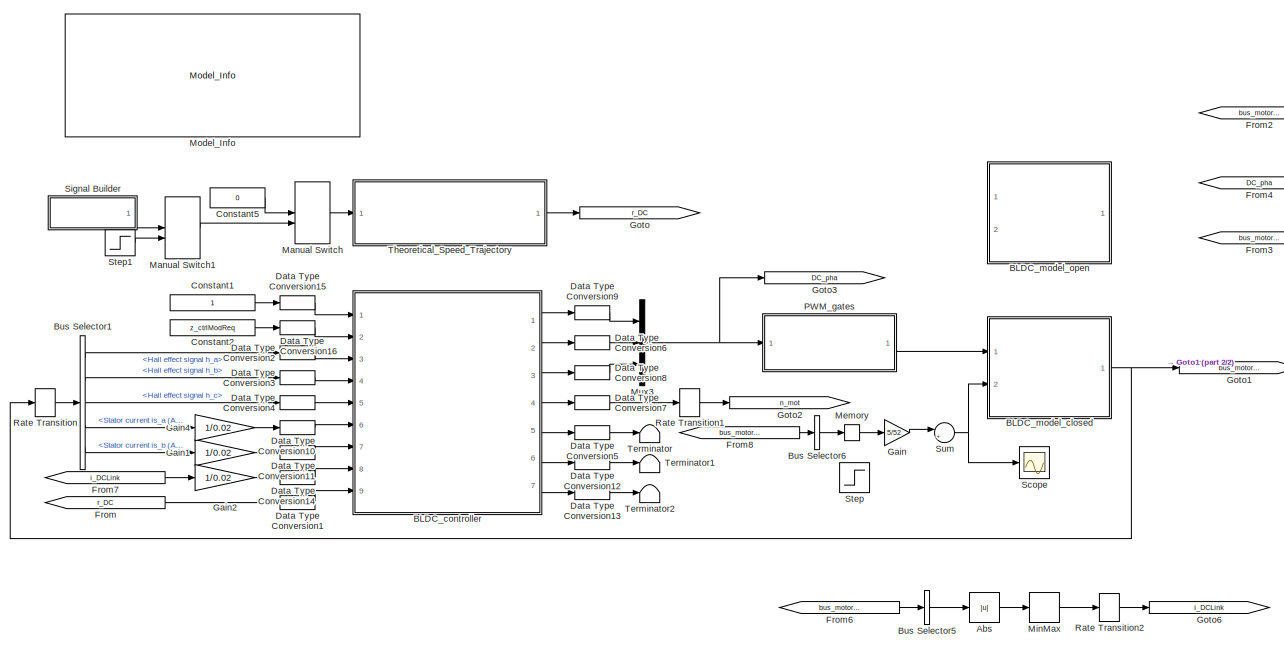
[diagram: root canvas - part 1/2, most of the canvas]
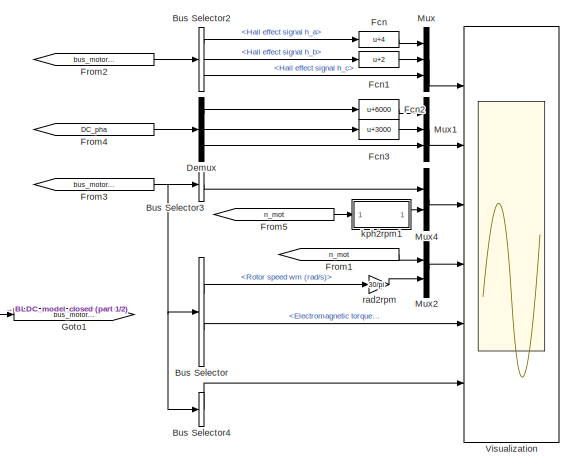
[diagram: root canvas - part 2/2, middle right region]
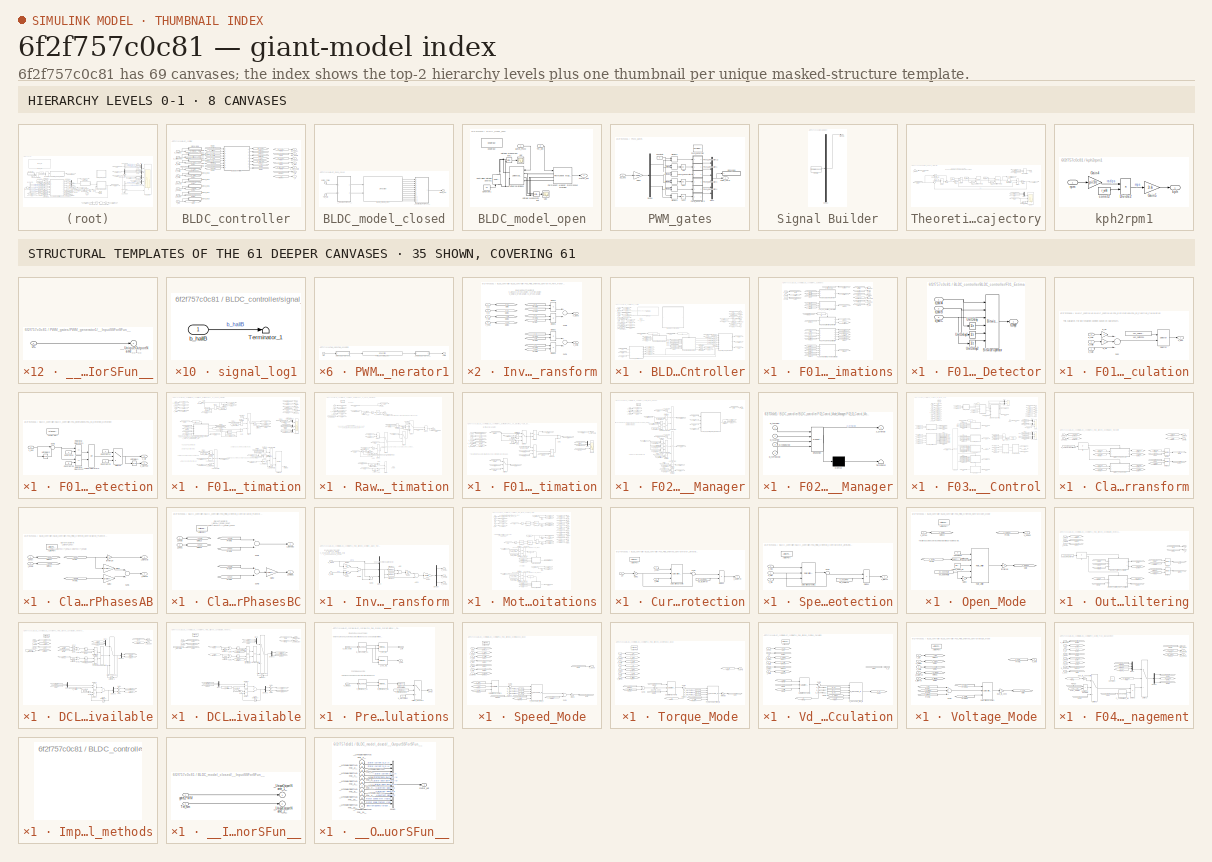
[diagram: thumbnail index - top-2 hierarchy levels (8 canvases) + 35 structural-template representatives of the remaining 61 canvases]
MODEL slx_6f2f757c0c81
KIND model
CONFIG AbsTol = 1e-6
CONFIG EnableMultiTasking = on
CONFIG FixedStep = Ts
CONFIG InitFcn = init_model;
CONFIG MaxStep = 1e-6
CONFIG MinStep = auto
CONFIG PreLoadFcn = addpath(genpath('01_Libraries'));\naddpath(genpath('02_Figures'));
CONFIG RelTol = 1e-6
CONFIG SampleTimeConstraint = Unconstrained
CONFIG Solver = ode4
CONFIG SolverName = ode4
CONFIG StartTime = 0
CONFIG StopTime = 0.5
BLOCK [Abs] Abs
  SaturateOnIntegerOverflow = off
BLOCK [SubSystem] BLDC_controller
  Ports = [9, 7]
  RequestExecContextInheritance = off
  SystemSampleTime = Ts_ctrl
  TreatAsAtomicUnit = on
  Variant = off
BLOCK [SubSystem] BLDC_controller/BLDC_controller
  Ports = [9, 7]
  RequestExecContextInheritance = off
  SystemSampleTime = 1e-5
  Variant = off
BLOCK [Outport] BLDC_controller/BLDC_controller/DC_phaA
  IconDisplay = Port number
BLOCK [Outport] BLDC_controller/BLDC_controller/DC_phaB
  IconDisplay = Port number
  Port = 2
BLOCK [Outport] BLDC_controller/BLDC_controller/DC_phaC
  IconDisplay = Port number
  Port = 3
BLOCK [DataTypeConversion] BLDC_controller/BLDC_controller/Data Type Conversion1
  OutDataTypeStr = int16
  RndMeth = Floor
  SaturateOnIntegerOverflow = off
BLOCK [DataTypeConversion] BLDC_controller/BLDC_controller/Data Type Conversion10
  OutDataTypeStr = int16
  RndMeth = Floor
  SaturateOnIntegerOverflow = off
BLOCK [DataTypeConversion] BLDC_controller/BLDC_controller/Data Type Conversion11
  OutDataTypeStr = fixdt(1,16,4)
  RndMeth = Floor
BLOCK [DataTypeConversion] BLDC_controller/BLDC_controller/Data Type Conversion13
  OutDataTypeStr = fixdt(1,16,4)
  RndMeth = Floor
BLOCK [DataTypeConversion] BLDC_controller/BLDC_controller/Data Type Conversion14
  OutDataTypeStr = fixdt(1,16,4)
  RndMeth = Floor
BLOCK [DataTypeConversion] BLDC_controller/BLDC_controller/Data Type Conversion2
  OutDataTypeStr = int16
  RndMeth = Floor
  SaturateOnIntegerOverflow = off
BLOCK [DataTypeConversion] BLDC_controller/BLDC_controller/Data Type Conversion3
  OutDataTypeStr = int16
  RndMeth = Floor
  SaturateOnIntegerOverflow = off
BLOCK [DataTypeConversion] BLDC_controller/BLDC_controller/Data Type Conversion4
  OutDataTypeStr = int16
  RndMeth = Floor
  SaturateOnIntegerOverflow = off
BLOCK [DataTypeConversion] BLDC_controller/BLDC_controller/Data Type Conversion5
  OutDataTypeStr = int16
  RndMeth = Floor
  SaturateOnIntegerOverflow = off
BLOCK [DataTypeConversion] BLDC_controller/BLDC_controller/Data Type Conversion6
  OutDataTypeStr = int16
  RndMeth = Floor
  SaturateOnIntegerOverflow = off
BLOCK [DataTypeConversion] BLDC_controller/BLDC_controller/Data Type Conversion7
  OutDataTypeStr = int16
  RndMeth = Floor
  SaturateOnIntegerOverflow = off
BLOCK [DataTypeConversion] BLDC_controller/BLDC_controller/Data Type Conversion8
  OutDataTypeStr = int16
  RndMeth = Floor
  SaturateOnIntegerOverflow = off
BLOCK [DataTypeConversion] BLDC_controller/BLDC_controller/Data Type Conversion9
  OutDataTypeStr = fixdt(1,16,4)
  RndMeth = Floor
BLOCK [SubSystem] BLDC_controller/BLDC_controller/F01_Estimations
  Ports = [3, 6]
  RequestExecContextInheritance = off
  Variant = off
BLOCK [SubSystem] BLDC_controller/BLDC_controller/F01_Estimations/F01_01_Edge_Detector
  Ports = [3, 1]
  RequestExecContextInheritance = off
  Variant = off
BLOCK [Reference] BLDC_controller/BLDC_controller/F01_Estimations/F01_01_Edge_Detector/Bitwise Operator  REF=simulink/Logic and Bit
Operations/Bitwise
Operator
  Ports = [6, 1]
  SourceBlock = simulink/Logic and Bit\nOperations/Bitwise\nOperator
  SourceProductBaseCode = SL
  SourceProductName = Simulink
  SourceType = Bitwise Operator
BLOCK [UnitDelay] BLDC_controller/BLDC_controller/F01_Estimations/F01_01_Edge_Detector/UnitDelay
  InputProcessing = Elements as channels (sample based)
  SampleTime = -1
BLOCK [UnitDelay] BLDC_controller/BLDC_controller/F01_Estimations/F01_01_Edge_Detector/UnitDelay1
  InputProcessing = Elements as channels (sample based)
  SampleTime = -1
BLOCK [UnitDelay] BLDC_controller/BLDC_controller/F01_Estimations/F01_01_Edge_Detector/UnitDelay2
  InputProcessing = Elements as channels (sample based)
  SampleTime = -1
BLOCK [Outport] BLDC_controller/BLDC_controller/F01_Estimations/F01_01_Edge_Detector/b_edge 
  IconDisplay = Port number
  InitialOutput = 0
  OutputWhenDisabled = reset
BLOCK [Inport] BLDC_controller/BLDC_controller/F01_Estimations/F01_01_Edge_Detector/b_hallA
  IconDisplay = Port number
BLOCK [Inport] BLDC_controller/BLDC_controller/F01_Estimations/F01_01_Edge_Detector/b_hallB
  IconDisplay = Port number
  Port = 2
BLOCK [Inport] BLDC_controller/BLDC_controller/F01_Estimations/F01_01_Edge_Detector/b_hallC
  IconDisplay = Port number
  Port = 3
BLOCK [SubSystem] BLDC_controller/BLDC_controller/F01_Estimations/F01_02_Position_Calculation
  Ports = [3, 1]
  RequestExecContextInheritance = off
  Variant = off
BLOCK [Selector] BLDC_controller/BLDC_controller/F01_Estimations/F01_02_Position_Calculation/Selector
  IndexMode = Zero-based
  IndexOptions = Index vector (port)
  Indices = [1 3]
  InputPortWidth = length(vec_hallToPos)
  OutputSizes = 1
  Ports = [2, 1]
BLOCK [Sum] BLDC_controller/BLDC_controller/F01_Estimations/F01_02_Position_Calculation/Sum
  AccumDataTypeStr = Inherit: Same as first input
  InputSameDT = off
  Inputs = +++
  Ports = [3, 1]
  RndMeth = Simplest
  SaturateOnIntegerOverflow = off
BLOCK [Inport] BLDC_controller/BLDC_controller/F01_Estimations/F01_02_Position_Calculation/b_hallA
  IconDisplay = Port number
BLOCK [Inport] BLDC_controller/BLDC_controller/F01_Estimations/F01_02_Position_Calculation/b_hallB
  IconDisplay = Port number
  Port = 2
BLOCK [Inport] BLDC_controller/BLDC_controller/F01_Estimations/F01_02_Position_Calculation/b_hallC
  IconDisplay = Port number
  Port = 3
BLOCK [Gain] BLDC_controller/BLDC_controller/F01_Estimations/F01_02_Position_Calculation/g_Ha
  Gain = 4
  OutDataTypeStr = Inherit: Inherit via back propagation
  RndMeth = Zero
  SaturateOnIntegerOverflow = off
BLOCK [Gain] BLDC_controller/BLDC_controller/F01_Estimations/F01_02_Position_Calculation/g_Hb
  Gain = 2
  OutDataTypeStr = Inherit: Inherit via back propagation
  RndMeth = Simplest
  SaturateOnIntegerOverflow = off
BLOCK [Constant] BLDC_controller/BLDC_controller/F01_Estimations/F01_02_Position_Calculation/vec_hallToPos
  OutDataTypeStr = int8
  Value = vec_hallToPos
BLOCK [Outport] BLDC_controller/BLDC_controller/F01_Estimations/F01_02_Position_Calculation/z_pos 
  IconDisplay = Port number
  InitialOutput = 0
  OutputWhenDisabled = reset
BLOCK [SubSystem] BLDC_controller/BLDC_controller/F01_Estimations/F01_03_Direction_Detection
  Ports = [1, 2, 0, 0, 0, 0, 0, 1]
  RequestExecContextInheritance = off
  Variant = off
BLOCK [ActionPort] BLDC_controller/BLDC_controller/F01_Estimations/F01_03_Direction_Detection/Action Port
  ActionType = then
BLOCK [Constant] BLDC_controller/BLDC_controller/F01_Estimations/F01_03_Direction_Detection/Constant20
  OutDataTypeStr = Inherit: Inherit via back propagation
  Value = -5
BLOCK [Constant] BLDC_controller/BLDC_controller/F01_Estimations/F01_03_Direction_Detection/Constant23
  OutDataTypeStr = int8
  Value = -1
BLOCK [Constant] BLDC_controller/BLDC_controller/F01_Estimations/F01_03_Direction_Detection/Constant24
  OutDataTypeStr = int8
BLOCK [Constant] BLDC_controller/BLDC_controller/F01_Estimations/F01_03_Direction_Detection/Constant8
  OutDataTypeStr = Inherit: Inherit via back propagation
BLOCK [Logic] BLDC_controller/BLDC_controller/F01_Estimations/F01_03_Direction_Detection/Logical Operator3
  AllPortsSameDT = off
  Operator = OR
  OutDataTypeStr = boolean
  Ports = [2, 1]
BLOCK [RelationalOperator] BLDC_controller/BLDC_controller/F01_Estimations/F01_03_Direction_Detection/Relational Operator1
  InputSameDT = off
  Operator = ==
  OutDataTypeStr = boolean
  Ports = [2, 1]
  RndMeth = Simplest
BLOCK [RelationalOperator] BLDC_controller/BLDC_controller/F01_Estimations/F01_03_Direction_Detection/Relational Operator6
  InputSameDT = off
  Operator = ==
  OutDataTypeStr = boolean
  Ports = [2, 1]
  RndMeth = Simplest
BLOCK [Sum] BLDC_controller/BLDC_controller/F01_Estimations/F01_03_Direction_Detection/Sum2
  AccumDataTypeStr = Inherit: Same as first input
  IconShape = round
  Inputs = |+-
  Ports = [2, 1]
  RndMeth = Zero
  SaturateOnIntegerOverflow = off
BLOCK [Switch] BLDC_controller/BLDC_controller/F01_Estimations/F01_03_Direction_Detection/Switch2
  Criteria = u2 ~= 0
  InputSameDT = off
  OutDataTypeStr = Inherit: Inherit via back propagation
  RndMeth = Simplest
  SaturateOnIntegerOverflow = off
BLOCK [UnitDelay] BLDC_controller/BLDC_controller/F01_Estimations/F01_03_Direction_Detection/UnitDelay1
  InputProcessing = Elements as channels (sample based)
  SampleTime = -1
BLOCK [UnitDelay] BLDC_controller/BLDC_controller/F01_Estimations/F01_03_Direction_Detection/UnitDelay2
  InputProcessing = Elements as channels (sample based)
  SampleTime = -1
BLOCK [Outport] BLDC_controller/BLDC_controller/F01_Estimations/F01_03_Direction_Detection/z_dir
  IconDisplay = Port number
BLOCK [Outport] BLDC_controller/BLDC_controller/F01_Estimations/F01_03_Direction_Detection/z_dirPrev
  IconDisplay = Port number
  Port = 2
BLOCK [Inport] BLDC_controller/BLDC_controller/F01_Estimations/F01_03_Direction_Detection/z_pos
  IconDisplay = Port number
BLOCK [SubSystem] BLDC_controller/BLDC_controller/F01_Estimations/F01_04_Speed_Estimation
  Ports = [4, 5]
  RequestExecContextInheritance = off
  Variant = off
BLOCK [Abs] BLDC_controller/BLDC_controller/F01_Estimations/F01_04_Speed_Estimation/Abs5
  OutDataTypeStr = Inherit: Inherit via back propagation
  RndMeth = Zero
  SaturateOnIntegerOverflow = off
BLOCK [Constant] BLDC_controller/BLDC_controller/F01_Estimations/F01_04_Speed_Estimation/CTRL_COMM
  OutDataTypeStr = Inherit: Inherit via back propagation
  Value = CTRL_COM
BLOCK [Constant] BLDC_controller/BLDC_controller/F01_Estimations/F01_04_Speed_Estimation/CTRL_COMM1
  Commented = on
  OutDataTypeStr = Inherit: Inherit via back propagation
  Value = CTRL_COM
BLOCK [Constant] BLDC_controller/BLDC_controller/F01_Estimations/F01_04_Speed_Estimation/Constant4
  OutDataTypeStr = Inherit: Inherit via back propagation
  Value = 0
BLOCK [Constant] BLDC_controller/BLDC_controller/F01_Estimations/F01_04_Speed_Estimation/Constant6
  OutDataTypeStr = int16
BLOCK [DataTypeConversion] BLDC_controller/BLDC_controller/F01_Estimations/F01_04_Speed_Estimation/Data Type Conversion2
  OutDataTypeStr = boolean
  RndMeth = Floor
  SaturateOnIntegerOverflow = off
BLOCK [From] BLDC_controller/BLDC_controller/F01_Estimations/F01_04_Speed_Estimation/From
  GotoTag = z_counterRaw
BLOCK [From] BLDC_controller/BLDC_controller/F01_Estimations/F01_04_Speed_Estimation/From1
  GotoTag = n_mot
BLOCK [From] BLDC_controller/BLDC_controller/F01_Estimations/F01_04_Speed_Estimation/From10
  GotoTag = z_counter
BLOCK [From] BLDC_controller/BLDC_controller/F01_Estimations/F01_04_Speed_Estimation/From11
  Commented = on
  GotoTag = n_motAbs
BLOCK [From] BLDC_controller/BLDC_controller/F01_Estimations/F01_04_Speed_Estimation/From12
  GotoTag = z_counter
BLOCK [From] BLDC_controller/BLDC_controller/F01_Estimations/F01_04_Speed_Estimation/From14
  GotoTag = z_counterRaw
BLOCK [From] BLDC_controller/BLDC_controller/F01_Estimations/F01_04_Speed_Estimation/From15
  GotoTag = b_edge
BLOCK [From] BLDC_controller/BLDC_controller/F01_Estimations/F01_04_Speed_Estimation/From16
  GotoTag = b_edge
BLOCK [From] BLDC_controller/BLDC_controller/F01_Estimations/F01_04_Speed_Estimation/From17
  GotoTag = z_counterRawPrev
BLOCK [From] BLDC_controller/BLDC_controller/F01_Estimations/F01_04_Speed_Estimation/From18
  GotoTag = b_enaFOC
BLOCK [From] BLDC_controller/BLDC_controller/F01_Estimations/F01_04_Speed_Estimation/From19
  GotoTag = z_dir
BLOCK [From] BLDC_controller/BLDC_controller/F01_Estimations/F01_04_Speed_Estimation/From2
  GotoTag = n_motAbsPrev
BLOCK [From] BLDC_controller/BLDC_controller/F01_Estimations/F01_04_Speed_Estimation/From22
  Commented = on
  GotoTag = z_dir
BLOCK [From] BLDC_controller/BLDC_controller/F01_Estimations/F01_04_Speed_Estimation/From23
  Commented = on
  GotoTag = n_mot
BLOCK [From] BLDC_controller/BLDC_controller/F01_Estimations/F01_04_Speed_Estimation/From24
  GotoTag = b_enaFOC
BLOCK [From] BLDC_controller/BLDC_controller/F01_Estimations/F01_04_Speed_Estimation/From25
  Commented = on
  GotoTag = z_ctrlTypSel
BLOCK [From] BLDC_controller/BLDC_controller/F01_Estimations/F01_04_Speed_Estimation/From28
  GotoTag = z_dirPrev
BLOCK [From] BLDC_controller/BLDC_controller/F01_Estimations/F01_04_Speed_Estimation/From29
  GotoTag = n_motAbs
BLOCK [From] BLDC_controller/BLDC_controller/F01_Estimations/F01_04_Speed_Estimation/From3
  GotoTag = b_edge
BLOCK [From] BLDC_controller/BLDC_controller/F01_Estimations/F01_04_Speed_Estimation/From30
  GotoTag = z_ctrlTypSel
BLOCK [From] BLDC_controller/BLDC_controller/F01_Estimations/F01_04_Speed_Estimation/From31
  GotoTag = b_edge
BLOCK [From] BLDC_controller/BLDC_controller/F01_Estimations/F01_04_Speed_Estimation/From4
  GotoTag = n_mot
BLOCK [From] BLDC_controller/BLDC_controller/F01_Estimations/F01_04_Speed_Estimation/From5
  GotoTag = z_counterRaw
BLOCK [From] BLDC_controller/BLDC_controller/F01_Estimations/F01_04_Speed_Estimation/From6
  GotoTag = n_motAbs
BLOCK [From] BLDC_controller/BLDC_controller/F01_Estimations/F01_04_Speed_Estimation/From7
  GotoTag = n_motRaw
BLOCK [From] BLDC_controller/BLDC_controller/F01_Estimations/F01_04_Speed_Estimation/From8
  GotoTag = dz_trnsDet
BLOCK [Goto] BLDC_controller/BLDC_controller/F01_Estimations/F01_04_Speed_Estimation/Goto
  GotoTag = b_edge
BLOCK [Goto] BLDC_controller/BLDC_controller/F01_Estimations/F01_04_Speed_Estimation/Goto1
  GotoTag = z_dir
BLOCK [Goto] BLDC_controller/BLDC_controller/F01_Estimations/F01_04_Speed_Estimation/Goto10
  GotoTag = z_counter
BLOCK [Goto] BLDC_controller/BLDC_controller/F01_Estimations/F01_04_Speed_Estimation/Goto11
  GotoTag = n_motRaw
BLOCK [Goto] BLDC_controller/BLDC_controller/F01_Estimations/F01_04_Speed_Estimation/Goto12
  GotoTag = n_motAbs
BLOCK [Goto] BLDC_controller/BLDC_controller/F01_Estimations/F01_04_Speed_Estimation/Goto17
  GotoTag = b_enaFOC
BLOCK [Goto] BLDC_controller/BLDC_controller/F01_Estimations/F01_04_Speed_Estimation/Goto2
  GotoTag = z_dirPrev
BLOCK [Goto] BLDC_controller/BLDC_controller/F01_Estimations/F01_04_Speed_Estimation/Goto22
  GotoTag = z_counterRawPrev
BLOCK [Goto] BLDC_controller/BLDC_controller/F01_Estimations/F01_04_Speed_Estimation/Goto3
  GotoTag = n_motAbsPrev
BLOCK [Goto] BLDC_controller/BLDC_controller/F01_Estimations/F01_04_Speed_Estimation/Goto4
  GotoTag = z_ctrlTypSel
BLOCK [Goto] BLDC_controller/BLDC_controller/F01_Estimations/F01_04_Speed_Estimation/Goto5
  GotoTag = dz_trnsDet
BLOCK [Goto] BLDC_controller/BLDC_controller/F01_Estimations/F01_04_Speed_Estimation/Goto7
  GotoTag = n_mot
BLOCK [Goto] BLDC_controller/BLDC_controller/F01_Estimations/F01_04_Speed_Estimation/Goto8
  GotoTag = z_counterRaw
BLOCK [If] BLDC_controller/BLDC_controller/F01_Estimations/F01_04_Speed_Estimation/If2
  IfExpression = u1 ~= 0
  Ports = [1, 1]
  ShowElse = off
BLOCK [Logic] BLDC_controller/BLDC_controller/F01_Estimations/F01_04_Speed_Estimation/Logical Operator1
  AllPortsSameDT = off
  Operator = NOT
  OutDataTypeStr = boolean
  Ports = [1, 1]
BLOCK [Logic] BLDC_controller/BLDC_controller/F01_Estimations/F01_04_Speed_Estimation/Logical Operator2
  AllPortsSameDT = off
  Inputs = 3
  OutDataTypeStr = boolean
  Ports = [3, 1]
BLOCK [Logic] BLDC_controller/BLDC_controller/F01_Estimations/F01_04_Speed_Estimation/Logical Operator3
  AllPortsSameDT = off
  Commented = on
  Operator = NOT
  OutDataTypeStr = boolean
  Ports = [1, 1]
BLOCK [Logic] BLDC_controller/BLDC_controller/F01_Estimations/F01_04_Speed_Estimation/Logical Operator5
  AllPortsSameDT = off
  Commented = on
  Inputs = 3
  OutDataTypeStr = boolean
  Ports = [3, 1]
BLOCK [MinMax] BLDC_controller/BLDC_controller/F01_Estimations/F01_04_Speed_Estimation/MinMax
  InputSameDT = off
  Inputs = 2
  Ports = [2, 1]
  SaturateOnIntegerOverflow = off
BLOCK [Mux] BLDC_controller/BLDC_controller/F01_Estimations/F01_04_Speed_Estimation/Mux1
  DisplayOption = bar
  Inputs = 2
  Ports = [2, 1]
BLOCK [Mux] BLDC_controller/BLDC_controller/F01_Estimations/F01_04_Speed_Estimation/Mux2
  DisplayOption = bar
  Inputs = 2
  Ports = [2, 1]
BLOCK [Mux] BLDC_controller/BLDC_controller/F01_Estimations/F01_04_Speed_Estimation/Mux3
  DisplayOption = bar
  Inputs = 2
  Ports = [2, 1]
BLOCK [SubSystem] BLDC_controller/BLDC_controller/F01_Estimations/F01_04_Speed_Estimation/Raw_Motor_Speed_Estimation
  Ports = [4, 4, 0, 0, 0, 0, 0, 1]
  RequestExecContextInheritance = off
  Variant = off
BLOCK [Abs] BLDC_controller/BLDC_controller/F01_Estimations/F01_04_Speed_Estimation/Raw_Motor_Speed_Estimation/Abs2
  OutDataTypeStr = Inherit: Inherit via back propagation
  RndMeth = Zero
  SaturateOnIntegerOverflow = off
BLOCK [ActionPort] BLDC_controller/BLDC_controller/F01_Estimations/F01_04_Speed_Estimation/Raw_Motor_Speed_Estimation/Action Port
  ActionType = then
BLOCK [Constant] BLDC_controller/BLDC_controller/F01_Estimations/F01_04_Speed_Estimation/Raw_Motor_Speed_Estimation/Constant4
  OutDataTypeStr = Inherit: Inherit via back propagation
  Value = 0
BLOCK [Product] BLDC_controller/BLDC_controller/F01_Estimations/F01_04_Speed_Estimation/Raw_Motor_Speed_Estimation/Divide11
  InputSameDT = off
  Inputs = **
  Ports = [2, 1]
  RndMeth = Simplest
  SaturateOnIntegerOverflow = off
BLOCK [Product] BLDC_controller/BLDC_controller/F01_Estimations/F01_04_Speed_Estimation/Raw_Motor_Speed_Estimation/Divide13
  InputSameDT = off
  Inputs = */
  OutDataTypeStr = fixdt(1,16,4)
  Ports = [2, 1]
  RndMeth = Simplest
  SaturateOnIntegerOverflow = off
BLOCK [Product] BLDC_controller/BLDC_controller/F01_Estimations/F01_04_Speed_Estimation/Raw_Motor_Speed_Estimation/Divide14
  InputSameDT = off
  Inputs = */
  OutDataTypeStr = fixdt(1,16,4)
  Ports = [2, 1]
  RndMeth = Simplest
  SaturateOnIntegerOverflow = off
BLOCK [Product] BLDC_controller/BLDC_controller/F01_Estimations/F01_04_Speed_Estimation/Raw_Motor_Speed_Estimation/Divide8
  InputSameDT = off
  Inputs = */
  OutDataTypeStr = fixdt(1,16,6)
  Ports = [2, 1]
  RndMeth = Simplest
BLOCK [From] BLDC_controller/BLDC_controller/F01_Estimations/F01_04_Speed_Estimation/Raw_Motor_Speed_Estimation/From
  GotoTag = cf_speedCoef
BLOCK [From] BLDC_controller/BLDC_controller/F01_Estimations/F01_04_Speed_Estimation/Raw_Motor_Speed_Estimation/From1
  GotoTag = z_counterRawPrev
BLOCK [From] BLDC_controller/BLDC_controller/F01_Estimations/F01_04_Speed_Estimation/Raw_Motor_Speed_Estimation/From12
  GotoTag = z_counter
BLOCK [From] BLDC_controller/BLDC_controller/F01_Estimations/F01_04_Speed_Estimation/Raw_Motor_Speed_Estimation/From13
  GotoTag = z_counter
BLOCK [From] BLDC_controller/BLDC_controller/F01_Estimations/F01_04_Speed_Estimation/Raw_Motor_Speed_Estimation/From2
  GotoTag = n_motRaw
BLOCK [From] BLDC_controller/BLDC_controller/F01_Estimations/F01_04_Speed_Estimation/Raw_Motor_Speed_Estimation/From21
  GotoTag = z_dirPrev
BLOCK [From] BLDC_controller/BLDC_controller/F01_Estimations/F01_04_Speed_Estimation/Raw_Motor_Speed_Estimation/From3
  GotoTag = z_counter
BLOCK [From] BLDC_controller/BLDC_controller/F01_Estimations/F01_04_Speed_Estimation/Raw_Motor_Speed_Estimation/From4
  GotoTag = z_dir
BLOCK [From] BLDC_controller/BLDC_controller/F01_Estimations/F01_04_Speed_Estimation/Raw_Motor_Speed_Estimation/From5
  GotoTag = cf_speedCoef
BLOCK [From] BLDC_controller/BLDC_controller/F01_Estimations/F01_04_Speed_Estimation/Raw_Motor_Speed_Estimation/From6
  GotoTag = z_dir
BLOCK [From] BLDC_controller/BLDC_controller/F01_Estimations/F01_04_Speed_Estimation/Raw_Motor_Speed_Estimation/From7
  GotoTag = n_motAbsPrev
BLOCK [From] BLDC_controller/BLDC_controller/F01_Estimations/F01_04_Speed_Estimation/Raw_Motor_Speed_Estimation/From8
  GotoTag = dz_trnsDet
BLOCK [From] BLDC_controller/BLDC_controller/F01_Estimations/F01_04_Speed_Estimation/Raw_Motor_Speed_Estimation/From9
  GotoTag = z_counter
BLOCK [Goto] BLDC_controller/BLDC_controller/F01_Estimations/F01_04_Speed_Estimation/Raw_Motor_Speed_Estimation/Goto
  GotoTag = z_dir
BLOCK [Goto] BLDC_controller/BLDC_controller/F01_Estimations/F01_04_Speed_Estimation/Raw_Motor_Speed_Estimation/Goto1
  GotoTag = z_counter
BLOCK [Goto] BLDC_controller/BLDC_controller/F01_Estimations/F01_04_Speed_Estimation/Raw_Motor_Speed_Estimation/Goto2
  GotoTag = n_motRaw
BLOCK [Goto] BLDC_controller/BLDC_controller/F01_Estimations/F01_04_Speed_Estimation/Raw_Motor_Speed_Estimation/Goto3
  GotoTag = z_dirPrev
BLOCK [Goto] BLDC_controller/BLDC_controller/F01_Estimations/F01_04_Speed_Estimation/Raw_Motor_Speed_Estimation/Goto4
  GotoTag = n_motAbsPrev
BLOCK [Goto] BLDC_controller/BLDC_controller/F01_Estimations/F01_04_Speed_Estimation/Raw_Motor_Speed_Estimation/Goto5
  GotoTag = z_counterRawPrev
BLOCK [Goto] BLDC_controller/BLDC_controller/F01_Estimations/F01_04_Speed_Estimation/Raw_Motor_Speed_Estimation/Goto6
  GotoTag = dz_trnsDet
BLOCK [Goto] BLDC_controller/BLDC_controller/F01_Estimations/F01_04_Speed_Estimation/Raw_Motor_Speed_Estimation/Goto7
  GotoTag = cf_speedCoef
BLOCK [Logic] BLDC_controller/BLDC_controller/F01_Estimations/F01_04_Speed_Estimation/Raw_Motor_Speed_Estimation/Logical Operator1
  AllPortsSameDT = off
  OutDataTypeStr = boolean
  Ports = [2, 1]
BLOCK [RelationalOperator] BLDC_controller/BLDC_controller/F01_Estimations/F01_04_Speed_Estimation/Raw_Motor_Speed_Estimation/Relational Operator4
  InputSameDT = off
  Operator = ~=
  OutDataTypeStr = boolean
  Ports = [2, 1]
  RndMeth = Simplest
BLOCK [Sum] BLDC_controller/BLDC_controller/F01_Estimations/F01_04_Speed_Estimation/Raw_Motor_Speed_Estimation/Sum13
  Inputs = ++++
  Ports = [4, 1]
  RndMeth = Simplest
  SaturateOnIntegerOverflow = off
BLOCK [Sum] BLDC_controller/BLDC_controller/F01_Estimations/F01_04_Speed_Estimation/Raw_Motor_Speed_Estimation/Sum2
  InputSameDT = off
  Inputs = +-
  Ports = [2, 1]
  RndMeth = Simplest
  SaturateOnIntegerOverflow = off
BLOCK [Sum] BLDC_controller/BLDC_controller/F01_Estimations/F01_04_Speed_Estimation/Raw_Motor_Speed_Estimation/Sum4
  InputSameDT = off
  Ports = [2, 1]
  RndMeth = Simplest
  SaturateOnIntegerOverflow = off
BLOCK [Sum] BLDC_controller/BLDC_controller/F01_Estimations/F01_04_Speed_Estimation/Raw_Motor_Speed_Estimation/Sum7
  Inputs = +-
  Ports = [2, 1]
  RndMeth = Simplest
  SaturateOnIntegerOverflow = off
BLOCK [Switch] BLDC_controller/BLDC_controller/F01_Estimations/F01_04_Speed_Estimation/Raw_Motor_Speed_Estimation/Switch1
  AttributesFormatString = threshold=%<threshold>\nCriteria : %<Criteria>
  Criteria = u2 ~= 0
  Tag = struct('comment',struct('text','','placement',1),'logdata',struct('maxnumvals',inf,'plotchannels',[],'loggingmode',3,'channels',1),'output',struct('variable','','description','','name','$S_$B','width',1,'address','','max',NaN,'min',NaN,'class','default','type','CONTINUOUS','scaling','','lsb',1,'offset',0,'arb',0,'freeze',1,'unit','','autoscalingmode',1,'lowerheadroom',1,'upperheadroom',1,'headroom...<+413ch>  <repeated x3 — deduplicated; at blocks: Switch1, Switch2, Switch3>
BLOCK [Switch] BLDC_controller/BLDC_controller/F01_Estimations/F01_04_Speed_Estimation/Raw_Motor_Speed_Estimation/Switch2
  AttributesFormatString = threshold=%<threshold>\nCriteria : %<Criteria>
  Criteria = u2 ~= 0
BLOCK [Switch] BLDC_controller/BLDC_controller/F01_Estimations/F01_04_Speed_Estimation/Raw_Motor_Speed_Estimation/Switch3
  AttributesFormatString = threshold=%<threshold>\nCriteria : %<Criteria>
  Criteria = u2 ~= 0
BLOCK [UnitDelay] BLDC_controller/BLDC_controller/F01_Estimations/F01_04_Speed_Estimation/Raw_Motor_Speed_Estimation/UnitDelay1
  InputProcessing = Elements as channels (sample based)
  SampleTime = -1
BLOCK [UnitDelay] BLDC_controller/BLDC_controller/F01_Estimations/F01_04_Speed_Estimation/Raw_Motor_Speed_Estimation/UnitDelay11
  InputProcessing = Elements as channels (sample based)
  SampleTime = -1
BLOCK [UnitDelay] BLDC_controller/BLDC_controller/F01_Estimations/F01_04_Speed_Estimation/Raw_Motor_Speed_Estimation/UnitDelay16
  InputProcessing = Elements as channels (sample based)
  SampleTime = -1
BLOCK [UnitDelay] BLDC_controller/BLDC_controller/F01_Estimations/F01_04_Speed_Estimation/Raw_Motor_Speed_Estimation/UnitDelay17
  InputProcessing = Elements as channels (sample based)
  SampleTime = -1
BLOCK [UnitDelay] BLDC_controller/BLDC_controller/F01_Estimations/F01_04_Speed_Estimation/Raw_Motor_Speed_Estimation/UnitDelay2
  InputProcessing = Elements as channels (sample based)
  SampleTime = -1
BLOCK [UnitDelay] BLDC_controller/BLDC_controller/F01_Estimations/F01_04_Speed_Estimation/Raw_Motor_Speed_Estimation/UnitDelay7
  InputProcessing = Elements as channels (sample based)
  SampleTime = -1
BLOCK [UnitDelay] BLDC_controller/BLDC_controller/F01_Estimations/F01_04_Speed_Estimation/Raw_Motor_Speed_Estimation/UnitDelay8
  InputProcessing = Elements as channels (sample based)
  SampleTime = -1
BLOCK [UnitDelay] BLDC_controller/BLDC_controller/F01_Estimations/F01_04_Speed_Estimation/Raw_Motor_Speed_Estimation/UnitDelay9
  InputProcessing = Elements as channels (sample based)
  SampleTime = -1
BLOCK [Constant] BLDC_controller/BLDC_controller/F01_Estimations/F01_04_Speed_Estimation/Raw_Motor_Speed_Estimation/cf_speedCoef
  OutDataTypeStr = fixdt(0,16,0)
  Value = cf_speedCoef
BLOCK [Outport] BLDC_controller/BLDC_controller/F01_Estimations/F01_04_Speed_Estimation/Raw_Motor_Speed_Estimation/dn_mot
  IconDisplay = Port number
  Port = 3
BLOCK [Relay] BLDC_controller/BLDC_controller/F01_Estimations/F01_04_Speed_Estimation/Raw_Motor_Speed_Estimation/dz_cntTrnsDet
  InputProcessing = Elements as channels (sample based)
  OffSwitchValue = dz_cntTrnsDetLo
  OnSwitchValue = dz_cntTrnsDetHi
  OutDataTypeStr = boolean
BLOCK [Outport] BLDC_controller/BLDC_controller/F01_Estimations/F01_04_Speed_Estimation/Raw_Motor_Speed_Estimation/dz_trnsDet
  IconDisplay = Port number
  Port = 4
BLOCK [Gain] BLDC_controller/BLDC_controller/F01_Estimations/F01_04_Speed_Estimation/Raw_Motor_Speed_Estimation/g_Ha
  Gain = 4
  OutDataTypeStr = Inherit: Inherit via back propagation
  RndMeth = Zero
  SaturateOnIntegerOverflow = off
BLOCK [Inport] BLDC_controller/BLDC_controller/F01_Estimations/F01_04_Speed_Estimation/Raw_Motor_Speed_Estimation/n_motAbsPrev
  IconDisplay = Port number
  Port = 4
BLOCK [Outport] BLDC_controller/BLDC_controller/F01_Estimations/F01_04_Speed_Estimation/Raw_Motor_Speed_Estimation/n_motRaw
  IconDisplay = Port number
  Port = 2
BLOCK [Outport] BLDC_controller/BLDC_controller/F01_Estimations/F01_04_Speed_Estimation/Raw_Motor_Speed_Estimation/z_counter
  IconDisplay = Port number
  InitialOutput = z_maxCntRst
BLOCK [Inport] BLDC_controller/BLDC_controller/F01_Estimations/F01_04_Speed_Estimation/Raw_Motor_Speed_Estimation/z_counterRawPrev
  IconDisplay = Port number
  Port = 3
BLOCK [Inport] BLDC_controller/BLDC_controller/F01_Estimations/F01_04_Speed_Estimation/Raw_Motor_Speed_Estimation/z_dir
  IconDisplay = Port number
BLOCK [Inport] BLDC_controller/BLDC_controller/F01_Estimations/F01_04_Speed_Estimation/Raw_Motor_Speed_Estimation/z_dirPrev
  IconDisplay = Port number
  Port = 2
BLOCK [RelationalOperator] BLDC_controller/BLDC_controller/F01_Estimations/F01_04_Speed_Estimation/Relational Operator2
  InputSameDT = off
  Operator = >
  OutDataTypeStr = boolean
  Ports = [2, 1]
  RndMeth = Simplest
BLOCK [RelationalOperator] BLDC_controller/BLDC_controller/F01_Estimations/F01_04_Speed_Estimation/Relational Operator3
  InputSameDT = off
  Operator = ~=
  OutDataTypeStr = boolean
  Ports = [2, 1]
  RndMeth = Simplest
BLOCK [RelationalOperator] BLDC_controller/BLDC_controller/F01_Estimations/F01_04_Speed_Estimation/Relational Operator5
  Commented = on
  InputSameDT = off
  Operator = ==
  OutDataTypeStr = boolean
  Ports = [2, 1]
  RndMeth = Simplest
BLOCK [RelationalOperator] BLDC_controller/BLDC_controller/F01_Estimations/F01_04_Speed_Estimation/Relational Operator6
  Commented = on
  InputSameDT = off
  Operator = ~=
  OutDataTypeStr = boolean
  Ports = [2, 1]
  RndMeth = Simplest
BLOCK [Reference] BLDC_controller/BLDC_controller/F01_Estimations/F01_04_Speed_Estimation/S-R Flip-Flop  REF=simulink_extras/Flip Flops/S-R
Flip-Flop
  Commented = on
  Ports = [2, 2]
  SourceBlock = simulink_extras/Flip Flops/S-R\nFlip-Flop
  SourceProductBaseCode = SL
  SourceProductName = Simulink
  SourceType = SRFlipFlop
BLOCK [Scope] BLDC_controller/BLDC_controller/F01_Estimations/F01_04_Speed_Estimation/Scope2
  NumInputPorts = 3
  Ports = [3]
  ScopeSpecificationString = Simulink.scopes.TimeScopeBlockCfg('CurrentConfiguration', extmgr.ConfigurationSet(extmgr.Configuration('Core','General UI',true),extmgr.Configuration('Core','Source UI',true),extmgr.Configuration('Sources','WiredSimulink',true,'DataLoggingVariableName','ScopeData1'),extmgr.Configuration('Visuals','Time Domain',true,'SerializedDisplays',{struct('MinYLimReal','-0.125','MaxYLimReal','1.125','YLabelRe...<+3174ch>
BLOCK [Signum] BLDC_controller/BLDC_controller/F01_Estimations/F01_04_Speed_Estimation/Sign
  Commented = on
BLOCK [Sum] BLDC_controller/BLDC_controller/F01_Estimations/F01_04_Speed_Estimation/Sum1
  AccumDataTypeStr = Inherit: Same as first input
  IconShape = round
  Inputs = |++
  Ports = [2, 1]
  RndMeth = Simplest
  SaturateOnIntegerOverflow = off
BLOCK [Sum] BLDC_controller/BLDC_controller/F01_Estimations/F01_04_Speed_Estimation/Sum2
  InputSameDT = off
  Ports = [2, 1]
  RndMeth = Simplest
  SaturateOnIntegerOverflow = off
BLOCK [Sum] BLDC_controller/BLDC_controller/F01_Estimations/F01_04_Speed_Estimation/Sum3
  IconShape = round
  InputSameDT = off
  Inputs = |++
  Ports = [2, 1]
  RndMeth = Simplest
  SaturateOnIntegerOverflow = off
BLOCK [Switch] BLDC_controller/BLDC_controller/F01_Estimations/F01_04_Speed_Estimation/Switch2
  Criteria = u2 ~= 0
  InputSameDT = off
  OutDataTypeStr = Inherit: Inherit via back propagation
  RndMeth = Zero
  SaturateOnIntegerOverflow = off
BLOCK [Terminator] BLDC_controller/BLDC_controller/F01_Estimations/F01_04_Speed_Estimation/Terminator
  Commented = on
BLOCK [UnitDelay] BLDC_controller/BLDC_controller/F01_Estimations/F01_04_Speed_Estimation/UnitDelay1
  InitialCondition = z_maxCntRst
  InputProcessing = Elements as channels (sample based)
  SampleTime = -1
BLOCK [UnitDelay] BLDC_controller/BLDC_controller/F01_Estimations/F01_04_Speed_Estimation/UnitDelay2
  InputProcessing = Elements as channels (sample based)
  SampleTime = -1
BLOCK [Inport] BLDC_controller/BLDC_controller/F01_Estimations/F01_04_Speed_Estimation/b_edge
  IconDisplay = Port number
  Port = 2
BLOCK [Outport] BLDC_controller/BLDC_controller/F01_Estimations/F01_04_Speed_Estimation/b_enaFOC
  IconDisplay = Port number
  Port = 5
BLOCK [Relay] BLDC_controller/BLDC_controller/F01_Estimations/F01_04_Speed_Estimation/n_commDeacv
  Commented = on
  InputProcessing = Elements as channels (sample based)
  OffSwitchValue = n_commAcvLo
  OnSwitchValue = n_commDeacvHi
  OutDataTypeStr = boolean
BLOCK [Relay] BLDC_controller/BLDC_controller/F01_Estimations/F01_04_Speed_Estimation/n_commDeacv1
  InputProcessing = Elements as channels (sample based)
  OffSwitchValue = n_commAcvLo
  OnSwitchValue = n_commDeacvHi
  OutDataTypeStr = boolean
BLOCK [Outport] BLDC_controller/BLDC_controller/F01_Estimations/F01_04_Speed_Estimation/n_mot
  IconDisplay = Port number
BLOCK [Outport] BLDC_controller/BLDC_controller/F01_Estimations/F01_04_Speed_Estimation/n_motAbs
  IconDisplay = Port number
  Port = 2
BLOCK [Reference] BLDC_controller/BLDC_controller/F01_Estimations/F01_04_Speed_Estimation/rst_Delay  REF=BLDC_controller_Lib/rst_Delay
  Ports = [2, 1]
  SourceBlock = BLDC_controller_Lib/rst_Delay
BLOCK [Reference] BLDC_controller/BLDC_controller/F01_Estimations/F01_04_Speed_Estimation/rst_Delay1  REF=BLDC_controller_Lib/rst_Delay
  Ports = [2, 1]
  SourceBlock = BLDC_controller_Lib/rst_Delay
BLOCK [Outport] BLDC_controller/BLDC_controller/F01_Estimations/F01_04_Speed_Estimation/z_counter
  IconDisplay = Port number
  InitialOutput = 0
  OutputWhenDisabled = reset
  Port = 3
BLOCK [Outport] BLDC_controller/BLDC_controller/F01_Estimations/F01_04_Speed_Estimation/z_counterRaw
  IconDisplay = Port number
  InitialOutput = 0
  OutputWhenDisabled = reset
  Port = 4
BLOCK [Inport] BLDC_controller/BLDC_controller/F01_Estimations/F01_04_Speed_Estimation/z_ctrlTypSel
  IconDisplay = Port number
BLOCK [Inport] BLDC_controller/BLDC_controller/F01_Estimations/F01_04_Speed_Estimation/z_dir
  IconDisplay = Port number
  Port = 3
BLOCK [Inport] BLDC_controller/BLDC_controller/F01_Estimations/F01_04_Speed_Estimation/z_dirPrev
  IconDisplay = Port number
  Port = 4
BLOCK [Constant] BLDC_controller/BLDC_controller/F01_Estimations/F01_04_Speed_Estimation/z_maxCntRst
  OutDataTypeStr = Inherit: Inherit via back propagation
  Value = z_maxCntRst
BLOCK [Constant] BLDC_controller/BLDC_controller/F01_Estimations/F01_04_Speed_Estimation/z_maxCntRst2
  OutDataTypeStr = Inherit: Inherit via back propagation
  Value = z_maxCntRst
BLOCK [SubSystem] BLDC_controller/BLDC_controller/F01_Estimations/F01_05_Electrical_Angle_Estimation
  Ports = [5, 1]
  RequestExecContextInheritance = off
  Variant = off
BLOCK [Constant] BLDC_controller/BLDC_controller/F01_Estimations/F01_05_Electrical_Angle_Estimation/Constant16
  OutDataTypeStr = Inherit: Inherit via back propagation
BLOCK [Constant] BLDC_controller/BLDC_controller/F01_Estimations/F01_05_Electrical_Angle_Estimation/Constant2
  OutDataTypeStr = Inherit: Inherit via back propagation
BLOCK [Product] BLDC_controller/BLDC_controller/F01_Estimations/F01_05_Electrical_Angle_Estimation/Divide4
  InputSameDT = off
  Inputs = */*
  Ports = [3, 1]
  RndMeth = Simplest
BLOCK [Product] BLDC_controller/BLDC_controller/F01_Estimations/F01_05_Electrical_Angle_Estimation/Divide5
  InputSameDT = off
  Inputs = **
  Ports = [2, 1]
  RndMeth = Simplest
  SaturateOnIntegerOverflow = off
BLOCK [From] BLDC_controller/BLDC_controller/F01_Estimations/F01_05_Electrical_Angle_Estimation/From
  GotoTag = b_enaFOC
BLOCK [From] BLDC_controller/BLDC_controller/F01_Estimations/F01_05_Electrical_Angle_Estimation/From10
  GotoTag = b_enaFOC
BLOCK [From] BLDC_controller/BLDC_controller/F01_Estimations/F01_05_Electrical_Angle_Estimation/From2
  GotoTag = a_elecAngle
BLOCK [From] BLDC_controller/BLDC_controller/F01_Estimations/F01_05_Electrical_Angle_Estimation/From3
  GotoTag = a_elecAngleLowRes
BLOCK [From] BLDC_controller/BLDC_controller/F01_Estimations/F01_05_Electrical_Angle_Estimation/From4
  GotoTag = a_elecAngleRaw
BLOCK [From] BLDC_controller/BLDC_controller/F01_Estimations/F01_05_Electrical_Angle_Estimation/From5
  GotoTag = a_elecAngle
BLOCK [From] BLDC_controller/BLDC_controller/F01_Estimations/F01_05_Electrical_Angle_Estimation/From51
  GotoTag = z_pos
BLOCK [From] BLDC_controller/BLDC_controller/F01_Estimations/F01_05_Electrical_Angle_Estimation/From52
  GotoTag = z_counter
BLOCK [From] BLDC_controller/BLDC_controller/F01_Estimations/F01_05_Electrical_Angle_Estimation/From53
  GotoTag = z_counterRaw
BLOCK [From] BLDC_controller/BLDC_controller/F01_Estimations/F01_05_Electrical_Angle_Estimation/From54
  GotoTag = z_dir
BLOCK [From] BLDC_controller/BLDC_controller/F01_Estimations/F01_05_Electrical_Angle_Estimation/From59
  GotoTag = z_dir
BLOCK [From] BLDC_controller/BLDC_controller/F01_Estimations/F01_05_Electrical_Angle_Estimation/From8
  GotoTag = a_elecAngleLowRes
BLOCK [Goto] BLDC_controller/BLDC_controller/F01_Estimations/F01_05_Electrical_Angle_Estimation/Goto
  GotoTag = z_pos
BLOCK [Goto] BLDC_controller/BLDC_controller/F01_Estimations/F01_05_Electrical_Angle_Estimation/Goto1
  GotoTag = z_dir
BLOCK [Goto] BLDC_controller/BLDC_controller/F01_Estimations/F01_05_Electrical_Angle_Estimation/Goto2
  GotoTag = z_counter
BLOCK [Goto] BLDC_controller/BLDC_controller/F01_Estimations/F01_05_Electrical_Angle_Estimation/Goto3
  GotoTag = z_counterRaw
BLOCK [Goto] BLDC_controller/BLDC_controller/F01_Estimations/F01_05_Electrical_Angle_Estimation/Goto4
  GotoTag = a_elecAngleRaw
BLOCK [Goto] BLDC_controller/BLDC_controller/F01_Estimations/F01_05_Electrical_Angle_Estimation/Goto6
  GotoTag = b_enaFOC
BLOCK [Goto] BLDC_controller/BLDC_controller/F01_Estimations/F01_05_Electrical_Angle_Estimation/Goto7
  GotoTag = a_elecAngle
BLOCK [Goto] BLDC_controller/BLDC_controller/F01_Estimations/F01_05_Electrical_Angle_Estimation/Goto8
  GotoTag = a_elecAngleLowRes
BLOCK [Mux] BLDC_controller/BLDC_controller/F01_Estimations/F01_05_Electrical_Angle_Estimation/Mux
  DisplayOption = bar
  Inputs = 2
  Ports = [2, 1]
BLOCK [Product] BLDC_controller/BLDC_controller/F01_Estimations/F01_05_Electrical_Angle_Estimation/Product6
  InputSameDT = off
  OutDataTypeStr = Inherit: Inherit via back propagation
  Ports = [2, 1]
  RndMeth = Simplest
  SaturateOnIntegerOverflow = off
BLOCK [RelationalOperator] BLDC_controller/BLDC_controller/F01_Estimations/F01_05_Electrical_Angle_Estimation/Relational Operator7
  InputSameDT = off
  Operator = ==
  OutDataTypeStr = boolean
  Ports = [2, 1]
  RndMeth = Simplest
BLOCK [Scope] BLDC_controller/BLDC_controller/F01_Estimations/F01_05_Electrical_Angle_Estimation/Scope
  NumInputPorts = 2
  Ports = [2]
  ScopeSpecificationString = Simulink.scopes.TimeScopeBlockCfg('CurrentConfiguration', extmgr.ConfigurationSet(extmgr.Configuration('Core','General UI',true),extmgr.Configuration('Core','Source UI',true),extmgr.Configuration('Sources','WiredSimulink',true,'DataLoggingVariableName','ScopeData1'),extmgr.Configuration('Visuals','Time Domain',true,'SerializedDisplays',{struct('MinYLimReal','-47.91797','MaxYLimReal','410.01172','Y...<+2023ch>
BLOCK [Sum] BLDC_controller/BLDC_controller/F01_Estimations/F01_05_Electrical_Angle_Estimation/Sum1
  AccumDataTypeStr = Inherit: Same as first input
  InputSameDT = off
  Ports = [2, 1]
  RndMeth = Simplest
  SaturateOnIntegerOverflow = off
BLOCK [Sum] BLDC_controller/BLDC_controller/F01_Estimations/F01_05_Electrical_Angle_Estimation/Sum2
  AccumDataTypeStr = Inherit: Same as first input
  InputSameDT = off
  Ports = [2, 1]
  RndMeth = Simplest
  SaturateOnIntegerOverflow = off
BLOCK [Switch] BLDC_controller/BLDC_controller/F01_Estimations/F01_05_Electrical_Angle_Estimation/Switch1
  Criteria = u2 ~= 0
  InputSameDT = off
  OutDataTypeStr = Inherit: Inherit via back propagation
  RndMeth = Zero
  SaturateOnIntegerOverflow = off
BLOCK [Switch] BLDC_controller/BLDC_controller/F01_Estimations/F01_05_Electrical_Angle_Estimation/Switch3
  Criteria = u2 ~= 0
  InputSameDT = off
  OutDataTypeStr = Inherit: Inherit via back propagation
  RndMeth = Zero
  SaturateOnIntegerOverflow = off
BLOCK [Outport] BLDC_controller/BLDC_controller/F01_Estimations/F01_05_Electrical_Angle_Estimation/a_elecAngle
  IconDisplay = Port number
  InitialOutput = 0
  OutputWhenDisabled = reset
BLOCK [Constant] BLDC_controller/BLDC_controller/F01_Estimations/F01_05_Electrical_Angle_Estimation/a_elecAngle1
  OutDataTypeStr = fixdt(1,16,6)
  Value = a_elecAngle
BLOCK [Inport] BLDC_controller/BLDC_controller/F01_Estimations/F01_05_Electrical_Angle_Estimation/b_enaFOC
  IconDisplay = Port number
  Port = 5
BLOCK [Inport] BLDC_controller/BLDC_controller/F01_Estimations/F01_05_Electrical_Angle_Estimation/z_counter
  IconDisplay = Port number
  Port = 3
BLOCK [Inport] BLDC_controller/BLDC_controller/F01_Estimations/F01_05_Electrical_Angle_Estimation/z_counterRaw
  IconDisplay = Port number
  Port = 4
BLOCK [Inport] BLDC_controller/BLDC_controller/F01_Estimations/F01_05_Electrical_Angle_Estimation/z_dir
  IconDisplay = Port number
  Port = 2
BLOCK [Inport] BLDC_controller/BLDC_controller/F01_Estimations/F01_05_Electrical_Angle_Estimation/z_pos
  IconDisplay = Port number
BLOCK [From] BLDC_controller/BLDC_controller/F01_Estimations/From
  GotoTag = z_ctrlTypSel
BLOCK [From] BLDC_controller/BLDC_controller/F01_Estimations/From1
  GotoTag = b_edge
BLOCK [From] BLDC_controller/BLDC_controller/F01_Estimations/From10
  GotoTag = z_pos
BLOCK [From] BLDC_controller/BLDC_controller/F01_Estimations/From12
  GotoTag = a_elecAngle
BLOCK [From] BLDC_controller/BLDC_controller/F01_Estimations/From13
  GotoTag = z_dir
BLOCK [From] BLDC_controller/BLDC_controller/F01_Estimations/From14
  GotoTag = n_motAbs
BLOCK [From] BLDC_controller/BLDC_controller/F01_Estimations/From15
  GotoTag = z_dirPrev
BLOCK [From] BLDC_controller/BLDC_controller/F01_Estimations/From17
  GotoTag = z_pos
BLOCK [From] BLDC_controller/BLDC_controller/F01_Estimations/From18
  GotoTag = b_enaFOC
BLOCK [From] BLDC_controller/BLDC_controller/F01_Estimations/From2
  GotoTag = b_hallA
BLOCK [From] BLDC_controller/BLDC_controller/F01_Estimations/From20
  GotoTag = z_dir
BLOCK [From] BLDC_controller/BLDC_controller/F01_Estimations/From21
  GotoTag = z_counter
BLOCK [From] BLDC_controller/BLDC_controller/F01_Estimations/From22
  GotoTag = z_counterRaw
BLOCK [From] BLDC_controller/BLDC_controller/F01_Estimations/From23
  GotoTag = b_enaFOC
BLOCK [From] BLDC_controller/BLDC_controller/F01_Estimations/From3
  GotoTag = b_hallB
BLOCK [From] BLDC_controller/BLDC_controller/F01_Estimations/From36
  GotoTag = z_pos
BLOCK [From] BLDC_controller/BLDC_controller/F01_Estimations/From38
  GotoTag = b_edge
BLOCK [From] BLDC_controller/BLDC_controller/F01_Estimations/From4
  GotoTag = b_hallC
BLOCK [From] BLDC_controller/BLDC_controller/F01_Estimations/From5
  GotoTag = b_hallA
BLOCK [From] BLDC_controller/BLDC_controller/F01_Estimations/From6
  GotoTag = b_hallB
BLOCK [From] BLDC_controller/BLDC_controller/F01_Estimations/From7
  GotoTag = b_hallC
BLOCK [From] BLDC_controller/BLDC_controller/F01_Estimations/From8
  GotoTag = n_mot
BLOCK [From] BLDC_controller/BLDC_controller/F01_Estimations/From9
  GotoTag = z_ctrlTypSel
BLOCK [Goto] BLDC_controller/BLDC_controller/F01_Estimations/Goto
  GotoTag = b_hallA
BLOCK [Goto] BLDC_controller/BLDC_controller/F01_Estimations/Goto1
  GotoTag = b_hallB
BLOCK [Goto] BLDC_controller/BLDC_controller/F01_Estimations/Goto10
  GotoTag = a_elecAngle
BLOCK [Goto] BLDC_controller/BLDC_controller/F01_Estimations/Goto11
  GotoTag = b_enaFOC
BLOCK [Goto] BLDC_controller/BLDC_controller/F01_Estimations/Goto12
  GotoTag = n_motAbs
BLOCK [Goto] BLDC_controller/BLDC_controller/F01_Estimations/Goto16
  GotoTag = z_pos
BLOCK [Goto] BLDC_controller/BLDC_controller/F01_Estimations/Goto2
  GotoTag = b_hallC
BLOCK [Goto] BLDC_controller/BLDC_controller/F01_Estimations/Goto21
  GotoTag = z_dir
BLOCK [Goto] BLDC_controller/BLDC_controller/F01_Estimations/Goto4
  GotoTag = n_mot
BLOCK [Goto] BLDC_controller/BLDC_controller/F01_Estimations/Goto5
  GotoTag = z_counter
BLOCK [Goto] BLDC_controller/BLDC_controller/F01_Estimations/Goto6
  GotoTag = z_counterRaw
BLOCK [Goto] BLDC_controller/BLDC_controller/F01_Estimations/Goto7
  GotoTag = b_edge
BLOCK [Goto] BLDC_controller/BLDC_controller/F01_Estimations/Goto8
  GotoTag = z_ctrlTypSel
BLOCK [Goto] BLDC_controller/BLDC_controller/F01_Estimations/Goto9
  GotoTag = z_dirPrev
BLOCK [If] BLDC_controller/BLDC_controller/F01_Estimations/If2
  IfExpression = u1 ~= 0
  Ports = [1, 1]
  ShowElse = off
BLOCK [Outport] BLDC_controller/BLDC_controller/F01_Estimations/a_elecAngle
  IconDisplay = Port number
  InitialOutput = 0
  OutputWhenDisabled = reset
  Port = 4
BLOCK [Outport] BLDC_controller/BLDC_controller/F01_Estimations/b_enaFOC
  IconDisplay = Port number
  Port = 5
BLOCK [Inport] BLDC_controller/BLDC_controller/F01_Estimations/b_hallA
  IconDisplay = Port number
BLOCK [Inport] BLDC_controller/BLDC_controller/F01_Estimations/b_hallB
  IconDisplay = Port number
  Port = 2
BLOCK [Inport] BLDC_controller/BLDC_controller/F01_Estimations/b_hallC
  IconDisplay = Port number
  Port = 3
BLOCK [Outport] BLDC_controller/BLDC_controller/F01_Estimations/n_mot 
  IconDisplay = Port number
  InitialOutput = 0
  OutputWhenDisabled = reset
  Port = 2
BLOCK [Outport] BLDC_controller/BLDC_controller/F01_Estimations/n_motAbs
  IconDisplay = Port number
  InitialOutput = 0
  OutputWhenDisabled = reset
  Port = 3
BLOCK [Outport] BLDC_controller/BLDC_controller/F01_Estimations/z_ctrlTypSel
  IconDisplay = Port number
  InitialOutput = 0
  OutputWhenDisabled = reset
BLOCK [Constant] BLDC_controller/BLDC_controller/F01_Estimations/z_ctrlTypSel1
  OutDataTypeStr = uint8
  Value = z_ctrlTypSel
BLOCK [Outport] BLDC_controller/BLDC_controller/F01_Estimations/z_pos
  IconDisplay = Port number
  InitialOutput = 0
  OutputWhenDisabled = reset
  Port = 6
BLOCK [SubSystem] BLDC_controller/BLDC_controller/F02_Control_Mode_Manager
  Ports = [3, 1, 0, 0, 0, 0, 0, 1]
  RequestExecContextInheritance = off
  Variant = off
BLOCK [ActionPort] BLDC_controller/BLDC_controller/F02_Control_Mode_Manager/Action Port
  ActionType = then
  InitializeStates = reset
BLOCK [SubSystem] BLDC_controller/BLDC_controller/F02_Control_Mode_Manager/F02_01_Control_Mode_Manager
  ErrorFcn = Stateflow.Translate.translate
  PermitHierarchicalResolution = ExplicitOnly
  Ports = [4, 1]
  RequestExecContextInheritance = off
  SFBlockType = Chart
  TreatAsAtomicUnit = on
  Variant = off
BLOCK [Demux] BLDC_controller/BLDC_controller/F02_Control_Mode_Manager/F02_01_Control_Mode_Manager/ Demux 
  Outputs = 1
  Ports = [1, 1]
BLOCK [S-Function] BLDC_controller/BLDC_controller/F02_Control_Mode_Manager/F02_01_Control_Mode_Manager/ SFunction 
  EnableBusSupport = on
  FunctionName = sf_sfun
  PortCounts = [4 2]
  Ports = [4, 2]
  SFcnIsStateOwnerBlock = off
  SFunctionDeploymentMode = off
  Tag = Stateflow S-Function BLDCmotorControl_FOC_R2017b_fixdt 3
BLOCK [Terminator] BLDC_controller/BLDC_controller/F02_Control_Mode_Manager/F02_01_Control_Mode_Manager/ Terminator 
BLOCK [Inport] BLDC_controller/BLDC_controller/F02_Control_Mode_Manager/F02_01_Control_Mode_Manager/b_toActive
  IconDisplay = Port number
  Port = 2
BLOCK [Inport] BLDC_controller/BLDC_controller/F02_Control_Mode_Manager/F02_01_Control_Mode_Manager/b_toOpen
  IconDisplay = Port number
BLOCK [Inport] BLDC_controller/BLDC_controller/F02_Control_Mode_Manager/F02_01_Control_Mode_Manager/b_toSpdMod
  IconDisplay = Port number
  Port = 3
BLOCK [Inport] BLDC_controller/BLDC_controller/F02_Control_Mode_Manager/F02_01_Control_Mode_Manager/b_toTrqMod
  IconDisplay = Port number
  Port = 4
BLOCK [Outport] BLDC_controller/BLDC_controller/F02_Control_Mode_Manager/F02_01_Control_Mode_Manager/z_ctrlMod
  IconDisplay = Port number
BLOCK [From] BLDC_controller/BLDC_controller/F02_Control_Mode_Manager/From
  GotoTag = b_toActive
BLOCK [From] BLDC_controller/BLDC_controller/F02_Control_Mode_Manager/From1
  GotoTag = b_toOpen
BLOCK [From] BLDC_controller/BLDC_controller/F02_Control_Mode_Manager/From10
  GotoTag = b_motEna
BLOCK [From] BLDC_controller/BLDC_controller/F02_Control_Mode_Manager/From12
  GotoTag = z_ctrlModPrev
BLOCK [From] BLDC_controller/BLDC_controller/F02_Control_Mode_Manager/From13
  GotoTag = z_ctrlModReq
BLOCK [From] BLDC_controller/BLDC_controller/F02_Control_Mode_Manager/From14
  GotoTag = n_motAbs
BLOCK [From] BLDC_controller/BLDC_controller/F02_Control_Mode_Manager/From2
  GotoTag = b_toSpdMod
BLOCK [From] BLDC_controller/BLDC_controller/F02_Control_Mode_Manager/From3
  GotoTag = z_ctrlModReq
BLOCK [From] BLDC_controller/BLDC_controller/F02_Control_Mode_Manager/From4
  GotoTag = z_ctrlModReq
BLOCK [From] BLDC_controller/BLDC_controller/F02_Control_Mode_Manager/From5
  GotoTag = z_ctrlMod
BLOCK [From] BLDC_controller/BLDC_controller/F02_Control_Mode_Manager/From7
  GotoTag = b_toTrqMod
BLOCK [From] BLDC_controller/BLDC_controller/F02_Control_Mode_Manager/From8
  GotoTag = b_toOpen
BLOCK [From] BLDC_controller/BLDC_controller/F02_Control_Mode_Manager/From9
  GotoTag = z_ctrlModReq
BLOCK [Goto] BLDC_controller/BLDC_controller/F02_Control_Mode_Manager/Goto
  GotoTag = z_ctrlMod
BLOCK [Goto] BLDC_controller/BLDC_controller/F02_Control_Mode_Manager/Goto16
  GotoTag = z_ctrlModPrev
BLOCK [Goto] BLDC_controller/BLDC_controller/F02_Control_Mode_Manager/Goto2
  GotoTag = b_toTrqMod
BLOCK [Goto] BLDC_controller/BLDC_controller/F02_Control_Mode_Manager/Goto22
  GotoTag = n_motAbs
BLOCK [Goto] BLDC_controller/BLDC_controller/F02_Control_Mode_Manager/Goto3
  GotoTag = z_ctrlModReq
BLOCK [Goto] BLDC_controller/BLDC_controller/F02_Control_Mode_Manager/Goto4
  GotoTag = b_toActive
BLOCK [Goto] BLDC_controller/BLDC_controller/F02_Control_Mode_Manager/Goto5
  GotoTag = b_toSpdMod
BLOCK [Goto] BLDC_controller/BLDC_controller/F02_Control_Mode_Manager/Goto6
  GotoTag = b_toOpen
BLOCK [Goto] BLDC_controller/BLDC_controller/F02_Control_Mode_Manager/Goto9
  GotoTag = b_motEna
BLOCK [Logic] BLDC_controller/BLDC_controller/F02_Control_Mode_Manager/Logical Operator1
  AllPortsSameDT = off
  OutDataTypeStr = boolean
  Ports = [2, 1]
BLOCK [Logic] BLDC_controller/BLDC_controller/F02_Control_Mode_Manager/Logical Operator3
  AllPortsSameDT = off
  Inputs = 3
  OutDataTypeStr = boolean
  Ports = [3, 1]
BLOCK [Logic] BLDC_controller/BLDC_controller/F02_Control_Mode_Manager/Logical Operator4
  AllPortsSameDT = off
  Inputs = 3
  Operator = OR
  OutDataTypeStr = boolean
  Ports = [3, 1]
BLOCK [Logic] BLDC_controller/BLDC_controller/F02_Control_Mode_Manager/Logical Operator6
  AllPortsSameDT = off
  Inputs = 3
  Operator = OR
  OutDataTypeStr = boolean
  Ports = [3, 1]
BLOCK [Logic] BLDC_controller/BLDC_controller/F02_Control_Mode_Manager/Logical Operator7
  AllPortsSameDT = off
  Operator = NOT
  OutDataTypeStr = boolean
  Ports = [1, 1]
BLOCK [Logic] BLDC_controller/BLDC_controller/F02_Control_Mode_Manager/Logical Operator9
  AllPortsSameDT = off
  Operator = NOT
  OutDataTypeStr = boolean
  Ports = [1, 1]
BLOCK [RelationalOperator] BLDC_controller/BLDC_controller/F02_Control_Mode_Manager/Relational Operator1
  InputSameDT = off
  Operator = ==
  OutDataTypeStr = boolean
  Ports = [2, 1]
  RndMeth = Simplest
BLOCK [RelationalOperator] BLDC_controller/BLDC_controller/F02_Control_Mode_Manager/Relational Operator10
  InputSameDT = off
  Operator = ==
  OutDataTypeStr = boolean
  Ports = [2, 1]
  RndMeth = Simplest
BLOCK [RelationalOperator] BLDC_controller/BLDC_controller/F02_Control_Mode_Manager/Relational Operator11
  InputSameDT = off
  Operator = ~=
  OutDataTypeStr = boolean
  Ports = [2, 1]
  RndMeth = Simplest
BLOCK [RelationalOperator] BLDC_controller/BLDC_controller/F02_Control_Mode_Manager/Relational Operator2
  InputSameDT = off
  Operator = ~=
  OutDataTypeStr = boolean
  Ports = [2, 1]
  RndMeth = Simplest
BLOCK [RelationalOperator] BLDC_controller/BLDC_controller/F02_Control_Mode_Manager/Relational Operator3
  InputSameDT = off
  Operator = ==
  OutDataTypeStr = boolean
  Ports = [2, 1]
  RndMeth = Simplest
BLOCK [RelationalOperator] BLDC_controller/BLDC_controller/F02_Control_Mode_Manager/Relational Operator4
  InputSameDT = off
  Operator = ==
  OutDataTypeStr = boolean
  Ports = [2, 1]
  RndMeth = Simplest
BLOCK [RelationalOperator] BLDC_controller/BLDC_controller/F02_Control_Mode_Manager/Relational Operator5
  InputSameDT = off
  Operator = ==
  OutDataTypeStr = boolean
  Ports = [2, 1]
  RndMeth = Simplest
BLOCK [RelationalOperator] BLDC_controller/BLDC_controller/F02_Control_Mode_Manager/Relational Operator6
  InputSameDT = off
  Operator = ==
  OutDataTypeStr = boolean
  Ports = [2, 1]
  RndMeth = Simplest
BLOCK [RelationalOperator] BLDC_controller/BLDC_controller/F02_Control_Mode_Manager/Relational Operator9
  InputSameDT = off
  Operator = <
  OutDataTypeStr = boolean
  Ports = [2, 1]
  RndMeth = Simplest
BLOCK [UnitDelay] BLDC_controller/BLDC_controller/F02_Control_Mode_Manager/UnitDelay1
  InputProcessing = Elements as channels (sample based)
  SampleTime = -1
BLOCK [Inport] BLDC_controller/BLDC_controller/F02_Control_Mode_Manager/b_motEna
  IconDisplay = Port number
BLOCK [Constant] BLDC_controller/BLDC_controller/F02_Control_Mode_Manager/constant
  OutDataTypeStr = Inherit: Inherit via back propagation
  Value = TRQ_MODE
BLOCK [Constant] BLDC_controller/BLDC_controller/F02_Control_Mode_Manager/constant1
  OutDataTypeStr = Inherit: Inherit via back propagation
  Value = SPD_MODE
BLOCK [Constant] BLDC_controller/BLDC_controller/F02_Control_Mode_Manager/constant2
  OutDataTypeStr = Inherit: Inherit via back propagation
  Value = OPEN_MODE
BLOCK [Constant] BLDC_controller/BLDC_controller/F02_Control_Mode_Manager/constant5
  OutDataTypeStr = Inherit: Inherit via back propagation
  Value = VLT_MODE
BLOCK [Constant] BLDC_controller/BLDC_controller/F02_Control_Mode_Manager/constant6
  OutDataTypeStr = Inherit: Inherit via back propagation
  Value = SPD_MODE
BLOCK [Constant] BLDC_controller/BLDC_controller/F02_Control_Mode_Manager/constant7
  OutDataTypeStr = Inherit: Inherit via back propagation
  Value = TRQ_MODE
BLOCK [Constant] BLDC_controller/BLDC_controller/F02_Control_Mode_Manager/constant8
  OutDataTypeStr = Inherit: Inherit via back propagation
  Value = OPEN_MODE
BLOCK [Inport] BLDC_controller/BLDC_controller/F02_Control_Mode_Manager/n_motAbs
  IconDisplay = Port number
  Port = 3
BLOCK [Constant] BLDC_controller/BLDC_controller/F02_Control_Mode_Manager/n_stdStillDet
  OutDataTypeStr = Inherit: Inherit via back propagation
  Value = n_stdStillDet
BLOCK [Outport] BLDC_controller/BLDC_controller/F02_Control_Mode_Manager/z_ctrlMod
  IconDisplay = Port number
  InitialOutput = 0
  OutputWhenDisabled = reset
BLOCK [Inport] BLDC_controller/BLDC_controller/F02_Control_Mode_Manager/z_ctrlModReq
  IconDisplay = Port number
  Port = 2
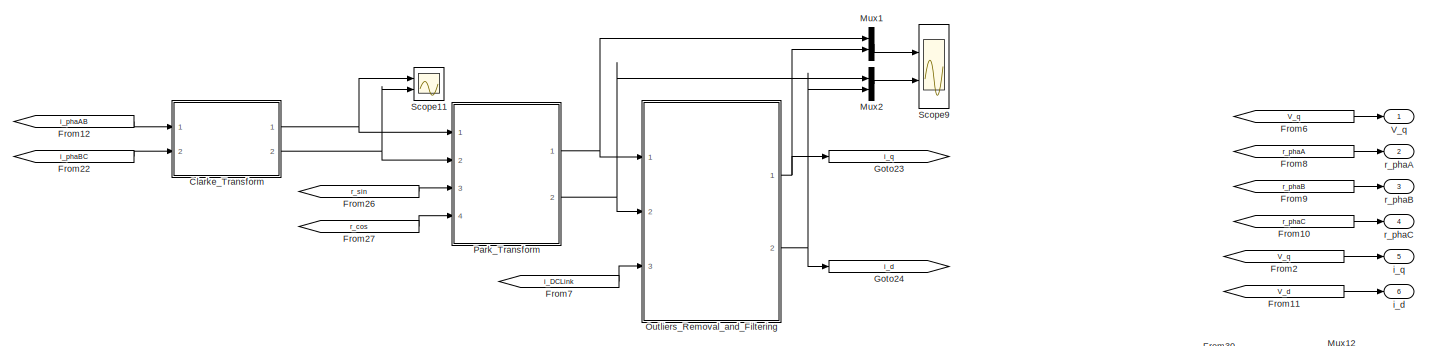
[diagram: BLDC_controller/BLDC_controller/F03_Field_Oriented_Control - part 1/4, top center region]
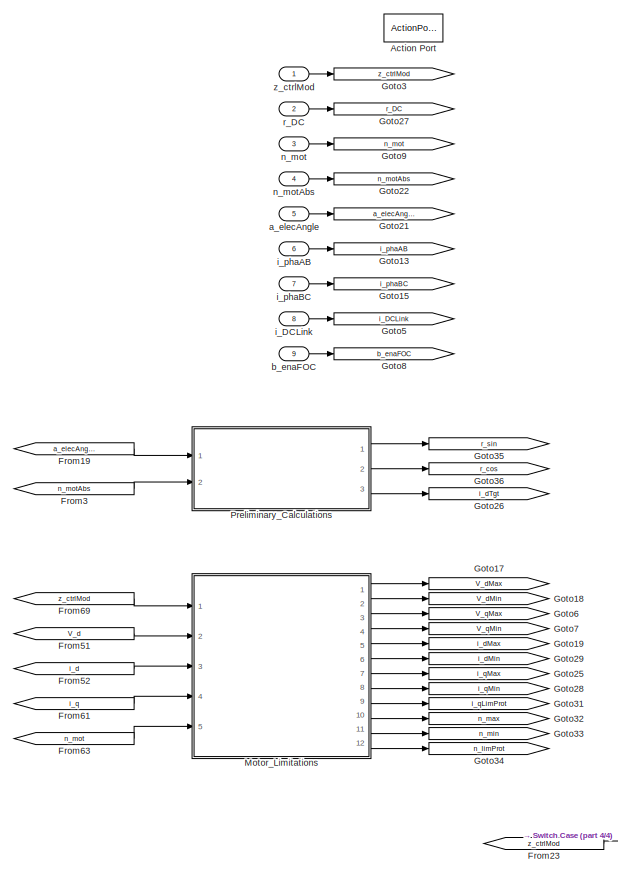
[diagram: BLDC_controller/BLDC_controller/F03_Field_Oriented_Control - part 2/4, middle left region]
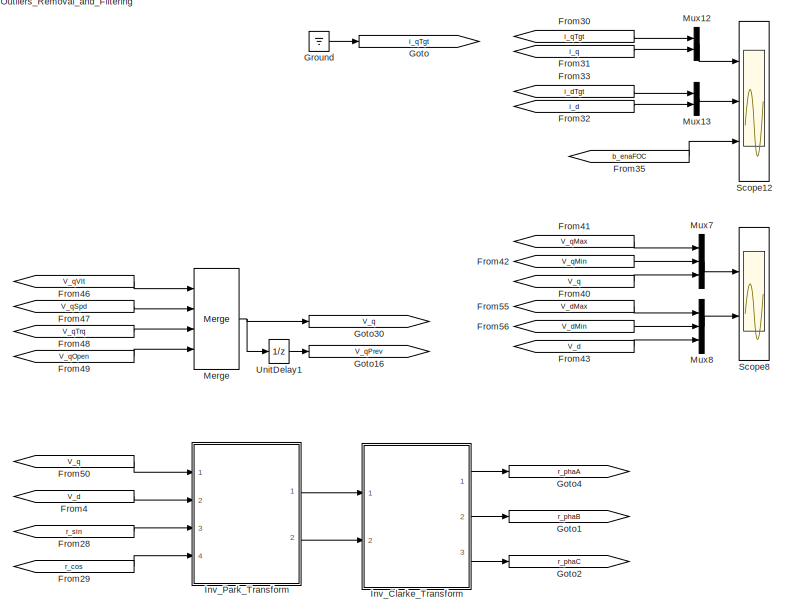
[diagram: BLDC_controller/BLDC_controller/F03_Field_Oriented_Control - part 3/4, middle right region]
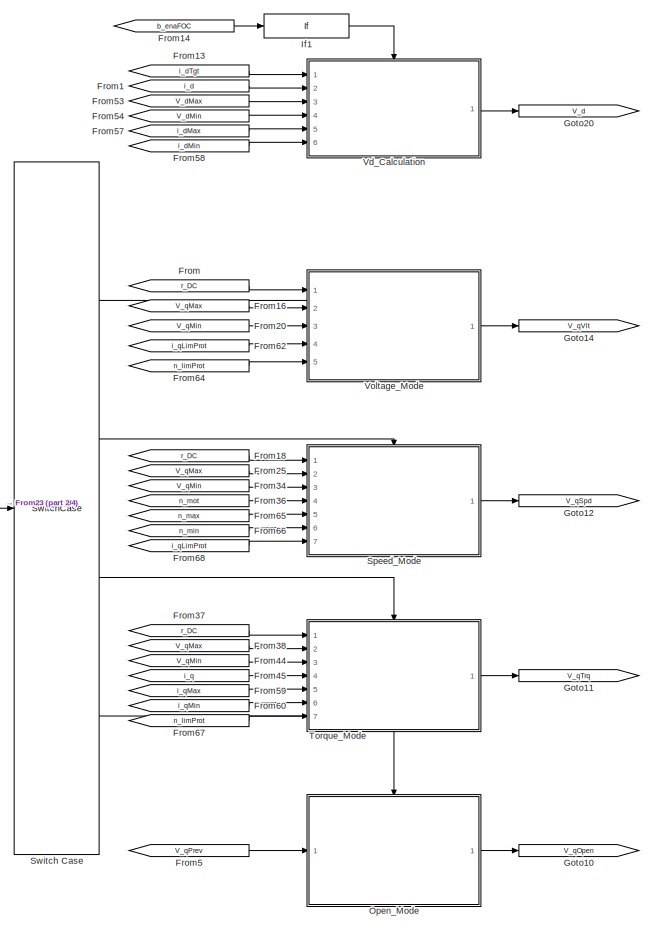
[diagram: BLDC_controller/BLDC_controller/F03_Field_Oriented_Control - part 4/4, central region]
BLOCK [SubSystem] BLDC_controller/BLDC_controller/F03_Field_Oriented_Control
  Ports = [9, 6, 0, 0, 0, 0, 0, 1]
  RequestExecContextInheritance = off
  Variant = off
BLOCK [ActionPort] BLDC_controller/BLDC_controller/F03_Field_Oriented_Control/Action Port
  ActionType = then
  InitializeStates = reset
BLOCK [SubSystem] BLDC_controller/BLDC_controller/F03_Field_Oriented_Control/Clarke_Transform
  Ports = [2, 2]
  RequestExecContextInheritance = off
  Variant = off
BLOCK [SubSystem] BLDC_controller/BLDC_controller/F03_Field_Oriented_Control/Clarke_Transform/Clarke_PhasesAB
  Ports = [2, 2, 0, 0, 0, 0, 0, 1]
  RequestExecContextInheritance = off
  Variant = off
BLOCK [ActionPort] BLDC_controller/BLDC_controller/F03_Field_Oriented_Control/Clarke_Transform/Clarke_PhasesAB/Action Port
  ActionType = then
BLOCK [From] BLDC_controller/BLDC_controller/F03_Field_Oriented_Control/Clarke_Transform/Clarke_PhasesAB/From
  GotoTag = i_phaA
BLOCK [From] BLDC_controller/BLDC_controller/F03_Field_Oriented_Control/Clarke_Transform/Clarke_PhasesAB/From1
  GotoTag = i_phaB
BLOCK [Gain] BLDC_controller/BLDC_controller/F03_Field_Oriented_Control/Clarke_Transform/Clarke_PhasesAB/Gain2
  Gain = 2/sqrt(3)
  OutDataTypeStr = Inherit: Inherit via internal rule
  ParamDataTypeStr = Inherit: Inherit via internal rule
  RndMeth = Zero
  SaturateOnIntegerOverflow = off
  Tag = struct('comment',struct('text','','placement',1),'logdata',struct('maxnumvals',inf,'plotchannels',[],'loggingmode',3,'channels',1),'output',struct('variable','','description','','name','$S_$B','width',1,'address','','max',NaN,'min',NaN,'class','default','type','CONTINUOUS','scaling','','lsb',1,'offset',0,'arb',0,'freeze',1,'unit','','autoscalingmode',1,'lowerheadroom',1,'upperheadroom',1,'headroom...<+373ch>  <repeated x26 — deduplicated; at blocks: Gain2, Gain4, for merge, Gain1, Gain3, Gain5, Gain6, due_to_conv, due_to_convention>
BLOCK [Gain] BLDC_controller/BLDC_controller/F03_Field_Oriented_Control/Clarke_Transform/Clarke_PhasesAB/Gain4
  Gain = 1/sqrt(3)
  OutDataTypeStr = Inherit: Inherit via internal rule
  ParamDataTypeStr = Inherit: Inherit via internal rule
  RndMeth = Zero
  SaturateOnIntegerOverflow = off
BLOCK [Goto] BLDC_controller/BLDC_controller/F03_Field_Oriented_Control/Clarke_Transform/Clarke_PhasesAB/Goto13
  GotoTag = i_phaA
BLOCK [Goto] BLDC_controller/BLDC_controller/F03_Field_Oriented_Control/Clarke_Transform/Clarke_PhasesAB/Goto15
  GotoTag = i_phaB
BLOCK [Sum] BLDC_controller/BLDC_controller/F03_Field_Oriented_Control/Clarke_Transform/Clarke_PhasesAB/Sum1
  InputSameDT = off
  OutDataTypeStr = fixdt(1,16,4)
  Ports = [2, 1]
  RndMeth = Simplest
BLOCK [Gain] BLDC_controller/BLDC_controller/F03_Field_Oriented_Control/Clarke_Transform/Clarke_PhasesAB/for merge
  RndMeth = Zero
  SaturateOnIntegerOverflow = off
BLOCK [Outport] BLDC_controller/BLDC_controller/F03_Field_Oriented_Control/Clarke_Transform/Clarke_PhasesAB/i_alphaAB
  IconDisplay = Port number
BLOCK [Outport] BLDC_controller/BLDC_controller/F03_Field_Oriented_Control/Clarke_Transform/Clarke_PhasesAB/i_betaAB
  IconDisplay = Port number
  Port = 2
BLOCK [Inport] BLDC_controller/BLDC_controller/F03_Field_Oriented_Control/Clarke_Transform/Clarke_PhasesAB/i_phaA
  IconDisplay = Port number
BLOCK [Inport] BLDC_controller/BLDC_controller/F03_Field_Oriented_Control/Clarke_Transform/Clarke_PhasesAB/i_phaB
  IconDisplay = Port number
  Port = 2
BLOCK [SubSystem] BLDC_controller/BLDC_controller/F03_Field_Oriented_Control/Clarke_Transform/Clarke_PhasesBC
  Ports = [2, 2, 0, 0, 0, 0, 0, 1]
  RequestExecContextInheritance = off
  Variant = off
BLOCK [ActionPort] BLDC_controller/BLDC_controller/F03_Field_Oriented_Control/Clarke_Transform/Clarke_PhasesBC/Action Port
  ActionType = else
BLOCK [From] BLDC_controller/BLDC_controller/F03_Field_Oriented_Control/Clarke_Transform/Clarke_PhasesBC/From2
  GotoTag = i_phaB
BLOCK [From] BLDC_controller/BLDC_controller/F03_Field_Oriented_Control/Clarke_Transform/Clarke_PhasesBC/From3
  GotoTag = i_phaC
BLOCK [From] BLDC_controller/BLDC_controller/F03_Field_Oriented_Control/Clarke_Transform/Clarke_PhasesBC/From4
  GotoTag = i_phaB
BLOCK [From] BLDC_controller/BLDC_controller/F03_Field_Oriented_Control/Clarke_Transform/Clarke_PhasesBC/From5
  GotoTag = i_phaC
BLOCK [Gain] BLDC_controller/BLDC_controller/F03_Field_Oriented_Control/Clarke_Transform/Clarke_PhasesBC/Gain2
  Gain = 1/sqrt(3)
  OutDataTypeStr = fixdt(1,16,4)
  ParamDataTypeStr = Inherit: Inherit via internal rule
  RndMeth = Zero
BLOCK [Goto] BLDC_controller/BLDC_controller/F03_Field_Oriented_Control/Clarke_Transform/Clarke_PhasesBC/Goto13
  GotoTag = i_phaB
BLOCK [Goto] BLDC_controller/BLDC_controller/F03_Field_Oriented_Control/Clarke_Transform/Clarke_PhasesBC/Goto15
  GotoTag = i_phaC
BLOCK [Sum] BLDC_controller/BLDC_controller/F03_Field_Oriented_Control/Clarke_Transform/Clarke_PhasesBC/Sum1
  InputSameDT = off
  Inputs = --
  OutDataTypeStr = fixdt(1,16,4)
  Ports = [2, 1]
  RndMeth = Simplest
BLOCK [Sum] BLDC_controller/BLDC_controller/F03_Field_Oriented_Control/Clarke_Transform/Clarke_PhasesBC/Sum3
  InputSameDT = off
  Inputs = +-
  OutDataTypeStr = Inherit: Inherit via internal rule
  Ports = [2, 1]
  RndMeth = Simplest
  SaturateOnIntegerOverflow = off
BLOCK [Outport] BLDC_controller/BLDC_controller/F03_Field_Oriented_Control/Clarke_Transform/Clarke_PhasesBC/i_alphaBC
  IconDisplay = Port number
BLOCK [Outport] BLDC_controller/BLDC_controller/F03_Field_Oriented_Control/Clarke_Transform/Clarke_PhasesBC/i_betaBC
  IconDisplay = Port number
  Port = 2
BLOCK [Inport] BLDC_controller/BLDC_controller/F03_Field_Oriented_Control/Clarke_Transform/Clarke_PhasesBC/i_phaB
  IconDisplay = Port number
BLOCK [Inport] BLDC_controller/BLDC_controller/F03_Field_Oriented_Control/Clarke_Transform/Clarke_PhasesBC/i_phaC
  IconDisplay = Port number
  Port = 2
BLOCK [From] BLDC_controller/BLDC_controller/F03_Field_Oriented_Control/Clarke_Transform/From
  GotoTag = i_alphaAB
BLOCK [From] BLDC_controller/BLDC_controller/F03_Field_Oriented_Control/Clarke_Transform/From1
  GotoTag = i_alphaBC
BLOCK [From] BLDC_controller/BLDC_controller/F03_Field_Oriented_Control/Clarke_Transform/From2
  GotoTag = i_betaAB
BLOCK [From] BLDC_controller/BLDC_controller/F03_Field_Oriented_Control/Clarke_Transform/From3
  GotoTag = i_betaBC
BLOCK [From] BLDC_controller/BLDC_controller/F03_Field_Oriented_Control/Clarke_Transform/From4
  GotoTag = i_alpha
BLOCK [From] BLDC_controller/BLDC_controller/F03_Field_Oriented_Control/Clarke_Transform/From5
  GotoTag = i_beta
BLOCK [From] BLDC_controller/BLDC_controller/F03_Field_Oriented_Control/Clarke_Transform/From6
  GotoTag = i_phaAB
BLOCK [From] BLDC_controller/BLDC_controller/F03_Field_Oriented_Control/Clarke_Transform/From7
  GotoTag = i_phaAB
BLOCK [From] BLDC_controller/BLDC_controller/F03_Field_Oriented_Control/Clarke_Transform/From8
  GotoTag = i_phaBC
BLOCK [From] BLDC_controller/BLDC_controller/F03_Field_Oriented_Control/Clarke_Transform/From9
  GotoTag = i_phaBC
BLOCK [Goto] BLDC_controller/BLDC_controller/F03_Field_Oriented_Control/Clarke_Transform/Goto
  GotoTag = i_alpha
BLOCK [Goto] BLDC_controller/BLDC_controller/F03_Field_Oriented_Control/Clarke_Transform/Goto1
  GotoTag = i_alphaAB
BLOCK [Goto] BLDC_controller/BLDC_controller/F03_Field_Oriented_Control/Clarke_Transform/Goto13
  GotoTag = i_phaAB
BLOCK [Goto] BLDC_controller/BLDC_controller/F03_Field_Oriented_Control/Clarke_Transform/Goto15
  GotoTag = i_phaBC
BLOCK [Goto] BLDC_controller/BLDC_controller/F03_Field_Oriented_Control/Clarke_Transform/Goto2
  GotoTag = i_alphaBC
BLOCK [Goto] BLDC_controller/BLDC_controller/F03_Field_Oriented_Control/Clarke_Transform/Goto3
  GotoTag = i_betaAB
BLOCK [Goto] BLDC_controller/BLDC_controller/F03_Field_Oriented_Control/Clarke_Transform/Goto4
  GotoTag = i_betaBC
BLOCK [Goto] BLDC_controller/BLDC_controller/F03_Field_Oriented_Control/Clarke_Transform/Goto6
  GotoTag = i_beta
BLOCK [If] BLDC_controller/BLDC_controller/F03_Field_Oriented_Control/Clarke_Transform/If1
  IfExpression = u1 ~= 0
  Ports = [1, 2]
BLOCK [Merge] BLDC_controller/BLDC_controller/F03_Field_Oriented_Control/Clarke_Transform/Merge
  Ports = [2, 1]
BLOCK [Merge] BLDC_controller/BLDC_controller/F03_Field_Oriented_Control/Clarke_Transform/Merge1
  Ports = [2, 1]
BLOCK [Constant] BLDC_controller/BLDC_controller/F03_Field_Oriented_Control/Clarke_Transform/b_selPhaABCurrMeas
  OutDataTypeStr = boolean
  Value = b_selPhaABCurrMeas
BLOCK [Outport] BLDC_controller/BLDC_controller/F03_Field_Oriented_Control/Clarke_Transform/i_alpha
  IconDisplay = Port number
BLOCK [Outport] BLDC_controller/BLDC_controller/F03_Field_Oriented_Control/Clarke_Transform/i_beta
  IconDisplay = Port number
  Port = 2
BLOCK [Inport] BLDC_controller/BLDC_controller/F03_Field_Oriented_Control/Clarke_Transform/i_phaAB
  IconDisplay = Port number
BLOCK [Inport] BLDC_controller/BLDC_controller/F03_Field_Oriented_Control/Clarke_Transform/i_phaBC
  IconDisplay = Port number
  Port = 2
BLOCK [From] BLDC_controller/BLDC_controller/F03_Field_Oriented_Control/From
  GotoTag = r_DC
BLOCK [From] BLDC_controller/BLDC_controller/F03_Field_Oriented_Control/From1
  GotoTag = i_d
BLOCK [From] BLDC_controller/BLDC_controller/F03_Field_Oriented_Control/From10
  GotoTag = r_phaC
BLOCK [From] BLDC_controller/BLDC_controller/F03_Field_Oriented_Control/From11
  GotoTag = V_d
BLOCK [From] BLDC_controller/BLDC_controller/F03_Field_Oriented_Control/From12
  GotoTag = i_phaAB
BLOCK [From] BLDC_controller/BLDC_controller/F03_Field_Oriented_Control/From13
  GotoTag = i_dTgt
BLOCK [From] BLDC_controller/BLDC_controller/F03_Field_Oriented_Control/From14
  GotoTag = b_enaFOC
BLOCK [From] BLDC_controller/BLDC_controller/F03_Field_Oriented_Control/From16
  GotoTag = V_qMax
BLOCK [From] BLDC_controller/BLDC_controller/F03_Field_Oriented_Control/From18
  GotoTag = r_DC
BLOCK [From] BLDC_controller/BLDC_controller/F03_Field_Oriented_Control/From19
  GotoTag = a_elecAngle
BLOCK [From] BLDC_controller/BLDC_controller/F03_Field_Oriented_Control/From2
  GotoTag = V_q
BLOCK [From] BLDC_controller/BLDC_controller/F03_Field_Oriented_Control/From20
  GotoTag = V_qMin
BLOCK [From] BLDC_controller/BLDC_controller/F03_Field_Oriented_Control/From22
  GotoTag = i_phaBC
BLOCK [From] BLDC_controller/BLDC_controller/F03_Field_Oriented_Control/From23
  GotoTag = z_ctrlMod
BLOCK [From] BLDC_controller/BLDC_controller/F03_Field_Oriented_Control/From25
  GotoTag = V_qMax
BLOCK [From] BLDC_controller/BLDC_controller/F03_Field_Oriented_Control/From26
  GotoTag = r_sin
BLOCK [From] BLDC_controller/BLDC_controller/F03_Field_Oriented_Control/From27
  GotoTag = r_cos
BLOCK [From] BLDC_controller/BLDC_controller/F03_Field_Oriented_Control/From28
  GotoTag = r_sin
BLOCK [From] BLDC_controller/BLDC_controller/F03_Field_Oriented_Control/From29
  GotoTag = r_cos
BLOCK [From] BLDC_controller/BLDC_controller/F03_Field_Oriented_Control/From3
  GotoTag = n_motAbs
BLOCK [From] BLDC_controller/BLDC_controller/F03_Field_Oriented_Control/From30
  GotoTag = i_qTgt
BLOCK [From] BLDC_controller/BLDC_controller/F03_Field_Oriented_Control/From31
  GotoTag = i_q
BLOCK [From] BLDC_controller/BLDC_controller/F03_Field_Oriented_Control/From32
  GotoTag = i_d
BLOCK [From] BLDC_controller/BLDC_controller/F03_Field_Oriented_Control/From33
  GotoTag = i_dTgt
BLOCK [From] BLDC_controller/BLDC_controller/F03_Field_Oriented_Control/From34
  GotoTag = V_qMin
BLOCK [From] BLDC_controller/BLDC_controller/F03_Field_Oriented_Control/From35
  GotoTag = b_enaFOC
BLOCK [From] BLDC_controller/BLDC_controller/F03_Field_Oriented_Control/From36
  GotoTag = n_mot
BLOCK [From] BLDC_controller/BLDC_controller/F03_Field_Oriented_Control/From37
  GotoTag = r_DC
BLOCK [From] BLDC_controller/BLDC_controller/F03_Field_Oriented_Control/From38
  GotoTag = V_qMax
BLOCK [From] BLDC_controller/BLDC_controller/F03_Field_Oriented_Control/From4
  GotoTag = V_d
BLOCK [From] BLDC_controller/BLDC_controller/F03_Field_Oriented_Control/From40
  GotoTag = V_q
BLOCK [From] BLDC_controller/BLDC_controller/F03_Field_Oriented_Control/From41
  GotoTag = V_qMax
BLOCK [From] BLDC_controller/BLDC_controller/F03_Field_Oriented_Control/From42
  GotoTag = V_qMin
BLOCK [From] BLDC_controller/BLDC_controller/F03_Field_Oriented_Control/From43
  GotoTag = V_d
BLOCK [From] BLDC_controller/BLDC_controller/F03_Field_Oriented_Control/From44
  GotoTag = V_qMin
BLOCK [From] BLDC_controller/BLDC_controller/F03_Field_Oriented_Control/From45
  GotoTag = i_q
BLOCK [From] BLDC_controller/BLDC_controller/F03_Field_Oriented_Control/From46
  GotoTag = V_qVlt
BLOCK [From] BLDC_controller/BLDC_controller/F03_Field_Oriented_Control/From47
  GotoTag = V_qSpd
BLOCK [From] BLDC_controller/BLDC_controller/F03_Field_Oriented_Control/From48
  GotoTag = V_qTrq
BLOCK [From] BLDC_controller/BLDC_controller/F03_Field_Oriented_Control/From49
  GotoTag = V_qOpen
BLOCK [From] BLDC_controller/BLDC_controller/F03_Field_Oriented_Control/From5
  GotoTag = V_qPrev
BLOCK [From] BLDC_controller/BLDC_controller/F03_Field_Oriented_Control/From50
  GotoTag = V_q
BLOCK [From] BLDC_controller/BLDC_controller/F03_Field_Oriented_Control/From51
  GotoTag = V_d
BLOCK [From] BLDC_controller/BLDC_controller/F03_Field_Oriented_Control/From52
  GotoTag = i_d
BLOCK [From] BLDC_controller/BLDC_controller/F03_Field_Oriented_Control/From53
  GotoTag = V_dMax
BLOCK [From] BLDC_controller/BLDC_controller/F03_Field_Oriented_Control/From54
  GotoTag = V_dMin
BLOCK [From] BLDC_controller/BLDC_controller/F03_Field_Oriented_Control/From55
  GotoTag = V_dMax
BLOCK [From] BLDC_controller/BLDC_controller/F03_Field_Oriented_Control/From56
  GotoTag = V_dMin
BLOCK [From] BLDC_controller/BLDC_controller/F03_Field_Oriented_Control/From57
  GotoTag = i_dMax
BLOCK [From] BLDC_controller/BLDC_controller/F03_Field_Oriented_Control/From58
  GotoTag = i_dMin
BLOCK [From] BLDC_controller/BLDC_controller/F03_Field_Oriented_Control/From59
  GotoTag = i_qMax
BLOCK [From] BLDC_controller/BLDC_controller/F03_Field_Oriented_Control/From6
  GotoTag = V_q
BLOCK [From] BLDC_controller/BLDC_controller/F03_Field_Oriented_Control/From60
  GotoTag = i_qMin
BLOCK [From] BLDC_controller/BLDC_controller/F03_Field_Oriented_Control/From61
  GotoTag = i_q
BLOCK [From] BLDC_controller/BLDC_controller/F03_Field_Oriented_Control/From62
  GotoTag = i_qLimProt
BLOCK [From] BLDC_controller/BLDC_controller/F03_Field_Oriented_Control/From63
  GotoTag = n_mot
BLOCK [From] BLDC_controller/BLDC_controller/F03_Field_Oriented_Control/From64
  GotoTag = n_limProt
BLOCK [From] BLDC_controller/BLDC_controller/F03_Field_Oriented_Control/From65
  GotoTag = n_max
BLOCK [From] BLDC_controller/BLDC_controller/F03_Field_Oriented_Control/From66
  GotoTag = n_min
BLOCK [From] BLDC_controller/BLDC_controller/F03_Field_Oriented_Control/From67
  GotoTag = n_limProt
BLOCK [From] BLDC_controller/BLDC_controller/F03_Field_Oriented_Control/From68
  GotoTag = i_qLimProt
BLOCK [From] BLDC_controller/BLDC_controller/F03_Field_Oriented_Control/From69
  GotoTag = z_ctrlMod
BLOCK [From] BLDC_controller/BLDC_controller/F03_Field_Oriented_Control/From7
  GotoTag = i_DCLink
BLOCK [From] BLDC_controller/BLDC_controller/F03_Field_Oriented_Control/From8
  GotoTag = r_phaA
BLOCK [From] BLDC_controller/BLDC_controller/F03_Field_Oriented_Control/From9
  GotoTag = r_phaB
BLOCK [Goto] BLDC_controller/BLDC_controller/F03_Field_Oriented_Control/Goto
  GotoTag = i_qTgt
BLOCK [Goto] BLDC_controller/BLDC_controller/F03_Field_Oriented_Control/Goto1
  GotoTag = r_phaB
BLOCK [Goto] BLDC_controller/BLDC_controller/F03_Field_Oriented_Control/Goto10
  GotoTag = V_qOpen
BLOCK [Goto] BLDC_controller/BLDC_controller/F03_Field_Oriented_Control/Goto11
  GotoTag = V_qTrq
BLOCK [Goto] BLDC_controller/BLDC_controller/F03_Field_Oriented_Control/Goto12
  GotoTag = V_qSpd
BLOCK [Goto] BLDC_controller/BLDC_controller/F03_Field_Oriented_Control/Goto13
  GotoTag = i_phaAB
BLOCK [Goto] BLDC_controller/BLDC_controller/F03_Field_Oriented_Control/Goto14
  GotoTag = V_qVlt
BLOCK [Goto] BLDC_controller/BLDC_controller/F03_Field_Oriented_Control/Goto15
  GotoTag = i_phaBC
BLOCK [Goto] BLDC_controller/BLDC_controller/F03_Field_Oriented_Control/Goto16
  GotoTag = V_qPrev
BLOCK [Goto] BLDC_controller/BLDC_controller/F03_Field_Oriented_Control/Goto17
  GotoTag = V_dMax
BLOCK [Goto] BLDC_controller/BLDC_controller/F03_Field_Oriented_Control/Goto18
  GotoTag = V_dMin
BLOCK [Goto] BLDC_controller/BLDC_controller/F03_Field_Oriented_Control/Goto19
  GotoTag = i_dMax
BLOCK [Goto] BLDC_controller/BLDC_controller/F03_Field_Oriented_Control/Goto2
  GotoTag = r_phaC
BLOCK [Goto] BLDC_controller/BLDC_controller/F03_Field_Oriented_Control/Goto20
  GotoTag = V_d
BLOCK [Goto] BLDC_controller/BLDC_controller/F03_Field_Oriented_Control/Goto21
  GotoTag = a_elecAngle
BLOCK [Goto] BLDC_controller/BLDC_controller/F03_Field_Oriented_Control/Goto22
  GotoTag = n_motAbs
BLOCK [Goto] BLDC_controller/BLDC_controller/F03_Field_Oriented_Control/Goto23
  GotoTag = i_q
BLOCK [Goto] BLDC_controller/BLDC_controller/F03_Field_Oriented_Control/Goto24
  GotoTag = i_d
BLOCK [Goto] BLDC_controller/BLDC_controller/F03_Field_Oriented_Control/Goto25
  GotoTag = i_qMax
BLOCK [Goto] BLDC_controller/BLDC_controller/F03_Field_Oriented_Control/Goto26
  GotoTag = i_dTgt
BLOCK [Goto] BLDC_controller/BLDC_controller/F03_Field_Oriented_Control/Goto27
  GotoTag = r_DC
BLOCK [Goto] BLDC_controller/BLDC_controller/F03_Field_Oriented_Control/Goto28
  GotoTag = i_qMin
BLOCK [Goto] BLDC_controller/BLDC_controller/F03_Field_Oriented_Control/Goto29
  GotoTag = i_dMin
BLOCK [Goto] BLDC_controller/BLDC_controller/F03_Field_Oriented_Control/Goto3
  GotoTag = z_ctrlMod
BLOCK [Goto] BLDC_controller/BLDC_controller/F03_Field_Oriented_Control/Goto30
  GotoTag = V_q
BLOCK [Goto] BLDC_controller/BLDC_controller/F03_Field_Oriented_Control/Goto31
  GotoTag = i_qLimProt
BLOCK [Goto] BLDC_controller/BLDC_controller/F03_Field_Oriented_Control/Goto32
  GotoTag = n_max
BLOCK [Goto] BLDC_controller/BLDC_controller/F03_Field_Oriented_Control/Goto33
  GotoTag = n_min
BLOCK [Goto] BLDC_controller/BLDC_controller/F03_Field_Oriented_Control/Goto34
  GotoTag = n_limProt
BLOCK [Goto] BLDC_controller/BLDC_controller/F03_Field_Oriented_Control/Goto35
  GotoTag = r_sin
BLOCK [Goto] BLDC_controller/BLDC_controller/F03_Field_Oriented_Control/Goto36
  GotoTag = r_cos
BLOCK [Goto] BLDC_controller/BLDC_controller/F03_Field_Oriented_Control/Goto4
  GotoTag = r_phaA
BLOCK [Goto] BLDC_controller/BLDC_controller/F03_Field_Oriented_Control/Goto5
  GotoTag = i_DCLink
BLOCK [Goto] BLDC_controller/BLDC_controller/F03_Field_Oriented_Control/Goto6
  GotoTag = V_qMax
BLOCK [Goto] BLDC_controller/BLDC_controller/F03_Field_Oriented_Control/Goto7
  GotoTag = V_qMin
BLOCK [Goto] BLDC_controller/BLDC_controller/F03_Field_Oriented_Control/Goto8
  GotoTag = b_enaFOC
BLOCK [Goto] BLDC_controller/BLDC_controller/F03_Field_Oriented_Control/Goto9
  GotoTag = n_mot
BLOCK [Ground] BLDC_controller/BLDC_controller/F03_Field_Oriented_Control/Ground
BLOCK [If] BLDC_controller/BLDC_controller/F03_Field_Oriented_Control/If1
  IfExpression = u1 ~= 0
  Ports = [1, 1]
  ShowElse = off
BLOCK [SubSystem] BLDC_controller/BLDC_controller/F03_Field_Oriented_Control/Inv_Clarke_Transform
  Ports = [2, 3]
  RequestExecContextInheritance = off
  Variant = off
BLOCK [Sum] BLDC_controller/BLDC_controller/F03_Field_Oriented_Control/Inv_Clarke_Transform/Add
  InputSameDT = off
  OutDataTypeStr = Inherit: Inherit via internal rule
  Ports = [2, 1]
  SaturateOnIntegerOverflow = off
BLOCK [Sum] BLDC_controller/BLDC_controller/F03_Field_Oriented_Control/Inv_Clarke_Transform/Add1
  InputSameDT = off
  Inputs = -+
  OutDataTypeStr = Inherit: Inherit via internal rule
  Ports = [2, 1]
  SaturateOnIntegerOverflow = off
BLOCK [Demux] BLDC_controller/BLDC_controller/F03_Field_Oriented_Control/Inv_Clarke_Transform/Demux
  DisplayOption = bar
  Outputs = 3
  Ports = [1, 3]
BLOCK [Gain] BLDC_controller/BLDC_controller/F03_Field_Oriented_Control/Inv_Clarke_Transform/Gain1
  Gain = sqrt(3)/2
  OutDataTypeStr = Inherit: Inherit via internal rule
  ParamDataTypeStr = Inherit: Inherit via internal rule
  RndMeth = Zero
  SaturateOnIntegerOverflow = off
BLOCK [Gain] BLDC_controller/BLDC_controller/F03_Field_Oriented_Control/Inv_Clarke_Transform/Gain2
  Gain = 0.5
  OutDataTypeStr = Inherit: Inherit via internal rule
  ParamDataTypeStr = Inherit: Inherit via internal rule
  SaturateOnIntegerOverflow = off
BLOCK [Gain] BLDC_controller/BLDC_controller/F03_Field_Oriented_Control/Inv_Clarke_Transform/Gain3
  Gain = 1/2
  OutDataTypeStr = Inherit: Inherit via internal rule
  ParamDataTypeStr = Inherit: Inherit via internal rule
  RndMeth = Zero
  SaturateOnIntegerOverflow = off
BLOCK [Gain] BLDC_controller/BLDC_controller/F03_Field_Oriented_Control/Inv_Clarke_Transform/Gain4
  Gain = 2/sqrt(3)
  OutDataTypeStr = fixdt(1,16,0)
  ParamDataTypeStr = Inherit: Inherit via internal rule
  SaturateOnIntegerOverflow = off
BLOCK [MinMax] BLDC_controller/BLDC_controller/F03_Field_Oriented_Control/Inv_Clarke_Transform/MinMax1
  Ports = [1, 1]
  SaturateOnIntegerOverflow = off
BLOCK [MinMax] BLDC_controller/BLDC_controller/F03_Field_Oriented_Control/Inv_Clarke_Transform/MinMax2
  Function = max
  Ports = [1, 1]
  SaturateOnIntegerOverflow = off
BLOCK [Mux] BLDC_controller/BLDC_controller/F03_Field_Oriented_Control/Inv_Clarke_Transform/Mux4
  DisplayOption = bar
  Inputs = 3
  Ports = [3, 1]
BLOCK [Sum] BLDC_controller/BLDC_controller/F03_Field_Oriented_Control/Inv_Clarke_Transform/Sum2
  InputSameDT = off
  Inputs = --
  OutDataTypeStr = fixdt(1,16,4)
  Ports = [2, 1]
  RndMeth = Simplest
  SaturateOnIntegerOverflow = off
BLOCK [Sum] BLDC_controller/BLDC_controller/F03_Field_Oriented_Control/Inv_Clarke_Transform/Sum6
  InputSameDT = off
  Inputs = -+
  OutDataTypeStr = fixdt(1,16,4)
  Ports = [2, 1]
  RndMeth = Simplest
  SaturateOnIntegerOverflow = off
BLOCK [Inport] BLDC_controller/BLDC_controller/F03_Field_Oriented_Control/Inv_Clarke_Transform/V_alpha
  IconDisplay = Port number
BLOCK [Inport] BLDC_controller/BLDC_controller/F03_Field_Oriented_Control/Inv_Clarke_Transform/V_beta
  IconDisplay = Port number
  Port = 2
BLOCK [Outport] BLDC_controller/BLDC_controller/F03_Field_Oriented_Control/Inv_Clarke_Transform/V_phaA
  IconDisplay = Port number
BLOCK [Outport] BLDC_controller/BLDC_controller/F03_Field_Oriented_Control/Inv_Clarke_Transform/V_phaB
  IconDisplay = Port number
  Port = 2
BLOCK [Outport] BLDC_controller/BLDC_controller/F03_Field_Oriented_Control/Inv_Clarke_Transform/V_phaC
  IconDisplay = Port number
  Port = 3
BLOCK [SubSystem] BLDC_controller/BLDC_controller/F03_Field_Oriented_Control/Inv_Park_Transform
  Ports = [4, 2]
  RequestExecContextInheritance = off
  Variant = off
BLOCK [Product] BLDC_controller/BLDC_controller/F03_Field_Oriented_Control/Inv_Park_Transform/Divide1
  InputSameDT = off
  Inputs = **
  OutDataTypeStr = Inherit: Inherit via internal rule
  Ports = [2, 1]
  RndMeth = Simplest
  SaturateOnIntegerOverflow = off
BLOCK [Product] BLDC_controller/BLDC_controller/F03_Field_Oriented_Control/Inv_Park_Transform/Divide2
  InputSameDT = off
  Inputs = **
  OutDataTypeStr = Inherit: Inherit via internal rule
  Ports = [2, 1]
  RndMeth = Simplest
  SaturateOnIntegerOverflow = off
BLOCK [Product] BLDC_controller/BLDC_controller/F03_Field_Oriented_Control/Inv_Park_Transform/Divide3
  InputSameDT = off
  Inputs = **
  OutDataTypeStr = Inherit: Inherit via internal rule
  Ports = [2, 1]
  RndMeth = Simplest
  SaturateOnIntegerOverflow = off
BLOCK [Product] BLDC_controller/BLDC_controller/F03_Field_Oriented_Control/Inv_Park_Transform/Divide4
  InputSameDT = off
  Inputs = **
  OutDataTypeStr = Inherit: Inherit via internal rule
  Ports = [2, 1]
  RndMeth = Simplest
  SaturateOnIntegerOverflow = off
BLOCK [From] BLDC_controller/BLDC_controller/F03_Field_Oriented_Control/Inv_Park_Transform/From
  GotoTag = r_sin
BLOCK [From] BLDC_controller/BLDC_controller/F03_Field_Oriented_Control/Inv_Park_Transform/From1
  GotoTag = r_cos
BLOCK [From] BLDC_controller/BLDC_controller/F03_Field_Oriented_Control/Inv_Park_Transform/From3
  GotoTag = V_q
BLOCK [From] BLDC_controller/BLDC_controller/F03_Field_Oriented_Control/Inv_Park_Transform/From4
  GotoTag = V_d
BLOCK [From] BLDC_controller/BLDC_controller/F03_Field_Oriented_Control/Inv_Park_Transform/From5
  GotoTag = r_cos
BLOCK [From] BLDC_controller/BLDC_controller/F03_Field_Oriented_Control/Inv_Park_Transform/From6
  GotoTag = V_q
BLOCK [From] BLDC_controller/BLDC_controller/F03_Field_Oriented_Control/Inv_Park_Transform/From7
  GotoTag = r_sin
BLOCK [From] BLDC_controller/BLDC_controller/F03_Field_Oriented_Control/Inv_Park_Transform/From8
  GotoTag = V_d
BLOCK [Goto] BLDC_controller/BLDC_controller/F03_Field_Oriented_Control/Inv_Park_Transform/Goto
  GotoTag = V_q
BLOCK [Goto] BLDC_controller/BLDC_controller/F03_Field_Oriented_Control/Inv_Park_Transform/Goto1
  GotoTag = V_d
BLOCK [Goto] BLDC_controller/BLDC_controller/F03_Field_Oriented_Control/Inv_Park_Transform/Goto2
  GotoTag = r_sin
BLOCK [Goto] BLDC_controller/BLDC_controller/F03_Field_Oriented_Control/Inv_Park_Transform/Goto3
  GotoTag = r_cos
BLOCK [Sum] BLDC_controller/BLDC_controller/F03_Field_Oriented_Control/Inv_Park_Transform/Sum1
  InputSameDT = off
  OutDataTypeStr = fixdt(1,16,4)
  Ports = [2, 1]
  RndMeth = Simplest
  SaturateOnIntegerOverflow = off
BLOCK [Sum] BLDC_controller/BLDC_controller/F03_Field_Oriented_Control/Inv_Park_Transform/Sum6
  InputSameDT = off
  Inputs = +-
  OutDataTypeStr = fixdt(1,16,4)
  Ports = [2, 1]
  RndMeth = Simplest
  SaturateOnIntegerOverflow = off
BLOCK [Outport] BLDC_controller/BLDC_controller/F03_Field_Oriented_Control/Inv_Park_Transform/V_alpha
  IconDisplay = Port number
BLOCK [Outport] BLDC_controller/BLDC_controller/F03_Field_Oriented_Control/Inv_Park_Transform/V_beta
  IconDisplay = Port number
  Port = 2
BLOCK [Inport] BLDC_controller/BLDC_controller/F03_Field_Oriented_Control/Inv_Park_Transform/V_d
  IconDisplay = Port number
  Port = 2
BLOCK [Inport] BLDC_controller/BLDC_controller/F03_Field_Oriented_Control/Inv_Park_Transform/V_q
  IconDisplay = Port number
BLOCK [Inport] BLDC_controller/BLDC_controller/F03_Field_Oriented_Control/Inv_Park_Transform/r_cos
  IconDisplay = Port number
  Port = 4
BLOCK [Inport] BLDC_controller/BLDC_controller/F03_Field_Oriented_Control/Inv_Park_Transform/r_sin
  IconDisplay = Port number
  Port = 3
BLOCK [Merge] BLDC_controller/BLDC_controller/F03_Field_Oriented_Control/Merge
  Inputs = 4
  Ports = [4, 1]
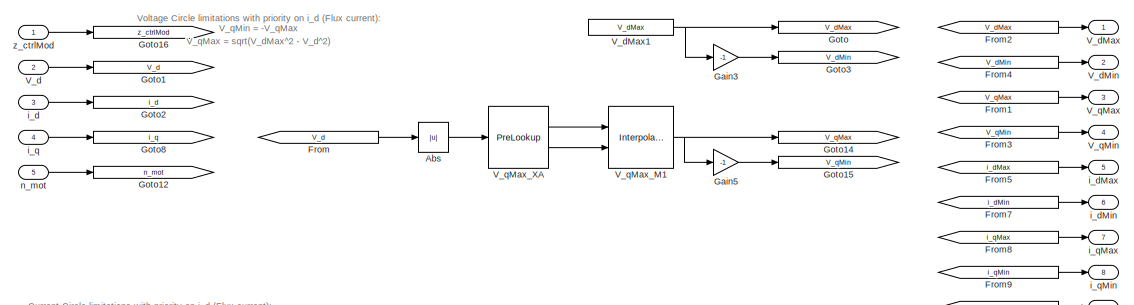
[diagram: BLDC_controller/BLDC_controller/F03_Field_Oriented_Control/Motor_Limitations - part 1/2, full width, top band]
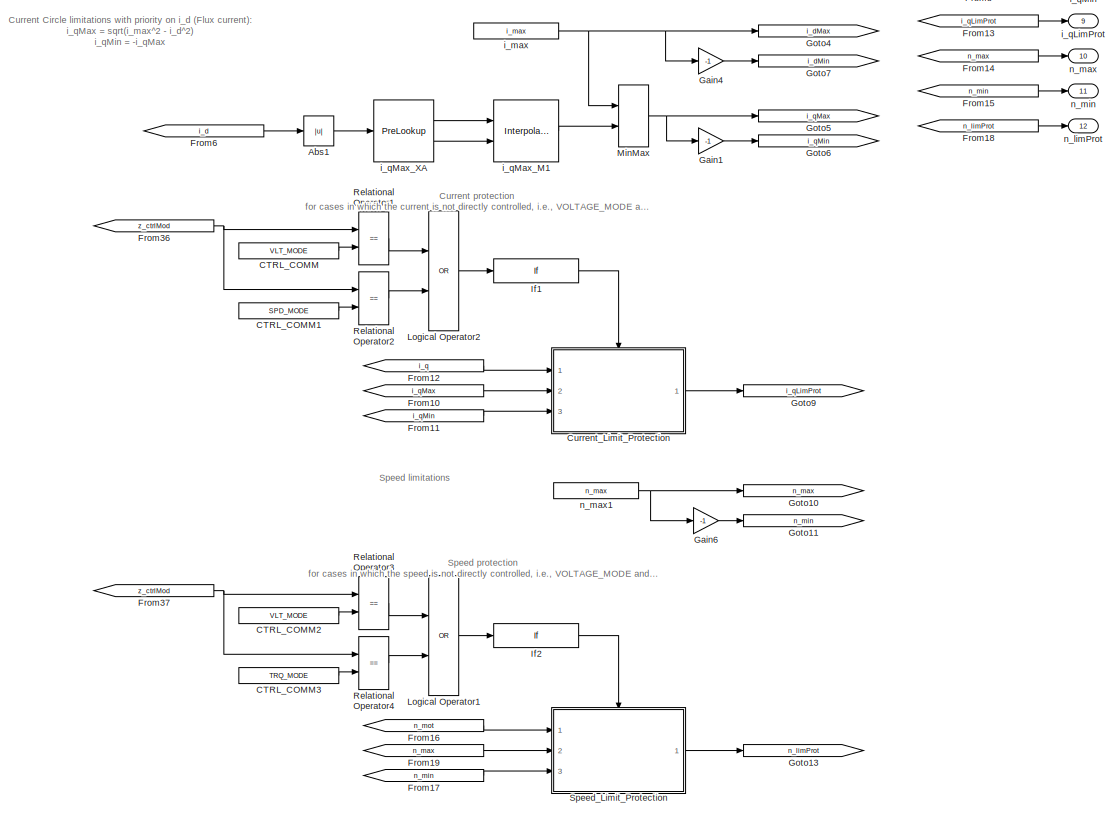
[diagram: BLDC_controller/BLDC_controller/F03_Field_Oriented_Control/Motor_Limitations - part 2/2, full width, middle band]
BLOCK [SubSystem] BLDC_controller/BLDC_controller/F03_Field_Oriented_Control/Motor_Limitations
  Ports = [5, 12]
  RequestExecContextInheritance = off
  Variant = off
BLOCK [Abs] BLDC_controller/BLDC_controller/F03_Field_Oriented_Control/Motor_Limitations/Abs
  SaturateOnIntegerOverflow = off
BLOCK [Abs] BLDC_controller/BLDC_controller/F03_Field_Oriented_Control/Motor_Limitations/Abs1
  SaturateOnIntegerOverflow = off
BLOCK [Constant] BLDC_controller/BLDC_controller/F03_Field_Oriented_Control/Motor_Limitations/CTRL_COMM
  OutDataTypeStr = Inherit: Inherit via back propagation
  Value = VLT_MODE
BLOCK [Constant] BLDC_controller/BLDC_controller/F03_Field_Oriented_Control/Motor_Limitations/CTRL_COMM1
  OutDataTypeStr = Inherit: Inherit via back propagation
  Value = SPD_MODE
BLOCK [Constant] BLDC_controller/BLDC_controller/F03_Field_Oriented_Control/Motor_Limitations/CTRL_COMM2
  OutDataTypeStr = Inherit: Inherit via back propagation
  Value = VLT_MODE
BLOCK [Constant] BLDC_controller/BLDC_controller/F03_Field_Oriented_Control/Motor_Limitations/CTRL_COMM3
  OutDataTypeStr = Inherit: Inherit via back propagation
  Value = TRQ_MODE
BLOCK [SubSystem] BLDC_controller/BLDC_controller/F03_Field_Oriented_Control/Motor_Limitations/Current_Limit_Protection
  Ports = [3, 1, 0, 0, 0, 0, 0, 1]
  RequestExecContextInheritance = off
  Variant = off
BLOCK [ActionPort] BLDC_controller/BLDC_controller/F03_Field_Oriented_Control/Motor_Limitations/Current_Limit_Protection/Action Port
  ActionType = then
  InitializeStates = reset
BLOCK [Product] BLDC_controller/BLDC_controller/F03_Field_Oriented_Control/Motor_Limitations/Current_Limit_Protection/Divide4
  InputSameDT = off
  Inputs = **
  Ports = [2, 1]
  RndMeth = Simplest
  SaturateOnIntegerOverflow = off
BLOCK [Gain] BLDC_controller/BLDC_controller/F03_Field_Oriented_Control/Motor_Limitations/Current_Limit_Protection/Gain2
  Gain = -1
  RndMeth = Zero
BLOCK [Constant] BLDC_controller/BLDC_controller/F03_Field_Oriented_Control/Motor_Limitations/Current_Limit_Protection/Kp_iqLimProt
  OutDataTypeStr = fixdt(0,16,6)
  Value = iq_KpLimProt
BLOCK [Reference] BLDC_controller/BLDC_controller/F03_Field_Oriented_Control/Motor_Limitations/Current_Limit_Protection/Saturation Dynamic  REF=simulink/Discontinuities/Saturation
Dynamic
  Ports = [3, 1]
  SourceBlock = simulink/Discontinuities/Saturation\nDynamic
  SourceProductBaseCode = SL
  SourceProductName = Simulink
  SourceType = Saturation Dynamic
BLOCK [Sum] BLDC_controller/BLDC_controller/F03_Field_Oriented_Control/Motor_Limitations/Current_Limit_Protection/Sum3
  IconShape = round
  InputSameDT = off
  Inputs = |+-
  OutDataTypeStr = Inherit: Inherit via internal rule
  Ports = [2, 1]
  RndMeth = Simplest
  SaturateOnIntegerOverflow = off
BLOCK [Inport] BLDC_controller/BLDC_controller/F03_Field_Oriented_Control/Motor_Limitations/Current_Limit_Protection/i_q
  IconDisplay = Port number
BLOCK [Outport] BLDC_controller/BLDC_controller/F03_Field_Oriented_Control/Motor_Limitations/Current_Limit_Protection/i_qLimProt
  IconDisplay = Port number
BLOCK [Inport] BLDC_controller/BLDC_controller/F03_Field_Oriented_Control/Motor_Limitations/Current_Limit_Protection/i_qMax
  IconDisplay = Port number
  Port = 2
BLOCK [Inport] BLDC_controller/BLDC_controller/F03_Field_Oriented_Control/Motor_Limitations/Current_Limit_Protection/i_qMin
  IconDisplay = Port number
  Port = 3
BLOCK [From] BLDC_controller/BLDC_controller/F03_Field_Oriented_Control/Motor_Limitations/From
  GotoTag = V_d
BLOCK [From] BLDC_controller/BLDC_controller/F03_Field_Oriented_Control/Motor_Limitations/From1
  GotoTag = V_qMax
BLOCK [From] BLDC_controller/BLDC_controller/F03_Field_Oriented_Control/Motor_Limitations/From10
  GotoTag = i_qMax
BLOCK [From] BLDC_controller/BLDC_controller/F03_Field_Oriented_Control/Motor_Limitations/From11
  GotoTag = i_qMin
BLOCK [From] BLDC_controller/BLDC_controller/F03_Field_Oriented_Control/Motor_Limitations/From12
  GotoTag = i_q
BLOCK [From] BLDC_controller/BLDC_controller/F03_Field_Oriented_Control/Motor_Limitations/From13
  GotoTag = i_qLimProt
BLOCK [From] BLDC_controller/BLDC_controller/F03_Field_Oriented_Control/Motor_Limitations/From14
  GotoTag = n_max
BLOCK [From] BLDC_controller/BLDC_controller/F03_Field_Oriented_Control/Motor_Limitations/From15
  GotoTag = n_min
BLOCK [From] BLDC_controller/BLDC_controller/F03_Field_Oriented_Control/Motor_Limitations/From16
  GotoTag = n_mot
BLOCK [From] BLDC_controller/BLDC_controller/F03_Field_Oriented_Control/Motor_Limitations/From17
  GotoTag = n_min
BLOCK [From] BLDC_controller/BLDC_controller/F03_Field_Oriented_Control/Motor_Limitations/From18
  GotoTag = n_limProt
BLOCK [From] BLDC_controller/BLDC_controller/F03_Field_Oriented_Control/Motor_Limitations/From19
  GotoTag = n_max
BLOCK [From] BLDC_controller/BLDC_controller/F03_Field_Oriented_Control/Motor_Limitations/From2
  GotoTag = V_dMax
BLOCK [From] BLDC_controller/BLDC_controller/F03_Field_Oriented_Control/Motor_Limitations/From3
  GotoTag = V_qMin
BLOCK [From] BLDC_controller/BLDC_controller/F03_Field_Oriented_Control/Motor_Limitations/From36
  GotoTag = z_ctrlMod
BLOCK [From] BLDC_controller/BLDC_controller/F03_Field_Oriented_Control/Motor_Limitations/From37
  GotoTag = z_ctrlMod
BLOCK [From] BLDC_controller/BLDC_controller/F03_Field_Oriented_Control/Motor_Limitations/From4
  GotoTag = V_dMin
BLOCK [From] BLDC_controller/BLDC_controller/F03_Field_Oriented_Control/Motor_Limitations/From5
  GotoTag = i_dMax
BLOCK [From] BLDC_controller/BLDC_controller/F03_Field_Oriented_Control/Motor_Limitations/From6
  GotoTag = i_d
BLOCK [From] BLDC_controller/BLDC_controller/F03_Field_Oriented_Control/Motor_Limitations/From7
  GotoTag = i_dMin
BLOCK [From] BLDC_controller/BLDC_controller/F03_Field_Oriented_Control/Motor_Limitations/From8
  GotoTag = i_qMax
BLOCK [From] BLDC_controller/BLDC_controller/F03_Field_Oriented_Control/Motor_Limitations/From9
  GotoTag = i_qMin
BLOCK [Gain] BLDC_controller/BLDC_controller/F03_Field_Oriented_Control/Motor_Limitations/Gain1
  Gain = -1
  RndMeth = Zero
  SaturateOnIntegerOverflow = off
BLOCK [Gain] BLDC_controller/BLDC_controller/F03_Field_Oriented_Control/Motor_Limitations/Gain3
  Gain = -1
  RndMeth = Zero
  SaturateOnIntegerOverflow = off
BLOCK [Gain] BLDC_controller/BLDC_controller/F03_Field_Oriented_Control/Motor_Limitations/Gain4
  Gain = -1
  RndMeth = Zero
  SaturateOnIntegerOverflow = off
BLOCK [Gain] BLDC_controller/BLDC_controller/F03_Field_Oriented_Control/Motor_Limitations/Gain5
  Gain = -1
  RndMeth = Zero
  SaturateOnIntegerOverflow = off
BLOCK [Gain] BLDC_controller/BLDC_controller/F03_Field_Oriented_Control/Motor_Limitations/Gain6
  Gain = -1
  RndMeth = Zero
  SaturateOnIntegerOverflow = off
BLOCK [Goto] BLDC_controller/BLDC_controller/F03_Field_Oriented_Control/Motor_Limitations/Goto
  GotoTag = V_dMax
BLOCK [Goto] BLDC_controller/BLDC_controller/F03_Field_Oriented_Control/Motor_Limitations/Goto1
  GotoTag = V_d
BLOCK [Goto] BLDC_controller/BLDC_controller/F03_Field_Oriented_Control/Motor_Limitations/Goto10
  GotoTag = n_max
BLOCK [Goto] BLDC_controller/BLDC_controller/F03_Field_Oriented_Control/Motor_Limitations/Goto11
  GotoTag = n_min
BLOCK [Goto] BLDC_controller/BLDC_controller/F03_Field_Oriented_Control/Motor_Limitations/Goto12
  GotoTag = n_mot
BLOCK [Goto] BLDC_controller/BLDC_controller/F03_Field_Oriented_Control/Motor_Limitations/Goto13
  GotoTag = n_limProt
BLOCK [Goto] BLDC_controller/BLDC_controller/F03_Field_Oriented_Control/Motor_Limitations/Goto14
  GotoTag = V_qMax
BLOCK [Goto] BLDC_controller/BLDC_controller/F03_Field_Oriented_Control/Motor_Limitations/Goto15
  GotoTag = V_qMin
BLOCK [Goto] BLDC_controller/BLDC_controller/F03_Field_Oriented_Control/Motor_Limitations/Goto16
  GotoTag = z_ctrlMod
BLOCK [Goto] BLDC_controller/BLDC_controller/F03_Field_Oriented_Control/Motor_Limitations/Goto2
  GotoTag = i_d
BLOCK [Goto] BLDC_controller/BLDC_controller/F03_Field_Oriented_Control/Motor_Limitations/Goto3
  GotoTag = V_dMin
BLOCK [Goto] BLDC_controller/BLDC_controller/F03_Field_Oriented_Control/Motor_Limitations/Goto4
  GotoTag = i_dMax
BLOCK [Goto] BLDC_controller/BLDC_controller/F03_Field_Oriented_Control/Motor_Limitations/Goto5
  GotoTag = i_qMax
BLOCK [Goto] BLDC_controller/BLDC_controller/F03_Field_Oriented_Control/Motor_Limitations/Goto6
  GotoTag = i_qMin
BLOCK [Goto] BLDC_controller/BLDC_controller/F03_Field_Oriented_Control/Motor_Limitations/Goto7
  GotoTag = i_dMin
BLOCK [Goto] BLDC_controller/BLDC_controller/F03_Field_Oriented_Control/Motor_Limitations/Goto8
  GotoTag = i_q
BLOCK [Goto] BLDC_controller/BLDC_controller/F03_Field_Oriented_Control/Motor_Limitations/Goto9
  GotoTag = i_qLimProt
BLOCK [If] BLDC_controller/BLDC_controller/F03_Field_Oriented_Control/Motor_Limitations/If1
  IfExpression = u1 ~= 0
  Ports = [1, 1]
  ShowElse = off
BLOCK [If] BLDC_controller/BLDC_controller/F03_Field_Oriented_Control/Motor_Limitations/If2
  IfExpression = u1 ~= 0
  Ports = [1, 1]
  ShowElse = off
BLOCK [Logic] BLDC_controller/BLDC_controller/F03_Field_Oriented_Control/Motor_Limitations/Logical Operator1
  AllPortsSameDT = off
  Operator = OR
  OutDataTypeStr = boolean
  Ports = [2, 1]
BLOCK [Logic] BLDC_controller/BLDC_controller/F03_Field_Oriented_Control/Motor_Limitations/Logical Operator2
  AllPortsSameDT = off
  Operator = OR
  OutDataTypeStr = boolean
  Ports = [2, 1]
BLOCK [MinMax] BLDC_controller/BLDC_controller/F03_Field_Oriented_Control/Motor_Limitations/MinMax
  InputSameDT = off
  Inputs = 2
  Ports = [2, 1]
  SaturateOnIntegerOverflow = off
BLOCK [RelationalOperator] BLDC_controller/BLDC_controller/F03_Field_Oriented_Control/Motor_Limitations/Relational Operator1
  InputSameDT = off
  Operator = ==
  OutDataTypeStr = boolean
  Ports = [2, 1]
  RndMeth = Simplest
BLOCK [RelationalOperator] BLDC_controller/BLDC_controller/F03_Field_Oriented_Control/Motor_Limitations/Relational Operator2
  InputSameDT = off
  Operator = ==
  OutDataTypeStr = boolean
  Ports = [2, 1]
  RndMeth = Simplest
BLOCK [RelationalOperator] BLDC_controller/BLDC_controller/F03_Field_Oriented_Control/Motor_Limitations/Relational Operator3
  InputSameDT = off
  Operator = ==
  OutDataTypeStr = boolean
  Ports = [2, 1]
  RndMeth = Simplest
BLOCK [RelationalOperator] BLDC_controller/BLDC_controller/F03_Field_Oriented_Control/Motor_Limitations/Relational Operator4
  InputSameDT = off
  Operator = ==
  OutDataTypeStr = boolean
  Ports = [2, 1]
  RndMeth = Simplest
BLOCK [SubSystem] BLDC_controller/BLDC_controller/F03_Field_Oriented_Control/Motor_Limitations/Speed_Limit_Protection
  Ports = [3, 1, 0, 0, 0, 0, 0, 1]
  RequestExecContextInheritance = off
  Variant = off
BLOCK [ActionPort] BLDC_controller/BLDC_controller/F03_Field_Oriented_Control/Motor_Limitations/Speed_Limit_Protection/Action Port
  ActionType = then
  InitializeStates = reset
BLOCK [Product] BLDC_controller/BLDC_controller/F03_Field_Oriented_Control/Motor_Limitations/Speed_Limit_Protection/Divide1
  InputSameDT = off
  Inputs = **
  Ports = [2, 1]
  RndMeth = Simplest
  SaturateOnIntegerOverflow = off
BLOCK [Constant] BLDC_controller/BLDC_controller/F03_Field_Oriented_Control/Motor_Limitations/Speed_Limit_Protection/Kp_nLimProt
  OutDataTypeStr = fixdt(0,16,6)
  Value = n_KpLimProt
BLOCK [Reference] BLDC_controller/BLDC_controller/F03_Field_Oriented_Control/Motor_Limitations/Speed_Limit_Protection/Saturation Dynamic1  REF=simulink/Discontinuities/Saturation
Dynamic
  Ports = [3, 1]
  SourceBlock = simulink/Discontinuities/Saturation\nDynamic
  SourceProductBaseCode = SL
  SourceProductName = Simulink
  SourceType = Saturation Dynamic
BLOCK [Sum] BLDC_controller/BLDC_controller/F03_Field_Oriented_Control/Motor_Limitations/Speed_Limit_Protection/Sum1
  IconShape = round
  InputSameDT = off
  Inputs = |+-
  OutDataTypeStr = Inherit: Inherit via internal rule
  Ports = [2, 1]
  RndMeth = Simplest
  SaturateOnIntegerOverflow = off
BLOCK [Outport] BLDC_controller/BLDC_controller/F03_Field_Oriented_Control/Motor_Limitations/Speed_Limit_Protection/n_limProt
  IconDisplay = Port number
BLOCK [Inport] BLDC_controller/BLDC_controller/F03_Field_Oriented_Control/Motor_Limitations/Speed_Limit_Protection/n_max
  IconDisplay = Port number
  Port = 2
BLOCK [Inport] BLDC_controller/BLDC_controller/F03_Field_Oriented_Control/Motor_Limitations/Speed_Limit_Protection/n_min
  IconDisplay = Port number
  Port = 3
BLOCK [Inport] BLDC_controller/BLDC_controller/F03_Field_Oriented_Control/Motor_Limitations/Speed_Limit_Protection/n_mot
  IconDisplay = Port number
BLOCK [Inport] BLDC_controller/BLDC_controller/F03_Field_Oriented_Control/Motor_Limitations/V_d
  IconDisplay = Port number
  Port = 2
BLOCK [Outport] BLDC_controller/BLDC_controller/F03_Field_Oriented_Control/Motor_Limitations/V_dMax
  IconDisplay = Port number
  InitialOutput = V_max
  OutputWhenDisabled = reset
BLOCK [Constant] BLDC_controller/BLDC_controller/F03_Field_Oriented_Control/Motor_Limitations/V_dMax1
  OutDataTypeStr = fixdt(1,16,4)
  Value = V_dMax
BLOCK [Outport] BLDC_controller/BLDC_controller/F03_Field_Oriented_Control/Motor_Limitations/V_dMin
  IconDisplay = Port number
  InitialOutput = V_min
  OutputWhenDisabled = reset
  Port = 2
BLOCK [Outport] BLDC_controller/BLDC_controller/F03_Field_Oriented_Control/Motor_Limitations/V_qMax
  IconDisplay = Port number
  InitialOutput = V_max
  OutputWhenDisabled = reset
  Port = 3
BLOCK [Interpolation_n-D] BLDC_controller/BLDC_controller/F03_Field_Oriented_Control/Motor_Limitations/V_qMax_M1
  ExtrapMethod = Clip
  InputPortMap = u0,u1
  InternalRulePriority = Speed
  NumberOfTableDimensions = 1
  OutDataTypeStr = fixdt(1,16,4)
  Ports = [2, 1]
  RndMeth = Simplest
  Table = V_qMax_M1
BLOCK [PreLookup] BLDC_controller/BLDC_controller/F03_Field_Oriented_Control/Motor_Limitations/V_qMax_XA
  BeginIndexSearchUsingPreviousIndexResult = on
  BreakpointsData = V_qMax_XA
  FractionDataTypeStr = fixdt(0,16,14)
  IndexDataTypeStr = uint8
  IndexSearchMethod = Evenly spaced points
  InputPortMap = u0
  Ports = [1, 2]
  RndMeth = Simplest
BLOCK [Outport] BLDC_controller/BLDC_controller/F03_Field_Oriented_Control/Motor_Limitations/V_qMin
  IconDisplay = Port number
  InitialOutput = V_min
  OutputWhenDisabled = reset
  Port = 4
BLOCK [Inport] BLDC_controller/BLDC_controller/F03_Field_Oriented_Control/Motor_Limitations/i_d
  IconDisplay = Port number
  Port = 3
BLOCK [Outport] BLDC_controller/BLDC_controller/F03_Field_Oriented_Control/Motor_Limitations/i_dMax
  IconDisplay = Port number
  InitialOutput = V_max
  OutputWhenDisabled = reset
  Port = 5
BLOCK [Outport] BLDC_controller/BLDC_controller/F03_Field_Oriented_Control/Motor_Limitations/i_dMin
  IconDisplay = Port number
  InitialOutput = V_min
  OutputWhenDisabled = reset
  Port = 6
BLOCK [Constant] BLDC_controller/BLDC_controller/F03_Field_Oriented_Control/Motor_Limitations/i_max
  OutDataTypeStr = fixdt(1,16,4)
  Value = i_max
BLOCK [Inport] BLDC_controller/BLDC_controller/F03_Field_Oriented_Control/Motor_Limitations/i_q
  IconDisplay = Port number
  Port = 4
BLOCK [Outport] BLDC_controller/BLDC_controller/F03_Field_Oriented_Control/Motor_Limitations/i_qLimProt
  IconDisplay = Port number
  InitialOutput = V_min
  OutputWhenDisabled = reset
  Port = 9
BLOCK [Outport] BLDC_controller/BLDC_controller/F03_Field_Oriented_Control/Motor_Limitations/i_qMax
  IconDisplay = Port number
  InitialOutput = V_max
  OutputWhenDisabled = reset
  Port = 7
BLOCK [Interpolation_n-D] BLDC_controller/BLDC_controller/F03_Field_Oriented_Control/Motor_Limitations/i_qMax_M1
  ExtrapMethod = Clip
  InputPortMap = u0,u1
  InternalRulePriority = Speed
  NumberOfTableDimensions = 1
  OutDataTypeStr = fixdt(1,16,4)
  Ports = [2, 1]
  RndMeth = Simplest
  Table = i_qMax_M1
BLOCK [PreLookup] BLDC_controller/BLDC_controller/F03_Field_Oriented_Control/Motor_Limitations/i_qMax_XA
  BeginIndexSearchUsingPreviousIndexResult = on
  BreakpointsData = i_qMax_XA
  FractionDataTypeStr = fixdt(0,16,14)
  IndexDataTypeStr = uint8
  IndexSearchMethod = Evenly spaced points
  InputPortMap = u0
  Ports = [1, 2]
  RndMeth = Simplest
BLOCK [Outport] BLDC_controller/BLDC_controller/F03_Field_Oriented_Control/Motor_Limitations/i_qMin
  IconDisplay = Port number
  InitialOutput = V_min
  OutputWhenDisabled = reset
  Port = 8
BLOCK [Outport] BLDC_controller/BLDC_controller/F03_Field_Oriented_Control/Motor_Limitations/n_limProt
  IconDisplay = Port number
  InitialOutput = V_min
  OutputWhenDisabled = reset
  Port = 12
BLOCK [Outport] BLDC_controller/BLDC_controller/F03_Field_Oriented_Control/Motor_Limitations/n_max
  IconDisplay = Port number
  InitialOutput = V_max
  OutputWhenDisabled = reset
  Port = 10
BLOCK [Constant] BLDC_controller/BLDC_controller/F03_Field_Oriented_Control/Motor_Limitations/n_max1
  OutDataTypeStr = fixdt(1,16,4)
  Value = n_max
BLOCK [Outport] BLDC_controller/BLDC_controller/F03_Field_Oriented_Control/Motor_Limitations/n_min
  IconDisplay = Port number
  InitialOutput = V_min
  OutputWhenDisabled = reset
  Port = 11
BLOCK [Inport] BLDC_controller/BLDC_controller/F03_Field_Oriented_Control/Motor_Limitations/n_mot
  IconDisplay = Port number
  Port = 5
BLOCK [Inport] BLDC_controller/BLDC_controller/F03_Field_Oriented_Control/Motor_Limitations/z_ctrlMod
  IconDisplay = Port number
BLOCK [Mux] BLDC_controller/BLDC_controller/F03_Field_Oriented_Control/Mux1
  DisplayOption = bar
  Inputs = 2
  Ports = [2, 1]
BLOCK [Mux] BLDC_controller/BLDC_controller/F03_Field_Oriented_Control/Mux12
  DisplayOption = bar
  Inputs = 2
  Ports = [2, 1]
BLOCK [Mux] BLDC_controller/BLDC_controller/F03_Field_Oriented_Control/Mux13
  DisplayOption = bar
  Inputs = 2
  Ports = [2, 1]
BLOCK [Mux] BLDC_controller/BLDC_controller/F03_Field_Oriented_Control/Mux2
  DisplayOption = bar
  Inputs = 2
  Ports = [2, 1]
BLOCK [Mux] BLDC_controller/BLDC_controller/F03_Field_Oriented_Control/Mux7
  DisplayOption = bar
  Inputs = 3
  Ports = [3, 1]
BLOCK [Mux] BLDC_controller/BLDC_controller/F03_Field_Oriented_Control/Mux8
  DisplayOption = bar
  Inputs = 3
  Ports = [3, 1]
BLOCK [SubSystem] BLDC_controller/BLDC_controller/F03_Field_Oriented_Control/Open_Mode
  Ports = [1, 1, 0, 0, 0, 0, 0, 1]
  RequestExecContextInheritance = off
  Variant = off
BLOCK [ActionPort] BLDC_controller/BLDC_controller/F03_Field_Oriented_Control/Open_Mode/Action Port
  ActionType = default
  InitializeStates = reset
BLOCK [Constant] BLDC_controller/BLDC_controller/F03_Field_Oriented_Control/Open_Mode/Constant23
  OutDataTypeStr = Inherit: Inherit via back propagation
  Value = 0
BLOCK [DataTypeConversion] BLDC_controller/BLDC_controller/F03_Field_Oriented_Control/Open_Mode/Data Type Conversion
  OutDataTypeStr = fixdt(1,28,16)
  RndMeth = Floor
  SaturateOnIntegerOverflow = off
BLOCK [From] BLDC_controller/BLDC_controller/F03_Field_Oriented_Control/Open_Mode/From
  GotoTag = V_qPrev
BLOCK [From] BLDC_controller/BLDC_controller/F03_Field_Oriented_Control/Open_Mode/From1
  GotoTag = V_qOpen
BLOCK [Gain] BLDC_controller/BLDC_controller/F03_Field_Oriented_Control/Open_Mode/Gain3
  Gain = -1
  ParamDataTypeStr = Inherit: Inherit via internal rule
  RndMeth = Zero
  SaturateOnIntegerOverflow = off
BLOCK [Goto] BLDC_controller/BLDC_controller/F03_Field_Oriented_Control/Open_Mode/Goto
  GotoTag = V_qOpen
BLOCK [Goto] BLDC_controller/BLDC_controller/F03_Field_Oriented_Control/Open_Mode/Goto13
  GotoTag = V_qPrev
BLOCK [Reference] BLDC_controller/BLDC_controller/F03_Field_Oriented_Control/Open_Mode/Rate_Limiter  REF=BLDC_controller_Lib/Rate_Limiter
  Ports = [5, 1]
  SourceBlock = BLDC_controller_Lib/Rate_Limiter
BLOCK [Outport] BLDC_controller/BLDC_controller/F03_Field_Oriented_Control/Open_Mode/V_qOpen
  IconDisplay = Port number
BLOCK [Inport] BLDC_controller/BLDC_controller/F03_Field_Oriented_Control/Open_Mode/V_qPrev
  IconDisplay = Port number
BLOCK [Constant] BLDC_controller/BLDC_controller/F03_Field_Oriented_Control/Open_Mode/dV_openRate
  OutDataTypeStr = fixdt(1,28,16)
  Value = dV_openRate
BLOCK [Gain] BLDC_controller/BLDC_controller/F03_Field_Oriented_Control/Open_Mode/for merge
  OutDataTypeStr = fixdt(1,16,4)
  ParamDataTypeStr = Inherit: Inherit via internal rule
  RndMeth = Zero
  SaturateOnIntegerOverflow = off
BLOCK [Reference] BLDC_controller/BLDC_controller/F03_Field_Oriented_Control/Open_Mode/rising_edge_init  REF=BLDC_controller_Lib/rising_edge_init
  Ports = [0, 1]
  SourceBlock = BLDC_controller_Lib/rising_edge_init
  SourceType = Rising edge init
  UserDataPersistent = on
BLOCK [SubSystem] BLDC_controller/BLDC_controller/F03_Field_Oriented_Control/Outliers_Removal_and_Filtering
  Ports = [3, 2]
  RequestExecContextInheritance = off
  Variant = off
BLOCK [SubSystem] BLDC_controller/BLDC_controller/F03_Field_Oriented_Control/Outliers_Removal_and_Filtering/DCLink_Current_Available
  Ports = [3, 2, 0, 0, 0, 0, 0, 1]
  RequestExecContextInheritance = off
  Variant = off
BLOCK [Abs] BLDC_controller/BLDC_controller/F03_Field_Oriented_Control/Outliers_Removal_and_Filtering/DCLink_Current_Available/Abs1
  SaturateOnIntegerOverflow = off
BLOCK [Abs] BLDC_controller/BLDC_controller/F03_Field_Oriented_Control/Outliers_Removal_and_Filtering/DCLink_Current_Available/Abs4
  SaturateOnIntegerOverflow = off
BLOCK [Abs] BLDC_controller/BLDC_controller/F03_Field_Oriented_Control/Outliers_Removal_and_Filtering/DCLink_Current_Available/Abs5
  SaturateOnIntegerOverflow = off
BLOCK [Abs] BLDC_controller/BLDC_controller/F03_Field_Oriented_Control/Outliers_Removal_and_Filtering/DCLink_Current_Available/Abs9
  SaturateOnIntegerOverflow = off
BLOCK [ActionPort] BLDC_controller/BLDC_controller/F03_Field_Oriented_Control/Outliers_Removal_and_Filtering/DCLink_Current_Available/Action Port
  ActionType = then
BLOCK [Constant] BLDC_controller/BLDC_controller/F03_Field_Oriented_Control/Outliers_Removal_and_Filtering/DCLink_Current_Available/Constant1
  OutDataTypeStr = Inherit: Inherit via back propagation
BLOCK [Demux] BLDC_controller/BLDC_controller/F03_Field_Oriented_Control/Outliers_Removal_and_Filtering/DCLink_Current_Available/Demux2
  DisplayOption = bar
  Outputs = 2
  Ports = [1, 2]
BLOCK [Demux] BLDC_controller/BLDC_controller/F03_Field_Oriented_Control/Outliers_Removal_and_Filtering/DCLink_Current_Available/Demux3
  DisplayOption = bar
  Outputs = 2
  Ports = [1, 2]
BLOCK [Product] BLDC_controller/BLDC_controller/F03_Field_Oriented_Control/Outliers_Removal_and_Filtering/DCLink_Current_Available/Divide1
  InputSameDT = off
  Inputs = **
  OutDataTypeStr = Inherit: Inherit via internal rule
  Ports = [2, 1]
  RndMeth = Simplest
  SaturateOnIntegerOverflow = off
BLOCK [Product] BLDC_controller/BLDC_controller/F03_Field_Oriented_Control/Outliers_Removal_and_Filtering/DCLink_Current_Available/Divide2
  InputSameDT = off
  Inputs = **
  OutDataTypeStr = Inherit: Inherit via internal rule
  Ports = [2, 1]
  RndMeth = Simplest
  SaturateOnIntegerOverflow = off
BLOCK [From] BLDC_controller/BLDC_controller/F03_Field_Oriented_Control/Outliers_Removal_and_Filtering/DCLink_Current_Available/From
  GotoTag = i_qDCLink
BLOCK [From] BLDC_controller/BLDC_controller/F03_Field_Oriented_Control/Outliers_Removal_and_Filtering/DCLink_Current_Available/From1
  GotoTag = i_dDCLink
BLOCK [From] BLDC_controller/BLDC_controller/F03_Field_Oriented_Control/Outliers_Removal_and_Filtering/DCLink_Current_Available/From17
  GotoTag = i_thresOutlier
BLOCK [From] BLDC_controller/BLDC_controller/F03_Field_Oriented_Control/Outliers_Removal_and_Filtering/DCLink_Current_Available/From2
  GotoTag = i_thresOutlier
BLOCK [From] BLDC_controller/BLDC_controller/F03_Field_Oriented_Control/Outliers_Removal_and_Filtering/DCLink_Current_Available/From23
  GotoTag = i_dRaw
BLOCK [From] BLDC_controller/BLDC_controller/F03_Field_Oriented_Control/Outliers_Removal_and_Filtering/DCLink_Current_Available/From3
  GotoTag = i_dRaw
BLOCK [From] BLDC_controller/BLDC_controller/F03_Field_Oriented_Control/Outliers_Removal_and_Filtering/DCLink_Current_Available/From4
  GotoTag = i_qRaw
BLOCK [From] BLDC_controller/BLDC_controller/F03_Field_Oriented_Control/Outliers_Removal_and_Filtering/DCLink_Current_Available/From5
  GotoTag = i_qRaw
BLOCK [From] BLDC_controller/BLDC_controller/F03_Field_Oriented_Control/Outliers_Removal_and_Filtering/DCLink_Current_Available/From6
  GotoTag = i_DCLink
BLOCK [From] BLDC_controller/BLDC_controller/F03_Field_Oriented_Control/Outliers_Removal_and_Filtering/DCLink_Current_Available/From7
  GotoTag = i_dRawClean
BLOCK [From] BLDC_controller/BLDC_controller/F03_Field_Oriented_Control/Outliers_Removal_and_Filtering/DCLink_Current_Available/From9
  GotoTag = i_qRawClean
BLOCK [Gain] BLDC_controller/BLDC_controller/F03_Field_Oriented_Control/Outliers_Removal_and_Filtering/DCLink_Current_Available/Gain3
  RndMeth = Zero
  SaturateOnIntegerOverflow = off
BLOCK [Gain] BLDC_controller/BLDC_controller/F03_Field_Oriented_Control/Outliers_Removal_and_Filtering/DCLink_Current_Available/Gain4
  RndMeth = Zero
  SaturateOnIntegerOverflow = off
BLOCK [Goto] BLDC_controller/BLDC_controller/F03_Field_Oriented_Control/Outliers_Removal_and_Filtering/DCLink_Current_Available/Goto1
  GotoTag = i_DCLink
BLOCK [Goto] BLDC_controller/BLDC_controller/F03_Field_Oriented_Control/Outliers_Removal_and_Filtering/DCLink_Current_Available/Goto10
  GotoTag = i_thresOutlier
BLOCK [Goto] BLDC_controller/BLDC_controller/F03_Field_Oriented_Control/Outliers_Removal_and_Filtering/DCLink_Current_Available/Goto11
  GotoTag = i_dDCLink
BLOCK [Goto] BLDC_controller/BLDC_controller/F03_Field_Oriented_Control/Outliers_Removal_and_Filtering/DCLink_Current_Available/Goto2
  GotoTag = i_qRaw
BLOCK [Goto] BLDC_controller/BLDC_controller/F03_Field_Oriented_Control/Outliers_Removal_and_Filtering/DCLink_Current_Available/Goto3
  GotoTag = i_dRaw
BLOCK [Goto] BLDC_controller/BLDC_controller/F03_Field_Oriented_Control/Outliers_Removal_and_Filtering/DCLink_Current_Available/Goto5
  GotoTag = i_qDCLink
BLOCK [Goto] BLDC_controller/BLDC_controller/F03_Field_Oriented_Control/Outliers_Removal_and_Filtering/DCLink_Current_Available/Goto6
  GotoTag = i_qRawClean
BLOCK [Goto] BLDC_controller/BLDC_controller/F03_Field_Oriented_Control/Outliers_Removal_and_Filtering/DCLink_Current_Available/Goto8
  GotoTag = i_dRawClean
BLOCK [Logic] BLDC_controller/BLDC_controller/F03_Field_Oriented_Control/Outliers_Removal_and_Filtering/DCLink_Current_Available/Logical Operator2
  AllPortsSameDT = off
  OutDataTypeStr = boolean
  Ports = [2, 1]
BLOCK [Mux] BLDC_controller/BLDC_controller/F03_Field_Oriented_Control/Outliers_Removal_and_Filtering/DCLink_Current_Available/Mux1
  DisplayOption = bar
  Inputs = 2
  Ports = [2, 1]
BLOCK [Mux] BLDC_controller/BLDC_controller/F03_Field_Oriented_Control/Outliers_Removal_and_Filtering/DCLink_Current_Available/Mux3
  DisplayOption = bar
  Inputs = 2
  Ports = [2, 1]
BLOCK [RelationalOperator] BLDC_controller/BLDC_controller/F03_Field_Oriented_Control/Outliers_Removal_and_Filtering/DCLink_Current_Available/Relational Operator1
  InputSameDT = off
  Operator = <
  OutDataTypeStr = boolean
  Ports = [2, 1]
  RndMeth = Simplest
BLOCK [RelationalOperator] BLDC_controller/BLDC_controller/F03_Field_Oriented_Control/Outliers_Removal_and_Filtering/DCLink_Current_Available/Relational Operator10
  InputSameDT = off
  Operator = <
  OutDataTypeStr = boolean
  Ports = [2, 1]
  RndMeth = Simplest
BLOCK [Sum] BLDC_controller/BLDC_controller/F03_Field_Oriented_Control/Outliers_Removal_and_Filtering/DCLink_Current_Available/Sum1
  InputSameDT = off
  Inputs = +-
  OutDataTypeStr = Inherit: Inherit via internal rule
  Ports = [2, 1]
  RndMeth = Simplest
  SaturateOnIntegerOverflow = off
BLOCK [Sum] BLDC_controller/BLDC_controller/F03_Field_Oriented_Control/Outliers_Removal_and_Filtering/DCLink_Current_Available/Sum12
  InputSameDT = off
  Inputs = +-
  OutDataTypeStr = Inherit: Inherit via internal rule
  Ports = [2, 1]
  RndMeth = Simplest
  SaturateOnIntegerOverflow = off
BLOCK [Sum] BLDC_controller/BLDC_controller/F03_Field_Oriented_Control/Outliers_Removal_and_Filtering/DCLink_Current_Available/Sum2
  OutDataTypeStr = fixdt(1,16,4)
  Ports = [2, 1]
  RndMeth = Simplest
  SaturateOnIntegerOverflow = off
BLOCK [Sum] BLDC_controller/BLDC_controller/F03_Field_Oriented_Control/Outliers_Removal_and_Filtering/DCLink_Current_Available/Sum5
  AccumDataTypeStr = Inherit: Same as first input
  Inputs = +-
  Ports = [2, 1]
  RndMeth = Simplest
  SaturateOnIntegerOverflow = off
BLOCK [Switch] BLDC_controller/BLDC_controller/F03_Field_Oriented_Control/Outliers_Removal_and_Filtering/DCLink_Current_Available/Switch_PhaAdv1
  Criteria = u2 ~= 0
  InputSameDT = off
  OutDataTypeStr = Inherit: Inherit via back propagation
  RndMeth = Zero
  SaturateOnIntegerOverflow = off
BLOCK [UnitDelay] BLDC_controller/BLDC_controller/F03_Field_Oriented_Control/Outliers_Removal_and_Filtering/DCLink_Current_Available/UnitDelay1
  InputProcessing = Elements as channels (sample based)
  SampleTime = -1
BLOCK [UnitDelay] BLDC_controller/BLDC_controller/F03_Field_Oriented_Control/Outliers_Removal_and_Filtering/DCLink_Current_Available/UnitDelay5
  InputProcessing = Elements as channels (sample based)
  SampleTime = -1
BLOCK [UnitDelay] BLDC_controller/BLDC_controller/F03_Field_Oriented_Control/Outliers_Removal_and_Filtering/DCLink_Current_Available/UnitDelay6
  InputProcessing = Elements as channels (sample based)
  SampleTime = -1
BLOCK [Constant] BLDC_controller/BLDC_controller/F03_Field_Oriented_Control/Outliers_Removal_and_Filtering/DCLink_Current_Available/cf_currFilt
  OutDataTypeStr = fixdt(0,16,16)
  Value = cf_currFilt
BLOCK [Inport] BLDC_controller/BLDC_controller/F03_Field_Oriented_Control/Outliers_Removal_and_Filtering/DCLink_Current_Available/i_DCLink
  IconDisplay = Port number
  Port = 3
BLOCK [Outport] BLDC_controller/BLDC_controller/F03_Field_Oriented_Control/Outliers_Removal_and_Filtering/DCLink_Current_Available/i_dDCLink
  IconDisplay = Port number
  Port = 2
BLOCK [Inport] BLDC_controller/BLDC_controller/F03_Field_Oriented_Control/Outliers_Removal_and_Filtering/DCLink_Current_Available/i_dRaw
  IconDisplay = Port number
  Port = 2
BLOCK [Outport] BLDC_controller/BLDC_controller/F03_Field_Oriented_Control/Outliers_Removal_and_Filtering/DCLink_Current_Available/i_qDCLink
  IconDisplay = Port number
BLOCK [Inport] BLDC_controller/BLDC_controller/F03_Field_Oriented_Control/Outliers_Removal_and_Filtering/DCLink_Current_Available/i_qRaw
  IconDisplay = Port number
BLOCK [Constant] BLDC_controller/BLDC_controller/F03_Field_Oriented_Control/Outliers_Removal_and_Filtering/DCLink_Current_Available/i_thresOutlier
  OutDataTypeStr = fixdt(0,16,0)
  Value = i_thresOutlier
BLOCK [SubSystem] BLDC_controller/BLDC_controller/F03_Field_Oriented_Control/Outliers_Removal_and_Filtering/DCLink_Current_NOT_Available
  Ports = [2, 2, 0, 0, 0, 0, 0, 1]
  RequestExecContextInheritance = off
  Variant = off
BLOCK [Abs] BLDC_controller/BLDC_controller/F03_Field_Oriented_Control/Outliers_Removal_and_Filtering/DCLink_Current_NOT_Available/Abs1
  SaturateOnIntegerOverflow = off
BLOCK [Abs] BLDC_controller/BLDC_controller/F03_Field_Oriented_Control/Outliers_Removal_and_Filtering/DCLink_Current_NOT_Available/Abs9
  SaturateOnIntegerOverflow = off
BLOCK [ActionPort] BLDC_controller/BLDC_controller/F03_Field_Oriented_Control/Outliers_Removal_and_Filtering/DCLink_Current_NOT_Available/Action Port
  ActionType = else
BLOCK [Constant] BLDC_controller/BLDC_controller/F03_Field_Oriented_Control/Outliers_Removal_and_Filtering/DCLink_Current_NOT_Available/Constant2
  OutDataTypeStr = Inherit: Inherit via back propagation
BLOCK [Demux] BLDC_controller/BLDC_controller/F03_Field_Oriented_Control/Outliers_Removal_and_Filtering/DCLink_Current_NOT_Available/Demux1
  DisplayOption = bar
  Outputs = 2
  Ports = [1, 2]
BLOCK [Demux] BLDC_controller/BLDC_controller/F03_Field_Oriented_Control/Outliers_Removal_and_Filtering/DCLink_Current_NOT_Available/Demux2
  DisplayOption = bar
  Outputs = 2
  Ports = [1, 2]
BLOCK [Product] BLDC_controller/BLDC_controller/F03_Field_Oriented_Control/Outliers_Removal_and_Filtering/DCLink_Current_NOT_Available/Divide5
  InputSameDT = off
  Inputs = **
  OutDataTypeStr = Inherit: Inherit via internal rule
  Ports = [2, 1]
  RndMeth = Simplest
  SaturateOnIntegerOverflow = off
BLOCK [Product] BLDC_controller/BLDC_controller/F03_Field_Oriented_Control/Outliers_Removal_and_Filtering/DCLink_Current_NOT_Available/Divide7
  InputSameDT = off
  Inputs = **
  OutDataTypeStr = Inherit: Inherit via internal rule
  Ports = [2, 1]
  RndMeth = Simplest
  SaturateOnIntegerOverflow = off
BLOCK [From] BLDC_controller/BLDC_controller/F03_Field_Oriented_Control/Outliers_Removal_and_Filtering/DCLink_Current_NOT_Available/From
  GotoTag = i_qNoDCLink
BLOCK [From] BLDC_controller/BLDC_controller/F03_Field_Oriented_Control/Outliers_Removal_and_Filtering/DCLink_Current_NOT_Available/From1
  GotoTag = i_dNoDCLink
BLOCK [From] BLDC_controller/BLDC_controller/F03_Field_Oriented_Control/Outliers_Removal_and_Filtering/DCLink_Current_NOT_Available/From12
  GotoTag = i_dRawClean
BLOCK [From] BLDC_controller/BLDC_controller/F03_Field_Oriented_Control/Outliers_Removal_and_Filtering/DCLink_Current_NOT_Available/From13
  GotoTag = i_dRaw
BLOCK [From] BLDC_controller/BLDC_controller/F03_Field_Oriented_Control/Outliers_Removal_and_Filtering/DCLink_Current_NOT_Available/From17
  GotoTag = i_thresOutlier
BLOCK [From] BLDC_controller/BLDC_controller/F03_Field_Oriented_Control/Outliers_Removal_and_Filtering/DCLink_Current_NOT_Available/From2
  GotoTag = i_qRaw
BLOCK [From] BLDC_controller/BLDC_controller/F03_Field_Oriented_Control/Outliers_Removal_and_Filtering/DCLink_Current_NOT_Available/From3
  GotoTag = i_dRaw
BLOCK [From] BLDC_controller/BLDC_controller/F03_Field_Oriented_Control/Outliers_Removal_and_Filtering/DCLink_Current_NOT_Available/From5
  GotoTag = i_qRaw
BLOCK [From] BLDC_controller/BLDC_controller/F03_Field_Oriented_Control/Outliers_Removal_and_Filtering/DCLink_Current_NOT_Available/From6
  GotoTag = i_thresOutlier
BLOCK [From] BLDC_controller/BLDC_controller/F03_Field_Oriented_Control/Outliers_Removal_and_Filtering/DCLink_Current_NOT_Available/From8
  GotoTag = i_qRawClean
BLOCK [Gain] BLDC_controller/BLDC_controller/F03_Field_Oriented_Control/Outliers_Removal_and_Filtering/DCLink_Current_NOT_Available/Gain2
  RndMeth = Zero
  SaturateOnIntegerOverflow = off
BLOCK [Gain] BLDC_controller/BLDC_controller/F03_Field_Oriented_Control/Outliers_Removal_and_Filtering/DCLink_Current_NOT_Available/Gain4
  RndMeth = Zero
  SaturateOnIntegerOverflow = off
BLOCK [Goto] BLDC_controller/BLDC_controller/F03_Field_Oriented_Control/Outliers_Removal_and_Filtering/DCLink_Current_NOT_Available/Goto1
  GotoTag = i_qRawClean
BLOCK [Goto] BLDC_controller/BLDC_controller/F03_Field_Oriented_Control/Outliers_Removal_and_Filtering/DCLink_Current_NOT_Available/Goto13
  GotoTag = i_dRawClean
BLOCK [Goto] BLDC_controller/BLDC_controller/F03_Field_Oriented_Control/Outliers_Removal_and_Filtering/DCLink_Current_NOT_Available/Goto2
  GotoTag = i_qRaw
BLOCK [Goto] BLDC_controller/BLDC_controller/F03_Field_Oriented_Control/Outliers_Removal_and_Filtering/DCLink_Current_NOT_Available/Goto3
  GotoTag = i_dRaw
BLOCK [Goto] BLDC_controller/BLDC_controller/F03_Field_Oriented_Control/Outliers_Removal_and_Filtering/DCLink_Current_NOT_Available/Goto6
  GotoTag = i_thresOutlier
BLOCK [Goto] BLDC_controller/BLDC_controller/F03_Field_Oriented_Control/Outliers_Removal_and_Filtering/DCLink_Current_NOT_Available/Goto7
  GotoTag = i_qNoDCLink
BLOCK [Goto] BLDC_controller/BLDC_controller/F03_Field_Oriented_Control/Outliers_Removal_and_Filtering/DCLink_Current_NOT_Available/Goto8
  GotoTag = i_dNoDCLink
BLOCK [Logic] BLDC_controller/BLDC_controller/F03_Field_Oriented_Control/Outliers_Removal_and_Filtering/DCLink_Current_NOT_Available/Logical Operator1
  AllPortsSameDT = off
  OutDataTypeStr = boolean
  Ports = [2, 1]
BLOCK [Mux] BLDC_controller/BLDC_controller/F03_Field_Oriented_Control/Outliers_Removal_and_Filtering/DCLink_Current_NOT_Available/Mux1
  DisplayOption = bar
  Inputs = 2
  Ports = [2, 1]
BLOCK [Mux] BLDC_controller/BLDC_controller/F03_Field_Oriented_Control/Outliers_Removal_and_Filtering/DCLink_Current_NOT_Available/Mux2
  DisplayOption = bar
  Inputs = 2
  Ports = [2, 1]
BLOCK [RelationalOperator] BLDC_controller/BLDC_controller/F03_Field_Oriented_Control/Outliers_Removal_and_Filtering/DCLink_Current_NOT_Available/Relational Operator1
  InputSameDT = off
  Operator = <
  OutDataTypeStr = boolean
  Ports = [2, 1]
  RndMeth = Simplest
BLOCK [RelationalOperator] BLDC_controller/BLDC_controller/F03_Field_Oriented_Control/Outliers_Removal_and_Filtering/DCLink_Current_NOT_Available/Relational Operator10
  InputSameDT = off
  Operator = <
  OutDataTypeStr = boolean
  Ports = [2, 1]
  RndMeth = Simplest
BLOCK [Sum] BLDC_controller/BLDC_controller/F03_Field_Oriented_Control/Outliers_Removal_and_Filtering/DCLink_Current_NOT_Available/Sum1
  InputSameDT = off
  Inputs = +-
  OutDataTypeStr = Inherit: Inherit via internal rule
  Ports = [2, 1]
  RndMeth = Simplest
  SaturateOnIntegerOverflow = off
BLOCK [Sum] BLDC_controller/BLDC_controller/F03_Field_Oriented_Control/Outliers_Removal_and_Filtering/DCLink_Current_NOT_Available/Sum3
  OutDataTypeStr = fixdt(1,16,4)
  Ports = [2, 1]
  RndMeth = Simplest
  SaturateOnIntegerOverflow = off
BLOCK [Sum] BLDC_controller/BLDC_controller/F03_Field_Oriented_Control/Outliers_Removal_and_Filtering/DCLink_Current_NOT_Available/Sum4
  AccumDataTypeStr = Inherit: Same as first input
  Inputs = +-
  Ports = [2, 1]
  RndMeth = Simplest
  SaturateOnIntegerOverflow = off
BLOCK [Sum] BLDC_controller/BLDC_controller/F03_Field_Oriented_Control/Outliers_Removal_and_Filtering/DCLink_Current_NOT_Available/Sum5
  InputSameDT = off
  Inputs = +-
  OutDataTypeStr = Inherit: Inherit via internal rule
  Ports = [2, 1]
  RndMeth = Simplest
  SaturateOnIntegerOverflow = off
BLOCK [Switch] BLDC_controller/BLDC_controller/F03_Field_Oriented_Control/Outliers_Removal_and_Filtering/DCLink_Current_NOT_Available/Switch_PhaAdv1
  Criteria = u2 ~= 0
  InputSameDT = off
  OutDataTypeStr = Inherit: Inherit via back propagation
  RndMeth = Zero
  SaturateOnIntegerOverflow = off
BLOCK [UnitDelay] BLDC_controller/BLDC_controller/F03_Field_Oriented_Control/Outliers_Removal_and_Filtering/DCLink_Current_NOT_Available/UnitDelay1
  InputProcessing = Elements as channels (sample based)
  SampleTime = -1
BLOCK [UnitDelay] BLDC_controller/BLDC_controller/F03_Field_Oriented_Control/Outliers_Removal_and_Filtering/DCLink_Current_NOT_Available/UnitDelay2
  InputProcessing = Elements as channels (sample based)
  SampleTime = -1
BLOCK [UnitDelay] BLDC_controller/BLDC_controller/F03_Field_Oriented_Control/Outliers_Removal_and_Filtering/DCLink_Current_NOT_Available/UnitDelay3
  InputProcessing = Elements as channels (sample based)
  SampleTime = -1
BLOCK [UnitDelay] BLDC_controller/BLDC_controller/F03_Field_Oriented_Control/Outliers_Removal_and_Filtering/DCLink_Current_NOT_Available/UnitDelay5
  InputProcessing = Elements as channels (sample based)
  SampleTime = -1
BLOCK [Constant] BLDC_controller/BLDC_controller/F03_Field_Oriented_Control/Outliers_Removal_and_Filtering/DCLink_Current_NOT_Available/cf_currFilt
  OutDataTypeStr = fixdt(0,16,16)
  Value = cf_currFilt
BLOCK [Outport] BLDC_controller/BLDC_controller/F03_Field_Oriented_Control/Outliers_Removal_and_Filtering/DCLink_Current_NOT_Available/i_dNoDCLink
  IconDisplay = Port number
  Port = 2
BLOCK [Inport] BLDC_controller/BLDC_controller/F03_Field_Oriented_Control/Outliers_Removal_and_Filtering/DCLink_Current_NOT_Available/i_dRaw
  IconDisplay = Port number
  Port = 2
BLOCK [Outport] BLDC_controller/BLDC_controller/F03_Field_Oriented_Control/Outliers_Removal_and_Filtering/DCLink_Current_NOT_Available/i_qNoDCLink
  IconDisplay = Port number
BLOCK [Inport] BLDC_controller/BLDC_controller/F03_Field_Oriented_Control/Outliers_Removal_and_Filtering/DCLink_Current_NOT_Available/i_qRaw
  IconDisplay = Port number
BLOCK [Constant] BLDC_controller/BLDC_controller/F03_Field_Oriented_Control/Outliers_Removal_and_Filtering/DCLink_Current_NOT_Available/i_thresOutlier
  OutDataTypeStr = fixdt(0,16,0)
  Value = i_thresOutlier
BLOCK [From] BLDC_controller/BLDC_controller/F03_Field_Oriented_Control/Outliers_Removal_and_Filtering/From
  GotoTag = i_q
BLOCK [From] BLDC_controller/BLDC_controller/F03_Field_Oriented_Control/Outliers_Removal_and_Filtering/From1
  GotoTag = i_d
BLOCK [From] BLDC_controller/BLDC_controller/F03_Field_Oriented_Control/Outliers_Removal_and_Filtering/From10
  GotoTag = i_dDCLink
BLOCK [From] BLDC_controller/BLDC_controller/F03_Field_Oriented_Control/Outliers_Removal_and_Filtering/From2
  GotoTag = i_qRaw
BLOCK [From] BLDC_controller/BLDC_controller/F03_Field_Oriented_Control/Outliers_Removal_and_Filtering/From3
  GotoTag = i_qRaw
BLOCK [From] BLDC_controller/BLDC_controller/F03_Field_Oriented_Control/Outliers_Removal_and_Filtering/From4
  GotoTag = i_dRaw
BLOCK [From] BLDC_controller/BLDC_controller/F03_Field_Oriented_Control/Outliers_Removal_and_Filtering/From5
  GotoTag = i_DCLink
BLOCK [From] BLDC_controller/BLDC_controller/F03_Field_Oriented_Control/Outliers_Removal_and_Filtering/From6
  GotoTag = i_qNoDCLink
BLOCK [From] BLDC_controller/BLDC_controller/F03_Field_Oriented_Control/Outliers_Removal_and_Filtering/From7
  GotoTag = i_qDCLink
BLOCK [From] BLDC_controller/BLDC_controller/F03_Field_Oriented_Control/Outliers_Removal_and_Filtering/From8
  GotoTag = i_dRaw
BLOCK [From] BLDC_controller/BLDC_controller/F03_Field_Oriented_Control/Outliers_Removal_and_Filtering/From9
  GotoTag = i_dNoDCLink
BLOCK [Goto] BLDC_controller/BLDC_controller/F03_Field_Oriented_Control/Outliers_Removal_and_Filtering/Goto
  GotoTag = i_q
BLOCK [Goto] BLDC_controller/BLDC_controller/F03_Field_Oriented_Control/Outliers_Removal_and_Filtering/Goto1
  GotoTag = i_DCLink
BLOCK [Goto] BLDC_controller/BLDC_controller/F03_Field_Oriented_Control/Outliers_Removal_and_Filtering/Goto2
  GotoTag = i_qRaw
BLOCK [Goto] BLDC_controller/BLDC_controller/F03_Field_Oriented_Control/Outliers_Removal_and_Filtering/Goto3
  GotoTag = i_dRaw
BLOCK [Goto] BLDC_controller/BLDC_controller/F03_Field_Oriented_Control/Outliers_Removal_and_Filtering/Goto4
  GotoTag = i_qNoDCLink
BLOCK [Goto] BLDC_controller/BLDC_controller/F03_Field_Oriented_Control/Outliers_Removal_and_Filtering/Goto5
  GotoTag = i_dNoDCLink
BLOCK [Goto] BLDC_controller/BLDC_controller/F03_Field_Oriented_Control/Outliers_Removal_and_Filtering/Goto6
  GotoTag = i_d
BLOCK [Goto] BLDC_controller/BLDC_controller/F03_Field_Oriented_Control/Outliers_Removal_and_Filtering/Goto7
  GotoTag = i_qDCLink
BLOCK [Goto] BLDC_controller/BLDC_controller/F03_Field_Oriented_Control/Outliers_Removal_and_Filtering/Goto9
  GotoTag = i_dDCLink
BLOCK [If] BLDC_controller/BLDC_controller/F03_Field_Oriented_Control/Outliers_Removal_and_Filtering/If1
  IfExpression = u1 ~= 0
  Ports = [1, 2]
BLOCK [Merge] BLDC_controller/BLDC_controller/F03_Field_Oriented_Control/Outliers_Removal_and_Filtering/Merge
  Ports = [2, 1]
BLOCK [Merge] BLDC_controller/BLDC_controller/F03_Field_Oriented_Control/Outliers_Removal_and_Filtering/Merge1
  Ports = [2, 1]
BLOCK [Constant] BLDC_controller/BLDC_controller/F03_Field_Oriented_Control/Outliers_Removal_and_Filtering/b_DCLinkCurrAvail
  OutDataTypeStr = boolean
  Value = b_DCLinkCurrAvail
BLOCK [Inport] BLDC_controller/BLDC_controller/F03_Field_Oriented_Control/Outliers_Removal_and_Filtering/i_DCLink
  IconDisplay = Port number
  Port = 3
BLOCK [Outport] BLDC_controller/BLDC_controller/F03_Field_Oriented_Control/Outliers_Removal_and_Filtering/i_d
  IconDisplay = Port number
  Port = 2
BLOCK [Inport] BLDC_controller/BLDC_controller/F03_Field_Oriented_Control/Outliers_Removal_and_Filtering/i_dRaw
  IconDisplay = Port number
  Port = 2
BLOCK [Outport] BLDC_controller/BLDC_controller/F03_Field_Oriented_Control/Outliers_Removal_and_Filtering/i_q
  IconDisplay = Port number
BLOCK [Inport] BLDC_controller/BLDC_controller/F03_Field_Oriented_Control/Outliers_Removal_and_Filtering/i_qRaw
  IconDisplay = Port number
BLOCK [SubSystem] BLDC_controller/BLDC_controller/F03_Field_Oriented_Control/Park_Transform
  Ports = [4, 2]
  RequestExecContextInheritance = off
  Variant = off
BLOCK [Product] BLDC_controller/BLDC_controller/F03_Field_Oriented_Control/Park_Transform/Divide1
  InputSameDT = off
  Inputs = **
  OutDataTypeStr = Inherit: Inherit via internal rule
  Ports = [2, 1]
  RndMeth = Simplest
  SaturateOnIntegerOverflow = off
BLOCK [Product] BLDC_controller/BLDC_controller/F03_Field_Oriented_Control/Park_Transform/Divide2
  InputSameDT = off
  Inputs = **
  OutDataTypeStr = Inherit: Inherit via internal rule
  Ports = [2, 1]
  RndMeth = Simplest
  SaturateOnIntegerOverflow = off
BLOCK [Product] BLDC_controller/BLDC_controller/F03_Field_Oriented_Control/Park_Transform/Divide3
  InputSameDT = off
  Inputs = **
  OutDataTypeStr = Inherit: Inherit via internal rule
  Ports = [2, 1]
  RndMeth = Simplest
  SaturateOnIntegerOverflow = off
BLOCK [Product] BLDC_controller/BLDC_controller/F03_Field_Oriented_Control/Park_Transform/Divide4
  InputSameDT = off
  Inputs = **
  OutDataTypeStr = Inherit: Inherit via internal rule
  Ports = [2, 1]
  RndMeth = Simplest
  SaturateOnIntegerOverflow = off
BLOCK [From] BLDC_controller/BLDC_controller/F03_Field_Oriented_Control/Park_Transform/From
  GotoTag = r_sin
BLOCK [From] BLDC_controller/BLDC_controller/F03_Field_Oriented_Control/Park_Transform/From1
  GotoTag = r_cos
BLOCK [From] BLDC_controller/BLDC_controller/F03_Field_Oriented_Control/Park_Transform/From2
  GotoTag = i_apha
BLOCK [From] BLDC_controller/BLDC_controller/F03_Field_Oriented_Control/Park_Transform/From3
  GotoTag = i_beta
BLOCK [From] BLDC_controller/BLDC_controller/F03_Field_Oriented_Control/Park_Transform/From4
  GotoTag = i_apha
BLOCK [From] BLDC_controller/BLDC_controller/F03_Field_Oriented_Control/Park_Transform/From5
  GotoTag = r_cos
BLOCK [From] BLDC_controller/BLDC_controller/F03_Field_Oriented_Control/Park_Transform/From6
  GotoTag = i_beta
BLOCK [From] BLDC_controller/BLDC_controller/F03_Field_Oriented_Control/Park_Transform/From7
  GotoTag = r_sin
BLOCK [Goto] BLDC_controller/BLDC_controller/F03_Field_Oriented_Control/Park_Transform/Goto1
  GotoTag = r_cos
BLOCK [Goto] BLDC_controller/BLDC_controller/F03_Field_Oriented_Control/Park_Transform/Goto2
  GotoTag = i_apha
BLOCK [Goto] BLDC_controller/BLDC_controller/F03_Field_Oriented_Control/Park_Transform/Goto26
  GotoTag = r_sin
BLOCK [Goto] BLDC_controller/BLDC_controller/F03_Field_Oriented_Control/Park_Transform/Goto3
  GotoTag = i_beta
BLOCK [Sum] BLDC_controller/BLDC_controller/F03_Field_Oriented_Control/Park_Transform/Sum1
  InputSameDT = off
  OutDataTypeStr = fixdt(1,16,4)
  Ports = [2, 1]
  RndMeth = Simplest
BLOCK [Sum] BLDC_controller/BLDC_controller/F03_Field_Oriented_Control/Park_Transform/Sum6
  InputSameDT = off
  Inputs = -+
  OutDataTypeStr = fixdt(1,16,4)
  Ports = [2, 1]
  RndMeth = Simplest
BLOCK [Inport] BLDC_controller/BLDC_controller/F03_Field_Oriented_Control/Park_Transform/i_apha
  IconDisplay = Port number
BLOCK [Inport] BLDC_controller/BLDC_controller/F03_Field_Oriented_Control/Park_Transform/i_beta
  IconDisplay = Port number
  Port = 2
BLOCK [Outport] BLDC_controller/BLDC_controller/F03_Field_Oriented_Control/Park_Transform/i_d
  IconDisplay = Port number
  Port = 2
BLOCK [Outport] BLDC_controller/BLDC_controller/F03_Field_Oriented_Control/Park_Transform/i_q
  IconDisplay = Port number
BLOCK [Inport] BLDC_controller/BLDC_controller/F03_Field_Oriented_Control/Park_Transform/r_cos
  IconDisplay = Port number
  Port = 4
BLOCK [Inport] BLDC_controller/BLDC_controller/F03_Field_Oriented_Control/Park_Transform/r_sin
  IconDisplay = Port number
  Port = 3
BLOCK [SubSystem] BLDC_controller/BLDC_controller/F03_Field_Oriented_Control/Preliminary_Calculations
  Ports = [2, 3]
  RequestExecContextInheritance = off
  Variant = off
BLOCK [DataTypeConversion] BLDC_controller/BLDC_controller/F03_Field_Oriented_Control/Preliminary_Calculations/Data Type Conversion
  OutDataTypeStr = fixdt(1,16,4)
  RndMeth = Floor
  SaturateOnIntegerOverflow = off
BLOCK [Switch] BLDC_controller/BLDC_controller/F03_Field_Oriented_Control/Preliminary_Calculations/Switch_PhaAdv1
  Criteria = u2 ~= 0
  InputSameDT = off
  OutDataTypeStr = Inherit: Inherit via back propagation
  RndMeth = Zero
  SaturateOnIntegerOverflow = off
BLOCK [Inport] BLDC_controller/BLDC_controller/F03_Field_Oriented_Control/Preliminary_Calculations/a_elecAngle
  IconDisplay = Port number
BLOCK [PreLookup] BLDC_controller/BLDC_controller/F03_Field_Oriented_Control/Preliminary_Calculations/a_elecAngle_XA
  BeginIndexSearchUsingPreviousIndexResult = on
  BreakpointsData = a_elecAngle_XA
  FractionDataTypeStr = fixdt(0,16,14)
  IndexDataTypeStr = uint8
  IndexSearchMethod = Evenly spaced points
  InputPortMap = u0
  Ports = [1, 2]
  RndMeth = Simplest
BLOCK [Constant] BLDC_controller/BLDC_controller/F03_Field_Oriented_Control/Preliminary_Calculations/a_elecPeriod2
  OutDataTypeStr = Inherit: Inherit via back propagation
  Value = 0
BLOCK [Constant] BLDC_controller/BLDC_controller/F03_Field_Oriented_Control/Preliminary_Calculations/b_fieldWeakEna
  OutDataTypeStr = boolean
  Value = b_fieldWeakEna
BLOCK [Outport] BLDC_controller/BLDC_controller/F03_Field_Oriented_Control/Preliminary_Calculations/i_dTgt
  IconDisplay = Port number
  Port = 3
BLOCK [Interpolation_n-D] BLDC_controller/BLDC_controller/F03_Field_Oriented_Control/Preliminary_Calculations/id_fieldWeak_M1
  ExtrapMethod = Clip
  InputPortMap = u0,u1
  InternalRulePriority = Speed
  NumberOfTableDimensions = 1
  OutDataTypeStr = fixdt(0,10,0)
  Ports = [2, 1]
  RndMeth = Simplest
  Table = id_fieldWeak_M1
BLOCK [PreLookup] BLDC_controller/BLDC_controller/F03_Field_Oriented_Control/Preliminary_Calculations/n_fieldWeak_XA
  BeginIndexSearchUsingPreviousIndexResult = on
  BreakpointsData = n_fieldWeak_XA
  FractionDataTypeStr = fixdt(0,16,14)
  IndexDataTypeStr = uint8
  IndexSearchMethod = Evenly spaced points
  InputPortMap = u0
  Ports = [1, 2]
  RndMeth = Simplest
BLOCK [Inport] BLDC_controller/BLDC_controller/F03_Field_Oriented_Control/Preliminary_Calculations/n_motAbs
  IconDisplay = Port number
  Port = 2
BLOCK [Outport] BLDC_controller/BLDC_controller/F03_Field_Oriented_Control/Preliminary_Calculations/r_cos
  IconDisplay = Port number
  Port = 2
BLOCK [Interpolation_n-D] BLDC_controller/BLDC_controller/F03_Field_Oriented_Control/Preliminary_Calculations/r_cos_M1
  ExtrapMethod = Clip
  InputPortMap = u0,u1
  InternalRulePriority = Speed
  NumberOfTableDimensions = 1
  OutDataTypeStr = fixdt(1,16,14)
  Ports = [2, 1]
  RndMeth = Simplest
  Table = r_cos_M1
BLOCK [Outport] BLDC_controller/BLDC_controller/F03_Field_Oriented_Control/Preliminary_Calculations/r_sin
  IconDisplay = Port number
BLOCK [Interpolation_n-D] BLDC_controller/BLDC_controller/F03_Field_Oriented_Control/Preliminary_Calculations/r_sin_M1
  ExtrapMethod = Clip
  InputPortMap = u0,u1
  InternalRulePriority = Speed
  NumberOfTableDimensions = 1
  OutDataTypeStr = fixdt(1,16,14)
  Ports = [2, 1]
  RndMeth = Simplest
  Table = r_sin_M1
BLOCK [Scope] BLDC_controller/BLDC_controller/F03_Field_Oriented_Control/Scope11
  NumInputPorts = 2
  Ports = [2]
  ScopeSpecificationString = Simulink.scopes.TimeScopeBlockCfg('CurrentConfiguration', extmgr.ConfigurationSet(extmgr.Configuration('Core','General UI',true),extmgr.Configuration('Core','Source UI',true),extmgr.Configuration('Sources','WiredSimulink',true,'DataLoggingVariableName','ScopeData4'),extmgr.Configuration('Visuals','Time Domain',true,'SerializedDisplays',{struct('MinYLimReal','-1319.23438','MaxYLimReal','1324.35938'...<+1493ch>
BLOCK [Scope] BLDC_controller/BLDC_controller/F03_Field_Oriented_Control/Scope12
  NumInputPorts = 3
  Ports = [3]
  ScopeSpecificationString = Simulink.scopes.TimeScopeBlockCfg('CurrentConfiguration', extmgr.ConfigurationSet(extmgr.Configuration('Core','General UI',true),extmgr.Configuration('Core','Source UI',true),extmgr.Configuration('Sources','WiredSimulink',true,'DataLoggingVariableName','ScopeData11'),extmgr.Configuration('Visuals','Time Domain',true,'SerializedDisplays',{struct('MinYLimReal','-1217.78125','MaxYLimReal','1270.03125...<+2845ch>
BLOCK [Scope] BLDC_controller/BLDC_controller/F03_Field_Oriented_Control/Scope8
  NumInputPorts = 2
  Ports = [2]
  ScopeSpecificationString = Simulink.scopes.TimeScopeBlockCfg('CurrentConfiguration', extmgr.ConfigurationSet(extmgr.Configuration('Core','General UI',true),extmgr.Configuration('Core','Source UI',true),extmgr.Configuration('Sources','WiredSimulink',true,'DataLoggingVariableName','ScopeData1'),extmgr.Configuration('Visuals','Time Domain',true,'SerializedDisplays',{struct('MinYLimReal','-1125.00000','MaxYLimReal','1125.00000'...<+2146ch>
BLOCK [Scope] BLDC_controller/BLDC_controller/F03_Field_Oriented_Control/Scope9
  NumInputPorts = 2
  Ports = [2]
  ScopeSpecificationString = Simulink.scopes.TimeScopeBlockCfg('CurrentConfiguration', extmgr.ConfigurationSet(extmgr.Configuration('Core','General UI',true),extmgr.Configuration('Core','Source UI',true),extmgr.Configuration('Sources','WiredSimulink',true,'DataLoggingVariableName','ScopeData3'),extmgr.Configuration('Visuals','Time Domain',true,'SerializedDisplays',{struct('MinYLimReal','-2452.15625','MaxYLimReal','1590.03125'...<+1559ch>
BLOCK [SubSystem] BLDC_controller/BLDC_controller/F03_Field_Oriented_Control/Speed_Mode
  Ports = [7, 1, 0, 0, 0, 0, 0, 1]
  RequestExecContextInheritance = off
  Variant = off
BLOCK [ActionPort] BLDC_controller/BLDC_controller/F03_Field_Oriented_Control/Speed_Mode/Action Port
  ActionType = case
  InitializeStates = reset
BLOCK [From] BLDC_controller/BLDC_controller/F03_Field_Oriented_Control/Speed_Mode/From
  GotoTag = V_qSpd
BLOCK [From] BLDC_controller/BLDC_controller/F03_Field_Oriented_Control/Speed_Mode/From1
  GotoTag = i_qLimProt
BLOCK [From] BLDC_controller/BLDC_controller/F03_Field_Oriented_Control/Speed_Mode/From16
  GotoTag = n_max
BLOCK [From] BLDC_controller/BLDC_controller/F03_Field_Oriented_Control/Speed_Mode/From20
  GotoTag = n_min
BLOCK [From] BLDC_controller/BLDC_controller/F03_Field_Oriented_Control/Speed_Mode/From36
  GotoTag = n_mot
BLOCK [From] BLDC_controller/BLDC_controller/F03_Field_Oriented_Control/Speed_Mode/From37
  GotoTag = r_DC
BLOCK [From] BLDC_controller/BLDC_controller/F03_Field_Oriented_Control/Speed_Mode/From38
  GotoTag = V_qMax
BLOCK [From] BLDC_controller/BLDC_controller/F03_Field_Oriented_Control/Speed_Mode/From45
  GotoTag = V_qMin
BLOCK [Gain] BLDC_controller/BLDC_controller/F03_Field_Oriented_Control/Speed_Mode/Gain5
  Gain = -1
  OutDataTypeStr = fixdt(1,16,4)
  RndMeth = Zero
  SaturateOnIntegerOverflow = off
BLOCK [Goto] BLDC_controller/BLDC_controller/F03_Field_Oriented_Control/Speed_Mode/Goto
  GotoTag = V_qSpd
BLOCK [Goto] BLDC_controller/BLDC_controller/F03_Field_Oriented_Control/Speed_Mode/Goto1
  GotoTag = V_qMax
BLOCK [Goto] BLDC_controller/BLDC_controller/F03_Field_Oriented_Control/Speed_Mode/Goto13
  GotoTag = r_DC
BLOCK [Goto] BLDC_controller/BLDC_controller/F03_Field_Oriented_Control/Speed_Mode/Goto2
  GotoTag = V_qMin
BLOCK [Goto] BLDC_controller/BLDC_controller/F03_Field_Oriented_Control/Speed_Mode/Goto3
  GotoTag = n_mot
BLOCK [Goto] BLDC_controller/BLDC_controller/F03_Field_Oriented_Control/Speed_Mode/Goto31
  GotoTag = i_qLimProt
BLOCK [Goto] BLDC_controller/BLDC_controller/F03_Field_Oriented_Control/Speed_Mode/Goto4
  GotoTag = n_max
BLOCK [Goto] BLDC_controller/BLDC_controller/F03_Field_Oriented_Control/Speed_Mode/Goto5
  GotoTag = n_min
BLOCK [Reference] BLDC_controller/BLDC_controller/F03_Field_Oriented_Control/Speed_Mode/PI_backCalc_fixdt_n  REF=BLDC_controller_Lib/PI_backCalc_fixdt
  Ports = [6, 1]
  SourceBlock = BLDC_controller_Lib/PI_backCalc_fixdt
BLOCK [Reference] BLDC_controller/BLDC_controller/F03_Field_Oriented_Control/Speed_Mode/Saturation Dynamic1  REF=simulink/Discontinuities/Saturation
Dynamic
  Ports = [3, 1]
  SourceBlock = simulink/Discontinuities/Saturation\nDynamic
  SourceProductBaseCode = SL
  SourceProductName = Simulink
  SourceType = Saturation Dynamic
BLOCK [Sum] BLDC_controller/BLDC_controller/F03_Field_Oriented_Control/Speed_Mode/Sum1
  InputSameDT = off
  OutDataTypeStr = Inherit: Inherit via internal rule
  Ports = [2, 1]
  RndMeth = Simplest
  SaturateOnIntegerOverflow = off
BLOCK [Sum] BLDC_controller/BLDC_controller/F03_Field_Oriented_Control/Speed_Mode/Sum3
  IconShape = round
  InputSameDT = off
  Inputs = |+-
  OutDataTypeStr = Inherit: Inherit via internal rule
  Ports = [2, 1]
  RndMeth = Simplest
  SaturateOnIntegerOverflow = off
BLOCK [Inport] BLDC_controller/BLDC_controller/F03_Field_Oriented_Control/Speed_Mode/V_qMax
  IconDisplay = Port number
  Port = 2
BLOCK [Inport] BLDC_controller/BLDC_controller/F03_Field_Oriented_Control/Speed_Mode/V_qMin
  IconDisplay = Port number
  Port = 3
BLOCK [Outport] BLDC_controller/BLDC_controller/F03_Field_Oriented_Control/Speed_Mode/V_qSpd
  IconDisplay = Port number
BLOCK [Constant] BLDC_controller/BLDC_controller/F03_Field_Oriented_Control/Speed_Mode/a_elecPeriod11
  OutDataTypeStr = fixdt(0,16,16)
  Value = n_Kb
BLOCK [Constant] BLDC_controller/BLDC_controller/F03_Field_Oriented_Control/Speed_Mode/a_elecPeriod15
  OutDataTypeStr = fixdt(0,16,8)
  Value = n_Kp
BLOCK [Constant] BLDC_controller/BLDC_controller/F03_Field_Oriented_Control/Speed_Mode/a_elecPeriod20
  OutDataTypeStr = fixdt(0,16,16)
  Value = n_Ki
  VectorParams1D = off
BLOCK [Inport] BLDC_controller/BLDC_controller/F03_Field_Oriented_Control/Speed_Mode/i_qLimProt
  IconDisplay = Port number
  Port = 7
BLOCK [Inport] BLDC_controller/BLDC_controller/F03_Field_Oriented_Control/Speed_Mode/n_max
  IconDisplay = Port number
  Port = 5
BLOCK [Inport] BLDC_controller/BLDC_controller/F03_Field_Oriented_Control/Speed_Mode/n_min
  IconDisplay = Port number
  Port = 6
BLOCK [Inport] BLDC_controller/BLDC_controller/F03_Field_Oriented_Control/Speed_Mode/n_mot
  IconDisplay = Port number
  Port = 4
BLOCK [Inport] BLDC_controller/BLDC_controller/F03_Field_Oriented_Control/Speed_Mode/r_DC
  IconDisplay = Port number
BLOCK [SwitchCase] BLDC_controller/BLDC_controller/F03_Field_Oriented_Control/Switch Case
  CaseConditions = {VLT_MODE, SPD_MODE, TRQ_MODE}
  Ports = [1, 4]
BLOCK [SubSystem] BLDC_controller/BLDC_controller/F03_Field_Oriented_Control/Torque_Mode
  Ports = [7, 1, 0, 0, 0, 0, 0, 1]
  RequestExecContextInheritance = off
  Variant = off
BLOCK [ActionPort] BLDC_controller/BLDC_controller/F03_Field_Oriented_Control/Torque_Mode/Action Port
  ActionType = case
  InitializeStates = reset
BLOCK [From] BLDC_controller/BLDC_controller/F03_Field_Oriented_Control/Torque_Mode/From
  GotoTag = V_qTrq
BLOCK [From] BLDC_controller/BLDC_controller/F03_Field_Oriented_Control/Torque_Mode/From1
  GotoTag = i_q
BLOCK [From] BLDC_controller/BLDC_controller/F03_Field_Oriented_Control/Torque_Mode/From2
  GotoTag = i_qMax
BLOCK [From] BLDC_controller/BLDC_controller/F03_Field_Oriented_Control/Torque_Mode/From3
  GotoTag = i_qMin
BLOCK [From] BLDC_controller/BLDC_controller/F03_Field_Oriented_Control/Torque_Mode/From34
  GotoTag = r_DC
BLOCK [From] BLDC_controller/BLDC_controller/F03_Field_Oriented_Control/Torque_Mode/From4
  GotoTag = n_limProt
BLOCK [From] BLDC_controller/BLDC_controller/F03_Field_Oriented_Control/Torque_Mode/From44
  GotoTag = V_qMax
BLOCK [From] BLDC_controller/BLDC_controller/F03_Field_Oriented_Control/Torque_Mode/From47
  GotoTag = V_qMin
BLOCK [Goto] BLDC_controller/BLDC_controller/F03_Field_Oriented_Control/Torque_Mode/Goto
  GotoTag = V_qTrq
BLOCK [Goto] BLDC_controller/BLDC_controller/F03_Field_Oriented_Control/Torque_Mode/Goto1
  GotoTag = V_qMax
BLOCK [Goto] BLDC_controller/BLDC_controller/F03_Field_Oriented_Control/Torque_Mode/Goto13
  GotoTag = r_DC
BLOCK [Goto] BLDC_controller/BLDC_controller/F03_Field_Oriented_Control/Torque_Mode/Goto19
  GotoTag = i_qMax
BLOCK [Goto] BLDC_controller/BLDC_controller/F03_Field_Oriented_Control/Torque_Mode/Goto2
  GotoTag = V_qMin
BLOCK [Goto] BLDC_controller/BLDC_controller/F03_Field_Oriented_Control/Torque_Mode/Goto29
  GotoTag = i_qMin
BLOCK [Goto] BLDC_controller/BLDC_controller/F03_Field_Oriented_Control/Torque_Mode/Goto3
  GotoTag = i_q
BLOCK [Goto] BLDC_controller/BLDC_controller/F03_Field_Oriented_Control/Torque_Mode/Goto4
  GotoTag = n_limProt
BLOCK [Reference] BLDC_controller/BLDC_controller/F03_Field_Oriented_Control/Torque_Mode/PI_backCalc_fixdt_Iq  REF=BLDC_controller_Lib/PI_backCalc_fixdt
  Ports = [6, 1]
  SourceBlock = BLDC_controller_Lib/PI_backCalc_fixdt
BLOCK [Reference] BLDC_controller/BLDC_controller/F03_Field_Oriented_Control/Torque_Mode/Saturation Dynamic  REF=simulink/Discontinuities/Saturation
Dynamic
  Ports = [3, 1]
  SourceBlock = simulink/Discontinuities/Saturation\nDynamic
  SourceProductBaseCode = SL
  SourceProductName = Simulink
  SourceType = Saturation Dynamic
BLOCK [Sum] BLDC_controller/BLDC_controller/F03_Field_Oriented_Control/Torque_Mode/Sum1
  IconShape = round
  InputSameDT = off
  Inputs = |+-
  OutDataTypeStr = Inherit: Inherit via internal rule
  Ports = [2, 1]
  RndMeth = Simplest
  SaturateOnIntegerOverflow = off
BLOCK [Sum] BLDC_controller/BLDC_controller/F03_Field_Oriented_Control/Torque_Mode/Sum2
  InputSameDT = off
  OutDataTypeStr = Inherit: Inherit via internal rule
  Ports = [2, 1]
  RndMeth = Simplest
  SaturateOnIntegerOverflow = off
BLOCK [Inport] BLDC_controller/BLDC_controller/F03_Field_Oriented_Control/Torque_Mode/V_qMax
  IconDisplay = Port number
  Port = 2
BLOCK [Inport] BLDC_controller/BLDC_controller/F03_Field_Oriented_Control/Torque_Mode/V_qMin
  IconDisplay = Port number
  Port = 3
BLOCK [Outport] BLDC_controller/BLDC_controller/F03_Field_Oriented_Control/Torque_Mode/V_qTrq
  IconDisplay = Port number
BLOCK [Constant] BLDC_controller/BLDC_controller/F03_Field_Oriented_Control/Torque_Mode/a_elecPeriod10
  OutDataTypeStr = fixdt(0,16,16)
  Value = iq_Kb
BLOCK [Constant] BLDC_controller/BLDC_controller/F03_Field_Oriented_Control/Torque_Mode/a_elecPeriod12
  OutDataTypeStr = fixdt(0,16,8)
  Value = iq_Kp
BLOCK [Constant] BLDC_controller/BLDC_controller/F03_Field_Oriented_Control/Torque_Mode/a_elecPeriod13
  OutDataTypeStr = fixdt(0,16,16)
  Value = iq_Ki
BLOCK [Gain] BLDC_controller/BLDC_controller/F03_Field_Oriented_Control/Torque_Mode/due_to_conv
  Gain = -1
  OutDataTypeStr = fixdt(1,16,3)
  RndMeth = Zero
  SaturateOnIntegerOverflow = off
BLOCK [Gain] BLDC_controller/BLDC_controller/F03_Field_Oriented_Control/Torque_Mode/for merge
  RndMeth = Zero
  SaturateOnIntegerOverflow = off
BLOCK [Inport] BLDC_controller/BLDC_controller/F03_Field_Oriented_Control/Torque_Mode/i_q
  IconDisplay = Port number
  Port = 4
BLOCK [Inport] BLDC_controller/BLDC_controller/F03_Field_Oriented_Control/Torque_Mode/i_qMax
  IconDisplay = Port number
  Port = 5
BLOCK [Inport] BLDC_controller/BLDC_controller/F03_Field_Oriented_Control/Torque_Mode/i_qMin
  IconDisplay = Port number
  Port = 6
BLOCK [Inport] BLDC_controller/BLDC_controller/F03_Field_Oriented_Control/Torque_Mode/n_limProt
  IconDisplay = Port number
  Port = 7
BLOCK [Inport] BLDC_controller/BLDC_controller/F03_Field_Oriented_Control/Torque_Mode/r_DC
  IconDisplay = Port number
BLOCK [UnitDelay] BLDC_controller/BLDC_controller/F03_Field_Oriented_Control/UnitDelay1
  InputProcessing = Elements as channels (sample based)
  SampleTime = -1
BLOCK [Outport] BLDC_controller/BLDC_controller/F03_Field_Oriented_Control/V_q
  IconDisplay = Port number
  InitialOutput = 0
  OutputWhenDisabled = reset
BLOCK [SubSystem] BLDC_controller/BLDC_controller/F03_Field_Oriented_Control/Vd_Calculation
  Ports = [6, 1, 0, 0, 0, 0, 0, 1]
  RequestExecContextInheritance = off
  Variant = off
BLOCK [ActionPort] BLDC_controller/BLDC_controller/F03_Field_Oriented_Control/Vd_Calculation/Action Port
  ActionType = then
  InitializeStates = reset
BLOCK [From] BLDC_controller/BLDC_controller/F03_Field_Oriented_Control/Vd_Calculation/From
  GotoTag = V_d
BLOCK [From] BLDC_controller/BLDC_controller/F03_Field_Oriented_Control/Vd_Calculation/From1
  GotoTag = i_dTgt
BLOCK [From] BLDC_controller/BLDC_controller/F03_Field_Oriented_Control/Vd_Calculation/From2
  GotoTag = i_d
BLOCK [From] BLDC_controller/BLDC_controller/F03_Field_Oriented_Control/Vd_Calculation/From3
  GotoTag = V_dMax
BLOCK [From] BLDC_controller/BLDC_controller/F03_Field_Oriented_Control/Vd_Calculation/From4
  GotoTag = V_dMin
BLOCK [From] BLDC_controller/BLDC_controller/F03_Field_Oriented_Control/Vd_Calculation/From5
  GotoTag = i_dMax
BLOCK [From] BLDC_controller/BLDC_controller/F03_Field_Oriented_Control/Vd_Calculation/From6
  GotoTag = i_dMin
BLOCK [Goto] BLDC_controller/BLDC_controller/F03_Field_Oriented_Control/Vd_Calculation/Goto
  GotoTag = i_dTgt
BLOCK [Goto] BLDC_controller/BLDC_controller/F03_Field_Oriented_Control/Vd_Calculation/Goto1
  GotoTag = V_d
BLOCK [Goto] BLDC_controller/BLDC_controller/F03_Field_Oriented_Control/Vd_Calculation/Goto17
  GotoTag = V_dMax
BLOCK [Goto] BLDC_controller/BLDC_controller/F03_Field_Oriented_Control/Vd_Calculation/Goto18
  GotoTag = V_dMin
BLOCK [Goto] BLDC_controller/BLDC_controller/F03_Field_Oriented_Control/Vd_Calculation/Goto19
  GotoTag = i_dMax
BLOCK [Goto] BLDC_controller/BLDC_controller/F03_Field_Oriented_Control/Vd_Calculation/Goto2
  GotoTag = i_d
BLOCK [Goto] BLDC_controller/BLDC_controller/F03_Field_Oriented_Control/Vd_Calculation/Goto29
  GotoTag = i_dMin
BLOCK [Reference] BLDC_controller/BLDC_controller/F03_Field_Oriented_Control/Vd_Calculation/PI_backCalc_fixdt_Id  REF=BLDC_controller_Lib/PI_backCalc_fixdt
  Ports = [6, 1]
  SourceBlock = BLDC_controller_Lib/PI_backCalc_fixdt
BLOCK [Reference] BLDC_controller/BLDC_controller/F03_Field_Oriented_Control/Vd_Calculation/Saturation Dynamic  REF=simulink/Discontinuities/Saturation
Dynamic
  Ports = [3, 1]
  SourceBlock = simulink/Discontinuities/Saturation\nDynamic
  SourceProductBaseCode = SL
  SourceProductName = Simulink
  SourceType = Saturation Dynamic
BLOCK [Sum] BLDC_controller/BLDC_controller/F03_Field_Oriented_Control/Vd_Calculation/Sum3
  IconShape = round
  InputSameDT = off
  Inputs = |+-
  OutDataTypeStr = Inherit: Inherit via internal rule
  Ports = [2, 1]
  RndMeth = Simplest
  SaturateOnIntegerOverflow = off
BLOCK [Outport] BLDC_controller/BLDC_controller/F03_Field_Oriented_Control/Vd_Calculation/V_d
  IconDisplay = Port number
  InitialOutput = 0
  OutputWhenDisabled = reset
BLOCK [Inport] BLDC_controller/BLDC_controller/F03_Field_Oriented_Control/Vd_Calculation/V_dMax
  IconDisplay = Port number
  Port = 3
BLOCK [Inport] BLDC_controller/BLDC_controller/F03_Field_Oriented_Control/Vd_Calculation/V_dMin
  IconDisplay = Port number
  Port = 4
BLOCK [Constant] BLDC_controller/BLDC_controller/F03_Field_Oriented_Control/Vd_Calculation/a_elecPeriod11
  OutDataTypeStr = fixdt(0,16,16)
  Value = id_Kb
BLOCK [Constant] BLDC_controller/BLDC_controller/F03_Field_Oriented_Control/Vd_Calculation/a_elecPeriod6
  OutDataTypeStr = fixdt(0,16,8)
  Value = id_Kp
BLOCK [Constant] BLDC_controller/BLDC_controller/F03_Field_Oriented_Control/Vd_Calculation/a_elecPeriod7
  OutDataTypeStr = fixdt(0,16,16)
  Value = id_Ki
BLOCK [Inport] BLDC_controller/BLDC_controller/F03_Field_Oriented_Control/Vd_Calculation/i_d
  IconDisplay = Port number
  Port = 2
BLOCK [Inport] BLDC_controller/BLDC_controller/F03_Field_Oriented_Control/Vd_Calculation/i_dMax
  IconDisplay = Port number
  Port = 5
BLOCK [Inport] BLDC_controller/BLDC_controller/F03_Field_Oriented_Control/Vd_Calculation/i_dMin
  IconDisplay = Port number
  Port = 6
BLOCK [Inport] BLDC_controller/BLDC_controller/F03_Field_Oriented_Control/Vd_Calculation/i_dTgt
  IconDisplay = Port number
BLOCK [SubSystem] BLDC_controller/BLDC_controller/F03_Field_Oriented_Control/Voltage_Mode
  Ports = [5, 1, 0, 0, 0, 0, 0, 1]
  RequestExecContextInheritance = off
  Variant = off
BLOCK [ActionPort] BLDC_controller/BLDC_controller/F03_Field_Oriented_Control/Voltage_Mode/Action Port
  ActionType = case
  InitializeStates = reset
BLOCK [From] BLDC_controller/BLDC_controller/F03_Field_Oriented_Control/Voltage_Mode/From
  GotoTag = r_DC
BLOCK [From] BLDC_controller/BLDC_controller/F03_Field_Oriented_Control/Voltage_Mode/From1
  GotoTag = V_qVlt
BLOCK [From] BLDC_controller/BLDC_controller/F03_Field_Oriented_Control/Voltage_Mode/From16
  GotoTag = V_qMax
BLOCK [From] BLDC_controller/BLDC_controller/F03_Field_Oriented_Control/Voltage_Mode/From2
  GotoTag = i_qLimProt
BLOCK [From] BLDC_controller/BLDC_controller/F03_Field_Oriented_Control/Voltage_Mode/From20
  GotoTag = V_qMin
BLOCK [From] BLDC_controller/BLDC_controller/F03_Field_Oriented_Control/Voltage_Mode/From3
  GotoTag = n_limProt
BLOCK [Goto] BLDC_controller/BLDC_controller/F03_Field_Oriented_Control/Voltage_Mode/Goto
  GotoTag = V_qVlt
BLOCK [Goto] BLDC_controller/BLDC_controller/F03_Field_Oriented_Control/Voltage_Mode/Goto1
  GotoTag = V_qMax
BLOCK [Goto] BLDC_controller/BLDC_controller/F03_Field_Oriented_Control/Voltage_Mode/Goto13
  GotoTag = r_DC
BLOCK [Goto] BLDC_controller/BLDC_controller/F03_Field_Oriented_Control/Voltage_Mode/Goto2
  GotoTag = V_qMin
BLOCK [Goto] BLDC_controller/BLDC_controller/F03_Field_Oriented_Control/Voltage_Mode/Goto3
  GotoTag = n_limProt
BLOCK [Goto] BLDC_controller/BLDC_controller/F03_Field_Oriented_Control/Voltage_Mode/Goto31
  GotoTag = i_qLimProt
BLOCK [Reference] BLDC_controller/BLDC_controller/F03_Field_Oriented_Control/Voltage_Mode/Saturation Dynamic1  REF=simulink/Discontinuities/Saturation
Dynamic
  Ports = [3, 1]
  SourceBlock = simulink/Discontinuities/Saturation\nDynamic
  SourceProductBaseCode = SL
  SourceProductName = Simulink
  SourceType = Saturation Dynamic
BLOCK [Sum] BLDC_controller/BLDC_controller/F03_Field_Oriented_Control/Voltage_Mode/Sum3
  InputSameDT = off
  Inputs = +++
  OutDataTypeStr = Inherit: Inherit via internal rule
  Ports = [3, 1]
  RndMeth = Simplest
  SaturateOnIntegerOverflow = off
BLOCK [Inport] BLDC_controller/BLDC_controller/F03_Field_Oriented_Control/Voltage_Mode/V_qMax
  IconDisplay = Port number
  Port = 2
BLOCK [Inport] BLDC_controller/BLDC_controller/F03_Field_Oriented_Control/Voltage_Mode/V_qMin
  IconDisplay = Port number
  Port = 3
BLOCK [Outport] BLDC_controller/BLDC_controller/F03_Field_Oriented_Control/Voltage_Mode/V_qVlt
  IconDisplay = Port number
BLOCK [Gain] BLDC_controller/BLDC_controller/F03_Field_Oriented_Control/Voltage_Mode/due_to_conv
  Gain = -1
  OutDataTypeStr = fixdt(1,16,4)
  RndMeth = Zero
  SaturateOnIntegerOverflow = off
BLOCK [Inport] BLDC_controller/BLDC_controller/F03_Field_Oriented_Control/Voltage_Mode/i_qLimProt
  IconDisplay = Port number
  Port = 4
BLOCK [Inport] BLDC_controller/BLDC_controller/F03_Field_Oriented_Control/Voltage_Mode/n_limProt
  IconDisplay = Port number
  Port = 5
BLOCK [Inport] BLDC_controller/BLDC_controller/F03_Field_Oriented_Control/Voltage_Mode/r_DC
  IconDisplay = Port number
BLOCK [Inport] BLDC_controller/BLDC_controller/F03_Field_Oriented_Control/a_elecAngle
  IconDisplay = Port number
  Port = 5
BLOCK [Inport] BLDC_controller/BLDC_controller/F03_Field_Oriented_Control/b_enaFOC
  IconDisplay = Port number
  Port = 9
BLOCK [Inport] BLDC_controller/BLDC_controller/F03_Field_Oriented_Control/i_DCLink
  IconDisplay = Port number
  Port = 8
BLOCK [Outport] BLDC_controller/BLDC_controller/F03_Field_Oriented_Control/i_d
  IconDisplay = Port number
  InitialOutput = 0
  OutputWhenDisabled = reset
  Port = 6
BLOCK [Inport] BLDC_controller/BLDC_controller/F03_Field_Oriented_Control/i_phaAB
  IconDisplay = Port number
  Port = 6
BLOCK [Inport] BLDC_controller/BLDC_controller/F03_Field_Oriented_Control/i_phaBC
  IconDisplay = Port number
  Port = 7
BLOCK [Outport] BLDC_controller/BLDC_controller/F03_Field_Oriented_Control/i_q
  IconDisplay = Port number
  InitialOutput = 0
  OutputWhenDisabled = reset
  Port = 5
BLOCK [Inport] BLDC_controller/BLDC_controller/F03_Field_Oriented_Control/n_mot
  IconDisplay = Port number
  Port = 3
BLOCK [Inport] BLDC_controller/BLDC_controller/F03_Field_Oriented_Control/n_motAbs
  IconDisplay = Port number
  Port = 4
BLOCK [Inport] BLDC_controller/BLDC_controller/F03_Field_Oriented_Control/r_DC
  IconDisplay = Port number
  Port = 2
BLOCK [Outport] BLDC_controller/BLDC_controller/F03_Field_Oriented_Control/r_phaA
  IconDisplay = Port number
  InitialOutput = 0
  OutputWhenDisabled = reset
  Port = 2
BLOCK [Outport] BLDC_controller/BLDC_controller/F03_Field_Oriented_Control/r_phaB
  IconDisplay = Port number
  InitialOutput = 0
  OutputWhenDisabled = reset
  Port = 3
BLOCK [Outport] BLDC_controller/BLDC_controller/F03_Field_Oriented_Control/r_phaC 
  IconDisplay = Port number
  InitialOutput = 0
  OutputWhenDisabled = reset
  Port = 4
BLOCK [Inport] BLDC_controller/BLDC_controller/F03_Field_Oriented_Control/z_ctrlMod
  IconDisplay = Port number
BLOCK [SubSystem] BLDC_controller/BLDC_controller/F04_Control_Type_Management
  Ports = [8, 3]
  RequestExecContextInheritance = off
  Variant = off
BLOCK [Constant] BLDC_controller/BLDC_controller/F04_Control_Type_Management/CTRL_COMM1
  OutDataTypeStr = Inherit: Inherit via back propagation
  Value = CTRL_COM
BLOCK [Constant] BLDC_controller/BLDC_controller/F04_Control_Type_Management/Constant
  Commented = on
  OutDataTypeStr = boolean
BLOCK [Outport] BLDC_controller/BLDC_controller/F04_Control_Type_Management/DC_phaA
  IconDisplay = Port number
  InitialOutput = 0
  OutputWhenDisabled = reset
BLOCK [Outport] BLDC_controller/BLDC_controller/F04_Control_Type_Management/DC_phaB
  IconDisplay = Port number
  InitialOutput = 0
  OutputWhenDisabled = reset
  Port = 2
BLOCK [Outport] BLDC_controller/BLDC_controller/F04_Control_Type_Management/DC_phaC 
  IconDisplay = Port number
  InitialOutput = 0
  OutputWhenDisabled = reset
  Port = 3
BLOCK [Demux] BLDC_controller/BLDC_controller/F04_Control_Type_Management/Demux
  DisplayOption = bar
  Outputs = 3
  Ports = [1, 3]
BLOCK [Product] BLDC_controller/BLDC_controller/F04_Control_Type_Management/Divide2
  InputSameDT = off
  Inputs = **
  Ports = [2, 1]
  RndMeth = Simplest
  SaturateOnIntegerOverflow = off
BLOCK [From] BLDC_controller/BLDC_controller/F04_Control_Type_Management/From
  GotoTag = b_enaFOC
BLOCK [From] BLDC_controller/BLDC_controller/F04_Control_Type_Management/From1
  GotoTag = z_pos
BLOCK [From] BLDC_controller/BLDC_controller/F04_Control_Type_Management/From10
  GotoTag = DC_phaC
BLOCK [From] BLDC_controller/BLDC_controller/F04_Control_Type_Management/From2
  GotoTag = V_q
BLOCK [From] BLDC_controller/BLDC_controller/F04_Control_Type_Management/From25
  GotoTag = z_ctrlTypSel
BLOCK [From] BLDC_controller/BLDC_controller/F04_Control_Type_Management/From3
  GotoTag = r_DC
BLOCK [From] BLDC_controller/BLDC_controller/F04_Control_Type_Management/From39
  GotoTag = r_phaA
BLOCK [From] BLDC_controller/BLDC_controller/F04_Control_Type_Management/From40
  GotoTag = r_phaB
BLOCK [From] BLDC_controller/BLDC_controller/F04_Control_Type_Management/From41
  GotoTag = r_phaC
BLOCK [From] BLDC_controller/BLDC_controller/F04_Control_Type_Management/From8
  GotoTag = DC_phaA
BLOCK [From] BLDC_controller/BLDC_controller/F04_Control_Type_Management/From9
  GotoTag = DC_phaB
BLOCK [Goto] BLDC_controller/BLDC_controller/F04_Control_Type_Management/Goto
  GotoTag = z_pos
BLOCK [Goto] BLDC_controller/BLDC_controller/F04_Control_Type_Management/Goto1
  GotoTag = DC_phaB
BLOCK [Goto] BLDC_controller/BLDC_controller/F04_Control_Type_Management/Goto10
  GotoTag = b_enaFOC
BLOCK [Goto] BLDC_controller/BLDC_controller/F04_Control_Type_Management/Goto2
  GotoTag = DC_phaC
BLOCK [Goto] BLDC_controller/BLDC_controller/F04_Control_Type_Management/Goto3
  GotoTag = r_DC
BLOCK [Goto] BLDC_controller/BLDC_controller/F04_Control_Type_Management/Goto4
  GotoTag = DC_phaA
BLOCK [Goto] BLDC_controller/BLDC_controller/F04_Control_Type_Management/Goto5
  GotoTag = z_ctrlTypSel
BLOCK [Goto] BLDC_controller/BLDC_controller/F04_Control_Type_Management/Goto6
  GotoTag = r_phaA
BLOCK [Goto] BLDC_controller/BLDC_controller/F04_Control_Type_Management/Goto7
  GotoTag = r_phaB
BLOCK [Goto] BLDC_controller/BLDC_controller/F04_Control_Type_Management/Goto8
  GotoTag = r_phaC
BLOCK [Goto] BLDC_controller/BLDC_controller/F04_Control_Type_Management/Goto9
  GotoTag = V_q
BLOCK [Mux] BLDC_controller/BLDC_controller/F04_Control_Type_Management/Mux2
  DisplayOption = bar
  Inputs = 3
  Ports = [3, 1]
BLOCK [RelationalOperator] BLDC_controller/BLDC_controller/F04_Control_Type_Management/Relational Operator6
  InputSameDT = off
  Operator = ~=
  OutDataTypeStr = boolean
  Ports = [2, 1]
  RndMeth = Simplest
BLOCK [Switch] BLDC_controller/BLDC_controller/F04_Control_Type_Management/Switch1
  Criteria = u2 ~= 0
  InputSameDT = off
  OutDataTypeStr = Inherit: Inherit via back propagation
  RndMeth = Zero
  SaturateOnIntegerOverflow = off
BLOCK [Switch] BLDC_controller/BLDC_controller/F04_Control_Type_Management/Switch2
  Criteria = u2 ~= 0
  InputSameDT = off
  OutDataTypeStr = Inherit: Inherit via back propagation
  RndMeth = Zero
  SaturateOnIntegerOverflow = off
BLOCK [Inport] BLDC_controller/BLDC_controller/F04_Control_Type_Management/V_q
  IconDisplay = Port number
  Port = 3
BLOCK [Inport] BLDC_controller/BLDC_controller/F04_Control_Type_Management/b_enaFOC
  IconDisplay = Port number
  Port = 7
BLOCK [Gain] BLDC_controller/BLDC_controller/F04_Control_Type_Management/due_to_convention
  Gain = -1
  RndMeth = Zero
BLOCK [Inport] BLDC_controller/BLDC_controller/F04_Control_Type_Management/r_DC
  IconDisplay = Port number
  Port = 2
BLOCK [Inport] BLDC_controller/BLDC_controller/F04_Control_Type_Management/r_phaA
  IconDisplay = Port number
  Port = 4
BLOCK [Inport] BLDC_controller/BLDC_controller/F04_Control_Type_Management/r_phaB
  IconDisplay = Port number
  Port = 5
BLOCK [Inport] BLDC_controller/BLDC_controller/F04_Control_Type_Management/r_phaC
  IconDisplay = Port number
  Port = 6
BLOCK [LookupNDDirect] BLDC_controller/BLDC_controller/F04_Control_Type_Management/z_commutMap_M1
  DiagnosticForOutOfRangeInput = None
  InputsSelectThisObjectFromTable = Column
  Ports = [1, 1]
  Table = z_commutMap_M1
  TableDataTypeStr = int16
BLOCK [Inport] BLDC_controller/BLDC_controller/F04_Control_Type_Management/z_ctrlTypSel
  IconDisplay = Port number
BLOCK [Inport] BLDC_controller/BLDC_controller/F04_Control_Type_Management/z_pos
  IconDisplay = Port number
  Port = 8
BLOCK [From] BLDC_controller/BLDC_controller/From
  GotoTag = z_ctrlTypSel
BLOCK [From] BLDC_controller/BLDC_controller/From1
  GotoTag = n_mot
BLOCK [From] BLDC_controller/BLDC_controller/From10
  GotoTag = b_motEna
BLOCK [From] BLDC_controller/BLDC_controller/From11
  GotoTag = r_DC
BLOCK [From] BLDC_controller/BLDC_controller/From12
  GotoTag = i_phaAB
BLOCK [From] BLDC_controller/BLDC_controller/From13
  GotoTag = i_phaBC
BLOCK [From] BLDC_controller/BLDC_controller/From14
  GotoTag = r_DC
BLOCK [From] BLDC_controller/BLDC_controller/From15
  GotoTag = i_DCLink
BLOCK [From] BLDC_controller/BLDC_controller/From16
  GotoTag = z_ctrlModReq
BLOCK [From] BLDC_controller/BLDC_controller/From17
  GotoTag = n_motAbs
BLOCK [From] BLDC_controller/BLDC_controller/From18
  GotoTag = z_ctrlTypSel
BLOCK [From] BLDC_controller/BLDC_controller/From19
  GotoTag = z_ctrlTypSel
BLOCK [From] BLDC_controller/BLDC_controller/From2
  GotoTag = b_hallA
BLOCK [From] BLDC_controller/BLDC_controller/From20
  GotoTag = a_elecAngle
BLOCK [From] BLDC_controller/BLDC_controller/From21
  GotoTag = n_motAbs
BLOCK [From] BLDC_controller/BLDC_controller/From3
  GotoTag = b_hallB
BLOCK [From] BLDC_controller/BLDC_controller/From4
  GotoTag = b_hallC
BLOCK [From] BLDC_controller/BLDC_controller/From45
  GotoTag = i_d
BLOCK [From] BLDC_controller/BLDC_controller/From46
  GotoTag = i_q
BLOCK [From] BLDC_controller/BLDC_controller/From5
  GotoTag = DC_phaA
BLOCK [From] BLDC_controller/BLDC_controller/From6
  GotoTag = DC_phaB
BLOCK [From] BLDC_controller/BLDC_controller/From7
  GotoTag = DC_phaC
BLOCK [From] BLDC_controller/BLDC_controller/From8
  GotoTag = a_elecAngle
BLOCK [From] BLDC_controller/BLDC_controller/From9
  GotoTag = n_mot
BLOCK [Goto] BLDC_controller/BLDC_controller/Goto
  GotoTag = r_DC
BLOCK [Goto] BLDC_controller/BLDC_controller/Goto1
  GotoTag = b_hallA
BLOCK [Goto] BLDC_controller/BLDC_controller/Goto10
  GotoTag = i_q
BLOCK [Goto] BLDC_controller/BLDC_controller/Goto11
  GotoTag = i_d
BLOCK [Goto] BLDC_controller/BLDC_controller/Goto12
  GotoTag = i_DCLink
BLOCK [Goto] BLDC_controller/BLDC_controller/Goto13
  GotoTag = i_phaAB
BLOCK [Goto] BLDC_controller/BLDC_controller/Goto14
  GotoTag = a_elecAngle
BLOCK [Goto] BLDC_controller/BLDC_controller/Goto15
  GotoTag = i_phaBC
BLOCK [Goto] BLDC_controller/BLDC_controller/Goto16
  GotoTag = z_ctrlModReq
BLOCK [Goto] BLDC_controller/BLDC_controller/Goto17
  GotoTag = n_motAbs
BLOCK [Goto] BLDC_controller/BLDC_controller/Goto2
  GotoTag = b_hallB
BLOCK [Goto] BLDC_controller/BLDC_controller/Goto3
  GotoTag = b_hallC
BLOCK [Goto] BLDC_controller/BLDC_controller/Goto4
  GotoTag = DC_phaB
BLOCK [Goto] BLDC_controller/BLDC_controller/Goto5
  GotoTag = DC_phaC
BLOCK [Goto] BLDC_controller/BLDC_controller/Goto6
  GotoTag = DC_phaA
BLOCK [Goto] BLDC_controller/BLDC_controller/Goto7
  GotoTag = n_mot
BLOCK [Goto] BLDC_controller/BLDC_controller/Goto8
  GotoTag = z_ctrlTypSel
BLOCK [Goto] BLDC_controller/BLDC_controller/Goto9
  GotoTag = b_motEna
BLOCK [If] BLDC_controller/BLDC_controller/If1
  IfExpression = u1 ~= CTRL_COM
  Ports = [1, 1]
  ShowElse = off
BLOCK [If] BLDC_controller/BLDC_controller/If2
  IfExpression = u1 ~= CTRL_COM
  Ports = [1, 1]
  ShowElse = off
BLOCK [SubSystem] BLDC_controller/BLDC_controller/Implemented_control_methods
  Ports = []
  RequestExecContextInheritance = off
  Variant = off
BLOCK [Reference] BLDC_controller/BLDC_controller/Model_Info  REF=BLDC_controller_Lib/Model_Info
  Ports = []
  SourceBlock = BLDC_controller_Lib/Model_Info
BLOCK [Outport] BLDC_controller/BLDC_controller/a_elecAngle
  IconDisplay = Port number
  Port = 5
BLOCK [Inport] BLDC_controller/BLDC_controller/b_hallA 
  IconDisplay = Port number
  Port = 3
BLOCK [Inport] BLDC_controller/BLDC_controller/b_hallB
  IconDisplay = Port number
  Port = 4
BLOCK [Inport] BLDC_controller/BLDC_controller/b_hallC
  IconDisplay = Port number
  Port = 5
BLOCK [Inport] BLDC_controller/BLDC_controller/b_motEna
  IconDisplay = Port number
BLOCK [Inport] BLDC_controller/BLDC_controller/i_DCLink
  IconDisplay = Port number
  Port = 9
BLOCK [Outport] BLDC_controller/BLDC_controller/i_d
  IconDisplay = Port number
  InitialOutput = 0
  OutputWhenDisabled = reset
  Port = 7
BLOCK [Inport] BLDC_controller/BLDC_controller/i_phaAB
  IconDisplay = Port number
  Port = 7
BLOCK [Inport] BLDC_controller/BLDC_controller/i_phaBC
  IconDisplay = Port number
  Port = 8
BLOCK [Outport] BLDC_controller/BLDC_controller/i_q
  IconDisplay = Port number
  InitialOutput = 0
  OutputWhenDisabled = reset
  Port = 6
BLOCK [Outport] BLDC_controller/BLDC_controller/n_mot
  IconDisplay = Port number
  Port = 4
BLOCK [Inport] BLDC_controller/BLDC_controller/r_DC
  IconDisplay = Port number
  Port = 6
BLOCK [Inport] BLDC_controller/BLDC_controller/z_ctrlModReq
  IconDisplay = Port number
  Port = 2
BLOCK [Outport] BLDC_controller/DC_phaA
  IconDisplay = Port number
BLOCK [Outport] BLDC_controller/DC_phaB
  IconDisplay = Port number
  Port = 2
BLOCK [Outport] BLDC_controller/DC_phaC
  IconDisplay = Port number
  Port = 3
BLOCK [From] BLDC_controller/From
  GotoTag = i_phaAB
BLOCK [From] BLDC_controller/From1
  GotoTag = n_mot
BLOCK [From] BLDC_controller/From18
  GotoTag = b_hallA
BLOCK [From] BLDC_controller/From19
  GotoTag = b_hallB
BLOCK [From] BLDC_controller/From2
  GotoTag = i_phaBC
BLOCK [From] BLDC_controller/From20
  GotoTag = b_hallC
BLOCK [From] BLDC_controller/From21
  GotoTag = r_DC
BLOCK [From] BLDC_controller/From3
  GotoTag = i_DCLink
BLOCK [From] BLDC_controller/From4
  GotoTag = b_motEna
BLOCK [From] BLDC_controller/From45
  GotoTag = i_d
BLOCK [From] BLDC_controller/From46
  GotoTag = i_q
BLOCK [From] BLDC_controller/From5
  GotoTag = DC_phaA
BLOCK [From] BLDC_controller/From6
  GotoTag = DC_phaB
BLOCK [From] BLDC_controller/From7
  GotoTag = DC_phaC
BLOCK [From] BLDC_controller/From8
  GotoTag = a_elecAngle
BLOCK [From] BLDC_controller/From9
  GotoTag = z_ctrlModReq
BLOCK [Goto] BLDC_controller/Goto
  GotoTag = r_DC
BLOCK [Goto] BLDC_controller/Goto1
  GotoTag = b_hallA
BLOCK [Goto] BLDC_controller/Goto10
  GotoTag = z_ctrlModReq
BLOCK [Goto] BLDC_controller/Goto18
  GotoTag = DC_phaC
BLOCK [Goto] BLDC_controller/Goto19
  GotoTag = n_mot
BLOCK [Goto] BLDC_controller/Goto2
  GotoTag = b_hallB
BLOCK [Goto] BLDC_controller/Goto20
  GotoTag = a_elecAngle
BLOCK [Goto] BLDC_controller/Goto21
  GotoTag = DC_phaA
BLOCK [Goto] BLDC_controller/Goto22
  GotoTag = DC_phaB
BLOCK [Goto] BLDC_controller/Goto3
  GotoTag = b_hallC
BLOCK [Goto] BLDC_controller/Goto4
  GotoTag = i_phaAB
BLOCK [Goto] BLDC_controller/Goto5
  GotoTag = i_phaBC
BLOCK [Goto] BLDC_controller/Goto6
  GotoTag = i_q
BLOCK [Goto] BLDC_controller/Goto7
  GotoTag = i_d
BLOCK [Goto] BLDC_controller/Goto8
  GotoTag = i_DCLink
BLOCK [Goto] BLDC_controller/Goto9
  GotoTag = b_motEna
BLOCK [Outport] BLDC_controller/a_elecAngle
  IconDisplay = Port number
  Port = 5
BLOCK [Inport] BLDC_controller/b_hallA 
  IconDisplay = Port number
  Port = 3
BLOCK [Inport] BLDC_controller/b_hallB
  IconDisplay = Port number
  Port = 4
BLOCK [Inport] BLDC_controller/b_hallC
  IconDisplay = Port number
  Port = 5
BLOCK [Inport] BLDC_controller/b_motEna
  IconDisplay = Port number
BLOCK [Inport] BLDC_controller/i_DCLink
  IconDisplay = Port number
  Port = 8
BLOCK [Outport] BLDC_controller/i_d
  IconDisplay = Port number
  InitialOutput = 0
  OutputWhenDisabled = reset
  Port = 7
BLOCK [Inport] BLDC_controller/i_phaAB
  IconDisplay = Port number
  Port = 6
BLOCK [Inport] BLDC_controller/i_phaBC
  IconDisplay = Port number
  Port = 7
BLOCK [Outport] BLDC_controller/i_q
  IconDisplay = Port number
  InitialOutput = 0
  OutputWhenDisabled = reset
  Port = 6
BLOCK [Outport] BLDC_controller/n_mot
  IconDisplay = Port number
  Port = 4
BLOCK [Inport] BLDC_controller/r_DC
  IconDisplay = Port number
  Port = 9
BLOCK [SubSystem] BLDC_controller/signal_log1
  Ports = [1]
  RequestExecContextInheritance = off
  Variant = off
BLOCK [Terminator] BLDC_controller/signal_log1/Terminator_1
BLOCK [Inport] BLDC_controller/signal_log1/b_hallB
  IconDisplay = Port number
BLOCK [SubSystem] BLDC_controller/signal_log2
  Ports = [1]
  RequestExecContextInheritance = off
  Variant = off
BLOCK [Terminator] BLDC_controller/signal_log2/Terminator_1
BLOCK [Inport] BLDC_controller/signal_log2/b_hallC
  IconDisplay = Port number
BLOCK [SubSystem] BLDC_controller/signal_log3
  Ports = [1]
  RequestExecContextInheritance = off
  Variant = off
BLOCK [Terminator] BLDC_controller/signal_log3/Terminator_1
BLOCK [Inport] BLDC_controller/signal_log3/r_DC
  IconDisplay = Port number
BLOCK [SubSystem] BLDC_controller/signal_log4
  Ports = [1]
  RequestExecContextInheritance = off
  Variant = off
BLOCK [Terminator] BLDC_controller/signal_log4/Terminator_1
BLOCK [Inport] BLDC_controller/signal_log4/i_phaAB
  IconDisplay = Port number
BLOCK [SubSystem] BLDC_controller/signal_log5
  Ports = [1]
  RequestExecContextInheritance = off
  Variant = off
BLOCK [Terminator] BLDC_controller/signal_log5/Terminator_1
BLOCK [Inport] BLDC_controller/signal_log5/i_phaBC
  IconDisplay = Port number
BLOCK [SubSystem] BLDC_controller/signal_log6
  Ports = [1]
  RequestExecContextInheritance = off
  Variant = off
BLOCK [Terminator] BLDC_controller/signal_log6/Terminator_1
BLOCK [Inport] BLDC_controller/signal_log6/b_hallA
  IconDisplay = Port number
BLOCK [SubSystem] BLDC_controller/signal_log7
  Ports = [1]
  RequestExecContextInheritance = off
  Variant = off
BLOCK [Terminator] BLDC_controller/signal_log7/Terminator_1
BLOCK [Inport] BLDC_controller/signal_log7/i_DCLink
  IconDisplay = Port number
BLOCK [SubSystem] BLDC_controller/signal_log8
  Ports = [1]
  RequestExecContextInheritance = off
  Variant = off
BLOCK [Terminator] BLDC_controller/signal_log8/Terminator_1
BLOCK [Inport] BLDC_controller/signal_log8/b_motEna
  IconDisplay = Port number
BLOCK [SubSystem] BLDC_controller/signal_log9
  Ports = [1]
  RequestExecContextInheritance = off
  Variant = off
BLOCK [Terminator] BLDC_controller/signal_log9/Terminator_1
BLOCK [Inport] BLDC_controller/signal_log9/z_ctrlModReq
  IconDisplay = Port number
BLOCK [Inport] BLDC_controller/z_ctrlModReq
  IconDisplay = Port number
  Port = 2
BLOCK [SubSystem] BLDC_model_closed
  Ports = [2, 1]
  RequestExecContextInheritance = off
  Variant = off
BLOCK [S-Function] BLDC_model_closed/BLDC_model_sfcn
  CopyFcn = if ~strcmp(get_param(gcb,'Linkstatus'),'none') && ...\n~strcmp(get_param(gcb,'Linkstatus'),'implicit')      \n  set_param(gcb,'LinkStatus','none');                \nend
  EnableBusSupport = off
  FunctionName = BLDC_model_sf
  Ports = [2, 12]
  SFcnIsStateOwnerBlock = on
  SFcnStateName = DWORK0
  SFunctionDeploymentMode = off
BLOCK [Inport] BLDC_model_closed/Tm_Nm
  IconDisplay = Port number
  Port = 2
BLOCK [SubSystem] BLDC_model_closed/__InputSSForSFun__
  PermitHierarchicalResolution = ExplicitOnly
  Ports = [2, 2]
  RequestExecContextInheritance = off
  Variant = off
BLOCK [Inport] BLDC_model_closed/__InputSSForSFun__/Tm_Nm
  IconDisplay = Port number
  Port = 2
BLOCK [Outport] BLDC_model_closed/__InputSSForSFun__/__UniqueOutportName__1__
  IconDisplay = Port number
BLOCK [Outport] BLDC_model_closed/__InputSSForSFun__/__UniqueOutportName__2__
  IconDisplay = Port number
  Port = 2
BLOCK [Inport] BLDC_model_closed/__InputSSForSFun__/gates_PWM
  IconDisplay = Port number
BLOCK [SubSystem] BLDC_model_closed/__OutputSSForSFun__
  PermitHierarchicalResolution = ExplicitOnly
  Ports = [12, 1]
  RequestExecContextInheritance = off
  Variant = off
BLOCK [BusCreator] BLDC_model_closed/__OutputSSForSFun__/Mux1
  InheritFromInputs = on
  Inputs = 12
  Ports = [12, 1]
BLOCK [Inport] BLDC_model_closed/__OutputSSForSFun__/__UniqueInportName__10__
  IconDisplay = Port number
  Port = 10
BLOCK [Inport] BLDC_model_closed/__OutputSSForSFun__/__UniqueInportName__11__
  IconDisplay = Port number
  Port = 11
BLOCK [Inport] BLDC_model_closed/__OutputSSForSFun__/__UniqueInportName__12__
  IconDisplay = Port number
  Port = 12
BLOCK [Inport] BLDC_model_closed/__OutputSSForSFun__/__UniqueInportName__1__
  IconDisplay = Port number
BLOCK [Inport] BLDC_model_closed/__OutputSSForSFun__/__UniqueInportName__2__
  IconDisplay = Port number
  Port = 2
BLOCK [Inport] BLDC_model_closed/__OutputSSForSFun__/__UniqueInportName__3__
  IconDisplay = Port number
  Port = 3
BLOCK [Inport] BLDC_model_closed/__OutputSSForSFun__/__UniqueInportName__4__
  IconDisplay = Port number
  Port = 4
BLOCK [Inport] BLDC_model_closed/__OutputSSForSFun__/__UniqueInportName__5__
  IconDisplay = Port number
  Port = 5
BLOCK [Inport] BLDC_model_closed/__OutputSSForSFun__/__UniqueInportName__6__
  IconDisplay = Port number
  Port = 6
BLOCK [Inport] BLDC_model_closed/__OutputSSForSFun__/__UniqueInportName__7__
  IconDisplay = Port number
  Port = 7
BLOCK [Inport] BLDC_model_closed/__OutputSSForSFun__/__UniqueInportName__8__
  IconDisplay = Port number
  Port = 8
BLOCK [Inport] BLDC_model_closed/__OutputSSForSFun__/__UniqueInportName__9__
  IconDisplay = Port number
  Port = 9
BLOCK [Outport] BLDC_model_closed/__OutputSSForSFun__/motor_out
  IconDisplay = Port number
BLOCK [Inport] BLDC_model_closed/gates_PWM
  IconDisplay = Port number
BLOCK [Outport] BLDC_model_closed/motor_out
  IconDisplay = Port number
BLOCK [SubSystem] BLDC_model_open
  Commented = on
  Ports = [2, 1]
  RequestExecContextInheritance = off
  Variant = off
BLOCK [Constant] BLDC_model_open/Constant1
  Value = 36
BLOCK [Reference] BLDC_model_open/Controlled Voltage Source1  REF=powerlib/Electrical
Sources/Controlled Voltage Source
  Ports = [1, 0, 0, 0, 0, 1, 1]
  SourceBlock = powerlib/Electrical\nSources/Controlled Voltage Source
  SourceProductBaseCode = PS
  SourceProductName = Simscape Power Systems
  SourceType = Controlled Voltage Source
BLOCK [Reference] BLDC_model_open/Permanent Magnet Synchronous Machine  REF=powerlib/Machines/Permanent Magnet
Synchronous Machine
  Ports = [1, 1, 0, 0, 0, 3]
  SourceBlock = powerlib/Machines/Permanent Magnet\nSynchronous Machine
  SourceProductBaseCode = PS
  SourceProductName = Simscape Power Systems
  SourceType = Permanent Magnet Synchronous Machine
BLOCK [Inport] BLDC_model_open/Tm_Nm
  IconDisplay = Port number
  Port = 2
BLOCK [Reference] BLDC_model_open/Universal Bridge1  REF=powerlib/Power
Electronics/Universal Bridge
  Ports = [1, 0, 0, 0, 0, 3, 2]
  SourceBlock = powerlib/Power\nElectronics/Universal Bridge
  SourceProductBaseCode = PS
  SourceProductName = Simscape Power Systems
  SourceType = Universal Bridge
BLOCK [Scope] BLDC_model_open/Vab
  NumInputPorts = 1
  Ports = [1]
  ScopeSpecificationString = Simulink.scopes.TimeScopeBlockCfg('CurrentConfiguration', extmgr.ConfigurationSet(extmgr.Configuration('Core','General UI',true),extmgr.Configuration('Core','Source UI',true),extmgr.Configuration('Sources','WiredSimulink',true,'DataLoggingVariableName','ScopeData1','DataLoggingSaveFormat','Structure','DataLoggingDecimation','1','DataLoggingDecimateData',true),extmgr.Configuration('Visuals','Time D...<+1762ch>
BLOCK [Scope] BLDC_model_open/Vdc
  NumInputPorts = 1
  Ports = [1]
  ScopeSpecificationString = Simulink.scopes.TimeScopeBlockCfg('CurrentConfiguration', extmgr.ConfigurationSet(extmgr.Configuration('Core','General UI',true),extmgr.Configuration('Core','Source UI',true),extmgr.Configuration('Sources','WiredSimulink',true,'DataLoggingVariableName','ScopeData2','DataLoggingSaveFormat','Structure','DataLoggingDecimation','1','DataLoggingDecimateData',true),extmgr.Configuration('Visuals','Time D...<+1750ch>
BLOCK [Reference] BLDC_model_open/Voltage Measurement  REF=powerlib/Measurements/Voltage Measurement
  Ports = [0, 1, 0, 0, 0, 2]
  SourceBlock = powerlib/Measurements/Voltage Measurement
  SourceProductBaseCode = PS
  SourceProductName = Simscape Power Systems
  SourceType = Voltage Measurement
BLOCK [Reference] BLDC_model_open/Voltage Measurement1  REF=powerlib/Measurements/Voltage Measurement
  Ports = [0, 1, 0, 0, 0, 2]
  SourceBlock = powerlib/Measurements/Voltage Measurement
  SourceProductBaseCode = PS
  SourceProductName = Simscape Power Systems
  SourceType = Voltage Measurement
BLOCK [Inport] BLDC_model_open/gates_PWM
  IconDisplay = Port number
BLOCK [Outport] BLDC_model_open/motor_out
  IconDisplay = Port number
BLOCK [Reference] BLDC_model_open/powergui  REF=powerlib/powergui
  Ports = []
  Priority = 2
  SourceBlock = powerlib/powergui
  SourceProductBaseCode = PS
  SourceProductName = Simscape Power Systems
  SourceType = PSB option menu block
BLOCK [BusSelector] Bus Selector
  OutputAsBus = off
  OutputSignals = Rotor speed wm (rad/s),Electromagnetic torque Te (N*m)
  Ports = [1, 2]
BLOCK [BusSelector] Bus Selector1
  OutputAsBus = off
  OutputSignals = Hall effect signal h_a,Hall effect signal h_b,Hall effect signal h_c,Stator current is_a (A),Stator current is_b (A)
  Ports = [1, 5]
BLOCK [BusSelector] Bus Selector2
  OutputAsBus = off
  OutputSignals = Hall effect signal h_a,Hall effect signal h_b,Hall effect signal h_c
  Ports = [1, 3]
BLOCK [BusSelector] Bus Selector3
  OutputAsBus = on
  OutputSignals = Stator current is_a (A),Stator current is_b (A),Stator current is_c (A)
  Ports = [1, 1]
BLOCK [BusSelector] Bus Selector4
  OutputAsBus = on
  OutputSignals = Stator back EMF e_a (V),Stator back EMF e_b (V),Stator back EMF e_cV)
  Ports = [1, 1]
BLOCK [BusSelector] Bus Selector5
  OutputAsBus = on
  OutputSignals = Stator current is_a (A),Stator current is_b (A),Stator current is_c (A)
  Ports = [1, 1]
BLOCK [BusSelector] Bus Selector6
  OutputAsBus = on
  OutputSignals = Rotor speed wm (rad/s)
  Ports = [1, 1]
BLOCK [Constant] Constant1
  OutDataTypeStr = double
BLOCK [Constant] Constant2
  OutDataTypeStr = double
  Value = z_ctrlModReq
BLOCK [Constant] Constant5
  OutDataTypeStr = double
  Value = 0
BLOCK [DataTypeConversion] Data Type Conversion1
  OutDataTypeStr = int16
  SaturateOnIntegerOverflow = off
BLOCK [DataTypeConversion] Data Type Conversion10
  OutDataTypeStr = int16
  SaturateOnIntegerOverflow = off
BLOCK [DataTypeConversion] Data Type Conversion11
  OutDataTypeStr = int16
  SaturateOnIntegerOverflow = off
BLOCK [DataTypeConversion] Data Type Conversion12
  OutDataTypeStr = double
  SaturateOnIntegerOverflow = off
BLOCK [DataTypeConversion] Data Type Conversion13
  OutDataTypeStr = double
  SaturateOnIntegerOverflow = off
BLOCK [DataTypeConversion] Data Type Conversion14
  OutDataTypeStr = int16
  SaturateOnIntegerOverflow = off
BLOCK [DataTypeConversion] Data Type Conversion15
  OutDataTypeStr = boolean
  SaturateOnIntegerOverflow = off
BLOCK [DataTypeConversion] Data Type Conversion16
  OutDataTypeStr = uint8
  SaturateOnIntegerOverflow = off
BLOCK [DataTypeConversion] Data Type Conversion2
  OutDataTypeStr = uint8
  SaturateOnIntegerOverflow = off
BLOCK [DataTypeConversion] Data Type Conversion3
  OutDataTypeStr = uint8
  SaturateOnIntegerOverflow = off
BLOCK [DataTypeConversion] Data Type Conversion4
  OutDataTypeStr = uint8
  SaturateOnIntegerOverflow = off
BLOCK [DataTypeConversion] Data Type Conversion5
  OutDataTypeStr = double
  SaturateOnIntegerOverflow = off
BLOCK [DataTypeConversion] Data Type Conversion6
  OutDataTypeStr = double
  SaturateOnIntegerOverflow = off
BLOCK [DataTypeConversion] Data Type Conversion7
  OutDataTypeStr = double
  SaturateOnIntegerOverflow = off
BLOCK [DataTypeConversion] Data Type Conversion8
  OutDataTypeStr = double
  SaturateOnIntegerOverflow = off
BLOCK [DataTypeConversion] Data Type Conversion9
  OutDataTypeStr = double
  SaturateOnIntegerOverflow = off
BLOCK [Demux] Demux
  DisplayOption = bar
  Outputs = 3
  Ports = [1, 3]
BLOCK [Fcn] Fcn
  Expr = u+4
BLOCK [Fcn] Fcn1
  Expr = u+2
BLOCK [Fcn] Fcn2
  Expr = u+6000
BLOCK [Fcn] Fcn3
  Expr = u+3000
BLOCK [From] From
  GotoTag = r_DC
BLOCK [From] From1
  GotoTag = n_mot
BLOCK [From] From2
  GotoTag = bus_motor_out
BLOCK [From] From3
  GotoTag = bus_motor_out
BLOCK [From] From4
  GotoTag = DC_pha
BLOCK [From] From5
  GotoTag = n_mot
BLOCK [From] From6
  GotoTag = bus_motor_out
BLOCK [From] From7
  GotoTag = i_DCLink
BLOCK [From] From8
  GotoTag = bus_motor_out
BLOCK [Gain] Gain
  Gain = 5/52
  OutDataTypeStr = Inherit: Inherit via internal rule
  ParamDataTypeStr = Inherit: Inherit via internal rule
  SaturateOnIntegerOverflow = off
BLOCK [Gain] Gain1
  Gain = 1/0.02
  RndMeth = Zero
BLOCK [Gain] Gain2
  Gain = 1/0.02
  RndMeth = Zero
BLOCK [Gain] Gain4
  Gain = 1/0.02
  RndMeth = Zero
BLOCK [Goto] Goto
  GotoTag = r_DC
BLOCK [Goto] Goto1
  GotoTag = bus_motor_out
BLOCK [Goto] Goto2
  GotoTag = n_mot
BLOCK [Goto] Goto3
  GotoTag = DC_pha
BLOCK [Goto] Goto6
  GotoTag = i_DCLink
BLOCK [ManualSwitch] Manual Switch
  CurrentSetting = 0
BLOCK [ManualSwitch] Manual Switch1
  CurrentSetting = 0
BLOCK [Memory] Memory
BLOCK [MinMax] MinMax
  Function = max
  InputSameDT = off
  Ports = [1, 1]
  SaturateOnIntegerOverflow = off
BLOCK [Reference] Model_Info  REF=BLDC_controller_Lib/Model_Info
  Ports = []
  SourceBlock = BLDC_controller_Lib/Model_Info
BLOCK [Mux] Mux
  DisplayOption = bar
  Inputs = 3
  Ports = [3, 1]
BLOCK [Mux] Mux1
  DisplayOption = bar
  Inputs = 3
  Ports = [3, 1]
BLOCK [Mux] Mux2
  DisplayOption = bar
  Inputs = 2
  Ports = [2, 1]
BLOCK [Mux] Mux3
  DisplayOption = bar
  Inputs = 3
  Ports = [3, 1]
BLOCK [Mux] Mux4
  DisplayOption = bar
  Inputs = 2
  Ports = [2, 1]
BLOCK [SubSystem] PWM_gates
  Ports = [1, 1]
  RequestExecContextInheritance = off
  Variant = off
BLOCK [Abs] PWM_gates/Abs
  OutDataTypeStr = Inherit: Inherit via back propagation
  RndMeth = Zero
  SaturateOnIntegerOverflow = off
BLOCK [Abs] PWM_gates/Abs1
  OutDataTypeStr = Inherit: Inherit via back propagation
  RndMeth = Zero
  SaturateOnIntegerOverflow = off
BLOCK [Abs] PWM_gates/Abs2
  OutDataTypeStr = Inherit: Inherit via back propagation
  RndMeth = Zero
  SaturateOnIntegerOverflow = off
BLOCK [Constant] PWM_gates/Constant4
  OutDataTypeStr = Inherit: Inherit via back propagation
  Value = 0
BLOCK [Inport] PWM_gates/DC_pha
  IconDisplay = Port number
BLOCK [Demux] PWM_gates/Demux
  DisplayOption = bar
  Outputs = 3
  Ports = [1, 3]
BLOCK [Gain] PWM_gates/Gain8
  Gain = 1/1000
  OutDataTypeStr = Inherit: Inherit via back propagation
  ParamDataTypeStr = Inherit: Inherit via internal rule
  RndMeth = Zero
  SaturateOnIntegerOverflow = off
BLOCK [MinMax] PWM_gates/MinMax
  InputSameDT = off
  Inputs = 2
  OutDataTypeStr = Inherit: Inherit via back propagation
  Ports = [2, 1]
  RndMeth = Zero
  SaturateOnIntegerOverflow = off
BLOCK [MinMax] PWM_gates/MinMax1
  Function = max
  InputSameDT = off
  Inputs = 2
  OutDataTypeStr = Inherit: Inherit via back propagation
  Ports = [2, 1]
  RndMeth = Zero
  SaturateOnIntegerOverflow = off
BLOCK [MinMax] PWM_gates/MinMax2
  InputSameDT = off
  Inputs = 2
  OutDataTypeStr = Inherit: Inherit via back propagation
  Ports = [2, 1]
  RndMeth = Zero
  SaturateOnIntegerOverflow = off
BLOCK [MinMax] PWM_gates/MinMax3
  Function = max
  InputSameDT = off
  Inputs = 2
  OutDataTypeStr = Inherit: Inherit via back propagation
  Ports = [2, 1]
  RndMeth = Zero
  SaturateOnIntegerOverflow = off
BLOCK [MinMax] PWM_gates/MinMax4
  InputSameDT = off
  Inputs = 2
  OutDataTypeStr = Inherit: Inherit via back propagation
  Ports = [2, 1]
  RndMeth = Zero
  SaturateOnIntegerOverflow = off
BLOCK [MinMax] PWM_gates/MinMax5
  Function = max
  InputSameDT = off
  Inputs = 2
  OutDataTypeStr = Inherit: Inherit via back propagation
  Ports = [2, 1]
  RndMeth = Zero
  SaturateOnIntegerOverflow = off
BLOCK [Mux] PWM_gates/Mux4
  DisplayOption = bar
  Inputs = 6
  Ports = [6, 1]
BLOCK [Reference] PWM_gates/PWM_generator  REF=pePwmGenerator/PWM Generator
  Commented = on
  Ports = [1, 1]
  SourceBlock = pePwmGenerator/PWM Generator
  SourceProductName = The database <userpath>\AppData\Roaming\MathWorks\MATLAB\R2017b\slblocks_master.db is locked, or a table in the database is locked. (database is locked)
  SourceType = PWM Generator
BLOCK [SubSystem] PWM_gates/PWM_generator1
  Ports = [1, 1]
  RequestExecContextInheritance = off
  Variant = off
BLOCK [Inport] PWM_gates/PWM_generator1/DC
  IconDisplay = Port number
  SampleTime = Ts
BLOCK [Outport] PWM_gates/PWM_generator1/PWM
  IconDisplay = Port number
BLOCK [S-Function] PWM_gates/PWM_generator1/PWM_generator_sfcn
  CopyFcn = if ~strcmp(get_param(gcb,'Linkstatus'),'none') && ...\n~strcmp(get_param(gcb,'Linkstatus'),'implicit')      \n  set_param(gcb,'LinkStatus','none');                \nend
  EnableBusSupport = off
  FunctionName = PWM_generator_sf
  Ports = [1, 1]
  SFcnIsStateOwnerBlock = on
  SFcnStateName = DWORK0
  SFunctionDeploymentMode = off
BLOCK [SubSystem] PWM_gates/PWM_generator1/__InputSSForSFun__
  PermitHierarchicalResolution = ExplicitOnly
  Ports = [1, 1]
  RequestExecContextInheritance = off
  Variant = off
BLOCK [Inport] PWM_gates/PWM_generator1/__InputSSForSFun__/DC
  IconDisplay = Port number
  SampleTime = Ts
BLOCK [Outport] PWM_gates/PWM_generator1/__InputSSForSFun__/__UniqueOutportName__1__
  IconDisplay = Port number
BLOCK [SubSystem] PWM_gates/PWM_generator1/__OutputSSForSFun__
  PermitHierarchicalResolution = ExplicitOnly
  Ports = [1, 1]
  RequestExecContextInheritance = off
  Variant = off
BLOCK [Outport] PWM_gates/PWM_generator1/__OutputSSForSFun__/PWM
  IconDisplay = Port number
BLOCK [Inport] PWM_gates/PWM_generator1/__OutputSSForSFun__/__UniqueInportName__1__
  IconDisplay = Port number
BLOCK [SubSystem] PWM_gates/PWM_generator12
  Ports = [1, 1]
  RequestExecContextInheritance = off
  Variant = off
BLOCK [Inport] PWM_gates/PWM_generator12/DC
  IconDisplay = Port number
  SampleTime = Ts
BLOCK [Outport] PWM_gates/PWM_generator12/PWM
  IconDisplay = Port number
BLOCK [S-Function] PWM_gates/PWM_generator12/PWM_generator_sfcn
  CopyFcn = if ~strcmp(get_param(gcb,'Linkstatus'),'none') && ...\n~strcmp(get_param(gcb,'Linkstatus'),'implicit')      \n  set_param(gcb,'LinkStatus','none');                \nend
  EnableBusSupport = off
  FunctionName = PWM_generator_sf
  Ports = [1, 1]
  SFcnIsStateOwnerBlock = on
  SFcnStateName = DWORK0
  SFunctionDeploymentMode = off
BLOCK [SubSystem] PWM_gates/PWM_generator12/__InputSSForSFun__
  PermitHierarchicalResolution = ExplicitOnly
  Ports = [1, 1]
  RequestExecContextInheritance = off
  Variant = off
BLOCK [Inport] PWM_gates/PWM_generator12/__InputSSForSFun__/DC
  IconDisplay = Port number
  SampleTime = Ts
BLOCK [Outport] PWM_gates/PWM_generator12/__InputSSForSFun__/__UniqueOutportName__1__
  IconDisplay = Port number
BLOCK [SubSystem] PWM_gates/PWM_generator12/__OutputSSForSFun__
  PermitHierarchicalResolution = ExplicitOnly
  Ports = [1, 1]
  RequestExecContextInheritance = off
  Variant = off
BLOCK [Outport] PWM_gates/PWM_generator12/__OutputSSForSFun__/PWM
  IconDisplay = Port number
BLOCK [Inport] PWM_gates/PWM_generator12/__OutputSSForSFun__/__UniqueInportName__1__
  IconDisplay = Port number
BLOCK [SubSystem] PWM_gates/PWM_generator2
  Ports = [1, 1]
  RequestExecContextInheritance = off
  Variant = off
BLOCK [Inport] PWM_gates/PWM_generator2/DC
  IconDisplay = Port number
  SampleTime = Ts
BLOCK [Outport] PWM_gates/PWM_generator2/PWM
  IconDisplay = Port number
BLOCK [S-Function] PWM_gates/PWM_generator2/PWM_generator_sfcn
  CopyFcn = if ~strcmp(get_param(gcb,'Linkstatus'),'none') && ...\n~strcmp(get_param(gcb,'Linkstatus'),'implicit')      \n  set_param(gcb,'LinkStatus','none');                \nend
  EnableBusSupport = off
  FunctionName = PWM_generator_sf
  Ports = [1, 1]
  SFcnIsStateOwnerBlock = on
  SFcnStateName = DWORK0
  SFunctionDeploymentMode = off
BLOCK [SubSystem] PWM_gates/PWM_generator2/__InputSSForSFun__
  PermitHierarchicalResolution = ExplicitOnly
  Ports = [1, 1]
  RequestExecContextInheritance = off
  Variant = off
BLOCK [Inport] PWM_gates/PWM_generator2/__InputSSForSFun__/DC
  IconDisplay = Port number
  SampleTime = Ts
BLOCK [Outport] PWM_gates/PWM_generator2/__InputSSForSFun__/__UniqueOutportName__1__
  IconDisplay = Port number
BLOCK [SubSystem] PWM_gates/PWM_generator2/__OutputSSForSFun__
  PermitHierarchicalResolution = ExplicitOnly
  Ports = [1, 1]
  RequestExecContextInheritance = off
  Variant = off
BLOCK [Outport] PWM_gates/PWM_generator2/__OutputSSForSFun__/PWM
  IconDisplay = Port number
BLOCK [Inport] PWM_gates/PWM_generator2/__OutputSSForSFun__/__UniqueInportName__1__
  IconDisplay = Port number
BLOCK [SubSystem] PWM_gates/PWM_generator3
  Ports = [1, 1]
  RequestExecContextInheritance = off
  Variant = off
BLOCK [Inport] PWM_gates/PWM_generator3/DC
  IconDisplay = Port number
  SampleTime = Ts
BLOCK [Outport] PWM_gates/PWM_generator3/PWM
  IconDisplay = Port number
BLOCK [S-Function] PWM_gates/PWM_generator3/PWM_generator_sfcn
  CopyFcn = if ~strcmp(get_param(gcb,'Linkstatus'),'none') && ...\n~strcmp(get_param(gcb,'Linkstatus'),'implicit')      \n  set_param(gcb,'LinkStatus','none');                \nend
  EnableBusSupport = off
  FunctionName = PWM_generator_sf
  Ports = [1, 1]
  SFcnIsStateOwnerBlock = on
  SFcnStateName = DWORK0
  SFunctionDeploymentMode = off
BLOCK [SubSystem] PWM_gates/PWM_generator3/__InputSSForSFun__
  PermitHierarchicalResolution = ExplicitOnly
  Ports = [1, 1]
  RequestExecContextInheritance = off
  Variant = off
BLOCK [Inport] PWM_gates/PWM_generator3/__InputSSForSFun__/DC
  IconDisplay = Port number
  SampleTime = Ts
BLOCK [Outport] PWM_gates/PWM_generator3/__InputSSForSFun__/__UniqueOutportName__1__
  IconDisplay = Port number
BLOCK [SubSystem] PWM_gates/PWM_generator3/__OutputSSForSFun__
  PermitHierarchicalResolution = ExplicitOnly
  Ports = [1, 1]
  RequestExecContextInheritance = off
  Variant = off
BLOCK [Outport] PWM_gates/PWM_generator3/__OutputSSForSFun__/PWM
  IconDisplay = Port number
BLOCK [Inport] PWM_gates/PWM_generator3/__OutputSSForSFun__/__UniqueInportName__1__
  IconDisplay = Port number
BLOCK [SubSystem] PWM_gates/PWM_generator4
  Ports = [1, 1]
  RequestExecContextInheritance = off
  Variant = off
BLOCK [Inport] PWM_gates/PWM_generator4/DC
  IconDisplay = Port number
  SampleTime = Ts
BLOCK [Outport] PWM_gates/PWM_generator4/PWM
  IconDisplay = Port number
BLOCK [S-Function] PWM_gates/PWM_generator4/PWM_generator_sfcn
  CopyFcn = if ~strcmp(get_param(gcb,'Linkstatus'),'none') && ...\n~strcmp(get_param(gcb,'Linkstatus'),'implicit')      \n  set_param(gcb,'LinkStatus','none');                \nend
  EnableBusSupport = off
  FunctionName = PWM_generator_sf
  Ports = [1, 1]
  SFcnIsStateOwnerBlock = on
  SFcnStateName = DWORK0
  SFunctionDeploymentMode = off
BLOCK [SubSystem] PWM_gates/PWM_generator4/__InputSSForSFun__
  PermitHierarchicalResolution = ExplicitOnly
  Ports = [1, 1]
  RequestExecContextInheritance = off
  Variant = off
BLOCK [Inport] PWM_gates/PWM_generator4/__InputSSForSFun__/DC
  IconDisplay = Port number
  SampleTime = Ts
BLOCK [Outport] PWM_gates/PWM_generator4/__InputSSForSFun__/__UniqueOutportName__1__
  IconDisplay = Port number
BLOCK [SubSystem] PWM_gates/PWM_generator4/__OutputSSForSFun__
  PermitHierarchicalResolution = ExplicitOnly
  Ports = [1, 1]
  RequestExecContextInheritance = off
  Variant = off
BLOCK [Outport] PWM_gates/PWM_generator4/__OutputSSForSFun__/PWM
  IconDisplay = Port number
BLOCK [Inport] PWM_gates/PWM_generator4/__OutputSSForSFun__/__UniqueInportName__1__
  IconDisplay = Port number
BLOCK [SubSystem] PWM_gates/PWM_generator5
  Ports = [1, 1]
  RequestExecContextInheritance = off
  Variant = off
BLOCK [Inport] PWM_gates/PWM_generator5/DC
  IconDisplay = Port number
  SampleTime = Ts
BLOCK [Outport] PWM_gates/PWM_generator5/PWM
  IconDisplay = Port number
BLOCK [S-Function] PWM_gates/PWM_generator5/PWM_generator_sfcn
  CopyFcn = if ~strcmp(get_param(gcb,'Linkstatus'),'none') && ...\n~strcmp(get_param(gcb,'Linkstatus'),'implicit')      \n  set_param(gcb,'LinkStatus','none');                \nend
  EnableBusSupport = off
  FunctionName = PWM_generator_sf
  Ports = [1, 1]
  SFcnIsStateOwnerBlock = on
  SFcnStateName = DWORK0
  SFunctionDeploymentMode = off
BLOCK [SubSystem] PWM_gates/PWM_generator5/__InputSSForSFun__
  PermitHierarchicalResolution = ExplicitOnly
  Ports = [1, 1]
  RequestExecContextInheritance = off
  Variant = off
BLOCK [Inport] PWM_gates/PWM_generator5/__InputSSForSFun__/DC
  IconDisplay = Port number
  SampleTime = Ts
BLOCK [Outport] PWM_gates/PWM_generator5/__InputSSForSFun__/__UniqueOutportName__1__
  IconDisplay = Port number
BLOCK [SubSystem] PWM_gates/PWM_generator5/__OutputSSForSFun__
  PermitHierarchicalResolution = ExplicitOnly
  Ports = [1, 1]
  RequestExecContextInheritance = off
  Variant = off
BLOCK [Outport] PWM_gates/PWM_generator5/__OutputSSForSFun__/PWM
  IconDisplay = Port number
BLOCK [Inport] PWM_gates/PWM_generator5/__OutputSSForSFun__/__UniqueInportName__1__
  IconDisplay = Port number
BLOCK [Outport] PWM_gates/gates_PWM
  IconDisplay = Port number
BLOCK [SubSystem] PWM_gates/signal_log6
  Ports = [1]
  RequestExecContextInheritance = off
  Variant = off
BLOCK [Inport] PWM_gates/signal_log6/PWM
  IconDisplay = Port number
BLOCK [Terminator] PWM_gates/signal_log6/Terminator_1
BLOCK [RateTransition] Rate Transition
  Deterministic = off
  Integrity = off
BLOCK [RateTransition] Rate Transition1
  Deterministic = off
  Integrity = off
BLOCK [RateTransition] Rate Transition2
  Deterministic = off
  Integrity = off
BLOCK [Scope] Scope
  NumInputPorts = 1
  Ports = [1]
  ScopeSpecificationString = Simulink.scopes.TimeScopeBlockCfg('CurrentConfiguration', extmgr.ConfigurationSet(extmgr.Configuration('Core','General UI',true),extmgr.Configuration('Core','Source UI',true),extmgr.Configuration('Sources','WiredSimulink',true,'DataLoggingVariableName','ScopeData2'),extmgr.Configuration('Visuals','Time Domain',true,'SerializedDisplays',{struct('MinYLimReal','-5.10317','MaxYLimReal','5.10237','YLab...<+1406ch>
BLOCK [SubSystem] Signal Builder
  ClipboardFcn = sigbuilder_block('clipboard');
  CloseFcn = sigbuilder_block('close');
  ContinueFcn = sigbuilder_block('continue');
  CopyFcn = sigbuilder_block('copy');
  DeleteFcn = sigbuilder_block('delete');
  LoadFcn = sigbuilder_block('load');
  MaskHideContents = on
  ModelCloseFcn = sigbuilder_block('modelClose');
  NameChangeFcn = sigbuilder_block('namechange');
  OpenFcn = sigbuilder_block('open',[141.283 165.057 550.868 400.075 ]);
  PauseFcn = sigbuilder_block('pause');
  Ports = [0, 1]
  PreSaveFcn = sigbuilder_block('preSave');
  RequestExecContextInheritance = off
  StartFcn = sigbuilder_block('start');
  StopFcn = sigbuilder_block('stop');
  Tag = STV Subsys
  Variant = off
BLOCK [Demux] Signal Builder/Demux
  Outputs = 1
  Ports = [1, 1]
  Tag = STV Demux
BLOCK [FromWorkspace] Signal Builder/FromWs
  Tag = STV FromWs
  VariableName = tuvar
  ZeroCross = on
BLOCK [Outport] Signal Builder/Signal 1
  IconDisplay = Port number
  Tag = STV Outport
BLOCK [Step] Step
  After = 5
  Before = -5
  SampleTime = 0
  Time = 0.25
BLOCK [Step] Step1
  After = -1000
  Before = 1000
  Time = 0.25
BLOCK [Sum] Sum
  IconShape = round
  InputSameDT = off
  Inputs = |++
  OutDataTypeStr = Inherit: Inherit via internal rule
  Ports = [2, 1]
  SaturateOnIntegerOverflow = off
BLOCK [Terminator] Terminator
  CopyFcn = Lib_CopyFcn(gcb);
  Description = Terminator
  PreDeleteFcn = Lib_PreDeleteFcn(gcb);
  Tag = Controls_Lib
  UserDataPersistent = on
BLOCK [Terminator] Terminator1
  CopyFcn = Lib_CopyFcn(gcb);
  Description = Terminator
  PreDeleteFcn = Lib_PreDeleteFcn(gcb);
  Tag = Controls_Lib
  UserDataPersistent = on
BLOCK [Terminator] Terminator2
  CopyFcn = Lib_CopyFcn(gcb);
  Description = Terminator
  PreDeleteFcn = Lib_PreDeleteFcn(gcb);
  Tag = Controls_Lib
  UserDataPersistent = on
BLOCK [SubSystem] Theoretical_Speed_Trajectory
  Ports = [1, 1]
  RequestExecContextInheritance = off
  Variant = off
BLOCK [Reference] Theoretical_Speed_Trajectory/Discrete Derivative1  REF=simulink/Discrete/Discrete Derivative
  Ports = [1, 1]
  SourceBlock = simulink/Discrete/Discrete Derivative
  SourceProductBaseCode = SL
  SourceProductName = Simulink
  SourceType = Discrete Derivative
BLOCK [Reference] Theoretical_Speed_Trajectory/Discrete Derivative2  REF=simulink/Discrete/Discrete Derivative
  Ports = [1, 1]
  SourceBlock = simulink/Discrete/Discrete Derivative
  SourceProductBaseCode = SL
  SourceProductName = Simulink
  SourceType = Discrete Derivative
BLOCK [DiscreteIntegrator] Theoretical_Speed_Trajectory/Discrete-Time Integrator2
  ICPrevOutput = DiscIntNeverNeededParam
  ICPrevScaledInput = DiscIntNeverNeededParam
  Ports = [1, 1]
  SampleTime = -1
BLOCK [Product] Theoretical_Speed_Trajectory/Divide2
  InputSameDT = off
  Inputs = */
  OutDataTypeStr = Inherit: Inherit via internal rule
  Ports = [2, 1]
  RndMeth = Floor
  SaturateOnIntegerOverflow = off
BLOCK [Product] Theoretical_Speed_Trajectory/Divide3
  InputSameDT = off
  Inputs = **
  OutDataTypeStr = Inherit: Inherit via internal rule
  Ports = [2, 1]
  RndMeth = Floor
  SaturateOnIntegerOverflow = off
BLOCK [Product] Theoretical_Speed_Trajectory/Divide4
  InputSameDT = off
  Inputs = **
  OutDataTypeStr = Inherit: Inherit via internal rule
  Ports = [2, 1]
  RndMeth = Floor
  SaturateOnIntegerOverflow = off
BLOCK [From] Theoretical_Speed_Trajectory/From
  GotoTag = M_tgtTheo
BLOCK [From] Theoretical_Speed_Trajectory/From1
  GotoTag = r_DCRaw
BLOCK [From] Theoretical_Speed_Trajectory/From2
  GotoTag = r_DCRaw
BLOCK [From] Theoretical_Speed_Trajectory/From3
  GotoTag = r_DC
BLOCK [From] Theoretical_Speed_Trajectory/From4
  GotoTag = r_DC
BLOCK [From] Theoretical_Speed_Trajectory/From5
  GotoTag = r_DCRaw
BLOCK [Gain] Theoretical_Speed_Trajectory/Gain1
  Gain = -1
  OutDataTypeStr = Inherit: Inherit via internal rule
  ParamDataTypeStr = Inherit: Inherit via internal rule
  SaturateOnIntegerOverflow = off
BLOCK [Gain] Theoretical_Speed_Trajectory/Gain2
  Gain = -1
  OutDataTypeStr = Inherit: Inherit via internal rule
  ParamDataTypeStr = Inherit: Inherit via internal rule
  SaturateOnIntegerOverflow = off
BLOCK [Gain] Theoretical_Speed_Trajectory/Gain4
  Gain = pi/30
  OutDataTypeStr = Inherit: Inherit via internal rule
  ParamDataTypeStr = Inherit: Inherit via internal rule
  SaturateOnIntegerOverflow = off
BLOCK [Gain] Theoretical_Speed_Trajectory/Gain5
  Gain = 30/pi
  OutDataTypeStr = Inherit: Inherit via internal rule
  ParamDataTypeStr = Inherit: Inherit via internal rule
  SaturateOnIntegerOverflow = off
BLOCK [Goto] Theoretical_Speed_Trajectory/Goto1
  GotoTag = r_DCRaw
BLOCK [Goto] Theoretical_Speed_Trajectory/Goto18
  GotoTag = M_tgtTheo
BLOCK [Goto] Theoretical_Speed_Trajectory/Goto2
  GotoTag = r_DC
BLOCK [Constant] Theoretical_Speed_Trajectory/J_mot
  OutDataTypeStr = Inherit: Inherit via back propagation
  Value = 0.01
BLOCK [Constant] Theoretical_Speed_Trajectory/Kp
  OutDataTypeStr = Inherit: Inherit via back propagation
  Value = 65
BLOCK [Constant] Theoretical_Speed_Trajectory/M_max
  OutDataTypeStr = Inherit: Inherit via back propagation
  Value = 15
BLOCK [ManualSwitch] Theoretical_Speed_Trajectory/Manual Switch
BLOCK [Mux] Theoretical_Speed_Trajectory/Mux4
  DisplayOption = bar
  Inputs = 2
  Ports = [2, 1]
BLOCK [Reference] Theoretical_Speed_Trajectory/Rate Limiter Dynamic3  REF=simulink/Discontinuities/Rate Limiter
Dynamic
  Ports = [3, 1]
  SourceBlock = simulink/Discontinuities/Rate Limiter\nDynamic
  SourceProductBaseCode = SL
  SourceProductName = Simulink
  SourceType = Rate Limiter Dynamic
BLOCK [Reference] Theoretical_Speed_Trajectory/Saturation Dynamic  REF=simulink/Discontinuities/Saturation
Dynamic
  Ports = [3, 1]
  SourceBlock = simulink/Discontinuities/Saturation\nDynamic
  SourceProductBaseCode = SL
  SourceProductName = Simulink
  SourceType = Saturation Dynamic
BLOCK [Scope] Theoretical_Speed_Trajectory/Scope
  NumInputPorts = 3
  Ports = [3]
  ScopeSpecificationString = Simulink.scopes.TimeScopeBlockCfg('CurrentConfiguration', extmgr.ConfigurationSet(extmgr.Configuration('Core','General UI',true),extmgr.Configuration('Core','Source UI',true),extmgr.Configuration('Sources','WiredSimulink',true,'DataLoggingVariableName','ScopeData1'),extmgr.Configuration('Visuals','Time Domain',true,'SerializedDisplays',{struct('MinYLimReal','-125.00000','MaxYLimReal','1125.00000',...<+2817ch>
BLOCK [Sum] Theoretical_Speed_Trajectory/Sum2
  AccumDataTypeStr = Inherit: Same as first input
  IconShape = round
  InputSameDT = off
  Inputs = |+-
  Ports = [2, 1]
  RndMeth = Zero
  SaturateOnIntegerOverflow = off
BLOCK [Sum] Theoretical_Speed_Trajectory/Sum8
  AccumDataTypeStr = Inherit: Same as first input
  IconShape = round
  InputSameDT = off
  Inputs = ++|
  Ports = [2, 1]
  RndMeth = Zero
  SaturateOnIntegerOverflow = off
BLOCK [Constant] Theoretical_Speed_Trajectory/dM_max
  OutDataTypeStr = Inherit: Inherit via back propagation
  Value = 500
BLOCK [Outport] Theoretical_Speed_Trajectory/r_DC
  IconDisplay = Port number
BLOCK [Inport] Theoretical_Speed_Trajectory/r_DCRaw
  IconDisplay = Port number
BLOCK [Scope] Visualization
  NumInputPorts = 6
  Ports = [6]
  ScopeSpecificationString = Simulink.scopes.TimeScopeBlockCfg('CurrentConfiguration', extmgr.ConfigurationSet(extmgr.Configuration('Core','General UI',true),extmgr.Configuration('Core','Source UI',true),extmgr.Configuration('Sources','WiredSimulink',true,'DataLoggingVariableName','ScopeData1','DataLoggingSaveFormat','StructureWithTime','DataLoggingDecimation','1','DataLoggingDecimateData',true),extmgr.Configuration('Visuals'...<+5591ch>
BLOCK [SubSystem] kph2rpm1
  Ports = [1, 1]
  RequestExecContextInheritance = off
  Variant = off
BLOCK [Product] kph2rpm1/Divide2
  InputSameDT = off
  Inputs = **
  Ports = [2, 1]
  SaturateOnIntegerOverflow = off
BLOCK [Gain] kph2rpm1/Gain4
  Gain = pi/30
  ParamDataTypeStr = Inherit: Inherit via internal rule
  RndMeth = Zero
  SaturateOnIntegerOverflow = off
BLOCK [Gain] kph2rpm1/Gain5
  Gain = 3.6
  ParamDataTypeStr = Inherit: Inherit via internal rule
  RndMeth = Zero
  SaturateOnIntegerOverflow = off
BLOCK [Constant] kph2rpm1/const2
  OutDataTypeStr = Inherit: Inherit via back propagation
  Value = r_whl
BLOCK [Outport] kph2rpm1/kph
  IconDisplay = Port number
BLOCK [Inport] kph2rpm1/rpm
  IconDisplay = Port number
BLOCK [Gain] rad2rpm
  Gain = 30/pi
  OutDataTypeStr = Inherit: Inherit via internal rule
  ParamDataTypeStr = Inherit: Inherit via internal rule
  SaturateOnIntegerOverflow = off
ANNOTATION BLDC_controller/BLDC_controller: This is because the measured currents are flipped.
ANNOTATION BLDC_controller/BLDC_controller: The rotor position is implemented based on the following table:
ANNOTATION BLDC_controller/BLDC_controller: Hall_A Hall_B Hall_C vec_hallToPos 0 0 0 0 1 1 1 1 0 0 1 1 0 0 1 1 0 1 0 1 0 1 0 1 0 5 3 4 1 0 2 0
ANNOTATION BLDC_controller/BLDC_controller/F01_Estimations/F01_02_Position_Calculation: This calculates the low resolution position based on Hall sensors.
ANNOTATION BLDC_controller/BLDC_controller/F01_Estimations/F01_04_Speed_Estimation: FOC Enable Flag Determination
ANNOTATION BLDC_controller/BLDC_controller/F01_Estimations/F01_04_Speed_Estimation: Authorize FOC only if not in high transient.
ANNOTATION BLDC_controller/BLDC_controller/F01_Estimations/F01_04_Speed_Estimation: Authorize FOC only if speed is above a threshold.
ANNOTATION BLDC_controller/BLDC_controller/F01_Estimations/F01_04_Speed_Estimation: Authorize FOC only it is selected.
ANNOTATION BLDC_controller/BLDC_controller/F01_Estimations/F01_04_Speed_Estimation: Authorize advance method only if speed is above a threshold.
ANNOTATION BLDC_controller/BLDC_controller/F01_Estimations/F01_04_Speed_Estimation: Authorize advance method only it is selected.
ANNOTATION BLDC_controller/BLDC_controller/F01_Estimations/F01_04_Speed_Estimation: Motor speed prediction assuming constant acceleration: n_mot(k+1) = n_mot(k) + integral(dn_mot)
ANNOTATION BLDC_controller/BLDC_controller/F01_Estimations/F01_04_Speed_Estimation/Raw_Motor_Speed_Estimation: At stand-still the Hall sensor toggles if the motor is stoped at the edge of Hall change. This switch is to manage this situation and avoid unexpected behavior.
ANNOTATION BLDC_controller/BLDC_controller/F01_Estimations/F01_04_Speed_Estimation/Raw_Motor_Speed_Estimation: Counter hold
ANNOTATION BLDC_controller/BLDC_controller/F01_Estimations/F01_04_Speed_Estimation/Raw_Motor_Speed_Estimation: Speed calculations: Speed_radps = (f_ctrl_Hz * Mechanical_angle_radps) / z_counter cf_spd_coef = f_ctrl_Hz * Mechanical_angle_deg * pi/180 * 30/pi Speed_radps = cf_spd_coef / z_counter
ANNOTATION BLDC_controller/BLDC_controller/F01_Estimations/F01_04_Speed_Estimation/Raw_Motor_Speed_Estimation: This switch is to manage when direction changes. In this case, the counter measures both the time to go and return (so twice the time) within the Hall change. However, the angle to until stand-still is not known. As a work around just use the previous motor speed in absolute value.
ANNOTATION BLDC_controller/BLDC_controller/F01_Estimations/F01_04_Speed_Estimation/Raw_Motor_Speed_Estimation: • In steady state, switch to 4 interval speed calculation for better accuracy. • In transient, switch to 1 interval interval spped calculation for fast detection of the speed change.
ANNOTATION BLDC_controller/BLDC_controller/F01_Estimations/F01_05_Electrical_Angle_Estimation: Electrical angle calculation
ANNOTATION BLDC_controller/BLDC_controller/F01_Estimations/F01_05_Electrical_Angle_Estimation: This switch is to manage the situation when FOC control method is not enabled.
ANNOTATION BLDC_controller/BLDC_controller/F02_Control_Mode_Manager: Activate mode only if the motor at stand-still
ANNOTATION BLDC_controller/BLDC_controller/F02_Control_Mode_Manager: This condition handles the mode change. The mode change is done via OPEN_MODE as follows: - activate OPEN_MODE - wait for the motor to stop - activate the new mode
ANNOTATION BLDC_controller/BLDC_controller/F03_Field_Oriented_Control/Clarke_Transform/Clarke_PhasesAB: Clarke Transform: i_alpha = i_phaA i_beta = ((1/sqrt(3))*i_phaA + (2/sqrt(3))*i_phaB)
ANNOTATION BLDC_controller/BLDC_controller/F03_Field_Oriented_Control/Clarke_Transform/Clarke_PhasesBC: Clarke Transform: i_alpha = - i_phaB - i_phaC i_beta = (1/sqrt(3)) * (i_phaB - i_phaC)
ANNOTATION BLDC_controller/BLDC_controller/F03_Field_Oriented_Control/Inv_Clarke_Transform: Inverse Clarke Transform: V_phaA = V_alpha V_phaB = -(1/2)*V_alpha + (sqrt(3)/2)*V_beta V_phaC = -VphaA - V_phaB
ANNOTATION BLDC_controller/BLDC_controller/F03_Field_Oriented_Control/Inv_Clarke_Transform: Space Vector Modulation (SVM)
ANNOTATION BLDC_controller/BLDC_controller/F03_Field_Oriented_Control/Inv_Park_Transform: Inverse Park Transform: V_alpha = V_d*cos(angle) - V_q*sin(angle) V_beta = V_d*sin(angle) + V_q*cos(angle)
ANNOTATION BLDC_controller/BLDC_controller/F03_Field_Oriented_Control/Motor_Limitations: Current Circle limitations with priority on i_d (Flux current): i_qMax = sqrt(i_max^2 - i_d^2) i_qMin = -i_qMax
ANNOTATION BLDC_controller/BLDC_controller/F03_Field_Oriented_Control/Motor_Limitations: Current protection for cases in which the current is not directly controlled, i.e., VOLTAGE_MODE and SPEED_MODE
ANNOTATION BLDC_controller/BLDC_controller/F03_Field_Oriented_Control/Motor_Limitations: Speed limitations
ANNOTATION BLDC_controller/BLDC_controller/F03_Field_Oriented_Control/Motor_Limitations: Speed protection for cases in which the speed is not directly controlled, i.e., VOLTAGE_MODE and TORQUE_MODE
ANNOTATION BLDC_controller/BLDC_controller/F03_Field_Oriented_Control/Motor_Limitations: Voltage Circle limitations with priority on i_d (Flux current): V_qMax = sqrt(V_dMax^2 - V_d^2) V_qMin = -V_qMax
ANNOTATION BLDC_controller/BLDC_controller/F03_Field_Oriented_Control/Open_Mode: This will reduce the control command to 0 with a predefined rate.
ANNOTATION BLDC_controller/BLDC_controller/F03_Field_Oriented_Control/Park_Transform: Park Transform: i_q = -i_alpha*sin(angle) + i_beta*cos(angle) i_d = i_alpha*cos(angle) + i_beta*sin(angle)
ANNOTATION BLDC_controller/BLDC_controller/F03_Field_Oriented_Control/Preliminary_Calculations: FOC Field weakening
ANNOTATION BLDC_controller/BLDC_controller/F03_Field_Oriented_Control/Preliminary_Calculations: Sine/Cosine Look-up Tables
ANNOTATION BLDC_controller/BLDC_controller/F03_Field_Oriented_Control/Preliminary_Calculations: Field Weakening map as a function of the Motor Speed
ANNOTATION BLDC_controller/BLDC_controller/F03_Field_Oriented_Control/Preliminary_Calculations: Note: The Sine and Cosine maps are shifted in phase by 30 deg to align with the Hall sensors position.
ANNOTATION Theoretical_Speed_Trajectory: Ideal Speed Trajectory Calculation Based on Min/Max torque and Min/Max torque rate constraints
LINE Abs:1 -> MinMax:1
LINE BLDC_controller/BLDC_controller/Data Type Conversion10:1 -> BLDC_controller/BLDC_controller/F04_Control_Type_Management:2
LINE BLDC_controller/BLDC_controller/Data Type Conversion11:1 -> BLDC_controller/BLDC_controller/Goto13:1
LINE BLDC_controller/BLDC_controller/Data Type Conversion13:1 -> BLDC_controller/BLDC_controller/Goto15:1
LINE BLDC_controller/BLDC_controller/Data Type Conversion14:1 -> BLDC_controller/BLDC_controller/Goto12:1
LINE BLDC_controller/BLDC_controller/Data Type Conversion1:1 -> BLDC_controller/BLDC_controller/n_mot:1
LINE BLDC_controller/BLDC_controller/Data Type Conversion2:1 -> BLDC_controller/BLDC_controller/F04_Control_Type_Management:5
LINE BLDC_controller/BLDC_controller/Data Type Conversion3:1 -> BLDC_controller/BLDC_controller/F04_Control_Type_Management:6
LINE BLDC_controller/BLDC_controller/Data Type Conversion4:1 -> BLDC_controller/BLDC_controller/Goto10:1
LINE BLDC_controller/BLDC_controller/Data Type Conversion5:1 -> BLDC_controller/BLDC_controller/Goto11:1
LINE BLDC_controller/BLDC_controller/Data Type Conversion6:1 -> BLDC_controller/BLDC_controller/F04_Control_Type_Management:4
LINE BLDC_controller/BLDC_controller/Data Type Conversion7:1 -> BLDC_controller/BLDC_controller/a_elecAngle:1
LINE BLDC_controller/BLDC_controller/Data Type Conversion8:1 -> BLDC_controller/BLDC_controller/F04_Control_Type_Management:3
LINE BLDC_controller/BLDC_controller/Data Type Conversion9:1 -> BLDC_controller/BLDC_controller/Goto:1
LINE BLDC_controller/BLDC_controller/F01_Estimations/F01_01_Edge_Detector/Bitwise Operator:1 -> BLDC_controller/BLDC_controller/F01_Estimations/F01_01_Edge_Detector/b_edge :1
LINE BLDC_controller/BLDC_controller/F01_Estimations/F01_01_Edge_Detector/UnitDelay1:1 -> BLDC_controller/BLDC_controller/F01_Estimations/F01_01_Edge_Detector/Bitwise Operator:5
LINE BLDC_controller/BLDC_controller/F01_Estimations/F01_01_Edge_Detector/UnitDelay2:1 -> BLDC_controller/BLDC_controller/F01_Estimations/F01_01_Edge_Detector/Bitwise Operator:6
LINE BLDC_controller/BLDC_controller/F01_Estimations/F01_01_Edge_Detector/UnitDelay:1 -> BLDC_controller/BLDC_controller/F01_Estimations/F01_01_Edge_Detector/Bitwise Operator:4
NET BLDC_controller/BLDC_controller/F01_Estimations/F01_01_Edge_Detector/b_hallA:1 -> BLDC_controller/BLDC_controller/F01_Estimations/F01_01_Edge_Detector/Bitwise Operator:1, BLDC_controller/BLDC_controller/F01_Estimations/F01_01_Edge_Detector/UnitDelay:1
NET BLDC_controller/BLDC_controller/F01_Estimations/F01_01_Edge_Detector/b_hallB:1 -> BLDC_controller/BLDC_controller/F01_Estimations/F01_01_Edge_Detector/Bitwise Operator:2, BLDC_controller/BLDC_controller/F01_Estimations/F01_01_Edge_Detector/UnitDelay1:1
NET BLDC_controller/BLDC_controller/F01_Estimations/F01_01_Edge_Detector/b_hallC:1 -> BLDC_controller/BLDC_controller/F01_Estimations/F01_01_Edge_Detector/Bitwise Operator:3, BLDC_controller/BLDC_controller/F01_Estimations/F01_01_Edge_Detector/UnitDelay2:1
LINE BLDC_controller/BLDC_controller/F01_Estimations/F01_01_Edge_Detector:1 -> BLDC_controller/BLDC_controller/F01_Estimations/Goto7:1
LINE BLDC_controller/BLDC_controller/F01_Estimations/F01_02_Position_Calculation/Selector:1 -> BLDC_controller/BLDC_controller/F01_Estimations/F01_02_Position_Calculation/z_pos :1
LINE BLDC_controller/BLDC_controller/F01_Estimations/F01_02_Position_Calculation/Sum:1 -> BLDC_controller/BLDC_controller/F01_Estimations/F01_02_Position_Calculation/Selector:2
LINE BLDC_controller/BLDC_controller/F01_Estimations/F01_02_Position_Calculation/b_hallA:1 -> BLDC_controller/BLDC_controller/F01_Estimations/F01_02_Position_Calculation/g_Ha:1
LINE BLDC_controller/BLDC_controller/F01_Estimations/F01_02_Position_Calculation/b_hallB:1 -> BLDC_controller/BLDC_controller/F01_Estimations/F01_02_Position_Calculation/g_Hb:1
LINE BLDC_controller/BLDC_controller/F01_Estimations/F01_02_Position_Calculation/b_hallC:1 -> BLDC_controller/BLDC_controller/F01_Estimations/F01_02_Position_Calculation/Sum:3
LINE BLDC_controller/BLDC_controller/F01_Estimations/F01_02_Position_Calculation/g_Ha:1 -> BLDC_controller/BLDC_controller/F01_Estimations/F01_02_Position_Calculation/Sum:1
LINE BLDC_controller/BLDC_controller/F01_Estimations/F01_02_Position_Calculation/g_Hb:1 -> BLDC_controller/BLDC_controller/F01_Estimations/F01_02_Position_Calculation/Sum:2
LINE BLDC_controller/BLDC_controller/F01_Estimations/F01_02_Position_Calculation/vec_hallToPos:1 -> BLDC_controller/BLDC_controller/F01_Estimations/F01_02_Position_Calculation/Selector:1
LINE BLDC_controller/BLDC_controller/F01_Estimations/F01_02_Position_Calculation:1 -> BLDC_controller/BLDC_controller/F01_Estimations/Goto16:1
LINE BLDC_controller/BLDC_controller/F01_Estimations/F01_03_Direction_Detection/Constant20:1 -> BLDC_controller/BLDC_controller/F01_Estimations/F01_03_Direction_Detection/Relational Operator6:2
LINE BLDC_controller/BLDC_controller/F01_Estimations/F01_03_Direction_Detection/Constant23:1 -> BLDC_controller/BLDC_controller/F01_Estimations/F01_03_Direction_Detection/Switch2:3
LINE BLDC_controller/BLDC_controller/F01_Estimations/F01_03_Direction_Detection/Constant24:1 -> BLDC_controller/BLDC_controller/F01_Estimations/F01_03_Direction_Detection/Switch2:1
LINE BLDC_controller/BLDC_controller/F01_Estimations/F01_03_Direction_Detection/Constant8:1 -> BLDC_controller/BLDC_controller/F01_Estimations/F01_03_Direction_Detection/Relational Operator1:2
LINE BLDC_controller/BLDC_controller/F01_Estimations/F01_03_Direction_Detection/Logical Operator3:1 -> BLDC_controller/BLDC_controller/F01_Estimations/F01_03_Direction_Detection/Switch2:2
LINE BLDC_controller/BLDC_controller/F01_Estimations/F01_03_Direction_Detection/Relational Operator1:1 -> BLDC_controller/BLDC_controller/F01_Estimations/F01_03_Direction_Detection/Logical Operator3:1
LINE BLDC_controller/BLDC_controller/F01_Estimations/F01_03_Direction_Detection/Relational Operator6:1 -> BLDC_controller/BLDC_controller/F01_Estimations/F01_03_Direction_Detection/Logical Operator3:2
NET BLDC_controller/BLDC_controller/F01_Estimations/F01_03_Direction_Detection/Sum2:1 -> BLDC_controller/BLDC_controller/F01_Estimations/F01_03_Direction_Detection/Relational Operator1:1, BLDC_controller/BLDC_controller/F01_Estimations/F01_03_Direction_Detection/Relational Operator6:1
NET BLDC_controller/BLDC_controller/F01_Estimations/F01_03_Direction_Detection/Switch2:1 -> BLDC_controller/BLDC_controller/F01_Estimations/F01_03_Direction_Detection/UnitDelay1:1, BLDC_controller/BLDC_controller/F01_Estimations/F01_03_Direction_Detection/z_dir:1
LINE BLDC_controller/BLDC_controller/F01_Estimations/F01_03_Direction_Detection/UnitDelay1:1 -> BLDC_controller/BLDC_controller/F01_Estimations/F01_03_Direction_Detection/z_dirPrev:1
LINE BLDC_controller/BLDC_controller/F01_Estimations/F01_03_Direction_Detection/UnitDelay2:1 -> BLDC_controller/BLDC_controller/F01_Estimations/F01_03_Direction_Detection/Sum2:2
NET BLDC_controller/BLDC_controller/F01_Estimations/F01_03_Direction_Detection/z_pos:1 -> BLDC_controller/BLDC_controller/F01_Estimations/F01_03_Direction_Detection/Sum2:1, BLDC_controller/BLDC_controller/F01_Estimations/F01_03_Direction_Detection/UnitDelay2:1
LINE BLDC_controller/BLDC_controller/F01_Estimations/F01_03_Direction_Detection:1 -> BLDC_controller/BLDC_controller/F01_Estimations/Goto21:1
LINE BLDC_controller/BLDC_controller/F01_Estimations/F01_03_Direction_Detection:2 -> BLDC_controller/BLDC_controller/F01_Estimations/Goto9:1
NET BLDC_controller/BLDC_controller/F01_Estimations/F01_04_Speed_Estimation/Abs5:1 -> BLDC_controller/BLDC_controller/F01_Estimations/F01_04_Speed_Estimation/Goto12:1, BLDC_controller/BLDC_controller/F01_Estimations/F01_04_Speed_Estimation/UnitDelay2:1
LINE BLDC_controller/BLDC_controller/F01_Estimations/F01_04_Speed_Estimation/CTRL_COMM1:1 -> BLDC_controller/BLDC_controller/F01_Estimations/F01_04_Speed_Estimation/Relational Operator6:2
LINE BLDC_controller/BLDC_controller/F01_Estimations/F01_04_Speed_Estimation/CTRL_COMM:1 -> BLDC_controller/BLDC_controller/F01_Estimations/F01_04_Speed_Estimation/Relational Operator3:2
LINE BLDC_controller/BLDC_controller/F01_Estimations/F01_04_Speed_Estimation/Constant4:1 -> BLDC_controller/BLDC_controller/F01_Estimations/F01_04_Speed_Estimation/Switch2:1
LINE BLDC_controller/BLDC_controller/F01_Estimations/F01_04_Speed_Estimation/Constant6:1 -> BLDC_controller/BLDC_controller/F01_Estimations/F01_04_Speed_Estimation/Sum1:1
LINE BLDC_controller/BLDC_controller/F01_Estimations/F01_04_Speed_Estimation/Data Type Conversion2:1 -> BLDC_controller/BLDC_controller/F01_Estimations/F01_04_Speed_Estimation/Mux3:1
LINE BLDC_controller/BLDC_controller/F01_Estimations/F01_04_Speed_Estimation/From10:1 -> BLDC_controller/BLDC_controller/F01_Estimations/F01_04_Speed_Estimation/Mux1:2
LINE BLDC_controller/BLDC_controller/F01_Estimations/F01_04_Speed_Estimation/From11:1 -> BLDC_controller/BLDC_controller/F01_Estimations/F01_04_Speed_Estimation/n_commDeacv:1
LINE BLDC_controller/BLDC_controller/F01_Estimations/F01_04_Speed_Estimation/From12:1 -> BLDC_controller/BLDC_controller/F01_Estimations/F01_04_Speed_Estimation/z_counter:1
LINE BLDC_controller/BLDC_controller/F01_Estimations/F01_04_Speed_Estimation/From14:1 -> BLDC_controller/BLDC_controller/F01_Estimations/F01_04_Speed_Estimation/Relational Operator2:1
LINE BLDC_controller/BLDC_controller/F01_Estimations/F01_04_Speed_Estimation/From15:1 -> BLDC_controller/BLDC_controller/F01_Estimations/F01_04_Speed_Estimation/rst_Delay1:2
LINE BLDC_controller/BLDC_controller/F01_Estimations/F01_04_Speed_Estimation/From16:1 -> BLDC_controller/BLDC_controller/F01_Estimations/F01_04_Speed_Estimation/Data Type Conversion2:1
LINE BLDC_controller/BLDC_controller/F01_Estimations/F01_04_Speed_Estimation/From17:1 -> BLDC_controller/BLDC_controller/F01_Estimations/F01_04_Speed_Estimation/Raw_Motor_Speed_Estimation:3
LINE BLDC_controller/BLDC_controller/F01_Estimations/F01_04_Speed_Estimation/From18:1 -> BLDC_controller/BLDC_controller/F01_Estimations/F01_04_Speed_Estimation/b_enaFOC:1
LINE BLDC_controller/BLDC_controller/F01_Estimations/F01_04_Speed_Estimation/From19:1 -> BLDC_controller/BLDC_controller/F01_Estimations/F01_04_Speed_Estimation/Raw_Motor_Speed_Estimation:1
LINE BLDC_controller/BLDC_controller/F01_Estimations/F01_04_Speed_Estimation/From1:1 -> BLDC_controller/BLDC_controller/F01_Estimations/F01_04_Speed_Estimation/n_mot:1
LINE BLDC_controller/BLDC_controller/F01_Estimations/F01_04_Speed_Estimation/From22:1 -> BLDC_controller/BLDC_controller/F01_Estimations/F01_04_Speed_Estimation/Relational Operator5:2
LINE BLDC_controller/BLDC_controller/F01_Estimations/F01_04_Speed_Estimation/From23:1 -> BLDC_controller/BLDC_controller/F01_Estimations/F01_04_Speed_Estimation/Sign:1
LINE BLDC_controller/BLDC_controller/F01_Estimations/F01_04_Speed_Estimation/From24:1 -> BLDC_controller/BLDC_controller/F01_Estimations/F01_04_Speed_Estimation/Mux3:2
LINE BLDC_controller/BLDC_controller/F01_Estimations/F01_04_Speed_Estimation/From25:1 -> BLDC_controller/BLDC_controller/F01_Estimations/F01_04_Speed_Estimation/Relational Operator6:1
LINE BLDC_controller/BLDC_controller/F01_Estimations/F01_04_Speed_Estimation/From28:1 -> BLDC_controller/BLDC_controller/F01_Estimations/F01_04_Speed_Estimation/Raw_Motor_Speed_Estimation:2
LINE BLDC_controller/BLDC_controller/F01_Estimations/F01_04_Speed_Estimation/From29:1 -> BLDC_controller/BLDC_controller/F01_Estimations/F01_04_Speed_Estimation/n_commDeacv1:1
LINE BLDC_controller/BLDC_controller/F01_Estimations/F01_04_Speed_Estimation/From2:1 -> BLDC_controller/BLDC_controller/F01_Estimations/F01_04_Speed_Estimation/Raw_Motor_Speed_Estimation:4
LINE BLDC_controller/BLDC_controller/F01_Estimations/F01_04_Speed_Estimation/From30:1 -> BLDC_controller/BLDC_controller/F01_Estimations/F01_04_Speed_Estimation/Relational Operator3:1
LINE BLDC_controller/BLDC_controller/F01_Estimations/F01_04_Speed_Estimation/From31:1 -> BLDC_controller/BLDC_controller/F01_Estimations/F01_04_Speed_Estimation/If2:1
LINE BLDC_controller/BLDC_controller/F01_Estimations/F01_04_Speed_Estimation/From3:1 -> BLDC_controller/BLDC_controller/F01_Estimations/F01_04_Speed_Estimation/rst_Delay:2
LINE BLDC_controller/BLDC_controller/F01_Estimations/F01_04_Speed_Estimation/From4:1 -> BLDC_controller/BLDC_controller/F01_Estimations/F01_04_Speed_Estimation/Mux2:1
LINE BLDC_controller/BLDC_controller/F01_Estimations/F01_04_Speed_Estimation/From5:1 -> BLDC_controller/BLDC_controller/F01_Estimations/F01_04_Speed_Estimation/z_counterRaw:1
LINE BLDC_controller/BLDC_controller/F01_Estimations/F01_04_Speed_Estimation/From6:1 -> BLDC_controller/BLDC_controller/F01_Estimations/F01_04_Speed_Estimation/n_motAbs:1
LINE BLDC_controller/BLDC_controller/F01_Estimations/F01_04_Speed_Estimation/From7:1 -> BLDC_controller/BLDC_controller/F01_Estimations/F01_04_Speed_Estimation/Mux2:2
LINE BLDC_controller/BLDC_controller/F01_Estimations/F01_04_Speed_Estimation/From8:1 -> BLDC_controller/BLDC_controller/F01_Estimations/F01_04_Speed_Estimation/Logical Operator1:1
LINE BLDC_controller/BLDC_controller/F01_Estimations/F01_04_Speed_Estimation/From:1 -> BLDC_controller/BLDC_controller/F01_Estimations/F01_04_Speed_Estimation/Mux1:1
LINE BLDC_controller/BLDC_controller/F01_Estimations/F01_04_Speed_Estimation/If2:1 -> BLDC_controller/BLDC_controller/F01_Estimations/F01_04_Speed_Estimation/Raw_Motor_Speed_Estimation:ifaction
LINE BLDC_controller/BLDC_controller/F01_Estimations/F01_04_Speed_Estimation/Logical Operator1:1 -> BLDC_controller/BLDC_controller/F01_Estimations/F01_04_Speed_Estimation/Logical Operator2:3
LINE BLDC_controller/BLDC_controller/F01_Estimations/F01_04_Speed_Estimation/Logical Operator2:1 -> BLDC_controller/BLDC_controller/F01_Estimations/F01_04_Speed_Estimation/Goto17:1
LINE BLDC_controller/BLDC_controller/F01_Estimations/F01_04_Speed_Estimation/Logical Operator3:1 -> BLDC_controller/BLDC_controller/F01_Estimations/F01_04_Speed_Estimation/S-R Flip-Flop:2
LINE BLDC_controller/BLDC_controller/F01_Estimations/F01_04_Speed_Estimation/Logical Operator5:1 -> BLDC_controller/BLDC_controller/F01_Estimations/F01_04_Speed_Estimation/S-R Flip-Flop:1
LINE BLDC_controller/BLDC_controller/F01_Estimations/F01_04_Speed_Estimation/MinMax:1 -> BLDC_controller/BLDC_controller/F01_Estimations/F01_04_Speed_Estimation/rst_Delay1:1
LINE BLDC_controller/BLDC_controller/F01_Estimations/F01_04_Speed_Estimation/Mux1:1 -> BLDC_controller/BLDC_controller/F01_Estimations/F01_04_Speed_Estimation/Scope2:2
LINE BLDC_controller/BLDC_controller/F01_Estimations/F01_04_Speed_Estimation/Mux2:1 -> BLDC_controller/BLDC_controller/F01_Estimations/F01_04_Speed_Estimation/Scope2:3
LINE BLDC_controller/BLDC_controller/F01_Estimations/F01_04_Speed_Estimation/Mux3:1 -> BLDC_controller/BLDC_controller/F01_Estimations/F01_04_Speed_Estimation/Scope2:1
LINE BLDC_controller/BLDC_controller/F01_Estimations/F01_04_Speed_Estimation/Raw_Motor_Speed_Estimation/Abs2:1 -> BLDC_controller/BLDC_controller/F01_Estimations/F01_04_Speed_Estimation/Raw_Motor_Speed_Estimation/dz_cntTrnsDet:1
LINE BLDC_controller/BLDC_controller/F01_Estimations/F01_04_Speed_Estimation/Raw_Motor_Speed_Estimation/Constant4:1 -> BLDC_controller/BLDC_controller/F01_Estimations/F01_04_Speed_Estimation/Raw_Motor_Speed_Estimation/Switch3:1
NET BLDC_controller/BLDC_controller/F01_Estimations/F01_04_Speed_Estimation/Raw_Motor_Speed_Estimation/Divide11:1 -> BLDC_controller/BLDC_controller/F01_Estimations/F01_04_Speed_Estimation/Raw_Motor_Speed_Estimation/Goto2:1, BLDC_controller/BLDC_controller/F01_Estimations/F01_04_Speed_Estimation/Raw_Motor_Speed_Estimation/n_motRaw:1
LINE BLDC_controller/BLDC_controller/F01_Estimations/F01_04_Speed_Estimation/Raw_Motor_Speed_Estimation/Divide13:1 -> BLDC_controller/BLDC_controller/F01_Estimations/F01_04_Speed_Estimation/Raw_Motor_Speed_Estimation/Switch1:3
LINE BLDC_controller/BLDC_controller/F01_Estimations/F01_04_Speed_Estimation/Raw_Motor_Speed_Estimation/Divide14:1 -> BLDC_controller/BLDC_controller/F01_Estimations/F01_04_Speed_Estimation/Raw_Motor_Speed_Estimation/Switch1:1
NET BLDC_controller/BLDC_controller/F01_Estimations/F01_04_Speed_Estimation/Raw_Motor_Speed_Estimation/From12:1 -> BLDC_controller/BLDC_controller/F01_Estimations/F01_04_Speed_Estimation/Raw_Motor_Speed_Estimation/Sum13:4, BLDC_controller/BLDC_controller/F01_Estimations/F01_04_Speed_Estimation/Raw_Motor_Speed_Estimation/UnitDelay9:1
LINE BLDC_controller/BLDC_controller/F01_Estimations/F01_04_Speed_Estimation/Raw_Motor_Speed_Estimation/From13:1 -> BLDC_controller/BLDC_controller/F01_Estimations/F01_04_Speed_Estimation/Raw_Motor_Speed_Estimation/Divide14:2
NET BLDC_controller/BLDC_controller/F01_Estimations/F01_04_Speed_Estimation/Raw_Motor_Speed_Estimation/From1:1 -> BLDC_controller/BLDC_controller/F01_Estimations/F01_04_Speed_Estimation/Raw_Motor_Speed_Estimation/Goto1:1, BLDC_controller/BLDC_controller/F01_Estimations/F01_04_Speed_Estimation/Raw_Motor_Speed_Estimation/z_counter:1
LINE BLDC_controller/BLDC_controller/F01_Estimations/F01_04_Speed_Estimation/Raw_Motor_Speed_Estimation/From21:1 -> BLDC_controller/BLDC_controller/F01_Estimations/F01_04_Speed_Estimation/Raw_Motor_Speed_Estimation/Relational Operator4:2
NET BLDC_controller/BLDC_controller/F01_Estimations/F01_04_Speed_Estimation/Raw_Motor_Speed_Estimation/From2:1 -> BLDC_controller/BLDC_controller/F01_Estimations/F01_04_Speed_Estimation/Raw_Motor_Speed_Estimation/Sum2:1, BLDC_controller/BLDC_controller/F01_Estimations/F01_04_Speed_Estimation/Raw_Motor_Speed_Estimation/UnitDelay1:1
NET BLDC_controller/BLDC_controller/F01_Estimations/F01_04_Speed_Estimation/Raw_Motor_Speed_Estimation/From3:1 -> BLDC_controller/BLDC_controller/F01_Estimations/F01_04_Speed_Estimation/Raw_Motor_Speed_Estimation/Sum4:1, BLDC_controller/BLDC_controller/F01_Estimations/F01_04_Speed_Estimation/Raw_Motor_Speed_Estimation/UnitDelay8:1
LINE BLDC_controller/BLDC_controller/F01_Estimations/F01_04_Speed_Estimation/Raw_Motor_Speed_Estimation/From4:1 -> BLDC_controller/BLDC_controller/F01_Estimations/F01_04_Speed_Estimation/Raw_Motor_Speed_Estimation/Divide11:2
LINE BLDC_controller/BLDC_controller/F01_Estimations/F01_04_Speed_Estimation/Raw_Motor_Speed_Estimation/From5:1 -> BLDC_controller/BLDC_controller/F01_Estimations/F01_04_Speed_Estimation/Raw_Motor_Speed_Estimation/Divide14:1
LINE BLDC_controller/BLDC_controller/F01_Estimations/F01_04_Speed_Estimation/Raw_Motor_Speed_Estimation/From6:1 -> BLDC_controller/BLDC_controller/F01_Estimations/F01_04_Speed_Estimation/Raw_Motor_Speed_Estimation/Relational Operator4:1
LINE BLDC_controller/BLDC_controller/F01_Estimations/F01_04_Speed_Estimation/Raw_Motor_Speed_Estimation/From7:1 -> BLDC_controller/BLDC_controller/F01_Estimations/F01_04_Speed_Estimation/Raw_Motor_Speed_Estimation/Switch2:1
LINE BLDC_controller/BLDC_controller/F01_Estimations/F01_04_Speed_Estimation/Raw_Motor_Speed_Estimation/From8:1 -> BLDC_controller/BLDC_controller/F01_Estimations/F01_04_Speed_Estimation/Raw_Motor_Speed_Estimation/Switch1:2
NET BLDC_controller/BLDC_controller/F01_Estimations/F01_04_Speed_Estimation/Raw_Motor_Speed_Estimation/From9:1 -> BLDC_controller/BLDC_controller/F01_Estimations/F01_04_Speed_Estimation/Raw_Motor_Speed_Estimation/Sum7:1, BLDC_controller/BLDC_controller/F01_Estimations/F01_04_Speed_Estimation/Raw_Motor_Speed_Estimation/UnitDelay11:1
LINE BLDC_controller/BLDC_controller/F01_Estimations/F01_04_Speed_Estimation/Raw_Motor_Speed_Estimation/From:1 -> BLDC_controller/BLDC_controller/F01_Estimations/F01_04_Speed_Estimation/Raw_Motor_Speed_Estimation/g_Ha:1
LINE BLDC_controller/BLDC_controller/F01_Estimations/F01_04_Speed_Estimation/Raw_Motor_Speed_Estimation/Logical Operator1:1 -> BLDC_controller/BLDC_controller/F01_Estimations/F01_04_Speed_Estimation/Raw_Motor_Speed_Estimation/Switch3:2
NET BLDC_controller/BLDC_controller/F01_Estimations/F01_04_Speed_Estimation/Raw_Motor_Speed_Estimation/Relational Operator4:1 -> BLDC_controller/BLDC_controller/F01_Estimations/F01_04_Speed_Estimation/Raw_Motor_Speed_Estimation/Logical Operator1:1, BLDC_controller/BLDC_controller/F01_Estimations/F01_04_Speed_Estimation/Raw_Motor_Speed_Estimation/Switch2:2, BLDC_controller/BLDC_controller/F01_Estimations/F01_04_Speed_Estimation/Raw_Motor_Speed_Estimation/UnitDelay2:1
LINE BLDC_controller/BLDC_controller/F01_Estimations/F01_04_Speed_Estimation/Raw_Motor_Speed_Estimation/Sum13:1 -> BLDC_controller/BLDC_controller/F01_Estimations/F01_04_Speed_Estimation/Raw_Motor_Speed_Estimation/Divide13:2
LINE BLDC_controller/BLDC_controller/F01_Estimations/F01_04_Speed_Estimation/Raw_Motor_Speed_Estimation/Sum2:1 -> BLDC_controller/BLDC_controller/F01_Estimations/F01_04_Speed_Estimation/Raw_Motor_Speed_Estimation/Divide8:1
LINE BLDC_controller/BLDC_controller/F01_Estimations/F01_04_Speed_Estimation/Raw_Motor_Speed_Estimation/Sum4:1 -> BLDC_controller/BLDC_controller/F01_Estimations/F01_04_Speed_Estimation/Raw_Motor_Speed_Estimation/Divide8:2
LINE BLDC_controller/BLDC_controller/F01_Estimations/F01_04_Speed_Estimation/Raw_Motor_Speed_Estimation/Sum7:1 -> BLDC_controller/BLDC_controller/F01_Estimations/F01_04_Speed_Estimation/Raw_Motor_Speed_Estimation/Abs2:1
LINE BLDC_controller/BLDC_controller/F01_Estimations/F01_04_Speed_Estimation/Raw_Motor_Speed_Estimation/Switch1:1 -> BLDC_controller/BLDC_controller/F01_Estimations/F01_04_Speed_Estimation/Raw_Motor_Speed_Estimation/Switch2:3
LINE BLDC_controller/BLDC_controller/F01_Estimations/F01_04_Speed_Estimation/Raw_Motor_Speed_Estimation/Switch2:1 -> BLDC_controller/BLDC_controller/F01_Estimations/F01_04_Speed_Estimation/Raw_Motor_Speed_Estimation/Switch3:3
LINE BLDC_controller/BLDC_controller/F01_Estimations/F01_04_Speed_Estimation/Raw_Motor_Speed_Estimation/Switch3:1 -> BLDC_controller/BLDC_controller/F01_Estimations/F01_04_Speed_Estimation/Raw_Motor_Speed_Estimation/Divide11:1
LINE BLDC_controller/BLDC_controller/F01_Estimations/F01_04_Speed_Estimation/Raw_Motor_Speed_Estimation/UnitDelay11:1 -> BLDC_controller/BLDC_controller/F01_Estimations/F01_04_Speed_Estimation/Raw_Motor_Speed_Estimation/Sum7:2
NET BLDC_controller/BLDC_controller/F01_Estimations/F01_04_Speed_Estimation/Raw_Motor_Speed_Estimation/UnitDelay16:1 -> BLDC_controller/BLDC_controller/F01_Estimations/F01_04_Speed_Estimation/Raw_Motor_Speed_Estimation/Sum13:2, BLDC_controller/BLDC_controller/F01_Estimations/F01_04_Speed_Estimation/Raw_Motor_Speed_Estimation/UnitDelay17:1
LINE BLDC_controller/BLDC_controller/F01_Estimations/F01_04_Speed_Estimation/Raw_Motor_Speed_Estimation/UnitDelay17:1 -> BLDC_controller/BLDC_controller/F01_Estimations/F01_04_Speed_Estimation/Raw_Motor_Speed_Estimation/Sum13:1
LINE BLDC_controller/BLDC_controller/F01_Estimations/F01_04_Speed_Estimation/Raw_Motor_Speed_Estimation/UnitDelay1:1 -> BLDC_controller/BLDC_controller/F01_Estimations/F01_04_Speed_Estimation/Raw_Motor_Speed_Estimation/UnitDelay7:1
LINE BLDC_controller/BLDC_controller/F01_Estimations/F01_04_Speed_Estimation/Raw_Motor_Speed_Estimation/UnitDelay2:1 -> BLDC_controller/BLDC_controller/F01_Estimations/F01_04_Speed_Estimation/Raw_Motor_Speed_Estimation/Logical Operator1:2
LINE BLDC_controller/BLDC_controller/F01_Estimations/F01_04_Speed_Estimation/Raw_Motor_Speed_Estimation/UnitDelay7:1 -> BLDC_controller/BLDC_controller/F01_Estimations/F01_04_Speed_Estimation/Raw_Motor_Speed_Estimation/Sum2:2
LINE BLDC_controller/BLDC_controller/F01_Estimations/F01_04_Speed_Estimation/Raw_Motor_Speed_Estimation/UnitDelay8:1 -> BLDC_controller/BLDC_controller/F01_Estimations/F01_04_Speed_Estimation/Raw_Motor_Speed_Estimation/Sum4:2
NET BLDC_controller/BLDC_controller/F01_Estimations/F01_04_Speed_Estimation/Raw_Motor_Speed_Estimation/UnitDelay9:1 -> BLDC_controller/BLDC_controller/F01_Estimations/F01_04_Speed_Estimation/Raw_Motor_Speed_Estimation/Sum13:3, BLDC_controller/BLDC_controller/F01_Estimations/F01_04_Speed_Estimation/Raw_Motor_Speed_Estimation/UnitDelay16:1
LINE BLDC_controller/BLDC_controller/F01_Estimations/F01_04_Speed_Estimation/Raw_Motor_Speed_Estimation/cf_speedCoef:1 -> BLDC_controller/BLDC_controller/F01_Estimations/F01_04_Speed_Estimation/Raw_Motor_Speed_Estimation/Goto7:1
NET BLDC_controller/BLDC_controller/F01_Estimations/F01_04_Speed_Estimation/Raw_Motor_Speed_Estimation/dz_cntTrnsDet:1 -> BLDC_controller/BLDC_controller/F01_Estimations/F01_04_Speed_Estimation/Raw_Motor_Speed_Estimation/Goto6:1, BLDC_controller/BLDC_controller/F01_Estimations/F01_04_Speed_Estimation/Raw_Motor_Speed_Estimation/dz_trnsDet:1
LINE BLDC_controller/BLDC_controller/F01_Estimations/F01_04_Speed_Estimation/Raw_Motor_Speed_Estimation/g_Ha:1 -> BLDC_controller/BLDC_controller/F01_Estimations/F01_04_Speed_Estimation/Raw_Motor_Speed_Estimation/Divide13:1
LINE BLDC_controller/BLDC_controller/F01_Estimations/F01_04_Speed_Estimation/Raw_Motor_Speed_Estimation/n_motAbsPrev:1 -> BLDC_controller/BLDC_controller/F01_Estimations/F01_04_Speed_Estimation/Raw_Motor_Speed_Estimation/Goto4:1
LINE BLDC_controller/BLDC_controller/F01_Estimations/F01_04_Speed_Estimation/Raw_Motor_Speed_Estimation/z_counterRawPrev:1 -> BLDC_controller/BLDC_controller/F01_Estimations/F01_04_Speed_Estimation/Raw_Motor_Speed_Estimation/Goto5:1
LINE BLDC_controller/BLDC_controller/F01_Estimations/F01_04_Speed_Estimation/Raw_Motor_Speed_Estimation/z_dir:1 -> BLDC_controller/BLDC_controller/F01_Estimations/F01_04_Speed_Estimation/Raw_Motor_Speed_Estimation/Goto:1
LINE BLDC_controller/BLDC_controller/F01_Estimations/F01_04_Speed_Estimation/Raw_Motor_Speed_Estimation/z_dirPrev:1 -> BLDC_controller/BLDC_controller/F01_Estimations/F01_04_Speed_Estimation/Raw_Motor_Speed_Estimation/Goto3:1
LINE BLDC_controller/BLDC_controller/F01_Estimations/F01_04_Speed_Estimation/Raw_Motor_Speed_Estimation:1 -> BLDC_controller/BLDC_controller/F01_Estimations/F01_04_Speed_Estimation/Goto10:1
NET BLDC_controller/BLDC_controller/F01_Estimations/F01_04_Speed_Estimation/Raw_Motor_Speed_Estimation:2 -> BLDC_controller/BLDC_controller/F01_Estimations/F01_04_Speed_Estimation/Goto11:1, BLDC_controller/BLDC_controller/F01_Estimations/F01_04_Speed_Estimation/Sum2:1
LINE BLDC_controller/BLDC_controller/F01_Estimations/F01_04_Speed_Estimation/Raw_Motor_Speed_Estimation:3 -> BLDC_controller/BLDC_controller/F01_Estimations/F01_04_Speed_Estimation/Sum3:1
LINE BLDC_controller/BLDC_controller/F01_Estimations/F01_04_Speed_Estimation/Raw_Motor_Speed_Estimation:4 -> BLDC_controller/BLDC_controller/F01_Estimations/F01_04_Speed_Estimation/Goto5:1
LINE BLDC_controller/BLDC_controller/F01_Estimations/F01_04_Speed_Estimation/Relational Operator2:1 -> BLDC_controller/BLDC_controller/F01_Estimations/F01_04_Speed_Estimation/Switch2:2
LINE BLDC_controller/BLDC_controller/F01_Estimations/F01_04_Speed_Estimation/Relational Operator3:1 -> BLDC_controller/BLDC_controller/F01_Estimations/F01_04_Speed_Estimation/Logical Operator2:1
LINE BLDC_controller/BLDC_controller/F01_Estimations/F01_04_Speed_Estimation/Relational Operator5:1 -> BLDC_controller/BLDC_controller/F01_Estimations/F01_04_Speed_Estimation/Logical Operator5:2
LINE BLDC_controller/BLDC_controller/F01_Estimations/F01_04_Speed_Estimation/Relational Operator6:1 -> BLDC_controller/BLDC_controller/F01_Estimations/F01_04_Speed_Estimation/Logical Operator5:1
LINE BLDC_controller/BLDC_controller/F01_Estimations/F01_04_Speed_Estimation/S-R Flip-Flop:2 -> BLDC_controller/BLDC_controller/F01_Estimations/F01_04_Speed_Estimation/Terminator:1
LINE BLDC_controller/BLDC_controller/F01_Estimations/F01_04_Speed_Estimation/Sign:1 -> BLDC_controller/BLDC_controller/F01_Estimations/F01_04_Speed_Estimation/Relational Operator5:1
NET BLDC_controller/BLDC_controller/F01_Estimations/F01_04_Speed_Estimation/Sum1:1 -> BLDC_controller/BLDC_controller/F01_Estimations/F01_04_Speed_Estimation/Goto8:1, BLDC_controller/BLDC_controller/F01_Estimations/F01_04_Speed_Estimation/MinMax:1, BLDC_controller/BLDC_controller/F01_Estimations/F01_04_Speed_Estimation/UnitDelay1:1
LINE BLDC_controller/BLDC_controller/F01_Estimations/F01_04_Speed_Estimation/Sum2:1 -> BLDC_controller/BLDC_controller/F01_Estimations/F01_04_Speed_Estimation/Switch2:3
LINE BLDC_controller/BLDC_controller/F01_Estimations/F01_04_Speed_Estimation/Sum3:1 -> BLDC_controller/BLDC_controller/F01_Estimations/F01_04_Speed_Estimation/rst_Delay:1
NET BLDC_controller/BLDC_controller/F01_Estimations/F01_04_Speed_Estimation/Switch2:1 -> BLDC_controller/BLDC_controller/F01_Estimations/F01_04_Speed_Estimation/Abs5:1, BLDC_controller/BLDC_controller/F01_Estimations/F01_04_Speed_Estimation/Goto7:1
LINE BLDC_controller/BLDC_controller/F01_Estimations/F01_04_Speed_Estimation/UnitDelay1:1 -> BLDC_controller/BLDC_controller/F01_Estimations/F01_04_Speed_Estimation/Goto22:1
LINE BLDC_controller/BLDC_controller/F01_Estimations/F01_04_Speed_Estimation/UnitDelay2:1 -> BLDC_controller/BLDC_controller/F01_Estimations/F01_04_Speed_Estimation/Goto3:1
LINE BLDC_controller/BLDC_controller/F01_Estimations/F01_04_Speed_Estimation/b_edge:1 -> BLDC_controller/BLDC_controller/F01_Estimations/F01_04_Speed_Estimation/Goto:1
LINE BLDC_controller/BLDC_controller/F01_Estimations/F01_04_Speed_Estimation/n_commDeacv1:1 -> BLDC_controller/BLDC_controller/F01_Estimations/F01_04_Speed_Estimation/Logical Operator2:2
NET BLDC_controller/BLDC_controller/F01_Estimations/F01_04_Speed_Estimation/n_commDeacv:1 -> BLDC_controller/BLDC_controller/F01_Estimations/F01_04_Speed_Estimation/Logical Operator3:1, BLDC_controller/BLDC_controller/F01_Estimations/F01_04_Speed_Estimation/Logical Operator5:3
LINE BLDC_controller/BLDC_controller/F01_Estimations/F01_04_Speed_Estimation/rst_Delay1:1 -> BLDC_controller/BLDC_controller/F01_Estimations/F01_04_Speed_Estimation/Sum1:2
NET BLDC_controller/BLDC_controller/F01_Estimations/F01_04_Speed_Estimation/rst_Delay:1 -> BLDC_controller/BLDC_controller/F01_Estimations/F01_04_Speed_Estimation/Sum2:2, BLDC_controller/BLDC_controller/F01_Estimations/F01_04_Speed_Estimation/Sum3:2
LINE BLDC_controller/BLDC_controller/F01_Estimations/F01_04_Speed_Estimation/z_ctrlTypSel:1 -> BLDC_controller/BLDC_controller/F01_Estimations/F01_04_Speed_Estimation/Goto4:1
LINE BLDC_controller/BLDC_controller/F01_Estimations/F01_04_Speed_Estimation/z_dir:1 -> BLDC_controller/BLDC_controller/F01_Estimations/F01_04_Speed_Estimation/Goto1:1
LINE BLDC_controller/BLDC_controller/F01_Estimations/F01_04_Speed_Estimation/z_dirPrev:1 -> BLDC_controller/BLDC_controller/F01_Estimations/F01_04_Speed_Estimation/Goto2:1
LINE BLDC_controller/BLDC_controller/F01_Estimations/F01_04_Speed_Estimation/z_maxCntRst2:1 -> BLDC_controller/BLDC_controller/F01_Estimations/F01_04_Speed_Estimation/MinMax:2
LINE BLDC_controller/BLDC_controller/F01_Estimations/F01_04_Speed_Estimation/z_maxCntRst:1 -> BLDC_controller/BLDC_controller/F01_Estimations/F01_04_Speed_Estimation/Relational Operator2:2
LINE BLDC_controller/BLDC_controller/F01_Estimations/F01_04_Speed_Estimation:1 -> BLDC_controller/BLDC_controller/F01_Estimations/Goto4:1
LINE BLDC_controller/BLDC_controller/F01_Estimations/F01_04_Speed_Estimation:2 -> BLDC_controller/BLDC_controller/F01_Estimations/Goto12:1
LINE BLDC_controller/BLDC_controller/F01_Estimations/F01_04_Speed_Estimation:3 -> BLDC_controller/BLDC_controller/F01_Estimations/Goto5:1
LINE BLDC_controller/BLDC_controller/F01_Estimations/F01_04_Speed_Estimation:4 -> BLDC_controller/BLDC_controller/F01_Estimations/Goto6:1
LINE BLDC_controller/BLDC_controller/F01_Estimations/F01_04_Speed_Estimation:5 -> BLDC_controller/BLDC_controller/F01_Estimations/Goto11:1
LINE BLDC_controller/BLDC_controller/F01_Estimations/F01_05_Electrical_Angle_Estimation/Constant16:1 -> BLDC_controller/BLDC_controller/F01_Estimations/F01_05_Electrical_Angle_Estimation/Relational Operator7:2
LINE BLDC_controller/BLDC_controller/F01_Estimations/F01_05_Electrical_Angle_Estimation/Constant2:1 -> BLDC_controller/BLDC_controller/F01_Estimations/F01_05_Electrical_Angle_Estimation/Sum1:2
LINE BLDC_controller/BLDC_controller/F01_Estimations/F01_05_Electrical_Angle_Estimation/Divide4:1 -> BLDC_controller/BLDC_controller/F01_Estimations/F01_05_Electrical_Angle_Estimation/Product6:1
NET BLDC_controller/BLDC_controller/F01_Estimations/F01_05_Electrical_Angle_Estimation/Divide5:1 -> BLDC_controller/BLDC_controller/F01_Estimations/F01_05_Electrical_Angle_Estimation/Goto8:1, BLDC_controller/BLDC_controller/F01_Estimations/F01_05_Electrical_Angle_Estimation/Sum2:1
LINE BLDC_controller/BLDC_controller/F01_Estimations/F01_05_Electrical_Angle_Estimation/From10:1 -> BLDC_controller/BLDC_controller/F01_Estimations/F01_05_Electrical_Angle_Estimation/Scope:2
LINE BLDC_controller/BLDC_controller/F01_Estimations/F01_05_Electrical_Angle_Estimation/From2:1 -> BLDC_controller/BLDC_controller/F01_Estimations/F01_05_Electrical_Angle_Estimation/Mux:1
LINE BLDC_controller/BLDC_controller/F01_Estimations/F01_05_Electrical_Angle_Estimation/From3:1 -> BLDC_controller/BLDC_controller/F01_Estimations/F01_05_Electrical_Angle_Estimation/Mux:2
LINE BLDC_controller/BLDC_controller/F01_Estimations/F01_05_Electrical_Angle_Estimation/From4:1 -> BLDC_controller/BLDC_controller/F01_Estimations/F01_05_Electrical_Angle_Estimation/Switch1:1
NET BLDC_controller/BLDC_controller/F01_Estimations/F01_05_Electrical_Angle_Estimation/From51:1 -> BLDC_controller/BLDC_controller/F01_Estimations/F01_05_Electrical_Angle_Estimation/Sum1:1, BLDC_controller/BLDC_controller/F01_Estimations/F01_05_Electrical_Angle_Estimation/Switch3:1
LINE BLDC_controller/BLDC_controller/F01_Estimations/F01_05_Electrical_Angle_Estimation/From52:1 -> BLDC_controller/BLDC_controller/F01_Estimations/F01_05_Electrical_Angle_Estimation/Divide4:2
LINE BLDC_controller/BLDC_controller/F01_Estimations/F01_05_Electrical_Angle_Estimation/From53:1 -> BLDC_controller/BLDC_controller/F01_Estimations/F01_05_Electrical_Angle_Estimation/Divide4:3
LINE BLDC_controller/BLDC_controller/F01_Estimations/F01_05_Electrical_Angle_Estimation/From54:1 -> BLDC_controller/BLDC_controller/F01_Estimations/F01_05_Electrical_Angle_Estimation/Relational Operator7:1
LINE BLDC_controller/BLDC_controller/F01_Estimations/F01_05_Electrical_Angle_Estimation/From59:1 -> BLDC_controller/BLDC_controller/F01_Estimations/F01_05_Electrical_Angle_Estimation/Product6:2
LINE BLDC_controller/BLDC_controller/F01_Estimations/F01_05_Electrical_Angle_Estimation/From5:1 -> BLDC_controller/BLDC_controller/F01_Estimations/F01_05_Electrical_Angle_Estimation/a_elecAngle:1
LINE BLDC_controller/BLDC_controller/F01_Estimations/F01_05_Electrical_Angle_Estimation/From8:1 -> BLDC_controller/BLDC_controller/F01_Estimations/F01_05_Electrical_Angle_Estimation/Switch1:3
LINE BLDC_controller/BLDC_controller/F01_Estimations/F01_05_Electrical_Angle_Estimation/From:1 -> BLDC_controller/BLDC_controller/F01_Estimations/F01_05_Electrical_Angle_Estimation/Switch1:2
LINE BLDC_controller/BLDC_controller/F01_Estimations/F01_05_Electrical_Angle_Estimation/Mux:1 -> BLDC_controller/BLDC_controller/F01_Estimations/F01_05_Electrical_Angle_Estimation/Scope:1
LINE BLDC_controller/BLDC_controller/F01_Estimations/F01_05_Electrical_Angle_Estimation/Product6:1 -> BLDC_controller/BLDC_controller/F01_Estimations/F01_05_Electrical_Angle_Estimation/Sum2:2
LINE BLDC_controller/BLDC_controller/F01_Estimations/F01_05_Electrical_Angle_Estimation/Relational Operator7:1 -> BLDC_controller/BLDC_controller/F01_Estimations/F01_05_Electrical_Angle_Estimation/Switch3:2
LINE BLDC_controller/BLDC_controller/F01_Estimations/F01_05_Electrical_Angle_Estimation/Sum1:1 -> BLDC_controller/BLDC_controller/F01_Estimations/F01_05_Electrical_Angle_Estimation/Switch3:3
LINE BLDC_controller/BLDC_controller/F01_Estimations/F01_05_Electrical_Angle_Estimation/Sum2:1 -> BLDC_controller/BLDC_controller/F01_Estimations/F01_05_Electrical_Angle_Estimation/Goto4:1
LINE BLDC_controller/BLDC_controller/F01_Estimations/F01_05_Electrical_Angle_Estimation/Switch1:1 -> BLDC_controller/BLDC_controller/F01_Estimations/F01_05_Electrical_Angle_Estimation/Goto7:1
LINE BLDC_controller/BLDC_controller/F01_Estimations/F01_05_Electrical_Angle_Estimation/Switch3:1 -> BLDC_controller/BLDC_controller/F01_Estimations/F01_05_Electrical_Angle_Estimation/Divide5:2
NET BLDC_controller/BLDC_controller/F01_Estimations/F01_05_Electrical_Angle_Estimation/a_elecAngle1:1 -> BLDC_controller/BLDC_controller/F01_Estimations/F01_05_Electrical_Angle_Estimation/Divide4:1, BLDC_controller/BLDC_controller/F01_Estimations/F01_05_Electrical_Angle_Estimation/Divide5:1
LINE BLDC_controller/BLDC_controller/F01_Estimations/F01_05_Electrical_Angle_Estimation/b_enaFOC:1 -> BLDC_controller/BLDC_controller/F01_Estimations/F01_05_Electrical_Angle_Estimation/Goto6:1
LINE BLDC_controller/BLDC_controller/F01_Estimations/F01_05_Electrical_Angle_Estimation/z_counter:1 -> BLDC_controller/BLDC_controller/F01_Estimations/F01_05_Electrical_Angle_Estimation/Goto2:1
LINE BLDC_controller/BLDC_controller/F01_Estimations/F01_05_Electrical_Angle_Estimation/z_counterRaw:1 -> BLDC_controller/BLDC_controller/F01_Estimations/F01_05_Electrical_Angle_Estimation/Goto3:1
LINE BLDC_controller/BLDC_controller/F01_Estimations/F01_05_Electrical_Angle_Estimation/z_dir:1 -> BLDC_controller/BLDC_controller/F01_Estimations/F01_05_Electrical_Angle_Estimation/Goto1:1
LINE BLDC_controller/BLDC_controller/F01_Estimations/F01_05_Electrical_Angle_Estimation/z_pos:1 -> BLDC_controller/BLDC_controller/F01_Estimations/F01_05_Electrical_Angle_Estimation/Goto:1
LINE BLDC_controller/BLDC_controller/F01_Estimations/F01_05_Electrical_Angle_Estimation:1 -> BLDC_controller/BLDC_controller/F01_Estimations/Goto10:1
LINE BLDC_controller/BLDC_controller/F01_Estimations/From10:1 -> BLDC_controller/BLDC_controller/F01_Estimations/z_pos:1
LINE BLDC_controller/BLDC_controller/F01_Estimations/From12:1 -> BLDC_controller/BLDC_controller/F01_Estimations/a_elecAngle:1
LINE BLDC_controller/BLDC_controller/F01_Estimations/From13:1 -> BLDC_controller/BLDC_controller/F01_Estimations/F01_04_Speed_Estimation:3
LINE BLDC_controller/BLDC_controller/F01_Estimations/From14:1 -> BLDC_controller/BLDC_controller/F01_Estimations/n_motAbs:1
LINE BLDC_controller/BLDC_controller/F01_Estimations/From15:1 -> BLDC_controller/BLDC_controller/F01_Estimations/F01_04_Speed_Estimation:4
LINE BLDC_controller/BLDC_controller/F01_Estimations/From17:1 -> BLDC_controller/BLDC_controller/F01_Estimations/F01_05_Electrical_Angle_Estimation:1
LINE BLDC_controller/BLDC_controller/F01_Estimations/From18:1 -> BLDC_controller/BLDC_controller/F01_Estimations/b_enaFOC:1
LINE BLDC_controller/BLDC_controller/F01_Estimations/From1:1 -> BLDC_controller/BLDC_controller/F01_Estimations/F01_04_Speed_Estimation:2
LINE BLDC_controller/BLDC_controller/F01_Estimations/From20:1 -> BLDC_controller/BLDC_controller/F01_Estimations/F01_05_Electrical_Angle_Estimation:2
LINE BLDC_controller/BLDC_controller/F01_Estimations/From21:1 -> BLDC_controller/BLDC_controller/F01_Estimations/F01_05_Electrical_Angle_Estimation:3
LINE BLDC_controller/BLDC_controller/F01_Estimations/From22:1 -> BLDC_controller/BLDC_controller/F01_Estimations/F01_05_Electrical_Angle_Estimation:4
LINE BLDC_controller/BLDC_controller/F01_Estimations/From23:1 -> BLDC_controller/BLDC_controller/F01_Estimations/F01_05_Electrical_Angle_Estimation:5
LINE BLDC_controller/BLDC_controller/F01_Estimations/From2:1 -> BLDC_controller/BLDC_controller/F01_Estimations/F01_02_Position_Calculation:1
LINE BLDC_controller/BLDC_controller/F01_Estimations/From36:1 -> BLDC_controller/BLDC_controller/F01_Estimations/F01_03_Direction_Detection:1
LINE BLDC_controller/BLDC_controller/F01_Estimations/From38:1 -> BLDC_controller/BLDC_controller/F01_Estimations/If2:1
LINE BLDC_controller/BLDC_controller/F01_Estimations/From3:1 -> BLDC_controller/BLDC_controller/F01_Estimations/F01_02_Position_Calculation:2
LINE BLDC_controller/BLDC_controller/F01_Estimations/From4:1 -> BLDC_controller/BLDC_controller/F01_Estimations/F01_02_Position_Calculation:3
LINE BLDC_controller/BLDC_controller/F01_Estimations/From5:1 -> BLDC_controller/BLDC_controller/F01_Estimations/F01_01_Edge_Detector:1
LINE BLDC_controller/BLDC_controller/F01_Estimations/From6:1 -> BLDC_controller/BLDC_controller/F01_Estimations/F01_01_Edge_Detector:2
LINE BLDC_controller/BLDC_controller/F01_Estimations/From7:1 -> BLDC_controller/BLDC_controller/F01_Estimations/F01_01_Edge_Detector:3
LINE BLDC_controller/BLDC_controller/F01_Estimations/From8:1 -> BLDC_controller/BLDC_controller/F01_Estimations/n_mot :1
LINE BLDC_controller/BLDC_controller/F01_Estimations/From9:1 -> BLDC_controller/BLDC_controller/F01_Estimations/z_ctrlTypSel:1
LINE BLDC_controller/BLDC_controller/F01_Estimations/From:1 -> BLDC_controller/BLDC_controller/F01_Estimations/F01_04_Speed_Estimation:1
LINE BLDC_controller/BLDC_controller/F01_Estimations/If2:1 -> BLDC_controller/BLDC_controller/F01_Estimations/F01_03_Direction_Detection:ifaction
LINE BLDC_controller/BLDC_controller/F01_Estimations/b_hallA:1 -> BLDC_controller/BLDC_controller/F01_Estimations/Goto:1
LINE BLDC_controller/BLDC_controller/F01_Estimations/b_hallB:1 -> BLDC_controller/BLDC_controller/F01_Estimations/Goto1:1
LINE BLDC_controller/BLDC_controller/F01_Estimations/b_hallC:1 -> BLDC_controller/BLDC_controller/F01_Estimations/Goto2:1
LINE BLDC_controller/BLDC_controller/F01_Estimations/z_ctrlTypSel1:1 -> BLDC_controller/BLDC_controller/F01_Estimations/Goto8:1
LINE BLDC_controller/BLDC_controller/F01_Estimations:1 -> BLDC_controller/BLDC_controller/Goto8:1
LINE BLDC_controller/BLDC_controller/F01_Estimations:2 -> BLDC_controller/BLDC_controller/Goto7:1
LINE BLDC_controller/BLDC_controller/F01_Estimations:3 -> BLDC_controller/BLDC_controller/Goto17:1
LINE BLDC_controller/BLDC_controller/F01_Estimations:4 -> BLDC_controller/BLDC_controller/Goto14:1
NET BLDC_controller/BLDC_controller/F01_Estimations:5 -> BLDC_controller/BLDC_controller/F03_Field_Oriented_Control:9, BLDC_controller/BLDC_controller/F04_Control_Type_Management:7
LINE BLDC_controller/BLDC_controller/F01_Estimations:6 -> BLDC_controller/BLDC_controller/F04_Control_Type_Management:8
NET BLDC_controller/BLDC_controller/F02_Control_Mode_Manager/F02_01_Control_Mode_Manager:1 -> BLDC_controller/BLDC_controller/F02_Control_Mode_Manager/Goto:1, BLDC_controller/BLDC_controller/F02_Control_Mode_Manager/UnitDelay1:1
LINE BLDC_controller/BLDC_controller/F02_Control_Mode_Manager/From10:1 -> BLDC_controller/BLDC_controller/F02_Control_Mode_Manager/Logical Operator7:1
NET BLDC_controller/BLDC_controller/F02_Control_Mode_Manager/From12:1 -> BLDC_controller/BLDC_controller/F02_Control_Mode_Manager/Relational Operator11:2, BLDC_controller/BLDC_controller/F02_Control_Mode_Manager/Relational Operator2:1
NET BLDC_controller/BLDC_controller/F02_Control_Mode_Manager/From13:1 -> BLDC_controller/BLDC_controller/F02_Control_Mode_Manager/Relational Operator10:1, BLDC_controller/BLDC_controller/F02_Control_Mode_Manager/Relational Operator11:1
LINE BLDC_controller/BLDC_controller/F02_Control_Mode_Manager/From14:1 -> BLDC_controller/BLDC_controller/F02_Control_Mode_Manager/Relational Operator9:1
LINE BLDC_controller/BLDC_controller/F02_Control_Mode_Manager/From1:1 -> BLDC_controller/BLDC_controller/F02_Control_Mode_Manager/F02_01_Control_Mode_Manager:1
LINE BLDC_controller/BLDC_controller/F02_Control_Mode_Manager/From2:1 -> BLDC_controller/BLDC_controller/F02_Control_Mode_Manager/F02_01_Control_Mode_Manager:3
LINE BLDC_controller/BLDC_controller/F02_Control_Mode_Manager/From3:1 -> BLDC_controller/BLDC_controller/F02_Control_Mode_Manager/Relational Operator1:1
LINE BLDC_controller/BLDC_controller/F02_Control_Mode_Manager/From4:1 -> BLDC_controller/BLDC_controller/F02_Control_Mode_Manager/Relational Operator4:1
LINE BLDC_controller/BLDC_controller/F02_Control_Mode_Manager/From5:1 -> BLDC_controller/BLDC_controller/F02_Control_Mode_Manager/z_ctrlMod:1
LINE BLDC_controller/BLDC_controller/F02_Control_Mode_Manager/From7:1 -> BLDC_controller/BLDC_controller/F02_Control_Mode_Manager/F02_01_Control_Mode_Manager:4
LINE BLDC_controller/BLDC_controller/F02_Control_Mode_Manager/From8:1 -> BLDC_controller/BLDC_controller/F02_Control_Mode_Manager/Logical Operator9:1
NET BLDC_controller/BLDC_controller/F02_Control_Mode_Manager/From9:1 -> BLDC_controller/BLDC_controller/F02_Control_Mode_Manager/Relational Operator3:1, BLDC_controller/BLDC_controller/F02_Control_Mode_Manager/Relational Operator5:1, BLDC_controller/BLDC_controller/F02_Control_Mode_Manager/Relational Operator6:1
LINE BLDC_controller/BLDC_controller/F02_Control_Mode_Manager/From:1 -> BLDC_controller/BLDC_controller/F02_Control_Mode_Manager/F02_01_Control_Mode_Manager:2
LINE BLDC_controller/BLDC_controller/F02_Control_Mode_Manager/Logical Operator1:1 -> BLDC_controller/BLDC_controller/F02_Control_Mode_Manager/Logical Operator4:3
LINE BLDC_controller/BLDC_controller/F02_Control_Mode_Manager/Logical Operator3:1 -> BLDC_controller/BLDC_controller/F02_Control_Mode_Manager/Goto4:1
LINE BLDC_controller/BLDC_controller/F02_Control_Mode_Manager/Logical Operator4:1 -> BLDC_controller/BLDC_controller/F02_Control_Mode_Manager/Goto6:1
LINE BLDC_controller/BLDC_controller/F02_Control_Mode_Manager/Logical Operator6:1 -> BLDC_controller/BLDC_controller/F02_Control_Mode_Manager/Logical Operator3:2
LINE BLDC_controller/BLDC_controller/F02_Control_Mode_Manager/Logical Operator7:1 -> BLDC_controller/BLDC_controller/F02_Control_Mode_Manager/Logical Operator4:1
LINE BLDC_controller/BLDC_controller/F02_Control_Mode_Manager/Logical Operator9:1 -> BLDC_controller/BLDC_controller/F02_Control_Mode_Manager/Logical Operator3:1
LINE BLDC_controller/BLDC_controller/F02_Control_Mode_Manager/Relational Operator10:1 -> BLDC_controller/BLDC_controller/F02_Control_Mode_Manager/Logical Operator4:2
LINE BLDC_controller/BLDC_controller/F02_Control_Mode_Manager/Relational Operator11:1 -> BLDC_controller/BLDC_controller/F02_Control_Mode_Manager/Logical Operator1:1
LINE BLDC_controller/BLDC_controller/F02_Control_Mode_Manager/Relational Operator1:1 -> BLDC_controller/BLDC_controller/F02_Control_Mode_Manager/Goto5:1
LINE BLDC_controller/BLDC_controller/F02_Control_Mode_Manager/Relational Operator2:1 -> BLDC_controller/BLDC_controller/F02_Control_Mode_Manager/Logical Operator1:2
LINE BLDC_controller/BLDC_controller/F02_Control_Mode_Manager/Relational Operator3:1 -> BLDC_controller/BLDC_controller/F02_Control_Mode_Manager/Logical Operator6:3
LINE BLDC_controller/BLDC_controller/F02_Control_Mode_Manager/Relational Operator4:1 -> BLDC_controller/BLDC_controller/F02_Control_Mode_Manager/Goto2:1
LINE BLDC_controller/BLDC_controller/F02_Control_Mode_Manager/Relational Operator5:1 -> BLDC_controller/BLDC_controller/F02_Control_Mode_Manager/Logical Operator6:1
LINE BLDC_controller/BLDC_controller/F02_Control_Mode_Manager/Relational Operator6:1 -> BLDC_controller/BLDC_controller/F02_Control_Mode_Manager/Logical Operator6:2
LINE BLDC_controller/BLDC_controller/F02_Control_Mode_Manager/Relational Operator9:1 -> BLDC_controller/BLDC_controller/F02_Control_Mode_Manager/Logical Operator3:3
LINE BLDC_controller/BLDC_controller/F02_Control_Mode_Manager/UnitDelay1:1 -> BLDC_controller/BLDC_controller/F02_Control_Mode_Manager/Goto16:1
LINE BLDC_controller/BLDC_controller/F02_Control_Mode_Manager/b_motEna:1 -> BLDC_controller/BLDC_controller/F02_Control_Mode_Manager/Goto9:1
LINE BLDC_controller/BLDC_controller/F02_Control_Mode_Manager/constant1:1 -> BLDC_controller/BLDC_controller/F02_Control_Mode_Manager/Relational Operator1:2
LINE BLDC_controller/BLDC_controller/F02_Control_Mode_Manager/constant2:1 -> BLDC_controller/BLDC_controller/F02_Control_Mode_Manager/Relational Operator2:2
LINE BLDC_controller/BLDC_controller/F02_Control_Mode_Manager/constant5:1 -> BLDC_controller/BLDC_controller/F02_Control_Mode_Manager/Relational Operator5:2
LINE BLDC_controller/BLDC_controller/F02_Control_Mode_Manager/constant6:1 -> BLDC_controller/BLDC_controller/F02_Control_Mode_Manager/Relational Operator6:2
LINE BLDC_controller/BLDC_controller/F02_Control_Mode_Manager/constant7:1 -> BLDC_controller/BLDC_controller/F02_Control_Mode_Manager/Relational Operator3:2
LINE BLDC_controller/BLDC_controller/F02_Control_Mode_Manager/constant8:1 -> BLDC_controller/BLDC_controller/F02_Control_Mode_Manager/Relational Operator10:2
LINE BLDC_controller/BLDC_controller/F02_Control_Mode_Manager/constant:1 -> BLDC_controller/BLDC_controller/F02_Control_Mode_Manager/Relational Operator4:2
LINE BLDC_controller/BLDC_controller/F02_Control_Mode_Manager/n_motAbs:1 -> BLDC_controller/BLDC_controller/F02_Control_Mode_Manager/Goto22:1
LINE BLDC_controller/BLDC_controller/F02_Control_Mode_Manager/n_stdStillDet:1 -> BLDC_controller/BLDC_controller/F02_Control_Mode_Manager/Relational Operator9:2
LINE BLDC_controller/BLDC_controller/F02_Control_Mode_Manager/z_ctrlModReq:1 -> BLDC_controller/BLDC_controller/F02_Control_Mode_Manager/Goto3:1
LINE BLDC_controller/BLDC_controller/F02_Control_Mode_Manager:1 -> BLDC_controller/BLDC_controller/F03_Field_Oriented_Control:1
LINE BLDC_controller/BLDC_controller/F03_Field_Oriented_Control/Clarke_Transform/Clarke_PhasesAB/From1:1 -> BLDC_controller/BLDC_controller/F03_Field_Oriented_Control/Clarke_Transform/Clarke_PhasesAB/Gain2:1
NET BLDC_controller/BLDC_controller/F03_Field_Oriented_Control/Clarke_Transform/Clarke_PhasesAB/From:1 -> BLDC_controller/BLDC_controller/F03_Field_Oriented_Control/Clarke_Transform/Clarke_PhasesAB/Gain4:1, BLDC_controller/BLDC_controller/F03_Field_Oriented_Control/Clarke_Transform/Clarke_PhasesAB/for merge:1
LINE BLDC_controller/BLDC_controller/F03_Field_Oriented_Control/Clarke_Transform/Clarke_PhasesAB/Gain2:1 -> BLDC_controller/BLDC_controller/F03_Field_Oriented_Control/Clarke_Transform/Clarke_PhasesAB/Sum1:2
LINE BLDC_controller/BLDC_controller/F03_Field_Oriented_Control/Clarke_Transform/Clarke_PhasesAB/Gain4:1 -> BLDC_controller/BLDC_controller/F03_Field_Oriented_Control/Clarke_Transform/Clarke_PhasesAB/Sum1:1
LINE BLDC_controller/BLDC_controller/F03_Field_Oriented_Control/Clarke_Transform/Clarke_PhasesAB/Sum1:1 -> BLDC_controller/BLDC_controller/F03_Field_Oriented_Control/Clarke_Transform/Clarke_PhasesAB/i_betaAB:1
LINE BLDC_controller/BLDC_controller/F03_Field_Oriented_Control/Clarke_Transform/Clarke_PhasesAB/for merge:1 -> BLDC_controller/BLDC_controller/F03_Field_Oriented_Control/Clarke_Transform/Clarke_PhasesAB/i_alphaAB:1
LINE BLDC_controller/BLDC_controller/F03_Field_Oriented_Control/Clarke_Transform/Clarke_PhasesAB/i_phaA:1 -> BLDC_controller/BLDC_controller/F03_Field_Oriented_Control/Clarke_Transform/Clarke_PhasesAB/Goto13:1
LINE BLDC_controller/BLDC_controller/F03_Field_Oriented_Control/Clarke_Transform/Clarke_PhasesAB/i_phaB:1 -> BLDC_controller/BLDC_controller/F03_Field_Oriented_Control/Clarke_Transform/Clarke_PhasesAB/Goto15:1
LINE BLDC_controller/BLDC_controller/F03_Field_Oriented_Control/Clarke_Transform/Clarke_PhasesAB:1 -> BLDC_controller/BLDC_controller/F03_Field_Oriented_Control/Clarke_Transform/Goto1:1
LINE BLDC_controller/BLDC_controller/F03_Field_Oriented_Control/Clarke_Transform/Clarke_PhasesAB:2 -> BLDC_controller/BLDC_controller/F03_Field_Oriented_Control/Clarke_Transform/Goto3:1
LINE BLDC_controller/BLDC_controller/F03_Field_Oriented_Control/Clarke_Transform/Clarke_PhasesBC/From2:1 -> BLDC_controller/BLDC_controller/F03_Field_Oriented_Control/Clarke_Transform/Clarke_PhasesBC/Sum1:1
LINE BLDC_controller/BLDC_controller/F03_Field_Oriented_Control/Clarke_Transform/Clarke_PhasesBC/From3:1 -> BLDC_controller/BLDC_controller/F03_Field_Oriented_Control/Clarke_Transform/Clarke_PhasesBC/Sum1:2
LINE BLDC_controller/BLDC_controller/F03_Field_Oriented_Control/Clarke_Transform/Clarke_PhasesBC/From4:1 -> BLDC_controller/BLDC_controller/F03_Field_Oriented_Control/Clarke_Transform/Clarke_PhasesBC/Sum3:1
LINE BLDC_controller/BLDC_controller/F03_Field_Oriented_Control/Clarke_Transform/Clarke_PhasesBC/From5:1 -> BLDC_controller/BLDC_controller/F03_Field_Oriented_Control/Clarke_Transform/Clarke_PhasesBC/Sum3:2
LINE BLDC_controller/BLDC_controller/F03_Field_Oriented_Control/Clarke_Transform/Clarke_PhasesBC/Gain2:1 -> BLDC_controller/BLDC_controller/F03_Field_Oriented_Control/Clarke_Transform/Clarke_PhasesBC/i_betaBC:1
LINE BLDC_controller/BLDC_controller/F03_Field_Oriented_Control/Clarke_Transform/Clarke_PhasesBC/Sum1:1 -> BLDC_controller/BLDC_controller/F03_Field_Oriented_Control/Clarke_Transform/Clarke_PhasesBC/i_alphaBC:1
LINE BLDC_controller/BLDC_controller/F03_Field_Oriented_Control/Clarke_Transform/Clarke_PhasesBC/Sum3:1 -> BLDC_controller/BLDC_controller/F03_Field_Oriented_Control/Clarke_Transform/Clarke_PhasesBC/Gain2:1
LINE BLDC_controller/BLDC_controller/F03_Field_Oriented_Control/Clarke_Transform/Clarke_PhasesBC/i_phaB:1 -> BLDC_controller/BLDC_controller/F03_Field_Oriented_Control/Clarke_Transform/Clarke_PhasesBC/Goto13:1
LINE BLDC_controller/BLDC_controller/F03_Field_Oriented_Control/Clarke_Transform/Clarke_PhasesBC/i_phaC:1 -> BLDC_controller/BLDC_controller/F03_Field_Oriented_Control/Clarke_Transform/Clarke_PhasesBC/Goto15:1
LINE BLDC_controller/BLDC_controller/F03_Field_Oriented_Control/Clarke_Transform/Clarke_PhasesBC:1 -> BLDC_controller/BLDC_controller/F03_Field_Oriented_Control/Clarke_Transform/Goto2:1
LINE BLDC_controller/BLDC_controller/F03_Field_Oriented_Control/Clarke_Transform/Clarke_PhasesBC:2 -> BLDC_controller/BLDC_controller/F03_Field_Oriented_Control/Clarke_Transform/Goto4:1
LINE BLDC_controller/BLDC_controller/F03_Field_Oriented_Control/Clarke_Transform/From1:1 -> BLDC_controller/BLDC_controller/F03_Field_Oriented_Control/Clarke_Transform/Merge:2
LINE BLDC_controller/BLDC_controller/F03_Field_Oriented_Control/Clarke_Transform/From2:1 -> BLDC_controller/BLDC_controller/F03_Field_Oriented_Control/Clarke_Transform/Merge1:1
LINE BLDC_controller/BLDC_controller/F03_Field_Oriented_Control/Clarke_Transform/From3:1 -> BLDC_controller/BLDC_controller/F03_Field_Oriented_Control/Clarke_Transform/Merge1:2
LINE BLDC_controller/BLDC_controller/F03_Field_Oriented_Control/Clarke_Transform/From4:1 -> BLDC_controller/BLDC_controller/F03_Field_Oriented_Control/Clarke_Transform/i_alpha:1
LINE BLDC_controller/BLDC_controller/F03_Field_Oriented_Control/Clarke_Transform/From5:1 -> BLDC_controller/BLDC_controller/F03_Field_Oriented_Control/Clarke_Transform/i_beta:1
LINE BLDC_controller/BLDC_controller/F03_Field_Oriented_Control/Clarke_Transform/From6:1 -> BLDC_controller/BLDC_controller/F03_Field_Oriented_Control/Clarke_Transform/Clarke_PhasesAB:1
LINE BLDC_controller/BLDC_controller/F03_Field_Oriented_Control/Clarke_Transform/From7:1 -> BLDC_controller/BLDC_controller/F03_Field_Oriented_Control/Clarke_Transform/Clarke_PhasesBC:1
LINE BLDC_controller/BLDC_controller/F03_Field_Oriented_Control/Clarke_Transform/From8:1 -> BLDC_controller/BLDC_controller/F03_Field_Oriented_Control/Clarke_Transform/Clarke_PhasesAB:2
LINE BLDC_controller/BLDC_controller/F03_Field_Oriented_Control/Clarke_Transform/From9:1 -> BLDC_controller/BLDC_controller/F03_Field_Oriented_Control/Clarke_Transform/Clarke_PhasesBC:2
LINE BLDC_controller/BLDC_controller/F03_Field_Oriented_Control/Clarke_Transform/From:1 -> BLDC_controller/BLDC_controller/F03_Field_Oriented_Control/Clarke_Transform/Merge:1
LINE BLDC_controller/BLDC_controller/F03_Field_Oriented_Control/Clarke_Transform/If1:1 -> BLDC_controller/BLDC_controller/F03_Field_Oriented_Control/Clarke_Transform/Clarke_PhasesAB:ifaction
LINE BLDC_controller/BLDC_controller/F03_Field_Oriented_Control/Clarke_Transform/If1:2 -> BLDC_controller/BLDC_controller/F03_Field_Oriented_Control/Clarke_Transform/Clarke_PhasesBC:ifaction
LINE BLDC_controller/BLDC_controller/F03_Field_Oriented_Control/Clarke_Transform/Merge1:1 -> BLDC_controller/BLDC_controller/F03_Field_Oriented_Control/Clarke_Transform/Goto6:1
LINE BLDC_controller/BLDC_controller/F03_Field_Oriented_Control/Clarke_Transform/Merge:1 -> BLDC_controller/BLDC_controller/F03_Field_Oriented_Control/Clarke_Transform/Goto:1
LINE BLDC_controller/BLDC_controller/F03_Field_Oriented_Control/Clarke_Transform/b_selPhaABCurrMeas:1 -> BLDC_controller/BLDC_controller/F03_Field_Oriented_Control/Clarke_Transform/If1:1
LINE BLDC_controller/BLDC_controller/F03_Field_Oriented_Control/Clarke_Transform/i_phaAB:1 -> BLDC_controller/BLDC_controller/F03_Field_Oriented_Control/Clarke_Transform/Goto13:1
LINE BLDC_controller/BLDC_controller/F03_Field_Oriented_Control/Clarke_Transform/i_phaBC:1 -> BLDC_controller/BLDC_controller/F03_Field_Oriented_Control/Clarke_Transform/Goto15:1
NET BLDC_controller/BLDC_controller/F03_Field_Oriented_Control/Clarke_Transform:1 -> BLDC_controller/BLDC_controller/F03_Field_Oriented_Control/Park_Transform:1, BLDC_controller/BLDC_controller/F03_Field_Oriented_Control/Scope11:1
NET BLDC_controller/BLDC_controller/F03_Field_Oriented_Control/Clarke_Transform:2 -> BLDC_controller/BLDC_controller/F03_Field_Oriented_Control/Park_Transform:2, BLDC_controller/BLDC_controller/F03_Field_Oriented_Control/Scope11:2
LINE BLDC_controller/BLDC_controller/F03_Field_Oriented_Control/From10:1 -> BLDC_controller/BLDC_controller/F03_Field_Oriented_Control/r_phaC :1
LINE BLDC_controller/BLDC_controller/F03_Field_Oriented_Control/From11:1 -> BLDC_controller/BLDC_controller/F03_Field_Oriented_Control/i_d:1
LINE BLDC_controller/BLDC_controller/F03_Field_Oriented_Control/From12:1 -> BLDC_controller/BLDC_controller/F03_Field_Oriented_Control/Clarke_Transform:1
LINE BLDC_controller/BLDC_controller/F03_Field_Oriented_Control/From13:1 -> BLDC_controller/BLDC_controller/F03_Field_Oriented_Control/Vd_Calculation:1
LINE BLDC_controller/BLDC_controller/F03_Field_Oriented_Control/From14:1 -> BLDC_controller/BLDC_controller/F03_Field_Oriented_Control/If1:1
LINE BLDC_controller/BLDC_controller/F03_Field_Oriented_Control/From16:1 -> BLDC_controller/BLDC_controller/F03_Field_Oriented_Control/Voltage_Mode:2
LINE BLDC_controller/BLDC_controller/F03_Field_Oriented_Control/From18:1 -> BLDC_controller/BLDC_controller/F03_Field_Oriented_Control/Speed_Mode:1
LINE BLDC_controller/BLDC_controller/F03_Field_Oriented_Control/From19:1 -> BLDC_controller/BLDC_controller/F03_Field_Oriented_Control/Preliminary_Calculations:1
LINE BLDC_controller/BLDC_controller/F03_Field_Oriented_Control/From1:1 -> BLDC_controller/BLDC_controller/F03_Field_Oriented_Control/Vd_Calculation:2
LINE BLDC_controller/BLDC_controller/F03_Field_Oriented_Control/From20:1 -> BLDC_controller/BLDC_controller/F03_Field_Oriented_Control/Voltage_Mode:3
LINE BLDC_controller/BLDC_controller/F03_Field_Oriented_Control/From22:1 -> BLDC_controller/BLDC_controller/F03_Field_Oriented_Control/Clarke_Transform:2
LINE BLDC_controller/BLDC_controller/F03_Field_Oriented_Control/From23:1 -> BLDC_controller/BLDC_controller/F03_Field_Oriented_Control/Switch Case:1
LINE BLDC_controller/BLDC_controller/F03_Field_Oriented_Control/From25:1 -> BLDC_controller/BLDC_controller/F03_Field_Oriented_Control/Speed_Mode:2
LINE BLDC_controller/BLDC_controller/F03_Field_Oriented_Control/From26:1 -> BLDC_controller/BLDC_controller/F03_Field_Oriented_Control/Park_Transform:3
LINE BLDC_controller/BLDC_controller/F03_Field_Oriented_Control/From27:1 -> BLDC_controller/BLDC_controller/F03_Field_Oriented_Control/Park_Transform:4
LINE BLDC_controller/BLDC_controller/F03_Field_Oriented_Control/From28:1 -> BLDC_controller/BLDC_controller/F03_Field_Oriented_Control/Inv_Park_Transform:3
LINE BLDC_controller/BLDC_controller/F03_Field_Oriented_Control/From29:1 -> BLDC_controller/BLDC_controller/F03_Field_Oriented_Control/Inv_Park_Transform:4
LINE BLDC_controller/BLDC_controller/F03_Field_Oriented_Control/From2:1 -> BLDC_controller/BLDC_controller/F03_Field_Oriented_Control/i_q:1
LINE BLDC_controller/BLDC_controller/F03_Field_Oriented_Control/From30:1 -> BLDC_controller/BLDC_controller/F03_Field_Oriented_Control/Mux12:1
LINE BLDC_controller/BLDC_controller/F03_Field_Oriented_Control/From31:1 -> BLDC_controller/BLDC_controller/F03_Field_Oriented_Control/Mux12:2
LINE BLDC_controller/BLDC_controller/F03_Field_Oriented_Control/From32:1 -> BLDC_controller/BLDC_controller/F03_Field_Oriented_Control/Mux13:2
LINE BLDC_controller/BLDC_controller/F03_Field_Oriented_Control/From33:1 -> BLDC_controller/BLDC_controller/F03_Field_Oriented_Control/Mux13:1
LINE BLDC_controller/BLDC_controller/F03_Field_Oriented_Control/From34:1 -> BLDC_controller/BLDC_controller/F03_Field_Oriented_Control/Speed_Mode:3
LINE BLDC_controller/BLDC_controller/F03_Field_Oriented_Control/From35:1 -> BLDC_controller/BLDC_controller/F03_Field_Oriented_Control/Scope12:3
LINE BLDC_controller/BLDC_controller/F03_Field_Oriented_Control/From36:1 -> BLDC_controller/BLDC_controller/F03_Field_Oriented_Control/Speed_Mode:4
LINE BLDC_controller/BLDC_controller/F03_Field_Oriented_Control/From37:1 -> BLDC_controller/BLDC_controller/F03_Field_Oriented_Control/Torque_Mode:1
LINE BLDC_controller/BLDC_controller/F03_Field_Oriented_Control/From38:1 -> BLDC_controller/BLDC_controller/F03_Field_Oriented_Control/Torque_Mode:2
LINE BLDC_controller/BLDC_controller/F03_Field_Oriented_Control/From3:1 -> BLDC_controller/BLDC_controller/F03_Field_Oriented_Control/Preliminary_Calculations:2
LINE BLDC_controller/BLDC_controller/F03_Field_Oriented_Control/From40:1 -> BLDC_controller/BLDC_controller/F03_Field_Oriented_Control/Mux7:3
LINE BLDC_controller/BLDC_controller/F03_Field_Oriented_Control/From41:1 -> BLDC_controller/BLDC_controller/F03_Field_Oriented_Control/Mux7:1
LINE BLDC_controller/BLDC_controller/F03_Field_Oriented_Control/From42:1 -> BLDC_controller/BLDC_controller/F03_Field_Oriented_Control/Mux7:2
LINE BLDC_controller/BLDC_controller/F03_Field_Oriented_Control/From43:1 -> BLDC_controller/BLDC_controller/F03_Field_Oriented_Control/Mux8:3
LINE BLDC_controller/BLDC_controller/F03_Field_Oriented_Control/From44:1 -> BLDC_controller/BLDC_controller/F03_Field_Oriented_Control/Torque_Mode:3
LINE BLDC_controller/BLDC_controller/F03_Field_Oriented_Control/From45:1 -> BLDC_controller/BLDC_controller/F03_Field_Oriented_Control/Torque_Mode:4
LINE BLDC_controller/BLDC_controller/F03_Field_Oriented_Control/From46:1 -> BLDC_controller/BLDC_controller/F03_Field_Oriented_Control/Merge:1
LINE BLDC_controller/BLDC_controller/F03_Field_Oriented_Control/From47:1 -> BLDC_controller/BLDC_controller/F03_Field_Oriented_Control/Merge:2
LINE BLDC_controller/BLDC_controller/F03_Field_Oriented_Control/From48:1 -> BLDC_controller/BLDC_controller/F03_Field_Oriented_Control/Merge:3
LINE BLDC_controller/BLDC_controller/F03_Field_Oriented_Control/From49:1 -> BLDC_controller/BLDC_controller/F03_Field_Oriented_Control/Merge:4
LINE BLDC_controller/BLDC_controller/F03_Field_Oriented_Control/From4:1 -> BLDC_controller/BLDC_controller/F03_Field_Oriented_Control/Inv_Park_Transform:2
LINE BLDC_controller/BLDC_controller/F03_Field_Oriented_Control/From50:1 -> BLDC_controller/BLDC_controller/F03_Field_Oriented_Control/Inv_Park_Transform:1
LINE BLDC_controller/BLDC_controller/F03_Field_Oriented_Control/From51:1 -> BLDC_controller/BLDC_controller/F03_Field_Oriented_Control/Motor_Limitations:2
LINE BLDC_controller/BLDC_controller/F03_Field_Oriented_Control/From52:1 -> BLDC_controller/BLDC_controller/F03_Field_Oriented_Control/Motor_Limitations:3
LINE BLDC_controller/BLDC_controller/F03_Field_Oriented_Control/From53:1 -> BLDC_controller/BLDC_controller/F03_Field_Oriented_Control/Vd_Calculation:3
LINE BLDC_controller/BLDC_controller/F03_Field_Oriented_Control/From54:1 -> BLDC_controller/BLDC_controller/F03_Field_Oriented_Control/Vd_Calculation:4
LINE BLDC_controller/BLDC_controller/F03_Field_Oriented_Control/From55:1 -> BLDC_controller/BLDC_controller/F03_Field_Oriented_Control/Mux8:1
LINE BLDC_controller/BLDC_controller/F03_Field_Oriented_Control/From56:1 -> BLDC_controller/BLDC_controller/F03_Field_Oriented_Control/Mux8:2
LINE BLDC_controller/BLDC_controller/F03_Field_Oriented_Control/From57:1 -> BLDC_controller/BLDC_controller/F03_Field_Oriented_Control/Vd_Calculation:5
LINE BLDC_controller/BLDC_controller/F03_Field_Oriented_Control/From58:1 -> BLDC_controller/BLDC_controller/F03_Field_Oriented_Control/Vd_Calculation:6
LINE BLDC_controller/BLDC_controller/F03_Field_Oriented_Control/From59:1 -> BLDC_controller/BLDC_controller/F03_Field_Oriented_Control/Torque_Mode:5
LINE BLDC_controller/BLDC_controller/F03_Field_Oriented_Control/From5:1 -> BLDC_controller/BLDC_controller/F03_Field_Oriented_Control/Open_Mode:1
LINE BLDC_controller/BLDC_controller/F03_Field_Oriented_Control/From60:1 -> BLDC_controller/BLDC_controller/F03_Field_Oriented_Control/Torque_Mode:6
LINE BLDC_controller/BLDC_controller/F03_Field_Oriented_Control/From61:1 -> BLDC_controller/BLDC_controller/F03_Field_Oriented_Control/Motor_Limitations:4
LINE BLDC_controller/BLDC_controller/F03_Field_Oriented_Control/From62:1 -> BLDC_controller/BLDC_controller/F03_Field_Oriented_Control/Voltage_Mode:4
LINE BLDC_controller/BLDC_controller/F03_Field_Oriented_Control/From63:1 -> BLDC_controller/BLDC_controller/F03_Field_Oriented_Control/Motor_Limitations:5
LINE BLDC_controller/BLDC_controller/F03_Field_Oriented_Control/From64:1 -> BLDC_controller/BLDC_controller/F03_Field_Oriented_Control/Voltage_Mode:5
LINE BLDC_controller/BLDC_controller/F03_Field_Oriented_Control/From65:1 -> BLDC_controller/BLDC_controller/F03_Field_Oriented_Control/Speed_Mode:5
LINE BLDC_controller/BLDC_controller/F03_Field_Oriented_Control/From66:1 -> BLDC_controller/BLDC_controller/F03_Field_Oriented_Control/Speed_Mode:6
LINE BLDC_controller/BLDC_controller/F03_Field_Oriented_Control/From67:1 -> BLDC_controller/BLDC_controller/F03_Field_Oriented_Control/Torque_Mode:7
LINE BLDC_controller/BLDC_controller/F03_Field_Oriented_Control/From68:1 -> BLDC_controller/BLDC_controller/F03_Field_Oriented_Control/Speed_Mode:7
LINE BLDC_controller/BLDC_controller/F03_Field_Oriented_Control/From69:1 -> BLDC_controller/BLDC_controller/F03_Field_Oriented_Control/Motor_Limitations:1
LINE BLDC_controller/BLDC_controller/F03_Field_Oriented_Control/From6:1 -> BLDC_controller/BLDC_controller/F03_Field_Oriented_Control/V_q:1
LINE BLDC_controller/BLDC_controller/F03_Field_Oriented_Control/From7:1 -> BLDC_controller/BLDC_controller/F03_Field_Oriented_Control/Outliers_Removal_and_Filtering:3
LINE BLDC_controller/BLDC_controller/F03_Field_Oriented_Control/From8:1 -> BLDC_controller/BLDC_controller/F03_Field_Oriented_Control/r_phaA:1
LINE BLDC_controller/BLDC_controller/F03_Field_Oriented_Control/From9:1 -> BLDC_controller/BLDC_controller/F03_Field_Oriented_Control/r_phaB:1
LINE BLDC_controller/BLDC_controller/F03_Field_Oriented_Control/From:1 -> BLDC_controller/BLDC_controller/F03_Field_Oriented_Control/Voltage_Mode:1
LINE BLDC_controller/BLDC_controller/F03_Field_Oriented_Control/Ground:1 -> BLDC_controller/BLDC_controller/F03_Field_Oriented_Control/Goto:1
LINE BLDC_controller/BLDC_controller/F03_Field_Oriented_Control/If1:1 -> BLDC_controller/BLDC_controller/F03_Field_Oriented_Control/Vd_Calculation:ifaction
LINE BLDC_controller/BLDC_controller/F03_Field_Oriented_Control/Inv_Clarke_Transform/Add1:1 -> BLDC_controller/BLDC_controller/F03_Field_Oriented_Control/Inv_Clarke_Transform/Gain4:1
LINE BLDC_controller/BLDC_controller/F03_Field_Oriented_Control/Inv_Clarke_Transform/Add:1 -> BLDC_controller/BLDC_controller/F03_Field_Oriented_Control/Inv_Clarke_Transform/Gain2:1
LINE BLDC_controller/BLDC_controller/F03_Field_Oriented_Control/Inv_Clarke_Transform/Demux:1 -> BLDC_controller/BLDC_controller/F03_Field_Oriented_Control/Inv_Clarke_Transform/V_phaA:1
LINE BLDC_controller/BLDC_controller/F03_Field_Oriented_Control/Inv_Clarke_Transform/Demux:2 -> BLDC_controller/BLDC_controller/F03_Field_Oriented_Control/Inv_Clarke_Transform/V_phaB:1
LINE BLDC_controller/BLDC_controller/F03_Field_Oriented_Control/Inv_Clarke_Transform/Demux:3 -> BLDC_controller/BLDC_controller/F03_Field_Oriented_Control/Inv_Clarke_Transform/V_phaC:1
LINE BLDC_controller/BLDC_controller/F03_Field_Oriented_Control/Inv_Clarke_Transform/Gain1:1 -> BLDC_controller/BLDC_controller/F03_Field_Oriented_Control/Inv_Clarke_Transform/Sum6:2
LINE BLDC_controller/BLDC_controller/F03_Field_Oriented_Control/Inv_Clarke_Transform/Gain2:1 -> BLDC_controller/BLDC_controller/F03_Field_Oriented_Control/Inv_Clarke_Transform/Add1:1
LINE BLDC_controller/BLDC_controller/F03_Field_Oriented_Control/Inv_Clarke_Transform/Gain3:1 -> BLDC_controller/BLDC_controller/F03_Field_Oriented_Control/Inv_Clarke_Transform/Sum6:1
LINE BLDC_controller/BLDC_controller/F03_Field_Oriented_Control/Inv_Clarke_Transform/Gain4:1 -> BLDC_controller/BLDC_controller/F03_Field_Oriented_Control/Inv_Clarke_Transform/Demux:1
LINE BLDC_controller/BLDC_controller/F03_Field_Oriented_Control/Inv_Clarke_Transform/MinMax1:1 -> BLDC_controller/BLDC_controller/F03_Field_Oriented_Control/Inv_Clarke_Transform/Add:1
LINE BLDC_controller/BLDC_controller/F03_Field_Oriented_Control/Inv_Clarke_Transform/MinMax2:1 -> BLDC_controller/BLDC_controller/F03_Field_Oriented_Control/Inv_Clarke_Transform/Add:2
NET BLDC_controller/BLDC_controller/F03_Field_Oriented_Control/Inv_Clarke_Transform/Mux4:1 -> BLDC_controller/BLDC_controller/F03_Field_Oriented_Control/Inv_Clarke_Transform/Add1:2, BLDC_controller/BLDC_controller/F03_Field_Oriented_Control/Inv_Clarke_Transform/MinMax1:1, BLDC_controller/BLDC_controller/F03_Field_Oriented_Control/Inv_Clarke_Transform/MinMax2:1
LINE BLDC_controller/BLDC_controller/F03_Field_Oriented_Control/Inv_Clarke_Transform/Sum2:1 -> BLDC_controller/BLDC_controller/F03_Field_Oriented_Control/Inv_Clarke_Transform/Mux4:3
NET BLDC_controller/BLDC_controller/F03_Field_Oriented_Control/Inv_Clarke_Transform/Sum6:1 -> BLDC_controller/BLDC_controller/F03_Field_Oriented_Control/Inv_Clarke_Transform/Mux4:2, BLDC_controller/BLDC_controller/F03_Field_Oriented_Control/Inv_Clarke_Transform/Sum2:2
NET BLDC_controller/BLDC_controller/F03_Field_Oriented_Control/Inv_Clarke_Transform/V_alpha:1 -> BLDC_controller/BLDC_controller/F03_Field_Oriented_Control/Inv_Clarke_Transform/Gain3:1, BLDC_controller/BLDC_controller/F03_Field_Oriented_Control/Inv_Clarke_Transform/Mux4:1, BLDC_controller/BLDC_controller/F03_Field_Oriented_Control/Inv_Clarke_Transform/Sum2:1
LINE BLDC_controller/BLDC_controller/F03_Field_Oriented_Control/Inv_Clarke_Transform/V_beta:1 -> BLDC_controller/BLDC_controller/F03_Field_Oriented_Control/Inv_Clarke_Transform/Gain1:1
LINE BLDC_controller/BLDC_controller/F03_Field_Oriented_Control/Inv_Clarke_Transform:1 -> BLDC_controller/BLDC_controller/F03_Field_Oriented_Control/Goto4:1
LINE BLDC_controller/BLDC_controller/F03_Field_Oriented_Control/Inv_Clarke_Transform:2 -> BLDC_controller/BLDC_controller/F03_Field_Oriented_Control/Goto1:1
LINE BLDC_controller/BLDC_controller/F03_Field_Oriented_Control/Inv_Clarke_Transform:3 -> BLDC_controller/BLDC_controller/F03_Field_Oriented_Control/Goto2:1
LINE BLDC_controller/BLDC_controller/F03_Field_Oriented_Control/Inv_Park_Transform/Divide1:1 -> BLDC_controller/BLDC_controller/F03_Field_Oriented_Control/Inv_Park_Transform/Sum6:2
LINE BLDC_controller/BLDC_controller/F03_Field_Oriented_Control/Inv_Park_Transform/Divide2:1 -> BLDC_controller/BLDC_controller/F03_Field_Oriented_Control/Inv_Park_Transform/Sum1:1
LINE BLDC_controller/BLDC_controller/F03_Field_Oriented_Control/Inv_Park_Transform/Divide3:1 -> BLDC_controller/BLDC_controller/F03_Field_Oriented_Control/Inv_Park_Transform/Sum1:2
LINE BLDC_controller/BLDC_controller/F03_Field_Oriented_Control/Inv_Park_Transform/Divide4:1 -> BLDC_controller/BLDC_controller/F03_Field_Oriented_Control/Inv_Park_Transform/Sum6:1
LINE BLDC_controller/BLDC_controller/F03_Field_Oriented_Control/Inv_Park_Transform/From1:1 -> BLDC_controller/BLDC_controller/F03_Field_Oriented_Control/Inv_Park_Transform/Divide4:2
LINE BLDC_controller/BLDC_controller/F03_Field_Oriented_Control/Inv_Park_Transform/From3:1 -> BLDC_controller/BLDC_controller/F03_Field_Oriented_Control/Inv_Park_Transform/Divide1:1
LINE BLDC_controller/BLDC_controller/F03_Field_Oriented_Control/Inv_Park_Transform/From4:1 -> BLDC_controller/BLDC_controller/F03_Field_Oriented_Control/Inv_Park_Transform/Divide2:1
LINE BLDC_controller/BLDC_controller/F03_Field_Oriented_Control/Inv_Park_Transform/From5:1 -> BLDC_controller/BLDC_controller/F03_Field_Oriented_Control/Inv_Park_Transform/Divide3:2
LINE BLDC_controller/BLDC_controller/F03_Field_Oriented_Control/Inv_Park_Transform/From6:1 -> BLDC_controller/BLDC_controller/F03_Field_Oriented_Control/Inv_Park_Transform/Divide3:1
LINE BLDC_controller/BLDC_controller/F03_Field_Oriented_Control/Inv_Park_Transform/From7:1 -> BLDC_controller/BLDC_controller/F03_Field_Oriented_Control/Inv_Park_Transform/Divide2:2
LINE BLDC_controller/BLDC_controller/F03_Field_Oriented_Control/Inv_Park_Transform/From8:1 -> BLDC_controller/BLDC_controller/F03_Field_Oriented_Control/Inv_Park_Transform/Divide4:1
LINE BLDC_controller/BLDC_controller/F03_Field_Oriented_Control/Inv_Park_Transform/From:1 -> BLDC_controller/BLDC_controller/F03_Field_Oriented_Control/Inv_Park_Transform/Divide1:2
LINE BLDC_controller/BLDC_controller/F03_Field_Oriented_Control/Inv_Park_Transform/Sum1:1 -> BLDC_controller/BLDC_controller/F03_Field_Oriented_Control/Inv_Park_Transform/V_beta:1
LINE BLDC_controller/BLDC_controller/F03_Field_Oriented_Control/Inv_Park_Transform/Sum6:1 -> BLDC_controller/BLDC_controller/F03_Field_Oriented_Control/Inv_Park_Transform/V_alpha:1
LINE BLDC_controller/BLDC_controller/F03_Field_Oriented_Control/Inv_Park_Transform/V_d:1 -> BLDC_controller/BLDC_controller/F03_Field_Oriented_Control/Inv_Park_Transform/Goto1:1
LINE BLDC_controller/BLDC_controller/F03_Field_Oriented_Control/Inv_Park_Transform/V_q:1 -> BLDC_controller/BLDC_controller/F03_Field_Oriented_Control/Inv_Park_Transform/Goto:1
LINE BLDC_controller/BLDC_controller/F03_Field_Oriented_Control/Inv_Park_Transform/r_cos:1 -> BLDC_controller/BLDC_controller/F03_Field_Oriented_Control/Inv_Park_Transform/Goto3:1
LINE BLDC_controller/BLDC_controller/F03_Field_Oriented_Control/Inv_Park_Transform/r_sin:1 -> BLDC_controller/BLDC_controller/F03_Field_Oriented_Control/Inv_Park_Transform/Goto2:1
LINE BLDC_controller/BLDC_controller/F03_Field_Oriented_Control/Inv_Park_Transform:1 -> BLDC_controller/BLDC_controller/F03_Field_Oriented_Control/Inv_Clarke_Transform:1
LINE BLDC_controller/BLDC_controller/F03_Field_Oriented_Control/Inv_Park_Transform:2 -> BLDC_controller/BLDC_controller/F03_Field_Oriented_Control/Inv_Clarke_Transform:2
NET BLDC_controller/BLDC_controller/F03_Field_Oriented_Control/Merge:1 -> BLDC_controller/BLDC_controller/F03_Field_Oriented_Control/Goto30:1, BLDC_controller/BLDC_controller/F03_Field_Oriented_Control/UnitDelay1:1
LINE BLDC_controller/BLDC_controller/F03_Field_Oriented_Control/Motor_Limitations/Abs1:1 -> BLDC_controller/BLDC_controller/F03_Field_Oriented_Control/Motor_Limitations/i_qMax_XA:1
LINE BLDC_controller/BLDC_controller/F03_Field_Oriented_Control/Motor_Limitations/Abs:1 -> BLDC_controller/BLDC_controller/F03_Field_Oriented_Control/Motor_Limitations/V_qMax_XA:1
LINE BLDC_controller/BLDC_controller/F03_Field_Oriented_Control/Motor_Limitations/CTRL_COMM1:1 -> BLDC_controller/BLDC_controller/F03_Field_Oriented_Control/Motor_Limitations/Relational Operator2:2
LINE BLDC_controller/BLDC_controller/F03_Field_Oriented_Control/Motor_Limitations/CTRL_COMM2:1 -> BLDC_controller/BLDC_controller/F03_Field_Oriented_Control/Motor_Limitations/Relational Operator3:2
LINE BLDC_controller/BLDC_controller/F03_Field_Oriented_Control/Motor_Limitations/CTRL_COMM3:1 -> BLDC_controller/BLDC_controller/F03_Field_Oriented_Control/Motor_Limitations/Relational Operator4:2
LINE BLDC_controller/BLDC_controller/F03_Field_Oriented_Control/Motor_Limitations/CTRL_COMM:1 -> BLDC_controller/BLDC_controller/F03_Field_Oriented_Control/Motor_Limitations/Relational Operator1:2
LINE BLDC_controller/BLDC_controller/F03_Field_Oriented_Control/Motor_Limitations/Current_Limit_Protection/Divide4:1 -> BLDC_controller/BLDC_controller/F03_Field_Oriented_Control/Motor_Limitations/Current_Limit_Protection/i_qLimProt:1
NET BLDC_controller/BLDC_controller/F03_Field_Oriented_Control/Motor_Limitations/Current_Limit_Protection/Gain2:1 -> BLDC_controller/BLDC_controller/F03_Field_Oriented_Control/Motor_Limitations/Current_Limit_Protection/Saturation Dynamic:2, BLDC_controller/BLDC_controller/F03_Field_Oriented_Control/Motor_Limitations/Current_Limit_Protection/Sum3:2
LINE BLDC_controller/BLDC_controller/F03_Field_Oriented_Control/Motor_Limitations/Current_Limit_Protection/Kp_iqLimProt:1 -> BLDC_controller/BLDC_controller/F03_Field_Oriented_Control/Motor_Limitations/Current_Limit_Protection/Divide4:2
LINE BLDC_controller/BLDC_controller/F03_Field_Oriented_Control/Motor_Limitations/Current_Limit_Protection/Saturation Dynamic:1 -> BLDC_controller/BLDC_controller/F03_Field_Oriented_Control/Motor_Limitations/Current_Limit_Protection/Sum3:1
LINE BLDC_controller/BLDC_controller/F03_Field_Oriented_Control/Motor_Limitations/Current_Limit_Protection/Sum3:1 -> BLDC_controller/BLDC_controller/F03_Field_Oriented_Control/Motor_Limitations/Current_Limit_Protection/Divide4:1
LINE BLDC_controller/BLDC_controller/F03_Field_Oriented_Control/Motor_Limitations/Current_Limit_Protection/i_q:1 -> BLDC_controller/BLDC_controller/F03_Field_Oriented_Control/Motor_Limitations/Current_Limit_Protection/Gain2:1
LINE BLDC_controller/BLDC_controller/F03_Field_Oriented_Control/Motor_Limitations/Current_Limit_Protection/i_qMax:1 -> BLDC_controller/BLDC_controller/F03_Field_Oriented_Control/Motor_Limitations/Current_Limit_Protection/Saturation Dynamic:1
LINE BLDC_controller/BLDC_controller/F03_Field_Oriented_Control/Motor_Limitations/Current_Limit_Protection/i_qMin:1 -> BLDC_controller/BLDC_controller/F03_Field_Oriented_Control/Motor_Limitations/Current_Limit_Protection/Saturation Dynamic:3
LINE BLDC_controller/BLDC_controller/F03_Field_Oriented_Control/Motor_Limitations/Current_Limit_Protection:1 -> BLDC_controller/BLDC_controller/F03_Field_Oriented_Control/Motor_Limitations/Goto9:1
LINE BLDC_controller/BLDC_controller/F03_Field_Oriented_Control/Motor_Limitations/From10:1 -> BLDC_controller/BLDC_controller/F03_Field_Oriented_Control/Motor_Limitations/Current_Limit_Protection:2
LINE BLDC_controller/BLDC_controller/F03_Field_Oriented_Control/Motor_Limitations/From11:1 -> BLDC_controller/BLDC_controller/F03_Field_Oriented_Control/Motor_Limitations/Current_Limit_Protection:3
LINE BLDC_controller/BLDC_controller/F03_Field_Oriented_Control/Motor_Limitations/From12:1 -> BLDC_controller/BLDC_controller/F03_Field_Oriented_Control/Motor_Limitations/Current_Limit_Protection:1
LINE BLDC_controller/BLDC_controller/F03_Field_Oriented_Control/Motor_Limitations/From13:1 -> BLDC_controller/BLDC_controller/F03_Field_Oriented_Control/Motor_Limitations/i_qLimProt:1
LINE BLDC_controller/BLDC_controller/F03_Field_Oriented_Control/Motor_Limitations/From14:1 -> BLDC_controller/BLDC_controller/F03_Field_Oriented_Control/Motor_Limitations/n_max:1
LINE BLDC_controller/BLDC_controller/F03_Field_Oriented_Control/Motor_Limitations/From15:1 -> BLDC_controller/BLDC_controller/F03_Field_Oriented_Control/Motor_Limitations/n_min:1
LINE BLDC_controller/BLDC_controller/F03_Field_Oriented_Control/Motor_Limitations/From16:1 -> BLDC_controller/BLDC_controller/F03_Field_Oriented_Control/Motor_Limitations/Speed_Limit_Protection:1
LINE BLDC_controller/BLDC_controller/F03_Field_Oriented_Control/Motor_Limitations/From17:1 -> BLDC_controller/BLDC_controller/F03_Field_Oriented_Control/Motor_Limitations/Speed_Limit_Protection:3
LINE BLDC_controller/BLDC_controller/F03_Field_Oriented_Control/Motor_Limitations/From18:1 -> BLDC_controller/BLDC_controller/F03_Field_Oriented_Control/Motor_Limitations/n_limProt:1
LINE BLDC_controller/BLDC_controller/F03_Field_Oriented_Control/Motor_Limitations/From19:1 -> BLDC_controller/BLDC_controller/F03_Field_Oriented_Control/Motor_Limitations/Speed_Limit_Protection:2
LINE BLDC_controller/BLDC_controller/F03_Field_Oriented_Control/Motor_Limitations/From1:1 -> BLDC_controller/BLDC_controller/F03_Field_Oriented_Control/Motor_Limitations/V_qMax:1
LINE BLDC_controller/BLDC_controller/F03_Field_Oriented_Control/Motor_Limitations/From2:1 -> BLDC_controller/BLDC_controller/F03_Field_Oriented_Control/Motor_Limitations/V_dMax:1
NET BLDC_controller/BLDC_controller/F03_Field_Oriented_Control/Motor_Limitations/From36:1 -> BLDC_controller/BLDC_controller/F03_Field_Oriented_Control/Motor_Limitations/Relational Operator1:1, BLDC_controller/BLDC_controller/F03_Field_Oriented_Control/Motor_Limitations/Relational Operator2:1
NET BLDC_controller/BLDC_controller/F03_Field_Oriented_Control/Motor_Limitations/From37:1 -> BLDC_controller/BLDC_controller/F03_Field_Oriented_Control/Motor_Limitations/Relational Operator3:1, BLDC_controller/BLDC_controller/F03_Field_Oriented_Control/Motor_Limitations/Relational Operator4:1
LINE BLDC_controller/BLDC_controller/F03_Field_Oriented_Control/Motor_Limitations/From3:1 -> BLDC_controller/BLDC_controller/F03_Field_Oriented_Control/Motor_Limitations/V_qMin:1
LINE BLDC_controller/BLDC_controller/F03_Field_Oriented_Control/Motor_Limitations/From4:1 -> BLDC_controller/BLDC_controller/F03_Field_Oriented_Control/Motor_Limitations/V_dMin:1
LINE BLDC_controller/BLDC_controller/F03_Field_Oriented_Control/Motor_Limitations/From5:1 -> BLDC_controller/BLDC_controller/F03_Field_Oriented_Control/Motor_Limitations/i_dMax:1
LINE BLDC_controller/BLDC_controller/F03_Field_Oriented_Control/Motor_Limitations/From6:1 -> BLDC_controller/BLDC_controller/F03_Field_Oriented_Control/Motor_Limitations/Abs1:1
LINE BLDC_controller/BLDC_controller/F03_Field_Oriented_Control/Motor_Limitations/From7:1 -> BLDC_controller/BLDC_controller/F03_Field_Oriented_Control/Motor_Limitations/i_dMin:1
LINE BLDC_controller/BLDC_controller/F03_Field_Oriented_Control/Motor_Limitations/From8:1 -> BLDC_controller/BLDC_controller/F03_Field_Oriented_Control/Motor_Limitations/i_qMax:1
LINE BLDC_controller/BLDC_controller/F03_Field_Oriented_Control/Motor_Limitations/From9:1 -> BLDC_controller/BLDC_controller/F03_Field_Oriented_Control/Motor_Limitations/i_qMin:1
LINE BLDC_controller/BLDC_controller/F03_Field_Oriented_Control/Motor_Limitations/From:1 -> BLDC_controller/BLDC_controller/F03_Field_Oriented_Control/Motor_Limitations/Abs:1
LINE BLDC_controller/BLDC_controller/F03_Field_Oriented_Control/Motor_Limitations/Gain1:1 -> BLDC_controller/BLDC_controller/F03_Field_Oriented_Control/Motor_Limitations/Goto6:1
LINE BLDC_controller/BLDC_controller/F03_Field_Oriented_Control/Motor_Limitations/Gain3:1 -> BLDC_controller/BLDC_controller/F03_Field_Oriented_Control/Motor_Limitations/Goto3:1
LINE BLDC_controller/BLDC_controller/F03_Field_Oriented_Control/Motor_Limitations/Gain4:1 -> BLDC_controller/BLDC_controller/F03_Field_Oriented_Control/Motor_Limitations/Goto7:1
LINE BLDC_controller/BLDC_controller/F03_Field_Oriented_Control/Motor_Limitations/Gain5:1 -> BLDC_controller/BLDC_controller/F03_Field_Oriented_Control/Motor_Limitations/Goto15:1
LINE BLDC_controller/BLDC_controller/F03_Field_Oriented_Control/Motor_Limitations/Gain6:1 -> BLDC_controller/BLDC_controller/F03_Field_Oriented_Control/Motor_Limitations/Goto11:1
LINE BLDC_controller/BLDC_controller/F03_Field_Oriented_Control/Motor_Limitations/If1:1 -> BLDC_controller/BLDC_controller/F03_Field_Oriented_Control/Motor_Limitations/Current_Limit_Protection:ifaction
LINE BLDC_controller/BLDC_controller/F03_Field_Oriented_Control/Motor_Limitations/If2:1 -> BLDC_controller/BLDC_controller/F03_Field_Oriented_Control/Motor_Limitations/Speed_Limit_Protection:ifaction
LINE BLDC_controller/BLDC_controller/F03_Field_Oriented_Control/Motor_Limitations/Logical Operator1:1 -> BLDC_controller/BLDC_controller/F03_Field_Oriented_Control/Motor_Limitations/If2:1
LINE BLDC_controller/BLDC_controller/F03_Field_Oriented_Control/Motor_Limitations/Logical Operator2:1 -> BLDC_controller/BLDC_controller/F03_Field_Oriented_Control/Motor_Limitations/If1:1
NET BLDC_controller/BLDC_controller/F03_Field_Oriented_Control/Motor_Limitations/MinMax:1 -> BLDC_controller/BLDC_controller/F03_Field_Oriented_Control/Motor_Limitations/Gain1:1, BLDC_controller/BLDC_controller/F03_Field_Oriented_Control/Motor_Limitations/Goto5:1
LINE BLDC_controller/BLDC_controller/F03_Field_Oriented_Control/Motor_Limitations/Relational Operator1:1 -> BLDC_controller/BLDC_controller/F03_Field_Oriented_Control/Motor_Limitations/Logical Operator2:1
LINE BLDC_controller/BLDC_controller/F03_Field_Oriented_Control/Motor_Limitations/Relational Operator2:1 -> BLDC_controller/BLDC_controller/F03_Field_Oriented_Control/Motor_Limitations/Logical Operator2:2
LINE BLDC_controller/BLDC_controller/F03_Field_Oriented_Control/Motor_Limitations/Relational Operator3:1 -> BLDC_controller/BLDC_controller/F03_Field_Oriented_Control/Motor_Limitations/Logical Operator1:1
LINE BLDC_controller/BLDC_controller/F03_Field_Oriented_Control/Motor_Limitations/Relational Operator4:1 -> BLDC_controller/BLDC_controller/F03_Field_Oriented_Control/Motor_Limitations/Logical Operator1:2
LINE BLDC_controller/BLDC_controller/F03_Field_Oriented_Control/Motor_Limitations/Speed_Limit_Protection/Divide1:1 -> BLDC_controller/BLDC_controller/F03_Field_Oriented_Control/Motor_Limitations/Speed_Limit_Protection/n_limProt:1
LINE BLDC_controller/BLDC_controller/F03_Field_Oriented_Control/Motor_Limitations/Speed_Limit_Protection/Kp_nLimProt:1 -> BLDC_controller/BLDC_controller/F03_Field_Oriented_Control/Motor_Limitations/Speed_Limit_Protection/Divide1:2
LINE BLDC_controller/BLDC_controller/F03_Field_Oriented_Control/Motor_Limitations/Speed_Limit_Protection/Saturation Dynamic1:1 -> BLDC_controller/BLDC_controller/F03_Field_Oriented_Control/Motor_Limitations/Speed_Limit_Protection/Sum1:1
LINE BLDC_controller/BLDC_controller/F03_Field_Oriented_Control/Motor_Limitations/Speed_Limit_Protection/Sum1:1 -> BLDC_controller/BLDC_controller/F03_Field_Oriented_Control/Motor_Limitations/Speed_Limit_Protection/Divide1:1
LINE BLDC_controller/BLDC_controller/F03_Field_Oriented_Control/Motor_Limitations/Speed_Limit_Protection/n_max:1 -> BLDC_controller/BLDC_controller/F03_Field_Oriented_Control/Motor_Limitations/Speed_Limit_Protection/Saturation Dynamic1:1
LINE BLDC_controller/BLDC_controller/F03_Field_Oriented_Control/Motor_Limitations/Speed_Limit_Protection/n_min:1 -> BLDC_controller/BLDC_controller/F03_Field_Oriented_Control/Motor_Limitations/Speed_Limit_Protection/Saturation Dynamic1:3
NET BLDC_controller/BLDC_controller/F03_Field_Oriented_Control/Motor_Limitations/Speed_Limit_Protection/n_mot:1 -> BLDC_controller/BLDC_controller/F03_Field_Oriented_Control/Motor_Limitations/Speed_Limit_Protection/Saturation Dynamic1:2, BLDC_controller/BLDC_controller/F03_Field_Oriented_Control/Motor_Limitations/Speed_Limit_Protection/Sum1:2
LINE BLDC_controller/BLDC_controller/F03_Field_Oriented_Control/Motor_Limitations/Speed_Limit_Protection:1 -> BLDC_controller/BLDC_controller/F03_Field_Oriented_Control/Motor_Limitations/Goto13:1
LINE BLDC_controller/BLDC_controller/F03_Field_Oriented_Control/Motor_Limitations/V_d:1 -> BLDC_controller/BLDC_controller/F03_Field_Oriented_Control/Motor_Limitations/Goto1:1
NET BLDC_controller/BLDC_controller/F03_Field_Oriented_Control/Motor_Limitations/V_dMax1:1 -> BLDC_controller/BLDC_controller/F03_Field_Oriented_Control/Motor_Limitations/Gain3:1, BLDC_controller/BLDC_controller/F03_Field_Oriented_Control/Motor_Limitations/Goto:1
NET BLDC_controller/BLDC_controller/F03_Field_Oriented_Control/Motor_Limitations/V_qMax_M1:1 -> BLDC_controller/BLDC_controller/F03_Field_Oriented_Control/Motor_Limitations/Gain5:1, BLDC_controller/BLDC_controller/F03_Field_Oriented_Control/Motor_Limitations/Goto14:1
LINE BLDC_controller/BLDC_controller/F03_Field_Oriented_Control/Motor_Limitations/V_qMax_XA:1 -> BLDC_controller/BLDC_controller/F03_Field_Oriented_Control/Motor_Limitations/V_qMax_M1:1
LINE BLDC_controller/BLDC_controller/F03_Field_Oriented_Control/Motor_Limitations/V_qMax_XA:2 -> BLDC_controller/BLDC_controller/F03_Field_Oriented_Control/Motor_Limitations/V_qMax_M1:2
LINE BLDC_controller/BLDC_controller/F03_Field_Oriented_Control/Motor_Limitations/i_d:1 -> BLDC_controller/BLDC_controller/F03_Field_Oriented_Control/Motor_Limitations/Goto2:1
NET BLDC_controller/BLDC_controller/F03_Field_Oriented_Control/Motor_Limitations/i_max:1 -> BLDC_controller/BLDC_controller/F03_Field_Oriented_Control/Motor_Limitations/Gain4:1, BLDC_controller/BLDC_controller/F03_Field_Oriented_Control/Motor_Limitations/Goto4:1, BLDC_controller/BLDC_controller/F03_Field_Oriented_Control/Motor_Limitations/MinMax:1
LINE BLDC_controller/BLDC_controller/F03_Field_Oriented_Control/Motor_Limitations/i_q:1 -> BLDC_controller/BLDC_controller/F03_Field_Oriented_Control/Motor_Limitations/Goto8:1
LINE BLDC_controller/BLDC_controller/F03_Field_Oriented_Control/Motor_Limitations/i_qMax_M1:1 -> BLDC_controller/BLDC_controller/F03_Field_Oriented_Control/Motor_Limitations/MinMax:2
LINE BLDC_controller/BLDC_controller/F03_Field_Oriented_Control/Motor_Limitations/i_qMax_XA:1 -> BLDC_controller/BLDC_controller/F03_Field_Oriented_Control/Motor_Limitations/i_qMax_M1:1
LINE BLDC_controller/BLDC_controller/F03_Field_Oriented_Control/Motor_Limitations/i_qMax_XA:2 -> BLDC_controller/BLDC_controller/F03_Field_Oriented_Control/Motor_Limitations/i_qMax_M1:2
NET BLDC_controller/BLDC_controller/F03_Field_Oriented_Control/Motor_Limitations/n_max1:1 -> BLDC_controller/BLDC_controller/F03_Field_Oriented_Control/Motor_Limitations/Gain6:1, BLDC_controller/BLDC_controller/F03_Field_Oriented_Control/Motor_Limitations/Goto10:1
LINE BLDC_controller/BLDC_controller/F03_Field_Oriented_Control/Motor_Limitations/n_mot:1 -> BLDC_controller/BLDC_controller/F03_Field_Oriented_Control/Motor_Limitations/Goto12:1
LINE BLDC_controller/BLDC_controller/F03_Field_Oriented_Control/Motor_Limitations/z_ctrlMod:1 -> BLDC_controller/BLDC_controller/F03_Field_Oriented_Control/Motor_Limitations/Goto16:1
LINE BLDC_controller/BLDC_controller/F03_Field_Oriented_Control/Motor_Limitations:1 -> BLDC_controller/BLDC_controller/F03_Field_Oriented_Control/Goto17:1
LINE BLDC_controller/BLDC_controller/F03_Field_Oriented_Control/Motor_Limitations:10 -> BLDC_controller/BLDC_controller/F03_Field_Oriented_Control/Goto32:1
LINE BLDC_controller/BLDC_controller/F03_Field_Oriented_Control/Motor_Limitations:11 -> BLDC_controller/BLDC_controller/F03_Field_Oriented_Control/Goto33:1
LINE BLDC_controller/BLDC_controller/F03_Field_Oriented_Control/Motor_Limitations:12 -> BLDC_controller/BLDC_controller/F03_Field_Oriented_Control/Goto34:1
LINE BLDC_controller/BLDC_controller/F03_Field_Oriented_Control/Motor_Limitations:2 -> BLDC_controller/BLDC_controller/F03_Field_Oriented_Control/Goto18:1
LINE BLDC_controller/BLDC_controller/F03_Field_Oriented_Control/Motor_Limitations:3 -> BLDC_controller/BLDC_controller/F03_Field_Oriented_Control/Goto6:1
LINE BLDC_controller/BLDC_controller/F03_Field_Oriented_Control/Motor_Limitations:4 -> BLDC_controller/BLDC_controller/F03_Field_Oriented_Control/Goto7:1
LINE BLDC_controller/BLDC_controller/F03_Field_Oriented_Control/Motor_Limitations:5 -> BLDC_controller/BLDC_controller/F03_Field_Oriented_Control/Goto19:1
LINE BLDC_controller/BLDC_controller/F03_Field_Oriented_Control/Motor_Limitations:6 -> BLDC_controller/BLDC_controller/F03_Field_Oriented_Control/Goto29:1
LINE BLDC_controller/BLDC_controller/F03_Field_Oriented_Control/Motor_Limitations:7 -> BLDC_controller/BLDC_controller/F03_Field_Oriented_Control/Goto25:1
LINE BLDC_controller/BLDC_controller/F03_Field_Oriented_Control/Motor_Limitations:8 -> BLDC_controller/BLDC_controller/F03_Field_Oriented_Control/Goto28:1
LINE BLDC_controller/BLDC_controller/F03_Field_Oriented_Control/Motor_Limitations:9 -> BLDC_controller/BLDC_controller/F03_Field_Oriented_Control/Goto31:1
LINE BLDC_controller/BLDC_controller/F03_Field_Oriented_Control/Mux12:1 -> BLDC_controller/BLDC_controller/F03_Field_Oriented_Control/Scope12:1
LINE BLDC_controller/BLDC_controller/F03_Field_Oriented_Control/Mux13:1 -> BLDC_controller/BLDC_controller/F03_Field_Oriented_Control/Scope12:2
LINE BLDC_controller/BLDC_controller/F03_Field_Oriented_Control/Mux1:1 -> BLDC_controller/BLDC_controller/F03_Field_Oriented_Control/Scope9:1
LINE BLDC_controller/BLDC_controller/F03_Field_Oriented_Control/Mux2:1 -> BLDC_controller/BLDC_controller/F03_Field_Oriented_Control/Scope9:2
LINE BLDC_controller/BLDC_controller/F03_Field_Oriented_Control/Mux7:1 -> BLDC_controller/BLDC_controller/F03_Field_Oriented_Control/Scope8:1
LINE BLDC_controller/BLDC_controller/F03_Field_Oriented_Control/Mux8:1 -> BLDC_controller/BLDC_controller/F03_Field_Oriented_Control/Scope8:2
LINE BLDC_controller/BLDC_controller/F03_Field_Oriented_Control/Open_Mode/Constant23:1 -> BLDC_controller/BLDC_controller/F03_Field_Oriented_Control/Open_Mode/Rate_Limiter:1
LINE BLDC_controller/BLDC_controller/F03_Field_Oriented_Control/Open_Mode/Data Type Conversion:1 -> BLDC_controller/BLDC_controller/F03_Field_Oriented_Control/Open_Mode/Rate_Limiter:2
LINE BLDC_controller/BLDC_controller/F03_Field_Oriented_Control/Open_Mode/From1:1 -> BLDC_controller/BLDC_controller/F03_Field_Oriented_Control/Open_Mode/V_qOpen:1
LINE BLDC_controller/BLDC_controller/F03_Field_Oriented_Control/Open_Mode/From:1 -> BLDC_controller/BLDC_controller/F03_Field_Oriented_Control/Open_Mode/Data Type Conversion:1
LINE BLDC_controller/BLDC_controller/F03_Field_Oriented_Control/Open_Mode/Gain3:1 -> BLDC_controller/BLDC_controller/F03_Field_Oriented_Control/Open_Mode/Rate_Limiter:5
LINE BLDC_controller/BLDC_controller/F03_Field_Oriented_Control/Open_Mode/Rate_Limiter:1 -> BLDC_controller/BLDC_controller/F03_Field_Oriented_Control/Open_Mode/for merge:1
LINE BLDC_controller/BLDC_controller/F03_Field_Oriented_Control/Open_Mode/V_qPrev:1 -> BLDC_controller/BLDC_controller/F03_Field_Oriented_Control/Open_Mode/Goto13:1
NET BLDC_controller/BLDC_controller/F03_Field_Oriented_Control/Open_Mode/dV_openRate:1 -> BLDC_controller/BLDC_controller/F03_Field_Oriented_Control/Open_Mode/Gain3:1, BLDC_controller/BLDC_controller/F03_Field_Oriented_Control/Open_Mode/Rate_Limiter:4
LINE BLDC_controller/BLDC_controller/F03_Field_Oriented_Control/Open_Mode/for merge:1 -> BLDC_controller/BLDC_controller/F03_Field_Oriented_Control/Open_Mode/Goto:1
LINE BLDC_controller/BLDC_controller/F03_Field_Oriented_Control/Open_Mode/rising_edge_init:1 -> BLDC_controller/BLDC_controller/F03_Field_Oriented_Control/Open_Mode/Rate_Limiter:3
LINE BLDC_controller/BLDC_controller/F03_Field_Oriented_Control/Open_Mode:1 -> BLDC_controller/BLDC_controller/F03_Field_Oriented_Control/Goto10:1
LINE BLDC_controller/BLDC_controller/F03_Field_Oriented_Control/Outliers_Removal_and_Filtering/DCLink_Current_Available/Abs1:1 -> BLDC_controller/BLDC_controller/F03_Field_Oriented_Control/Outliers_Removal_and_Filtering/DCLink_Current_Available/Relational Operator1:1
LINE BLDC_controller/BLDC_controller/F03_Field_Oriented_Control/Outliers_Removal_and_Filtering/DCLink_Current_Available/Abs4:1 -> BLDC_controller/BLDC_controller/F03_Field_Oriented_Control/Outliers_Removal_and_Filtering/DCLink_Current_Available/Sum1:1
LINE BLDC_controller/BLDC_controller/F03_Field_Oriented_Control/Outliers_Removal_and_Filtering/DCLink_Current_Available/Abs5:1 -> BLDC_controller/BLDC_controller/F03_Field_Oriented_Control/Outliers_Removal_and_Filtering/DCLink_Current_Available/Sum1:2
LINE BLDC_controller/BLDC_controller/F03_Field_Oriented_Control/Outliers_Removal_and_Filtering/DCLink_Current_Available/Abs9:1 -> BLDC_controller/BLDC_controller/F03_Field_Oriented_Control/Outliers_Removal_and_Filtering/DCLink_Current_Available/Relational Operator10:1
LINE BLDC_controller/BLDC_controller/F03_Field_Oriented_Control/Outliers_Removal_and_Filtering/DCLink_Current_Available/Constant1:1 -> BLDC_controller/BLDC_controller/F03_Field_Oriented_Control/Outliers_Removal_and_Filtering/DCLink_Current_Available/Sum5:1
LINE BLDC_controller/BLDC_controller/F03_Field_Oriented_Control/Outliers_Removal_and_Filtering/DCLink_Current_Available/Demux2:1 -> BLDC_controller/BLDC_controller/F03_Field_Oriented_Control/Outliers_Removal_and_Filtering/DCLink_Current_Available/Goto6:1
LINE BLDC_controller/BLDC_controller/F03_Field_Oriented_Control/Outliers_Removal_and_Filtering/DCLink_Current_Available/Demux2:2 -> BLDC_controller/BLDC_controller/F03_Field_Oriented_Control/Outliers_Removal_and_Filtering/DCLink_Current_Available/Goto8:1
LINE BLDC_controller/BLDC_controller/F03_Field_Oriented_Control/Outliers_Removal_and_Filtering/DCLink_Current_Available/Demux3:1 -> BLDC_controller/BLDC_controller/F03_Field_Oriented_Control/Outliers_Removal_and_Filtering/DCLink_Current_Available/Gain4:1
LINE BLDC_controller/BLDC_controller/F03_Field_Oriented_Control/Outliers_Removal_and_Filtering/DCLink_Current_Available/Demux3:2 -> BLDC_controller/BLDC_controller/F03_Field_Oriented_Control/Outliers_Removal_and_Filtering/DCLink_Current_Available/Gain3:1
LINE BLDC_controller/BLDC_controller/F03_Field_Oriented_Control/Outliers_Removal_and_Filtering/DCLink_Current_Available/Divide1:1 -> BLDC_controller/BLDC_controller/F03_Field_Oriented_Control/Outliers_Removal_and_Filtering/DCLink_Current_Available/Sum2:1
LINE BLDC_controller/BLDC_controller/F03_Field_Oriented_Control/Outliers_Removal_and_Filtering/DCLink_Current_Available/Divide2:1 -> BLDC_controller/BLDC_controller/F03_Field_Oriented_Control/Outliers_Removal_and_Filtering/DCLink_Current_Available/Sum2:2
LINE BLDC_controller/BLDC_controller/F03_Field_Oriented_Control/Outliers_Removal_and_Filtering/DCLink_Current_Available/From17:1 -> BLDC_controller/BLDC_controller/F03_Field_Oriented_Control/Outliers_Removal_and_Filtering/DCLink_Current_Available/Relational Operator10:2
LINE BLDC_controller/BLDC_controller/F03_Field_Oriented_Control/Outliers_Removal_and_Filtering/DCLink_Current_Available/From1:1 -> BLDC_controller/BLDC_controller/F03_Field_Oriented_Control/Outliers_Removal_and_Filtering/DCLink_Current_Available/i_dDCLink:1
NET BLDC_controller/BLDC_controller/F03_Field_Oriented_Control/Outliers_Removal_and_Filtering/DCLink_Current_Available/From23:1 -> BLDC_controller/BLDC_controller/F03_Field_Oriented_Control/Outliers_Removal_and_Filtering/DCLink_Current_Available/Sum12:1, BLDC_controller/BLDC_controller/F03_Field_Oriented_Control/Outliers_Removal_and_Filtering/DCLink_Current_Available/UnitDelay6:1
LINE BLDC_controller/BLDC_controller/F03_Field_Oriented_Control/Outliers_Removal_and_Filtering/DCLink_Current_Available/From2:1 -> BLDC_controller/BLDC_controller/F03_Field_Oriented_Control/Outliers_Removal_and_Filtering/DCLink_Current_Available/Relational Operator1:2
LINE BLDC_controller/BLDC_controller/F03_Field_Oriented_Control/Outliers_Removal_and_Filtering/DCLink_Current_Available/From3:1 -> BLDC_controller/BLDC_controller/F03_Field_Oriented_Control/Outliers_Removal_and_Filtering/DCLink_Current_Available/Mux1:2
LINE BLDC_controller/BLDC_controller/F03_Field_Oriented_Control/Outliers_Removal_and_Filtering/DCLink_Current_Available/From4:1 -> BLDC_controller/BLDC_controller/F03_Field_Oriented_Control/Outliers_Removal_and_Filtering/DCLink_Current_Available/Abs4:1
LINE BLDC_controller/BLDC_controller/F03_Field_Oriented_Control/Outliers_Removal_and_Filtering/DCLink_Current_Available/From5:1 -> BLDC_controller/BLDC_controller/F03_Field_Oriented_Control/Outliers_Removal_and_Filtering/DCLink_Current_Available/Mux1:1
LINE BLDC_controller/BLDC_controller/F03_Field_Oriented_Control/Outliers_Removal_and_Filtering/DCLink_Current_Available/From6:1 -> BLDC_controller/BLDC_controller/F03_Field_Oriented_Control/Outliers_Removal_and_Filtering/DCLink_Current_Available/Abs5:1
LINE BLDC_controller/BLDC_controller/F03_Field_Oriented_Control/Outliers_Removal_and_Filtering/DCLink_Current_Available/From7:1 -> BLDC_controller/BLDC_controller/F03_Field_Oriented_Control/Outliers_Removal_and_Filtering/DCLink_Current_Available/Mux3:2
LINE BLDC_controller/BLDC_controller/F03_Field_Oriented_Control/Outliers_Removal_and_Filtering/DCLink_Current_Available/From9:1 -> BLDC_controller/BLDC_controller/F03_Field_Oriented_Control/Outliers_Removal_and_Filtering/DCLink_Current_Available/Mux3:1
LINE BLDC_controller/BLDC_controller/F03_Field_Oriented_Control/Outliers_Removal_and_Filtering/DCLink_Current_Available/From:1 -> BLDC_controller/BLDC_controller/F03_Field_Oriented_Control/Outliers_Removal_and_Filtering/DCLink_Current_Available/i_qDCLink:1
LINE BLDC_controller/BLDC_controller/F03_Field_Oriented_Control/Outliers_Removal_and_Filtering/DCLink_Current_Available/Gain3:1 -> BLDC_controller/BLDC_controller/F03_Field_Oriented_Control/Outliers_Removal_and_Filtering/DCLink_Current_Available/Goto11:1
LINE BLDC_controller/BLDC_controller/F03_Field_Oriented_Control/Outliers_Removal_and_Filtering/DCLink_Current_Available/Gain4:1 -> BLDC_controller/BLDC_controller/F03_Field_Oriented_Control/Outliers_Removal_and_Filtering/DCLink_Current_Available/Goto5:1
LINE BLDC_controller/BLDC_controller/F03_Field_Oriented_Control/Outliers_Removal_and_Filtering/DCLink_Current_Available/Logical Operator2:1 -> BLDC_controller/BLDC_controller/F03_Field_Oriented_Control/Outliers_Removal_and_Filtering/DCLink_Current_Available/Switch_PhaAdv1:2
LINE BLDC_controller/BLDC_controller/F03_Field_Oriented_Control/Outliers_Removal_and_Filtering/DCLink_Current_Available/Mux1:1 -> BLDC_controller/BLDC_controller/F03_Field_Oriented_Control/Outliers_Removal_and_Filtering/DCLink_Current_Available/Switch_PhaAdv1:1
LINE BLDC_controller/BLDC_controller/F03_Field_Oriented_Control/Outliers_Removal_and_Filtering/DCLink_Current_Available/Mux3:1 -> BLDC_controller/BLDC_controller/F03_Field_Oriented_Control/Outliers_Removal_and_Filtering/DCLink_Current_Available/Divide1:1
LINE BLDC_controller/BLDC_controller/F03_Field_Oriented_Control/Outliers_Removal_and_Filtering/DCLink_Current_Available/Relational Operator10:1 -> BLDC_controller/BLDC_controller/F03_Field_Oriented_Control/Outliers_Removal_and_Filtering/DCLink_Current_Available/Logical Operator2:2
LINE BLDC_controller/BLDC_controller/F03_Field_Oriented_Control/Outliers_Removal_and_Filtering/DCLink_Current_Available/Relational Operator1:1 -> BLDC_controller/BLDC_controller/F03_Field_Oriented_Control/Outliers_Removal_and_Filtering/DCLink_Current_Available/Logical Operator2:1
LINE BLDC_controller/BLDC_controller/F03_Field_Oriented_Control/Outliers_Removal_and_Filtering/DCLink_Current_Available/Sum12:1 -> BLDC_controller/BLDC_controller/F03_Field_Oriented_Control/Outliers_Removal_and_Filtering/DCLink_Current_Available/Abs9:1
LINE BLDC_controller/BLDC_controller/F03_Field_Oriented_Control/Outliers_Removal_and_Filtering/DCLink_Current_Available/Sum1:1 -> BLDC_controller/BLDC_controller/F03_Field_Oriented_Control/Outliers_Removal_and_Filtering/DCLink_Current_Available/Abs1:1
NET BLDC_controller/BLDC_controller/F03_Field_Oriented_Control/Outliers_Removal_and_Filtering/DCLink_Current_Available/Sum2:1 -> BLDC_controller/BLDC_controller/F03_Field_Oriented_Control/Outliers_Removal_and_Filtering/DCLink_Current_Available/Demux3:1, BLDC_controller/BLDC_controller/F03_Field_Oriented_Control/Outliers_Removal_and_Filtering/DCLink_Current_Available/UnitDelay1:1
LINE BLDC_controller/BLDC_controller/F03_Field_Oriented_Control/Outliers_Removal_and_Filtering/DCLink_Current_Available/Sum5:1 -> BLDC_controller/BLDC_controller/F03_Field_Oriented_Control/Outliers_Removal_and_Filtering/DCLink_Current_Available/Divide2:1
NET BLDC_controller/BLDC_controller/F03_Field_Oriented_Control/Outliers_Removal_and_Filtering/DCLink_Current_Available/Switch_PhaAdv1:1 -> BLDC_controller/BLDC_controller/F03_Field_Oriented_Control/Outliers_Removal_and_Filtering/DCLink_Current_Available/Demux2:1, BLDC_controller/BLDC_controller/F03_Field_Oriented_Control/Outliers_Removal_and_Filtering/DCLink_Current_Available/UnitDelay5:1
LINE BLDC_controller/BLDC_controller/F03_Field_Oriented_Control/Outliers_Removal_and_Filtering/DCLink_Current_Available/UnitDelay1:1 -> BLDC_controller/BLDC_controller/F03_Field_Oriented_Control/Outliers_Removal_and_Filtering/DCLink_Current_Available/Divide2:2
LINE BLDC_controller/BLDC_controller/F03_Field_Oriented_Control/Outliers_Removal_and_Filtering/DCLink_Current_Available/UnitDelay5:1 -> BLDC_controller/BLDC_controller/F03_Field_Oriented_Control/Outliers_Removal_and_Filtering/DCLink_Current_Available/Switch_PhaAdv1:3
LINE BLDC_controller/BLDC_controller/F03_Field_Oriented_Control/Outliers_Removal_and_Filtering/DCLink_Current_Available/UnitDelay6:1 -> BLDC_controller/BLDC_controller/F03_Field_Oriented_Control/Outliers_Removal_and_Filtering/DCLink_Current_Available/Sum12:2
NET BLDC_controller/BLDC_controller/F03_Field_Oriented_Control/Outliers_Removal_and_Filtering/DCLink_Current_Available/cf_currFilt:1 -> BLDC_controller/BLDC_controller/F03_Field_Oriented_Control/Outliers_Removal_and_Filtering/DCLink_Current_Available/Divide1:2, BLDC_controller/BLDC_controller/F03_Field_Oriented_Control/Outliers_Removal_and_Filtering/DCLink_Current_Available/Sum5:2
LINE BLDC_controller/BLDC_controller/F03_Field_Oriented_Control/Outliers_Removal_and_Filtering/DCLink_Current_Available/i_DCLink:1 -> BLDC_controller/BLDC_controller/F03_Field_Oriented_Control/Outliers_Removal_and_Filtering/DCLink_Current_Available/Goto1:1
LINE BLDC_controller/BLDC_controller/F03_Field_Oriented_Control/Outliers_Removal_and_Filtering/DCLink_Current_Available/i_dRaw:1 -> BLDC_controller/BLDC_controller/F03_Field_Oriented_Control/Outliers_Removal_and_Filtering/DCLink_Current_Available/Goto3:1
LINE BLDC_controller/BLDC_controller/F03_Field_Oriented_Control/Outliers_Removal_and_Filtering/DCLink_Current_Available/i_qRaw:1 -> BLDC_controller/BLDC_controller/F03_Field_Oriented_Control/Outliers_Removal_and_Filtering/DCLink_Current_Available/Goto2:1
LINE BLDC_controller/BLDC_controller/F03_Field_Oriented_Control/Outliers_Removal_and_Filtering/DCLink_Current_Available/i_thresOutlier:1 -> BLDC_controller/BLDC_controller/F03_Field_Oriented_Control/Outliers_Removal_and_Filtering/DCLink_Current_Available/Goto10:1
LINE BLDC_controller/BLDC_controller/F03_Field_Oriented_Control/Outliers_Removal_and_Filtering/DCLink_Current_Available:1 -> BLDC_controller/BLDC_controller/F03_Field_Oriented_Control/Outliers_Removal_and_Filtering/Goto7:1
LINE BLDC_controller/BLDC_controller/F03_Field_Oriented_Control/Outliers_Removal_and_Filtering/DCLink_Current_Available:2 -> BLDC_controller/BLDC_controller/F03_Field_Oriented_Control/Outliers_Removal_and_Filtering/Goto9:1
LINE BLDC_controller/BLDC_controller/F03_Field_Oriented_Control/Outliers_Removal_and_Filtering/DCLink_Current_NOT_Available/Abs1:1 -> BLDC_controller/BLDC_controller/F03_Field_Oriented_Control/Outliers_Removal_and_Filtering/DCLink_Current_NOT_Available/Relational Operator1:1
LINE BLDC_controller/BLDC_controller/F03_Field_Oriented_Control/Outliers_Removal_and_Filtering/DCLink_Current_NOT_Available/Abs9:1 -> BLDC_controller/BLDC_controller/F03_Field_Oriented_Control/Outliers_Removal_and_Filtering/DCLink_Current_NOT_Available/Relational Operator10:1
LINE BLDC_controller/BLDC_controller/F03_Field_Oriented_Control/Outliers_Removal_and_Filtering/DCLink_Current_NOT_Available/Constant2:1 -> BLDC_controller/BLDC_controller/F03_Field_Oriented_Control/Outliers_Removal_and_Filtering/DCLink_Current_NOT_Available/Sum4:1
LINE BLDC_controller/BLDC_controller/F03_Field_Oriented_Control/Outliers_Removal_and_Filtering/DCLink_Current_NOT_Available/Demux1:1 -> BLDC_controller/BLDC_controller/F03_Field_Oriented_Control/Outliers_Removal_and_Filtering/DCLink_Current_NOT_Available/Gain4:1
LINE BLDC_controller/BLDC_controller/F03_Field_Oriented_Control/Outliers_Removal_and_Filtering/DCLink_Current_NOT_Available/Demux1:2 -> BLDC_controller/BLDC_controller/F03_Field_Oriented_Control/Outliers_Removal_and_Filtering/DCLink_Current_NOT_Available/Gain2:1
LINE BLDC_controller/BLDC_controller/F03_Field_Oriented_Control/Outliers_Removal_and_Filtering/DCLink_Current_NOT_Available/Demux2:1 -> BLDC_controller/BLDC_controller/F03_Field_Oriented_Control/Outliers_Removal_and_Filtering/DCLink_Current_NOT_Available/Goto1:1
LINE BLDC_controller/BLDC_controller/F03_Field_Oriented_Control/Outliers_Removal_and_Filtering/DCLink_Current_NOT_Available/Demux2:2 -> BLDC_controller/BLDC_controller/F03_Field_Oriented_Control/Outliers_Removal_and_Filtering/DCLink_Current_NOT_Available/Goto13:1
LINE BLDC_controller/BLDC_controller/F03_Field_Oriented_Control/Outliers_Removal_and_Filtering/DCLink_Current_NOT_Available/Divide5:1 -> BLDC_controller/BLDC_controller/F03_Field_Oriented_Control/Outliers_Removal_and_Filtering/DCLink_Current_NOT_Available/Sum3:1
LINE BLDC_controller/BLDC_controller/F03_Field_Oriented_Control/Outliers_Removal_and_Filtering/DCLink_Current_NOT_Available/Divide7:1 -> BLDC_controller/BLDC_controller/F03_Field_Oriented_Control/Outliers_Removal_and_Filtering/DCLink_Current_NOT_Available/Sum3:2
LINE BLDC_controller/BLDC_controller/F03_Field_Oriented_Control/Outliers_Removal_and_Filtering/DCLink_Current_NOT_Available/From12:1 -> BLDC_controller/BLDC_controller/F03_Field_Oriented_Control/Outliers_Removal_and_Filtering/DCLink_Current_NOT_Available/Mux2:2
NET BLDC_controller/BLDC_controller/F03_Field_Oriented_Control/Outliers_Removal_and_Filtering/DCLink_Current_NOT_Available/From13:1 -> BLDC_controller/BLDC_controller/F03_Field_Oriented_Control/Outliers_Removal_and_Filtering/DCLink_Current_NOT_Available/Sum1:1, BLDC_controller/BLDC_controller/F03_Field_Oriented_Control/Outliers_Removal_and_Filtering/DCLink_Current_NOT_Available/UnitDelay1:1
LINE BLDC_controller/BLDC_controller/F03_Field_Oriented_Control/Outliers_Removal_and_Filtering/DCLink_Current_NOT_Available/From17:1 -> BLDC_controller/BLDC_controller/F03_Field_Oriented_Control/Outliers_Removal_and_Filtering/DCLink_Current_NOT_Available/Relational Operator10:2
LINE BLDC_controller/BLDC_controller/F03_Field_Oriented_Control/Outliers_Removal_and_Filtering/DCLink_Current_NOT_Available/From1:1 -> BLDC_controller/BLDC_controller/F03_Field_Oriented_Control/Outliers_Removal_and_Filtering/DCLink_Current_NOT_Available/i_dNoDCLink:1
LINE BLDC_controller/BLDC_controller/F03_Field_Oriented_Control/Outliers_Removal_and_Filtering/DCLink_Current_NOT_Available/From2:1 -> BLDC_controller/BLDC_controller/F03_Field_Oriented_Control/Outliers_Removal_and_Filtering/DCLink_Current_NOT_Available/Mux1:1
LINE BLDC_controller/BLDC_controller/F03_Field_Oriented_Control/Outliers_Removal_and_Filtering/DCLink_Current_NOT_Available/From3:1 -> BLDC_controller/BLDC_controller/F03_Field_Oriented_Control/Outliers_Removal_and_Filtering/DCLink_Current_NOT_Available/Mux1:2
NET BLDC_controller/BLDC_controller/F03_Field_Oriented_Control/Outliers_Removal_and_Filtering/DCLink_Current_NOT_Available/From5:1 -> BLDC_controller/BLDC_controller/F03_Field_Oriented_Control/Outliers_Removal_and_Filtering/DCLink_Current_NOT_Available/Sum5:1, BLDC_controller/BLDC_controller/F03_Field_Oriented_Control/Outliers_Removal_and_Filtering/DCLink_Current_NOT_Available/UnitDelay2:1
LINE BLDC_controller/BLDC_controller/F03_Field_Oriented_Control/Outliers_Removal_and_Filtering/DCLink_Current_NOT_Available/From6:1 -> BLDC_controller/BLDC_controller/F03_Field_Oriented_Control/Outliers_Removal_and_Filtering/DCLink_Current_NOT_Available/Relational Operator1:2
LINE BLDC_controller/BLDC_controller/F03_Field_Oriented_Control/Outliers_Removal_and_Filtering/DCLink_Current_NOT_Available/From8:1 -> BLDC_controller/BLDC_controller/F03_Field_Oriented_Control/Outliers_Removal_and_Filtering/DCLink_Current_NOT_Available/Mux2:1
LINE BLDC_controller/BLDC_controller/F03_Field_Oriented_Control/Outliers_Removal_and_Filtering/DCLink_Current_NOT_Available/From:1 -> BLDC_controller/BLDC_controller/F03_Field_Oriented_Control/Outliers_Removal_and_Filtering/DCLink_Current_NOT_Available/i_qNoDCLink:1
LINE BLDC_controller/BLDC_controller/F03_Field_Oriented_Control/Outliers_Removal_and_Filtering/DCLink_Current_NOT_Available/Gain2:1 -> BLDC_controller/BLDC_controller/F03_Field_Oriented_Control/Outliers_Removal_and_Filtering/DCLink_Current_NOT_Available/Goto8:1
LINE BLDC_controller/BLDC_controller/F03_Field_Oriented_Control/Outliers_Removal_and_Filtering/DCLink_Current_NOT_Available/Gain4:1 -> BLDC_controller/BLDC_controller/F03_Field_Oriented_Control/Outliers_Removal_and_Filtering/DCLink_Current_NOT_Available/Goto7:1
LINE BLDC_controller/BLDC_controller/F03_Field_Oriented_Control/Outliers_Removal_and_Filtering/DCLink_Current_NOT_Available/Logical Operator1:1 -> BLDC_controller/BLDC_controller/F03_Field_Oriented_Control/Outliers_Removal_and_Filtering/DCLink_Current_NOT_Available/Switch_PhaAdv1:2
LINE BLDC_controller/BLDC_controller/F03_Field_Oriented_Control/Outliers_Removal_and_Filtering/DCLink_Current_NOT_Available/Mux1:1 -> BLDC_controller/BLDC_controller/F03_Field_Oriented_Control/Outliers_Removal_and_Filtering/DCLink_Current_NOT_Available/Switch_PhaAdv1:1
LINE BLDC_controller/BLDC_controller/F03_Field_Oriented_Control/Outliers_Removal_and_Filtering/DCLink_Current_NOT_Available/Mux2:1 -> BLDC_controller/BLDC_controller/F03_Field_Oriented_Control/Outliers_Removal_and_Filtering/DCLink_Current_NOT_Available/Divide5:1
LINE BLDC_controller/BLDC_controller/F03_Field_Oriented_Control/Outliers_Removal_and_Filtering/DCLink_Current_NOT_Available/Relational Operator10:1 -> BLDC_controller/BLDC_controller/F03_Field_Oriented_Control/Outliers_Removal_and_Filtering/DCLink_Current_NOT_Available/Logical Operator1:2
LINE BLDC_controller/BLDC_controller/F03_Field_Oriented_Control/Outliers_Removal_and_Filtering/DCLink_Current_NOT_Available/Relational Operator1:1 -> BLDC_controller/BLDC_controller/F03_Field_Oriented_Control/Outliers_Removal_and_Filtering/DCLink_Current_NOT_Available/Logical Operator1:1
LINE BLDC_controller/BLDC_controller/F03_Field_Oriented_Control/Outliers_Removal_and_Filtering/DCLink_Current_NOT_Available/Sum1:1 -> BLDC_controller/BLDC_controller/F03_Field_Oriented_Control/Outliers_Removal_and_Filtering/DCLink_Current_NOT_Available/Abs9:1
NET BLDC_controller/BLDC_controller/F03_Field_Oriented_Control/Outliers_Removal_and_Filtering/DCLink_Current_NOT_Available/Sum3:1 -> BLDC_controller/BLDC_controller/F03_Field_Oriented_Control/Outliers_Removal_and_Filtering/DCLink_Current_NOT_Available/Demux1:1, BLDC_controller/BLDC_controller/F03_Field_Oriented_Control/Outliers_Removal_and_Filtering/DCLink_Current_NOT_Available/UnitDelay3:1
LINE BLDC_controller/BLDC_controller/F03_Field_Oriented_Control/Outliers_Removal_and_Filtering/DCLink_Current_NOT_Available/Sum4:1 -> BLDC_controller/BLDC_controller/F03_Field_Oriented_Control/Outliers_Removal_and_Filtering/DCLink_Current_NOT_Available/Divide7:1
LINE BLDC_controller/BLDC_controller/F03_Field_Oriented_Control/Outliers_Removal_and_Filtering/DCLink_Current_NOT_Available/Sum5:1 -> BLDC_controller/BLDC_controller/F03_Field_Oriented_Control/Outliers_Removal_and_Filtering/DCLink_Current_NOT_Available/Abs1:1
NET BLDC_controller/BLDC_controller/F03_Field_Oriented_Control/Outliers_Removal_and_Filtering/DCLink_Current_NOT_Available/Switch_PhaAdv1:1 -> BLDC_controller/BLDC_controller/F03_Field_Oriented_Control/Outliers_Removal_and_Filtering/DCLink_Current_NOT_Available/Demux2:1, BLDC_controller/BLDC_controller/F03_Field_Oriented_Control/Outliers_Removal_and_Filtering/DCLink_Current_NOT_Available/UnitDelay5:1
LINE BLDC_controller/BLDC_controller/F03_Field_Oriented_Control/Outliers_Removal_and_Filtering/DCLink_Current_NOT_Available/UnitDelay1:1 -> BLDC_controller/BLDC_controller/F03_Field_Oriented_Control/Outliers_Removal_and_Filtering/DCLink_Current_NOT_Available/Sum1:2
LINE BLDC_controller/BLDC_controller/F03_Field_Oriented_Control/Outliers_Removal_and_Filtering/DCLink_Current_NOT_Available/UnitDelay2:1 -> BLDC_controller/BLDC_controller/F03_Field_Oriented_Control/Outliers_Removal_and_Filtering/DCLink_Current_NOT_Available/Sum5:2
LINE BLDC_controller/BLDC_controller/F03_Field_Oriented_Control/Outliers_Removal_and_Filtering/DCLink_Current_NOT_Available/UnitDelay3:1 -> BLDC_controller/BLDC_controller/F03_Field_Oriented_Control/Outliers_Removal_and_Filtering/DCLink_Current_NOT_Available/Divide7:2
LINE BLDC_controller/BLDC_controller/F03_Field_Oriented_Control/Outliers_Removal_and_Filtering/DCLink_Current_NOT_Available/UnitDelay5:1 -> BLDC_controller/BLDC_controller/F03_Field_Oriented_Control/Outliers_Removal_and_Filtering/DCLink_Current_NOT_Available/Switch_PhaAdv1:3
NET BLDC_controller/BLDC_controller/F03_Field_Oriented_Control/Outliers_Removal_and_Filtering/DCLink_Current_NOT_Available/cf_currFilt:1 -> BLDC_controller/BLDC_controller/F03_Field_Oriented_Control/Outliers_Removal_and_Filtering/DCLink_Current_NOT_Available/Divide5:2, BLDC_controller/BLDC_controller/F03_Field_Oriented_Control/Outliers_Removal_and_Filtering/DCLink_Current_NOT_Available/Sum4:2
LINE BLDC_controller/BLDC_controller/F03_Field_Oriented_Control/Outliers_Removal_and_Filtering/DCLink_Current_NOT_Available/i_dRaw:1 -> BLDC_controller/BLDC_controller/F03_Field_Oriented_Control/Outliers_Removal_and_Filtering/DCLink_Current_NOT_Available/Goto3:1
LINE BLDC_controller/BLDC_controller/F03_Field_Oriented_Control/Outliers_Removal_and_Filtering/DCLink_Current_NOT_Available/i_qRaw:1 -> BLDC_controller/BLDC_controller/F03_Field_Oriented_Control/Outliers_Removal_and_Filtering/DCLink_Current_NOT_Available/Goto2:1
LINE BLDC_controller/BLDC_controller/F03_Field_Oriented_Control/Outliers_Removal_and_Filtering/DCLink_Current_NOT_Available/i_thresOutlier:1 -> BLDC_controller/BLDC_controller/F03_Field_Oriented_Control/Outliers_Removal_and_Filtering/DCLink_Current_NOT_Available/Goto6:1
LINE BLDC_controller/BLDC_controller/F03_Field_Oriented_Control/Outliers_Removal_and_Filtering/DCLink_Current_NOT_Available:1 -> BLDC_controller/BLDC_controller/F03_Field_Oriented_Control/Outliers_Removal_and_Filtering/Goto4:1
LINE BLDC_controller/BLDC_controller/F03_Field_Oriented_Control/Outliers_Removal_and_Filtering/DCLink_Current_NOT_Available:2 -> BLDC_controller/BLDC_controller/F03_Field_Oriented_Control/Outliers_Removal_and_Filtering/Goto5:1
LINE BLDC_controller/BLDC_controller/F03_Field_Oriented_Control/Outliers_Removal_and_Filtering/From10:1 -> BLDC_controller/BLDC_controller/F03_Field_Oriented_Control/Outliers_Removal_and_Filtering/Merge1:1
LINE BLDC_controller/BLDC_controller/F03_Field_Oriented_Control/Outliers_Removal_and_Filtering/From1:1 -> BLDC_controller/BLDC_controller/F03_Field_Oriented_Control/Outliers_Removal_and_Filtering/i_d:1
LINE BLDC_controller/BLDC_controller/F03_Field_Oriented_Control/Outliers_Removal_and_Filtering/From2:1 -> BLDC_controller/BLDC_controller/F03_Field_Oriented_Control/Outliers_Removal_and_Filtering/DCLink_Current_NOT_Available:1
LINE BLDC_controller/BLDC_controller/F03_Field_Oriented_Control/Outliers_Removal_and_Filtering/From3:1 -> BLDC_controller/BLDC_controller/F03_Field_Oriented_Control/Outliers_Removal_and_Filtering/DCLink_Current_Available:1
LINE BLDC_controller/BLDC_controller/F03_Field_Oriented_Control/Outliers_Removal_and_Filtering/From4:1 -> BLDC_controller/BLDC_controller/F03_Field_Oriented_Control/Outliers_Removal_and_Filtering/DCLink_Current_Available:2
LINE BLDC_controller/BLDC_controller/F03_Field_Oriented_Control/Outliers_Removal_and_Filtering/From5:1 -> BLDC_controller/BLDC_controller/F03_Field_Oriented_Control/Outliers_Removal_and_Filtering/DCLink_Current_Available:3
LINE BLDC_controller/BLDC_controller/F03_Field_Oriented_Control/Outliers_Removal_and_Filtering/From6:1 -> BLDC_controller/BLDC_controller/F03_Field_Oriented_Control/Outliers_Removal_and_Filtering/Merge:2
LINE BLDC_controller/BLDC_controller/F03_Field_Oriented_Control/Outliers_Removal_and_Filtering/From7:1 -> BLDC_controller/BLDC_controller/F03_Field_Oriented_Control/Outliers_Removal_and_Filtering/Merge:1
LINE BLDC_controller/BLDC_controller/F03_Field_Oriented_Control/Outliers_Removal_and_Filtering/From8:1 -> BLDC_controller/BLDC_controller/F03_Field_Oriented_Control/Outliers_Removal_and_Filtering/DCLink_Current_NOT_Available:2
LINE BLDC_controller/BLDC_controller/F03_Field_Oriented_Control/Outliers_Removal_and_Filtering/From9:1 -> BLDC_controller/BLDC_controller/F03_Field_Oriented_Control/Outliers_Removal_and_Filtering/Merge1:2
LINE BLDC_controller/BLDC_controller/F03_Field_Oriented_Control/Outliers_Removal_and_Filtering/From:1 -> BLDC_controller/BLDC_controller/F03_Field_Oriented_Control/Outliers_Removal_and_Filtering/i_q:1
LINE BLDC_controller/BLDC_controller/F03_Field_Oriented_Control/Outliers_Removal_and_Filtering/If1:1 -> BLDC_controller/BLDC_controller/F03_Field_Oriented_Control/Outliers_Removal_and_Filtering/DCLink_Current_Available:ifaction
LINE BLDC_controller/BLDC_controller/F03_Field_Oriented_Control/Outliers_Removal_and_Filtering/If1:2 -> BLDC_controller/BLDC_controller/F03_Field_Oriented_Control/Outliers_Removal_and_Filtering/DCLink_Current_NOT_Available:ifaction
LINE BLDC_controller/BLDC_controller/F03_Field_Oriented_Control/Outliers_Removal_and_Filtering/Merge1:1 -> BLDC_controller/BLDC_controller/F03_Field_Oriented_Control/Outliers_Removal_and_Filtering/Goto6:1
LINE BLDC_controller/BLDC_controller/F03_Field_Oriented_Control/Outliers_Removal_and_Filtering/Merge:1 -> BLDC_controller/BLDC_controller/F03_Field_Oriented_Control/Outliers_Removal_and_Filtering/Goto:1
LINE BLDC_controller/BLDC_controller/F03_Field_Oriented_Control/Outliers_Removal_and_Filtering/b_DCLinkCurrAvail:1 -> BLDC_controller/BLDC_controller/F03_Field_Oriented_Control/Outliers_Removal_and_Filtering/If1:1
LINE BLDC_controller/BLDC_controller/F03_Field_Oriented_Control/Outliers_Removal_and_Filtering/i_DCLink:1 -> BLDC_controller/BLDC_controller/F03_Field_Oriented_Control/Outliers_Removal_and_Filtering/Goto1:1
LINE BLDC_controller/BLDC_controller/F03_Field_Oriented_Control/Outliers_Removal_and_Filtering/i_dRaw:1 -> BLDC_controller/BLDC_controller/F03_Field_Oriented_Control/Outliers_Removal_and_Filtering/Goto3:1
LINE BLDC_controller/BLDC_controller/F03_Field_Oriented_Control/Outliers_Removal_and_Filtering/i_qRaw:1 -> BLDC_controller/BLDC_controller/F03_Field_Oriented_Control/Outliers_Removal_and_Filtering/Goto2:1
NET BLDC_controller/BLDC_controller/F03_Field_Oriented_Control/Outliers_Removal_and_Filtering:1 -> BLDC_controller/BLDC_controller/F03_Field_Oriented_Control/Goto23:1, BLDC_controller/BLDC_controller/F03_Field_Oriented_Control/Mux1:2
NET BLDC_controller/BLDC_controller/F03_Field_Oriented_Control/Outliers_Removal_and_Filtering:2 -> BLDC_controller/BLDC_controller/F03_Field_Oriented_Control/Goto24:1, BLDC_controller/BLDC_controller/F03_Field_Oriented_Control/Mux2:2
LINE BLDC_controller/BLDC_controller/F03_Field_Oriented_Control/Park_Transform/Divide1:1 -> BLDC_controller/BLDC_controller/F03_Field_Oriented_Control/Park_Transform/Sum6:2
LINE BLDC_controller/BLDC_controller/F03_Field_Oriented_Control/Park_Transform/Divide2:1 -> BLDC_controller/BLDC_controller/F03_Field_Oriented_Control/Park_Transform/Sum1:1
LINE BLDC_controller/BLDC_controller/F03_Field_Oriented_Control/Park_Transform/Divide3:1 -> BLDC_controller/BLDC_controller/F03_Field_Oriented_Control/Park_Transform/Sum1:2
LINE BLDC_controller/BLDC_controller/F03_Field_Oriented_Control/Park_Transform/Divide4:1 -> BLDC_controller/BLDC_controller/F03_Field_Oriented_Control/Park_Transform/Sum6:1
LINE BLDC_controller/BLDC_controller/F03_Field_Oriented_Control/Park_Transform/From1:1 -> BLDC_controller/BLDC_controller/F03_Field_Oriented_Control/Park_Transform/Divide1:2
LINE BLDC_controller/BLDC_controller/F03_Field_Oriented_Control/Park_Transform/From2:1 -> BLDC_controller/BLDC_controller/F03_Field_Oriented_Control/Park_Transform/Divide4:1
LINE BLDC_controller/BLDC_controller/F03_Field_Oriented_Control/Park_Transform/From3:1 -> BLDC_controller/BLDC_controller/F03_Field_Oriented_Control/Park_Transform/Divide1:1
LINE BLDC_controller/BLDC_controller/F03_Field_Oriented_Control/Park_Transform/From4:1 -> BLDC_controller/BLDC_controller/F03_Field_Oriented_Control/Park_Transform/Divide2:1
LINE BLDC_controller/BLDC_controller/F03_Field_Oriented_Control/Park_Transform/From5:1 -> BLDC_controller/BLDC_controller/F03_Field_Oriented_Control/Park_Transform/Divide2:2
LINE BLDC_controller/BLDC_controller/F03_Field_Oriented_Control/Park_Transform/From6:1 -> BLDC_controller/BLDC_controller/F03_Field_Oriented_Control/Park_Transform/Divide3:1
LINE BLDC_controller/BLDC_controller/F03_Field_Oriented_Control/Park_Transform/From7:1 -> BLDC_controller/BLDC_controller/F03_Field_Oriented_Control/Park_Transform/Divide3:2
LINE BLDC_controller/BLDC_controller/F03_Field_Oriented_Control/Park_Transform/From:1 -> BLDC_controller/BLDC_controller/F03_Field_Oriented_Control/Park_Transform/Divide4:2
LINE BLDC_controller/BLDC_controller/F03_Field_Oriented_Control/Park_Transform/Sum1:1 -> BLDC_controller/BLDC_controller/F03_Field_Oriented_Control/Park_Transform/i_d:1
LINE BLDC_controller/BLDC_controller/F03_Field_Oriented_Control/Park_Transform/Sum6:1 -> BLDC_controller/BLDC_controller/F03_Field_Oriented_Control/Park_Transform/i_q:1
LINE BLDC_controller/BLDC_controller/F03_Field_Oriented_Control/Park_Transform/i_apha:1 -> BLDC_controller/BLDC_controller/F03_Field_Oriented_Control/Park_Transform/Goto2:1
LINE BLDC_controller/BLDC_controller/F03_Field_Oriented_Control/Park_Transform/i_beta:1 -> BLDC_controller/BLDC_controller/F03_Field_Oriented_Control/Park_Transform/Goto3:1
LINE BLDC_controller/BLDC_controller/F03_Field_Oriented_Control/Park_Transform/r_cos:1 -> BLDC_controller/BLDC_controller/F03_Field_Oriented_Control/Park_Transform/Goto1:1
LINE BLDC_controller/BLDC_controller/F03_Field_Oriented_Control/Park_Transform/r_sin:1 -> BLDC_controller/BLDC_controller/F03_Field_Oriented_Control/Park_Transform/Goto26:1
NET BLDC_controller/BLDC_controller/F03_Field_Oriented_Control/Park_Transform:1 -> BLDC_controller/BLDC_controller/F03_Field_Oriented_Control/Mux1:1, BLDC_controller/BLDC_controller/F03_Field_Oriented_Control/Outliers_Removal_and_Filtering:1
NET BLDC_controller/BLDC_controller/F03_Field_Oriented_Control/Park_Transform:2 -> BLDC_controller/BLDC_controller/F03_Field_Oriented_Control/Mux2:1, BLDC_controller/BLDC_controller/F03_Field_Oriented_Control/Outliers_Removal_and_Filtering:2
LINE BLDC_controller/BLDC_controller/F03_Field_Oriented_Control/Preliminary_Calculations/Data Type Conversion:1 -> BLDC_controller/BLDC_controller/F03_Field_Oriented_Control/Preliminary_Calculations/Switch_PhaAdv1:1
LINE BLDC_controller/BLDC_controller/F03_Field_Oriented_Control/Preliminary_Calculations/Switch_PhaAdv1:1 -> BLDC_controller/BLDC_controller/F03_Field_Oriented_Control/Preliminary_Calculations/i_dTgt:1
LINE BLDC_controller/BLDC_controller/F03_Field_Oriented_Control/Preliminary_Calculations/a_elecAngle:1 -> BLDC_controller/BLDC_controller/F03_Field_Oriented_Control/Preliminary_Calculations/a_elecAngle_XA:1
NET BLDC_controller/BLDC_controller/F03_Field_Oriented_Control/Preliminary_Calculations/a_elecAngle_XA:1 -> BLDC_controller/BLDC_controller/F03_Field_Oriented_Control/Preliminary_Calculations/r_cos_M1:1, BLDC_controller/BLDC_controller/F03_Field_Oriented_Control/Preliminary_Calculations/r_sin_M1:1
NET BLDC_controller/BLDC_controller/F03_Field_Oriented_Control/Preliminary_Calculations/a_elecAngle_XA:2 -> BLDC_controller/BLDC_controller/F03_Field_Oriented_Control/Preliminary_Calculations/r_cos_M1:2, BLDC_controller/BLDC_controller/F03_Field_Oriented_Control/Preliminary_Calculations/r_sin_M1:2
LINE BLDC_controller/BLDC_controller/F03_Field_Oriented_Control/Preliminary_Calculations/a_elecPeriod2:1 -> BLDC_controller/BLDC_controller/F03_Field_Oriented_Control/Preliminary_Calculations/Switch_PhaAdv1:3
LINE BLDC_controller/BLDC_controller/F03_Field_Oriented_Control/Preliminary_Calculations/b_fieldWeakEna:1 -> BLDC_controller/BLDC_controller/F03_Field_Oriented_Control/Preliminary_Calculations/Switch_PhaAdv1:2
LINE BLDC_controller/BLDC_controller/F03_Field_Oriented_Control/Preliminary_Calculations/id_fieldWeak_M1:1 -> BLDC_controller/BLDC_controller/F03_Field_Oriented_Control/Preliminary_Calculations/Data Type Conversion:1
LINE BLDC_controller/BLDC_controller/F03_Field_Oriented_Control/Preliminary_Calculations/n_fieldWeak_XA:1 -> BLDC_controller/BLDC_controller/F03_Field_Oriented_Control/Preliminary_Calculations/id_fieldWeak_M1:1
LINE BLDC_controller/BLDC_controller/F03_Field_Oriented_Control/Preliminary_Calculations/n_fieldWeak_XA:2 -> BLDC_controller/BLDC_controller/F03_Field_Oriented_Control/Preliminary_Calculations/id_fieldWeak_M1:2
LINE BLDC_controller/BLDC_controller/F03_Field_Oriented_Control/Preliminary_Calculations/n_motAbs:1 -> BLDC_controller/BLDC_controller/F03_Field_Oriented_Control/Preliminary_Calculations/n_fieldWeak_XA:1
LINE BLDC_controller/BLDC_controller/F03_Field_Oriented_Control/Preliminary_Calculations/r_cos_M1:1 -> BLDC_controller/BLDC_controller/F03_Field_Oriented_Control/Preliminary_Calculations/r_cos:1
LINE BLDC_controller/BLDC_controller/F03_Field_Oriented_Control/Preliminary_Calculations/r_sin_M1:1 -> BLDC_controller/BLDC_controller/F03_Field_Oriented_Control/Preliminary_Calculations/r_sin:1
LINE BLDC_controller/BLDC_controller/F03_Field_Oriented_Control/Preliminary_Calculations:1 -> BLDC_controller/BLDC_controller/F03_Field_Oriented_Control/Goto35:1
LINE BLDC_controller/BLDC_controller/F03_Field_Oriented_Control/Preliminary_Calculations:2 -> BLDC_controller/BLDC_controller/F03_Field_Oriented_Control/Goto36:1
LINE BLDC_controller/BLDC_controller/F03_Field_Oriented_Control/Preliminary_Calculations:3 -> BLDC_controller/BLDC_controller/F03_Field_Oriented_Control/Goto26:1
LINE BLDC_controller/BLDC_controller/F03_Field_Oriented_Control/Speed_Mode/From16:1 -> BLDC_controller/BLDC_controller/F03_Field_Oriented_Control/Speed_Mode/Saturation Dynamic1:1
LINE BLDC_controller/BLDC_controller/F03_Field_Oriented_Control/Speed_Mode/From1:1 -> BLDC_controller/BLDC_controller/F03_Field_Oriented_Control/Speed_Mode/Sum1:2
LINE BLDC_controller/BLDC_controller/F03_Field_Oriented_Control/Speed_Mode/From20:1 -> BLDC_controller/BLDC_controller/F03_Field_Oriented_Control/Speed_Mode/Saturation Dynamic1:3
LINE BLDC_controller/BLDC_controller/F03_Field_Oriented_Control/Speed_Mode/From36:1 -> BLDC_controller/BLDC_controller/F03_Field_Oriented_Control/Speed_Mode/Sum3:2
LINE BLDC_controller/BLDC_controller/F03_Field_Oriented_Control/Speed_Mode/From37:1 -> BLDC_controller/BLDC_controller/F03_Field_Oriented_Control/Speed_Mode/Saturation Dynamic1:2
LINE BLDC_controller/BLDC_controller/F03_Field_Oriented_Control/Speed_Mode/From38:1 -> BLDC_controller/BLDC_controller/F03_Field_Oriented_Control/Speed_Mode/PI_backCalc_fixdt_n:5
LINE BLDC_controller/BLDC_controller/F03_Field_Oriented_Control/Speed_Mode/From45:1 -> BLDC_controller/BLDC_controller/F03_Field_Oriented_Control/Speed_Mode/PI_backCalc_fixdt_n:6
LINE BLDC_controller/BLDC_controller/F03_Field_Oriented_Control/Speed_Mode/From:1 -> BLDC_controller/BLDC_controller/F03_Field_Oriented_Control/Speed_Mode/V_qSpd:1
LINE BLDC_controller/BLDC_controller/F03_Field_Oriented_Control/Speed_Mode/Gain5:1 -> BLDC_controller/BLDC_controller/F03_Field_Oriented_Control/Speed_Mode/Goto:1
LINE BLDC_controller/BLDC_controller/F03_Field_Oriented_Control/Speed_Mode/PI_backCalc_fixdt_n:1 -> BLDC_controller/BLDC_controller/F03_Field_Oriented_Control/Speed_Mode/Sum1:1
LINE BLDC_controller/BLDC_controller/F03_Field_Oriented_Control/Speed_Mode/Saturation Dynamic1:1 -> BLDC_controller/BLDC_controller/F03_Field_Oriented_Control/Speed_Mode/Sum3:1
LINE BLDC_controller/BLDC_controller/F03_Field_Oriented_Control/Speed_Mode/Sum1:1 -> BLDC_controller/BLDC_controller/F03_Field_Oriented_Control/Speed_Mode/Gain5:1
LINE BLDC_controller/BLDC_controller/F03_Field_Oriented_Control/Speed_Mode/Sum3:1 -> BLDC_controller/BLDC_controller/F03_Field_Oriented_Control/Speed_Mode/PI_backCalc_fixdt_n:1
LINE BLDC_controller/BLDC_controller/F03_Field_Oriented_Control/Speed_Mode/V_qMax:1 -> BLDC_controller/BLDC_controller/F03_Field_Oriented_Control/Speed_Mode/Goto1:1
LINE BLDC_controller/BLDC_controller/F03_Field_Oriented_Control/Speed_Mode/V_qMin:1 -> BLDC_controller/BLDC_controller/F03_Field_Oriented_Control/Speed_Mode/Goto2:1
LINE BLDC_controller/BLDC_controller/F03_Field_Oriented_Control/Speed_Mode/a_elecPeriod11:1 -> BLDC_controller/BLDC_controller/F03_Field_Oriented_Control/Speed_Mode/PI_backCalc_fixdt_n:4
LINE BLDC_controller/BLDC_controller/F03_Field_Oriented_Control/Speed_Mode/a_elecPeriod15:1 -> BLDC_controller/BLDC_controller/F03_Field_Oriented_Control/Speed_Mode/PI_backCalc_fixdt_n:2
LINE BLDC_controller/BLDC_controller/F03_Field_Oriented_Control/Speed_Mode/a_elecPeriod20:1 -> BLDC_controller/BLDC_controller/F03_Field_Oriented_Control/Speed_Mode/PI_backCalc_fixdt_n:3
LINE BLDC_controller/BLDC_controller/F03_Field_Oriented_Control/Speed_Mode/i_qLimProt:1 -> BLDC_controller/BLDC_controller/F03_Field_Oriented_Control/Speed_Mode/Goto31:1
LINE BLDC_controller/BLDC_controller/F03_Field_Oriented_Control/Speed_Mode/n_max:1 -> BLDC_controller/BLDC_controller/F03_Field_Oriented_Control/Speed_Mode/Goto4:1
LINE BLDC_controller/BLDC_controller/F03_Field_Oriented_Control/Speed_Mode/n_min:1 -> BLDC_controller/BLDC_controller/F03_Field_Oriented_Control/Speed_Mode/Goto5:1
LINE BLDC_controller/BLDC_controller/F03_Field_Oriented_Control/Speed_Mode/n_mot:1 -> BLDC_controller/BLDC_controller/F03_Field_Oriented_Control/Speed_Mode/Goto3:1
LINE BLDC_controller/BLDC_controller/F03_Field_Oriented_Control/Speed_Mode/r_DC:1 -> BLDC_controller/BLDC_controller/F03_Field_Oriented_Control/Speed_Mode/Goto13:1
LINE BLDC_controller/BLDC_controller/F03_Field_Oriented_Control/Speed_Mode:1 -> BLDC_controller/BLDC_controller/F03_Field_Oriented_Control/Goto12:1
LINE BLDC_controller/BLDC_controller/F03_Field_Oriented_Control/Switch Case:1 -> BLDC_controller/BLDC_controller/F03_Field_Oriented_Control/Voltage_Mode:ifaction
LINE BLDC_controller/BLDC_controller/F03_Field_Oriented_Control/Switch Case:2 -> BLDC_controller/BLDC_controller/F03_Field_Oriented_Control/Speed_Mode:ifaction
LINE BLDC_controller/BLDC_controller/F03_Field_Oriented_Control/Switch Case:3 -> BLDC_controller/BLDC_controller/F03_Field_Oriented_Control/Torque_Mode:ifaction
LINE BLDC_controller/BLDC_controller/F03_Field_Oriented_Control/Switch Case:4 -> BLDC_controller/BLDC_controller/F03_Field_Oriented_Control/Open_Mode:ifaction
LINE BLDC_controller/BLDC_controller/F03_Field_Oriented_Control/Torque_Mode/From1:1 -> BLDC_controller/BLDC_controller/F03_Field_Oriented_Control/Torque_Mode/Sum1:2
LINE BLDC_controller/BLDC_controller/F03_Field_Oriented_Control/Torque_Mode/From2:1 -> BLDC_controller/BLDC_controller/F03_Field_Oriented_Control/Torque_Mode/Saturation Dynamic:1
LINE BLDC_controller/BLDC_controller/F03_Field_Oriented_Control/Torque_Mode/From34:1 -> BLDC_controller/BLDC_controller/F03_Field_Oriented_Control/Torque_Mode/Sum2:1
LINE BLDC_controller/BLDC_controller/F03_Field_Oriented_Control/Torque_Mode/From3:1 -> BLDC_controller/BLDC_controller/F03_Field_Oriented_Control/Torque_Mode/Saturation Dynamic:3
LINE BLDC_controller/BLDC_controller/F03_Field_Oriented_Control/Torque_Mode/From44:1 -> BLDC_controller/BLDC_controller/F03_Field_Oriented_Control/Torque_Mode/PI_backCalc_fixdt_Iq:5
LINE BLDC_controller/BLDC_controller/F03_Field_Oriented_Control/Torque_Mode/From47:1 -> BLDC_controller/BLDC_controller/F03_Field_Oriented_Control/Torque_Mode/PI_backCalc_fixdt_Iq:6
LINE BLDC_controller/BLDC_controller/F03_Field_Oriented_Control/Torque_Mode/From4:1 -> BLDC_controller/BLDC_controller/F03_Field_Oriented_Control/Torque_Mode/Sum2:2
LINE BLDC_controller/BLDC_controller/F03_Field_Oriented_Control/Torque_Mode/From:1 -> BLDC_controller/BLDC_controller/F03_Field_Oriented_Control/Torque_Mode/V_qTrq:1
LINE BLDC_controller/BLDC_controller/F03_Field_Oriented_Control/Torque_Mode/PI_backCalc_fixdt_Iq:1 -> BLDC_controller/BLDC_controller/F03_Field_Oriented_Control/Torque_Mode/for merge:1
LINE BLDC_controller/BLDC_controller/F03_Field_Oriented_Control/Torque_Mode/Saturation Dynamic:1 -> BLDC_controller/BLDC_controller/F03_Field_Oriented_Control/Torque_Mode/Sum1:1
LINE BLDC_controller/BLDC_controller/F03_Field_Oriented_Control/Torque_Mode/Sum1:1 -> BLDC_controller/BLDC_controller/F03_Field_Oriented_Control/Torque_Mode/PI_backCalc_fixdt_Iq:1
LINE BLDC_controller/BLDC_controller/F03_Field_Oriented_Control/Torque_Mode/Sum2:1 -> BLDC_controller/BLDC_controller/F03_Field_Oriented_Control/Torque_Mode/due_to_conv:1
LINE BLDC_controller/BLDC_controller/F03_Field_Oriented_Control/Torque_Mode/V_qMax:1 -> BLDC_controller/BLDC_controller/F03_Field_Oriented_Control/Torque_Mode/Goto1:1
LINE BLDC_controller/BLDC_controller/F03_Field_Oriented_Control/Torque_Mode/V_qMin:1 -> BLDC_controller/BLDC_controller/F03_Field_Oriented_Control/Torque_Mode/Goto2:1
LINE BLDC_controller/BLDC_controller/F03_Field_Oriented_Control/Torque_Mode/a_elecPeriod10:1 -> BLDC_controller/BLDC_controller/F03_Field_Oriented_Control/Torque_Mode/PI_backCalc_fixdt_Iq:4
LINE BLDC_controller/BLDC_controller/F03_Field_Oriented_Control/Torque_Mode/a_elecPeriod12:1 -> BLDC_controller/BLDC_controller/F03_Field_Oriented_Control/Torque_Mode/PI_backCalc_fixdt_Iq:2
LINE BLDC_controller/BLDC_controller/F03_Field_Oriented_Control/Torque_Mode/a_elecPeriod13:1 -> BLDC_controller/BLDC_controller/F03_Field_Oriented_Control/Torque_Mode/PI_backCalc_fixdt_Iq:3
LINE BLDC_controller/BLDC_controller/F03_Field_Oriented_Control/Torque_Mode/due_to_conv:1 -> BLDC_controller/BLDC_controller/F03_Field_Oriented_Control/Torque_Mode/Saturation Dynamic:2
LINE BLDC_controller/BLDC_controller/F03_Field_Oriented_Control/Torque_Mode/for merge:1 -> BLDC_controller/BLDC_controller/F03_Field_Oriented_Control/Torque_Mode/Goto:1
LINE BLDC_controller/BLDC_controller/F03_Field_Oriented_Control/Torque_Mode/i_q:1 -> BLDC_controller/BLDC_controller/F03_Field_Oriented_Control/Torque_Mode/Goto3:1
LINE BLDC_controller/BLDC_controller/F03_Field_Oriented_Control/Torque_Mode/i_qMax:1 -> BLDC_controller/BLDC_controller/F03_Field_Oriented_Control/Torque_Mode/Goto19:1
LINE BLDC_controller/BLDC_controller/F03_Field_Oriented_Control/Torque_Mode/i_qMin:1 -> BLDC_controller/BLDC_controller/F03_Field_Oriented_Control/Torque_Mode/Goto29:1
LINE BLDC_controller/BLDC_controller/F03_Field_Oriented_Control/Torque_Mode/n_limProt:1 -> BLDC_controller/BLDC_controller/F03_Field_Oriented_Control/Torque_Mode/Goto4:1
LINE BLDC_controller/BLDC_controller/F03_Field_Oriented_Control/Torque_Mode/r_DC:1 -> BLDC_controller/BLDC_controller/F03_Field_Oriented_Control/Torque_Mode/Goto13:1
LINE BLDC_controller/BLDC_controller/F03_Field_Oriented_Control/Torque_Mode:1 -> BLDC_controller/BLDC_controller/F03_Field_Oriented_Control/Goto11:1
LINE BLDC_controller/BLDC_controller/F03_Field_Oriented_Control/UnitDelay1:1 -> BLDC_controller/BLDC_controller/F03_Field_Oriented_Control/Goto16:1
LINE BLDC_controller/BLDC_controller/F03_Field_Oriented_Control/Vd_Calculation/From1:1 -> BLDC_controller/BLDC_controller/F03_Field_Oriented_Control/Vd_Calculation/Saturation Dynamic:2
LINE BLDC_controller/BLDC_controller/F03_Field_Oriented_Control/Vd_Calculation/From2:1 -> BLDC_controller/BLDC_controller/F03_Field_Oriented_Control/Vd_Calculation/Sum3:2
LINE BLDC_controller/BLDC_controller/F03_Field_Oriented_Control/Vd_Calculation/From3:1 -> BLDC_controller/BLDC_controller/F03_Field_Oriented_Control/Vd_Calculation/PI_backCalc_fixdt_Id:5
LINE BLDC_controller/BLDC_controller/F03_Field_Oriented_Control/Vd_Calculation/From4:1 -> BLDC_controller/BLDC_controller/F03_Field_Oriented_Control/Vd_Calculation/PI_backCalc_fixdt_Id:6
LINE BLDC_controller/BLDC_controller/F03_Field_Oriented_Control/Vd_Calculation/From5:1 -> BLDC_controller/BLDC_controller/F03_Field_Oriented_Control/Vd_Calculation/Saturation Dynamic:1
LINE BLDC_controller/BLDC_controller/F03_Field_Oriented_Control/Vd_Calculation/From6:1 -> BLDC_controller/BLDC_controller/F03_Field_Oriented_Control/Vd_Calculation/Saturation Dynamic:3
LINE BLDC_controller/BLDC_controller/F03_Field_Oriented_Control/Vd_Calculation/From:1 -> BLDC_controller/BLDC_controller/F03_Field_Oriented_Control/Vd_Calculation/V_d:1
LINE BLDC_controller/BLDC_controller/F03_Field_Oriented_Control/Vd_Calculation/PI_backCalc_fixdt_Id:1 -> BLDC_controller/BLDC_controller/F03_Field_Oriented_Control/Vd_Calculation/Goto1:1
LINE BLDC_controller/BLDC_controller/F03_Field_Oriented_Control/Vd_Calculation/Saturation Dynamic:1 -> BLDC_controller/BLDC_controller/F03_Field_Oriented_Control/Vd_Calculation/Sum3:1
LINE BLDC_controller/BLDC_controller/F03_Field_Oriented_Control/Vd_Calculation/Sum3:1 -> BLDC_controller/BLDC_controller/F03_Field_Oriented_Control/Vd_Calculation/PI_backCalc_fixdt_Id:1
LINE BLDC_controller/BLDC_controller/F03_Field_Oriented_Control/Vd_Calculation/V_dMax:1 -> BLDC_controller/BLDC_controller/F03_Field_Oriented_Control/Vd_Calculation/Goto17:1
LINE BLDC_controller/BLDC_controller/F03_Field_Oriented_Control/Vd_Calculation/V_dMin:1 -> BLDC_controller/BLDC_controller/F03_Field_Oriented_Control/Vd_Calculation/Goto18:1
LINE BLDC_controller/BLDC_controller/F03_Field_Oriented_Control/Vd_Calculation/a_elecPeriod11:1 -> BLDC_controller/BLDC_controller/F03_Field_Oriented_Control/Vd_Calculation/PI_backCalc_fixdt_Id:4
LINE BLDC_controller/BLDC_controller/F03_Field_Oriented_Control/Vd_Calculation/a_elecPeriod6:1 -> BLDC_controller/BLDC_controller/F03_Field_Oriented_Control/Vd_Calculation/PI_backCalc_fixdt_Id:2
LINE BLDC_controller/BLDC_controller/F03_Field_Oriented_Control/Vd_Calculation/a_elecPeriod7:1 -> BLDC_controller/BLDC_controller/F03_Field_Oriented_Control/Vd_Calculation/PI_backCalc_fixdt_Id:3
LINE BLDC_controller/BLDC_controller/F03_Field_Oriented_Control/Vd_Calculation/i_d:1 -> BLDC_controller/BLDC_controller/F03_Field_Oriented_Control/Vd_Calculation/Goto2:1
LINE BLDC_controller/BLDC_controller/F03_Field_Oriented_Control/Vd_Calculation/i_dMax:1 -> BLDC_controller/BLDC_controller/F03_Field_Oriented_Control/Vd_Calculation/Goto19:1
LINE BLDC_controller/BLDC_controller/F03_Field_Oriented_Control/Vd_Calculation/i_dMin:1 -> BLDC_controller/BLDC_controller/F03_Field_Oriented_Control/Vd_Calculation/Goto29:1
LINE BLDC_controller/BLDC_controller/F03_Field_Oriented_Control/Vd_Calculation/i_dTgt:1 -> BLDC_controller/BLDC_controller/F03_Field_Oriented_Control/Vd_Calculation/Goto:1
LINE BLDC_controller/BLDC_controller/F03_Field_Oriented_Control/Vd_Calculation:1 -> BLDC_controller/BLDC_controller/F03_Field_Oriented_Control/Goto20:1
LINE BLDC_controller/BLDC_controller/F03_Field_Oriented_Control/Voltage_Mode/From16:1 -> BLDC_controller/BLDC_controller/F03_Field_Oriented_Control/Voltage_Mode/Saturation Dynamic1:1
LINE BLDC_controller/BLDC_controller/F03_Field_Oriented_Control/Voltage_Mode/From1:1 -> BLDC_controller/BLDC_controller/F03_Field_Oriented_Control/Voltage_Mode/V_qVlt:1
LINE BLDC_controller/BLDC_controller/F03_Field_Oriented_Control/Voltage_Mode/From20:1 -> BLDC_controller/BLDC_controller/F03_Field_Oriented_Control/Voltage_Mode/Saturation Dynamic1:3
LINE BLDC_controller/BLDC_controller/F03_Field_Oriented_Control/Voltage_Mode/From2:1 -> BLDC_controller/BLDC_controller/F03_Field_Oriented_Control/Voltage_Mode/Sum3:2
LINE BLDC_controller/BLDC_controller/F03_Field_Oriented_Control/Voltage_Mode/From3:1 -> BLDC_controller/BLDC_controller/F03_Field_Oriented_Control/Voltage_Mode/Sum3:3
LINE BLDC_controller/BLDC_controller/F03_Field_Oriented_Control/Voltage_Mode/From:1 -> BLDC_controller/BLDC_controller/F03_Field_Oriented_Control/Voltage_Mode/Sum3:1
LINE BLDC_controller/BLDC_controller/F03_Field_Oriented_Control/Voltage_Mode/Saturation Dynamic1:1 -> BLDC_controller/BLDC_controller/F03_Field_Oriented_Control/Voltage_Mode/due_to_conv:1
LINE BLDC_controller/BLDC_controller/F03_Field_Oriented_Control/Voltage_Mode/Sum3:1 -> BLDC_controller/BLDC_controller/F03_Field_Oriented_Control/Voltage_Mode/Saturation Dynamic1:2
LINE BLDC_controller/BLDC_controller/F03_Field_Oriented_Control/Voltage_Mode/V_qMax:1 -> BLDC_controller/BLDC_controller/F03_Field_Oriented_Control/Voltage_Mode/Goto1:1
LINE BLDC_controller/BLDC_controller/F03_Field_Oriented_Control/Voltage_Mode/V_qMin:1 -> BLDC_controller/BLDC_controller/F03_Field_Oriented_Control/Voltage_Mode/Goto2:1
LINE BLDC_controller/BLDC_controller/F03_Field_Oriented_Control/Voltage_Mode/due_to_conv:1 -> BLDC_controller/BLDC_controller/F03_Field_Oriented_Control/Voltage_Mode/Goto:1
LINE BLDC_controller/BLDC_controller/F03_Field_Oriented_Control/Voltage_Mode/i_qLimProt:1 -> BLDC_controller/BLDC_controller/F03_Field_Oriented_Control/Voltage_Mode/Goto31:1
LINE BLDC_controller/BLDC_controller/F03_Field_Oriented_Control/Voltage_Mode/n_limProt:1 -> BLDC_controller/BLDC_controller/F03_Field_Oriented_Control/Voltage_Mode/Goto3:1
LINE BLDC_controller/BLDC_controller/F03_Field_Oriented_Control/Voltage_Mode/r_DC:1 -> BLDC_controller/BLDC_controller/F03_Field_Oriented_Control/Voltage_Mode/Goto13:1
LINE BLDC_controller/BLDC_controller/F03_Field_Oriented_Control/Voltage_Mode:1 -> BLDC_controller/BLDC_controller/F03_Field_Oriented_Control/Goto14:1
LINE BLDC_controller/BLDC_controller/F03_Field_Oriented_Control/a_elecAngle:1 -> BLDC_controller/BLDC_controller/F03_Field_Oriented_Control/Goto21:1
LINE BLDC_controller/BLDC_controller/F03_Field_Oriented_Control/b_enaFOC:1 -> BLDC_controller/BLDC_controller/F03_Field_Oriented_Control/Goto8:1
LINE BLDC_controller/BLDC_controller/F03_Field_Oriented_Control/i_DCLink:1 -> BLDC_controller/BLDC_controller/F03_Field_Oriented_Control/Goto5:1
LINE BLDC_controller/BLDC_controller/F03_Field_Oriented_Control/i_phaAB:1 -> BLDC_controller/BLDC_controller/F03_Field_Oriented_Control/Goto13:1
LINE BLDC_controller/BLDC_controller/F03_Field_Oriented_Control/i_phaBC:1 -> BLDC_controller/BLDC_controller/F03_Field_Oriented_Control/Goto15:1
LINE BLDC_controller/BLDC_controller/F03_Field_Oriented_Control/n_mot:1 -> BLDC_controller/BLDC_controller/F03_Field_Oriented_Control/Goto9:1
LINE BLDC_controller/BLDC_controller/F03_Field_Oriented_Control/n_motAbs:1 -> BLDC_controller/BLDC_controller/F03_Field_Oriented_Control/Goto22:1
LINE BLDC_controller/BLDC_controller/F03_Field_Oriented_Control/r_DC:1 -> BLDC_controller/BLDC_controller/F03_Field_Oriented_Control/Goto27:1
LINE BLDC_controller/BLDC_controller/F03_Field_Oriented_Control/z_ctrlMod:1 -> BLDC_controller/BLDC_controller/F03_Field_Oriented_Control/Goto3:1
LINE BLDC_controller/BLDC_controller/F03_Field_Oriented_Control:1 -> BLDC_controller/BLDC_controller/Data Type Conversion8:1
LINE BLDC_controller/BLDC_controller/F03_Field_Oriented_Control:2 -> BLDC_controller/BLDC_controller/Data Type Conversion6:1
LINE BLDC_controller/BLDC_controller/F03_Field_Oriented_Control:3 -> BLDC_controller/BLDC_controller/Data Type Conversion2:1
LINE BLDC_controller/BLDC_controller/F03_Field_Oriented_Control:4 -> BLDC_controller/BLDC_controller/Data Type Conversion3:1
LINE BLDC_controller/BLDC_controller/F03_Field_Oriented_Control:5 -> BLDC_controller/BLDC_controller/Data Type Conversion4:1
LINE BLDC_controller/BLDC_controller/F03_Field_Oriented_Control:6 -> BLDC_controller/BLDC_controller/Data Type Conversion5:1
LINE BLDC_controller/BLDC_controller/F04_Control_Type_Management/CTRL_COMM1:1 -> BLDC_controller/BLDC_controller/F04_Control_Type_Management/Relational Operator6:2
LINE BLDC_controller/BLDC_controller/F04_Control_Type_Management/Demux:1 -> BLDC_controller/BLDC_controller/F04_Control_Type_Management/Goto4:1
LINE BLDC_controller/BLDC_controller/F04_Control_Type_Management/Demux:2 -> BLDC_controller/BLDC_controller/F04_Control_Type_Management/Goto1:1
LINE BLDC_controller/BLDC_controller/F04_Control_Type_Management/Demux:3 -> BLDC_controller/BLDC_controller/F04_Control_Type_Management/Goto2:1
LINE BLDC_controller/BLDC_controller/F04_Control_Type_Management/Divide2:1 -> BLDC_controller/BLDC_controller/F04_Control_Type_Management/Switch1:3
LINE BLDC_controller/BLDC_controller/F04_Control_Type_Management/From10:1 -> BLDC_controller/BLDC_controller/F04_Control_Type_Management/DC_phaC :1
LINE BLDC_controller/BLDC_controller/F04_Control_Type_Management/From1:1 -> BLDC_controller/BLDC_controller/F04_Control_Type_Management/z_commutMap_M1:1
LINE BLDC_controller/BLDC_controller/F04_Control_Type_Management/From25:1 -> BLDC_controller/BLDC_controller/F04_Control_Type_Management/Relational Operator6:1
LINE BLDC_controller/BLDC_controller/F04_Control_Type_Management/From2:1 -> BLDC_controller/BLDC_controller/F04_Control_Type_Management/due_to_convention:1
LINE BLDC_controller/BLDC_controller/F04_Control_Type_Management/From39:1 -> BLDC_controller/BLDC_controller/F04_Control_Type_Management/Mux2:1
LINE BLDC_controller/BLDC_controller/F04_Control_Type_Management/From3:1 -> BLDC_controller/BLDC_controller/F04_Control_Type_Management/Switch2:3
LINE BLDC_controller/BLDC_controller/F04_Control_Type_Management/From40:1 -> BLDC_controller/BLDC_controller/F04_Control_Type_Management/Mux2:2
LINE BLDC_controller/BLDC_controller/F04_Control_Type_Management/From41:1 -> BLDC_controller/BLDC_controller/F04_Control_Type_Management/Mux2:3
LINE BLDC_controller/BLDC_controller/F04_Control_Type_Management/From8:1 -> BLDC_controller/BLDC_controller/F04_Control_Type_Management/DC_phaA:1
LINE BLDC_controller/BLDC_controller/F04_Control_Type_Management/From9:1 -> BLDC_controller/BLDC_controller/F04_Control_Type_Management/DC_phaB:1
LINE BLDC_controller/BLDC_controller/F04_Control_Type_Management/From:1 -> BLDC_controller/BLDC_controller/F04_Control_Type_Management/Switch1:2
LINE BLDC_controller/BLDC_controller/F04_Control_Type_Management/Mux2:1 -> BLDC_controller/BLDC_controller/F04_Control_Type_Management/Switch1:1
LINE BLDC_controller/BLDC_controller/F04_Control_Type_Management/Relational Operator6:1 -> BLDC_controller/BLDC_controller/F04_Control_Type_Management/Switch2:2
LINE BLDC_controller/BLDC_controller/F04_Control_Type_Management/Switch1:1 -> BLDC_controller/BLDC_controller/F04_Control_Type_Management/Demux:1
LINE BLDC_controller/BLDC_controller/F04_Control_Type_Management/Switch2:1 -> BLDC_controller/BLDC_controller/F04_Control_Type_Management/Divide2:1
LINE BLDC_controller/BLDC_controller/F04_Control_Type_Management/V_q:1 -> BLDC_controller/BLDC_controller/F04_Control_Type_Management/Goto9:1
LINE BLDC_controller/BLDC_controller/F04_Control_Type_Management/b_enaFOC:1 -> BLDC_controller/BLDC_controller/F04_Control_Type_Management/Goto10:1
LINE BLDC_controller/BLDC_controller/F04_Control_Type_Management/due_to_convention:1 -> BLDC_controller/BLDC_controller/F04_Control_Type_Management/Switch2:1
LINE BLDC_controller/BLDC_controller/F04_Control_Type_Management/r_DC:1 -> BLDC_controller/BLDC_controller/F04_Control_Type_Management/Goto3:1
LINE BLDC_controller/BLDC_controller/F04_Control_Type_Management/r_phaA:1 -> BLDC_controller/BLDC_controller/F04_Control_Type_Management/Goto6:1
LINE BLDC_controller/BLDC_controller/F04_Control_Type_Management/r_phaB:1 -> BLDC_controller/BLDC_controller/F04_Control_Type_Management/Goto7:1
LINE BLDC_controller/BLDC_controller/F04_Control_Type_Management/r_phaC:1 -> BLDC_controller/BLDC_controller/F04_Control_Type_Management/Goto8:1
LINE BLDC_controller/BLDC_controller/F04_Control_Type_Management/z_commutMap_M1:1 -> BLDC_controller/BLDC_controller/F04_Control_Type_Management/Divide2:2
LINE BLDC_controller/BLDC_controller/F04_Control_Type_Management/z_ctrlTypSel:1 -> BLDC_controller/BLDC_controller/F04_Control_Type_Management/Goto5:1
LINE BLDC_controller/BLDC_controller/F04_Control_Type_Management/z_pos:1 -> BLDC_controller/BLDC_controller/F04_Control_Type_Management/Goto:1
LINE BLDC_controller/BLDC_controller/F04_Control_Type_Management:1 -> BLDC_controller/BLDC_controller/Goto6:1
LINE BLDC_controller/BLDC_controller/F04_Control_Type_Management:2 -> BLDC_controller/BLDC_controller/Goto4:1
LINE BLDC_controller/BLDC_controller/F04_Control_Type_Management:3 -> BLDC_controller/BLDC_controller/Goto5:1
LINE BLDC_controller/BLDC_controller/From10:1 -> BLDC_controller/BLDC_controller/F02_Control_Mode_Manager:1
LINE BLDC_controller/BLDC_controller/From11:1 -> BLDC_controller/BLDC_controller/Data Type Conversion10:1
LINE BLDC_controller/BLDC_controller/From12:1 -> BLDC_controller/BLDC_controller/F03_Field_Oriented_Control:6
LINE BLDC_controller/BLDC_controller/From13:1 -> BLDC_controller/BLDC_controller/F03_Field_Oriented_Control:7
LINE BLDC_controller/BLDC_controller/From14:1 -> BLDC_controller/BLDC_controller/F03_Field_Oriented_Control:2
LINE BLDC_controller/BLDC_controller/From15:1 -> BLDC_controller/BLDC_controller/F03_Field_Oriented_Control:8
LINE BLDC_controller/BLDC_controller/From16:1 -> BLDC_controller/BLDC_controller/F02_Control_Mode_Manager:2
LINE BLDC_controller/BLDC_controller/From17:1 -> BLDC_controller/BLDC_controller/F03_Field_Oriented_Control:4
LINE BLDC_controller/BLDC_controller/From18:1 -> BLDC_controller/BLDC_controller/F04_Control_Type_Management:1
LINE BLDC_controller/BLDC_controller/From19:1 -> BLDC_controller/BLDC_controller/If1:1
LINE BLDC_controller/BLDC_controller/From1:1 -> BLDC_controller/BLDC_controller/Data Type Conversion1:1
LINE BLDC_controller/BLDC_controller/From20:1 -> BLDC_controller/BLDC_controller/F03_Field_Oriented_Control:5
LINE BLDC_controller/BLDC_controller/From21:1 -> BLDC_controller/BLDC_controller/F02_Control_Mode_Manager:3
LINE BLDC_controller/BLDC_controller/From2:1 -> BLDC_controller/BLDC_controller/F01_Estimations:1
LINE BLDC_controller/BLDC_controller/From3:1 -> BLDC_controller/BLDC_controller/F01_Estimations:2
LINE BLDC_controller/BLDC_controller/From45:1 -> BLDC_controller/BLDC_controller/i_d:1
LINE BLDC_controller/BLDC_controller/From46:1 -> BLDC_controller/BLDC_controller/i_q:1
LINE BLDC_controller/BLDC_controller/From4:1 -> BLDC_controller/BLDC_controller/F01_Estimations:3
LINE BLDC_controller/BLDC_controller/From5:1 -> BLDC_controller/BLDC_controller/DC_phaA:1
LINE BLDC_controller/BLDC_controller/From6:1 -> BLDC_controller/BLDC_controller/DC_phaB:1
LINE BLDC_controller/BLDC_controller/From7:1 -> BLDC_controller/BLDC_controller/DC_phaC:1
LINE BLDC_controller/BLDC_controller/From8:1 -> BLDC_controller/BLDC_controller/Data Type Conversion7:1
LINE BLDC_controller/BLDC_controller/From9:1 -> BLDC_controller/BLDC_controller/F03_Field_Oriented_Control:3
LINE BLDC_controller/BLDC_controller/From:1 -> BLDC_controller/BLDC_controller/If2:1
LINE BLDC_controller/BLDC_controller/If1:1 -> BLDC_controller/BLDC_controller/F03_Field_Oriented_Control:ifaction
LINE BLDC_controller/BLDC_controller/If2:1 -> BLDC_controller/BLDC_controller/F02_Control_Mode_Manager:ifaction
LINE BLDC_controller/BLDC_controller/b_hallA :1 -> BLDC_controller/BLDC_controller/Goto1:1
LINE BLDC_controller/BLDC_controller/b_hallB:1 -> BLDC_controller/BLDC_controller/Goto2:1
LINE BLDC_controller/BLDC_controller/b_hallC:1 -> BLDC_controller/BLDC_controller/Goto3:1
LINE BLDC_controller/BLDC_controller/b_motEna:1 -> BLDC_controller/BLDC_controller/Goto9:1
LINE BLDC_controller/BLDC_controller/i_DCLink:1 -> BLDC_controller/BLDC_controller/Data Type Conversion14:1
LINE BLDC_controller/BLDC_controller/i_phaAB:1 -> BLDC_controller/BLDC_controller/Data Type Conversion11:1
LINE BLDC_controller/BLDC_controller/i_phaBC:1 -> BLDC_controller/BLDC_controller/Data Type Conversion13:1
LINE BLDC_controller/BLDC_controller/r_DC:1 -> BLDC_controller/BLDC_controller/Data Type Conversion9:1
LINE BLDC_controller/BLDC_controller/z_ctrlModReq:1 -> BLDC_controller/BLDC_controller/Goto16:1
LINE BLDC_controller/BLDC_controller:1 -> BLDC_controller/Goto21:1
LINE BLDC_controller/BLDC_controller:2 -> BLDC_controller/Goto22:1
LINE BLDC_controller/BLDC_controller:3 -> BLDC_controller/Goto18:1
LINE BLDC_controller/BLDC_controller:4 -> BLDC_controller/Goto19:1
LINE BLDC_controller/BLDC_controller:5 -> BLDC_controller/Goto20:1
LINE BLDC_controller/BLDC_controller:6 -> BLDC_controller/Goto6:1
LINE BLDC_controller/BLDC_controller:7 -> BLDC_controller/Goto7:1
LINE BLDC_controller/From18:1 -> BLDC_controller/BLDC_controller:3
LINE BLDC_controller/From19:1 -> BLDC_controller/BLDC_controller:4
LINE BLDC_controller/From1:1 -> BLDC_controller/n_mot:1
LINE BLDC_controller/From20:1 -> BLDC_controller/BLDC_controller:5
LINE BLDC_controller/From21:1 -> BLDC_controller/BLDC_controller:6
LINE BLDC_controller/From2:1 -> BLDC_controller/BLDC_controller:8
LINE BLDC_controller/From3:1 -> BLDC_controller/BLDC_controller:9
LINE BLDC_controller/From45:1 -> BLDC_controller/i_d:1
LINE BLDC_controller/From46:1 -> BLDC_controller/i_q:1
LINE BLDC_controller/From4:1 -> BLDC_controller/BLDC_controller:1
LINE BLDC_controller/From5:1 -> BLDC_controller/DC_phaA:1
LINE BLDC_controller/From6:1 -> BLDC_controller/DC_phaB:1
LINE BLDC_controller/From7:1 -> BLDC_controller/DC_phaC:1
LINE BLDC_controller/From8:1 -> BLDC_controller/a_elecAngle:1
LINE BLDC_controller/From9:1 -> BLDC_controller/BLDC_controller:2
LINE BLDC_controller/From:1 -> BLDC_controller/BLDC_controller:7
NET BLDC_controller/b_hallA :1 -> BLDC_controller/Goto1:1, BLDC_controller/signal_log6:1
NET BLDC_controller/b_hallB:1 -> BLDC_controller/Goto2:1, BLDC_controller/signal_log1:1
NET BLDC_controller/b_hallC:1 -> BLDC_controller/Goto3:1, BLDC_controller/signal_log2:1
NET BLDC_controller/b_motEna:1 -> BLDC_controller/Goto9:1, BLDC_controller/signal_log8:1
NET BLDC_controller/i_DCLink:1 -> BLDC_controller/Goto8:1, BLDC_controller/signal_log7:1
NET BLDC_controller/i_phaAB:1 -> BLDC_controller/Goto4:1, BLDC_controller/signal_log4:1
NET BLDC_controller/i_phaBC:1 -> BLDC_controller/Goto5:1, BLDC_controller/signal_log5:1
NET BLDC_controller/r_DC:1 -> BLDC_controller/Goto:1, BLDC_controller/signal_log3:1
LINE BLDC_controller/signal_log1/b_hallB:1 -> BLDC_controller/signal_log1/Terminator_1:1
LINE BLDC_controller/signal_log2/b_hallC:1 -> BLDC_controller/signal_log2/Terminator_1:1
LINE BLDC_controller/signal_log3/r_DC:1 -> BLDC_controller/signal_log3/Terminator_1:1
LINE BLDC_controller/signal_log4/i_phaAB:1 -> BLDC_controller/signal_log4/Terminator_1:1
LINE BLDC_controller/signal_log5/i_phaBC:1 -> BLDC_controller/signal_log5/Terminator_1:1
LINE BLDC_controller/signal_log6/b_hallA:1 -> BLDC_controller/signal_log6/Terminator_1:1
LINE BLDC_controller/signal_log7/i_DCLink:1 -> BLDC_controller/signal_log7/Terminator_1:1
LINE BLDC_controller/signal_log8/b_motEna:1 -> BLDC_controller/signal_log8/Terminator_1:1
LINE BLDC_controller/signal_log9/z_ctrlModReq:1 -> BLDC_controller/signal_log9/Terminator_1:1
NET BLDC_controller/z_ctrlModReq:1 -> BLDC_controller/Goto10:1, BLDC_controller/signal_log9:1
LINE BLDC_controller:1 -> Data Type Conversion9:1
LINE BLDC_controller:2 -> Data Type Conversion6:1
LINE BLDC_controller:3 -> Data Type Conversion8:1
LINE BLDC_controller:4 -> Data Type Conversion7:1
LINE BLDC_controller:5 -> Data Type Conversion5:1
LINE BLDC_controller:6 -> Data Type Conversion12:1
LINE BLDC_controller:7 -> Data Type Conversion13:1
LINE BLDC_model_closed/BLDC_model_sfcn:1 -> BLDC_model_closed/__OutputSSForSFun__:1
LINE BLDC_model_closed/BLDC_model_sfcn:10 -> BLDC_model_closed/__OutputSSForSFun__:10
LINE BLDC_model_closed/BLDC_model_sfcn:11 -> BLDC_model_closed/__OutputSSForSFun__:11
LINE BLDC_model_closed/BLDC_model_sfcn:12 -> BLDC_model_closed/__OutputSSForSFun__:12
LINE BLDC_model_closed/BLDC_model_sfcn:2 -> BLDC_model_closed/__OutputSSForSFun__:2
LINE BLDC_model_closed/BLDC_model_sfcn:3 -> BLDC_model_closed/__OutputSSForSFun__:3
LINE BLDC_model_closed/BLDC_model_sfcn:4 -> BLDC_model_closed/__OutputSSForSFun__:4
LINE BLDC_model_closed/BLDC_model_sfcn:5 -> BLDC_model_closed/__OutputSSForSFun__:5
LINE BLDC_model_closed/BLDC_model_sfcn:6 -> BLDC_model_closed/__OutputSSForSFun__:6
LINE BLDC_model_closed/BLDC_model_sfcn:7 -> BLDC_model_closed/__OutputSSForSFun__:7
LINE BLDC_model_closed/BLDC_model_sfcn:8 -> BLDC_model_closed/__OutputSSForSFun__:8
LINE BLDC_model_closed/BLDC_model_sfcn:9 -> BLDC_model_closed/__OutputSSForSFun__:9
LINE BLDC_model_closed/Tm_Nm:1 -> BLDC_model_closed/__InputSSForSFun__:2
LINE BLDC_model_closed/__InputSSForSFun__/Tm_Nm:1 -> BLDC_model_closed/__InputSSForSFun__/__UniqueOutportName__2__:1
LINE BLDC_model_closed/__InputSSForSFun__/gates_PWM:1 -> BLDC_model_closed/__InputSSForSFun__/__UniqueOutportName__1__:1
LINE BLDC_model_closed/__InputSSForSFun__:1 -> BLDC_model_closed/BLDC_model_sfcn:1
LINE BLDC_model_closed/__InputSSForSFun__:2 -> BLDC_model_closed/BLDC_model_sfcn:2
LINE BLDC_model_closed/__OutputSSForSFun__/Mux1:1 -> BLDC_model_closed/__OutputSSForSFun__/motor_out:1
LINE BLDC_model_closed/__OutputSSForSFun__/__UniqueInportName__10__:1 -> BLDC_model_closed/__OutputSSForSFun__/Mux1:10
LINE BLDC_model_closed/__OutputSSForSFun__/__UniqueInportName__11__:1 -> BLDC_model_closed/__OutputSSForSFun__/Mux1:11
LINE BLDC_model_closed/__OutputSSForSFun__/__UniqueInportName__12__:1 -> BLDC_model_closed/__OutputSSForSFun__/Mux1:12
LINE BLDC_model_closed/__OutputSSForSFun__/__UniqueInportName__1__:1 -> BLDC_model_closed/__OutputSSForSFun__/Mux1:1
LINE BLDC_model_closed/__OutputSSForSFun__/__UniqueInportName__2__:1 -> BLDC_model_closed/__OutputSSForSFun__/Mux1:2
LINE BLDC_model_closed/__OutputSSForSFun__/__UniqueInportName__3__:1 -> BLDC_model_closed/__OutputSSForSFun__/Mux1:3
LINE BLDC_model_closed/__OutputSSForSFun__/__UniqueInportName__4__:1 -> BLDC_model_closed/__OutputSSForSFun__/Mux1:4
LINE BLDC_model_closed/__OutputSSForSFun__/__UniqueInportName__5__:1 -> BLDC_model_closed/__OutputSSForSFun__/Mux1:5
LINE BLDC_model_closed/__OutputSSForSFun__/__UniqueInportName__6__:1 -> BLDC_model_closed/__OutputSSForSFun__/Mux1:6
LINE BLDC_model_closed/__OutputSSForSFun__/__UniqueInportName__7__:1 -> BLDC_model_closed/__OutputSSForSFun__/Mux1:7
LINE BLDC_model_closed/__OutputSSForSFun__/__UniqueInportName__8__:1 -> BLDC_model_closed/__OutputSSForSFun__/Mux1:8
LINE BLDC_model_closed/__OutputSSForSFun__/__UniqueInportName__9__:1 -> BLDC_model_closed/__OutputSSForSFun__/Mux1:9
LINE BLDC_model_closed/__OutputSSForSFun__:1 -> BLDC_model_closed/motor_out:1
LINE BLDC_model_closed/gates_PWM:1 -> BLDC_model_closed/__InputSSForSFun__:1
NET BLDC_model_closed:1 -> Goto1:1, Rate Transition:1
LINE BLDC_model_open/Constant1:1 -> BLDC_model_open/Controlled Voltage Source1:1
LINE BLDC_model_open/Permanent Magnet Synchronous Machine:1 -> BLDC_model_open/motor_out:1
LINE BLDC_model_open/Tm_Nm:1 -> BLDC_model_open/Permanent Magnet Synchronous Machine:1
LINE BLDC_model_open/Voltage Measurement1:1 -> BLDC_model_open/Vdc:1
LINE BLDC_model_open/Voltage Measurement:1 -> BLDC_model_open/Vab:1
LINE BLDC_model_open/gates_PWM:1 -> BLDC_model_open/Universal Bridge1:1
LINE Bus Selector1:1 -> Data Type Conversion2:1
LINE Bus Selector1:2 -> Data Type Conversion3:1
LINE Bus Selector1:3 -> Data Type Conversion4:1
LINE Bus Selector1:4 -> Gain4:1
LINE Bus Selector1:5 -> Gain1:1
LINE Bus Selector2:1 -> Fcn:1
LINE Bus Selector2:2 -> Fcn1:1
LINE Bus Selector2:3 -> Mux:3
LINE Bus Selector3:1 -> Mux4:1
LINE Bus Selector4:1 -> Visualization:6
LINE Bus Selector5:1 -> Abs:1
LINE Bus Selector6:1 -> Memory:1
LINE Bus Selector:1 -> rad2rpm:1
LINE Bus Selector:2 -> Visualization:5
LINE Constant1:1 -> Data Type Conversion15:1
LINE Constant2:1 -> Data Type Conversion16:1
LINE Constant5:1 -> Manual Switch:1
LINE Data Type Conversion10:1 -> BLDC_controller:6
LINE Data Type Conversion11:1 -> BLDC_controller:7
LINE Data Type Conversion12:1 -> Terminator1:1
LINE Data Type Conversion13:1 -> Terminator2:1
LINE Data Type Conversion14:1 -> BLDC_controller:8
LINE Data Type Conversion15:1 -> BLDC_controller:1
LINE Data Type Conversion16:1 -> BLDC_controller:2
LINE Data Type Conversion1:1 -> BLDC_controller:9
LINE Data Type Conversion2:1 -> BLDC_controller:3
LINE Data Type Conversion3:1 -> BLDC_controller:4
LINE Data Type Conversion4:1 -> BLDC_controller:5
LINE Data Type Conversion5:1 -> Terminator:1
LINE Data Type Conversion6:1 -> Mux3:2
LINE Data Type Conversion7:1 -> Rate Transition1:1
LINE Data Type Conversion8:1 -> Mux3:3
LINE Data Type Conversion9:1 -> Mux3:1
LINE Demux:1 -> Fcn2:1
LINE Demux:2 -> Fcn3:1
LINE Demux:3 -> Mux1:3
LINE Fcn1:1 -> Mux:2
LINE Fcn2:1 -> Mux1:1
LINE Fcn3:1 -> Mux1:2
LINE Fcn:1 -> Mux:1
LINE From1:1 -> Mux2:1
LINE From2:1 -> Bus Selector2:1
NET From3:1 -> Bus Selector3:1, Bus Selector4:1, Bus Selector:1
LINE From4:1 -> Demux:1
LINE From5:1 -> kph2rpm1:1
LINE From6:1 -> Bus Selector5:1
LINE From7:1 -> Gain2:1
LINE From8:1 -> Bus Selector6:1
LINE From:1 -> Data Type Conversion1:1
LINE Gain1:1 -> Data Type Conversion11:1
LINE Gain2:1 -> Data Type Conversion14:1
LINE Gain4:1 -> Data Type Conversion10:1
LINE Gain:1 -> Sum:1
LINE Manual Switch1:1 -> Manual Switch:2
LINE Manual Switch:1 -> Theoretical_Speed_Trajectory:1
LINE Memory:1 -> Gain:1
LINE MinMax:1 -> Rate Transition2:1
LINE Mux1:1 -> Visualization:2
LINE Mux2:1 -> Visualization:4
NET Mux3:1 -> Goto3:1, PWM_gates:1
LINE Mux4:1 -> Visualization:3
LINE Mux:1 -> Visualization:1
LINE PWM_gates/Abs1:1 -> PWM_gates/PWM_generator3:1
LINE PWM_gates/Abs2:1 -> PWM_gates/PWM_generator5:1
LINE PWM_gates/Abs:1 -> PWM_gates/PWM_generator1:1
NET PWM_gates/Constant4:1 -> PWM_gates/MinMax1:1, PWM_gates/MinMax2:1, PWM_gates/MinMax3:1, PWM_gates/MinMax4:1, PWM_gates/MinMax5:1, PWM_gates/MinMax:1
LINE PWM_gates/DC_pha:1 -> PWM_gates/Gain8:1
NET PWM_gates/Demux:1 -> PWM_gates/MinMax1:2, PWM_gates/MinMax:2
NET PWM_gates/Demux:2 -> PWM_gates/MinMax2:2, PWM_gates/MinMax3:2
NET PWM_gates/Demux:3 -> PWM_gates/MinMax4:2, PWM_gates/MinMax5:2
LINE PWM_gates/Gain8:1 -> PWM_gates/Demux:1
LINE PWM_gates/MinMax1:1 -> PWM_gates/PWM_generator12:1
LINE PWM_gates/MinMax2:1 -> PWM_gates/Abs1:1
LINE PWM_gates/MinMax3:1 -> PWM_gates/PWM_generator2:1
LINE PWM_gates/MinMax4:1 -> PWM_gates/Abs2:1
LINE PWM_gates/MinMax5:1 -> PWM_gates/PWM_generator4:1
LINE PWM_gates/MinMax:1 -> PWM_gates/Abs:1
NET PWM_gates/Mux4:1 -> PWM_gates/gates_PWM:1, PWM_gates/signal_log6:1
LINE PWM_gates/PWM_generator1/DC:1 -> PWM_gates/PWM_generator1/__InputSSForSFun__:1
LINE PWM_gates/PWM_generator1/PWM_generator_sfcn:1 -> PWM_gates/PWM_generator1/__OutputSSForSFun__:1
LINE PWM_gates/PWM_generator1/__InputSSForSFun__/DC:1 -> PWM_gates/PWM_generator1/__InputSSForSFun__/__UniqueOutportName__1__:1
LINE PWM_gates/PWM_generator1/__InputSSForSFun__:1 -> PWM_gates/PWM_generator1/PWM_generator_sfcn:1
LINE PWM_gates/PWM_generator1/__OutputSSForSFun__/__UniqueInportName__1__:1 -> PWM_gates/PWM_generator1/__OutputSSForSFun__/PWM:1
LINE PWM_gates/PWM_generator1/__OutputSSForSFun__:1 -> PWM_gates/PWM_generator1/PWM:1
LINE PWM_gates/PWM_generator12/DC:1 -> PWM_gates/PWM_generator12/__InputSSForSFun__:1
LINE PWM_gates/PWM_generator12/PWM_generator_sfcn:1 -> PWM_gates/PWM_generator12/__OutputSSForSFun__:1
LINE PWM_gates/PWM_generator12/__InputSSForSFun__/DC:1 -> PWM_gates/PWM_generator12/__InputSSForSFun__/__UniqueOutportName__1__:1
LINE PWM_gates/PWM_generator12/__InputSSForSFun__:1 -> PWM_gates/PWM_generator12/PWM_generator_sfcn:1
LINE PWM_gates/PWM_generator12/__OutputSSForSFun__/__UniqueInportName__1__:1 -> PWM_gates/PWM_generator12/__OutputSSForSFun__/PWM:1
LINE PWM_gates/PWM_generator12/__OutputSSForSFun__:1 -> PWM_gates/PWM_generator12/PWM:1
LINE PWM_gates/PWM_generator12:1 -> PWM_gates/Mux4:1
LINE PWM_gates/PWM_generator1:1 -> PWM_gates/Mux4:2
LINE PWM_gates/PWM_generator2/DC:1 -> PWM_gates/PWM_generator2/__InputSSForSFun__:1
LINE PWM_gates/PWM_generator2/PWM_generator_sfcn:1 -> PWM_gates/PWM_generator2/__OutputSSForSFun__:1
LINE PWM_gates/PWM_generator2/__InputSSForSFun__/DC:1 -> PWM_gates/PWM_generator2/__InputSSForSFun__/__UniqueOutportName__1__:1
LINE PWM_gates/PWM_generator2/__InputSSForSFun__:1 -> PWM_gates/PWM_generator2/PWM_generator_sfcn:1
LINE PWM_gates/PWM_generator2/__OutputSSForSFun__/__UniqueInportName__1__:1 -> PWM_gates/PWM_generator2/__OutputSSForSFun__/PWM:1
LINE PWM_gates/PWM_generator2/__OutputSSForSFun__:1 -> PWM_gates/PWM_generator2/PWM:1
LINE PWM_gates/PWM_generator2:1 -> PWM_gates/Mux4:3
LINE PWM_gates/PWM_generator3/DC:1 -> PWM_gates/PWM_generator3/__InputSSForSFun__:1
LINE PWM_gates/PWM_generator3/PWM_generator_sfcn:1 -> PWM_gates/PWM_generator3/__OutputSSForSFun__:1
LINE PWM_gates/PWM_generator3/__InputSSForSFun__/DC:1 -> PWM_gates/PWM_generator3/__InputSSForSFun__/__UniqueOutportName__1__:1
LINE PWM_gates/PWM_generator3/__InputSSForSFun__:1 -> PWM_gates/PWM_generator3/PWM_generator_sfcn:1
LINE PWM_gates/PWM_generator3/__OutputSSForSFun__/__UniqueInportName__1__:1 -> PWM_gates/PWM_generator3/__OutputSSForSFun__/PWM:1
LINE PWM_gates/PWM_generator3/__OutputSSForSFun__:1 -> PWM_gates/PWM_generator3/PWM:1
LINE PWM_gates/PWM_generator3:1 -> PWM_gates/Mux4:4
LINE PWM_gates/PWM_generator4/DC:1 -> PWM_gates/PWM_generator4/__InputSSForSFun__:1
LINE PWM_gates/PWM_generator4/PWM_generator_sfcn:1 -> PWM_gates/PWM_generator4/__OutputSSForSFun__:1
LINE PWM_gates/PWM_generator4/__InputSSForSFun__/DC:1 -> PWM_gates/PWM_generator4/__InputSSForSFun__/__UniqueOutportName__1__:1
LINE PWM_gates/PWM_generator4/__InputSSForSFun__:1 -> PWM_gates/PWM_generator4/PWM_generator_sfcn:1
LINE PWM_gates/PWM_generator4/__OutputSSForSFun__/__UniqueInportName__1__:1 -> PWM_gates/PWM_generator4/__OutputSSForSFun__/PWM:1
LINE PWM_gates/PWM_generator4/__OutputSSForSFun__:1 -> PWM_gates/PWM_generator4/PWM:1
LINE PWM_gates/PWM_generator4:1 -> PWM_gates/Mux4:5
LINE PWM_gates/PWM_generator5/DC:1 -> PWM_gates/PWM_generator5/__InputSSForSFun__:1
LINE PWM_gates/PWM_generator5/PWM_generator_sfcn:1 -> PWM_gates/PWM_generator5/__OutputSSForSFun__:1
LINE PWM_gates/PWM_generator5/__InputSSForSFun__/DC:1 -> PWM_gates/PWM_generator5/__InputSSForSFun__/__UniqueOutportName__1__:1
LINE PWM_gates/PWM_generator5/__InputSSForSFun__:1 -> PWM_gates/PWM_generator5/PWM_generator_sfcn:1
LINE PWM_gates/PWM_generator5/__OutputSSForSFun__/__UniqueInportName__1__:1 -> PWM_gates/PWM_generator5/__OutputSSForSFun__/PWM:1
LINE PWM_gates/PWM_generator5/__OutputSSForSFun__:1 -> PWM_gates/PWM_generator5/PWM:1
LINE PWM_gates/PWM_generator5:1 -> PWM_gates/Mux4:6
LINE PWM_gates/signal_log6/PWM:1 -> PWM_gates/signal_log6/Terminator_1:1
LINE PWM_gates:1 -> BLDC_model_closed:1
LINE Rate Transition1:1 -> Goto2:1
LINE Rate Transition2:1 -> Goto6:1
LINE Rate Transition:1 -> Bus Selector1:1
LINE Signal Builder:1 -> Manual Switch1:1
LINE Step1:1 -> Manual Switch1:2
NET Sum:1 -> BLDC_model_closed:2, Scope:1
LINE Theoretical_Speed_Trajectory/Discrete Derivative1:1 -> Theoretical_Speed_Trajectory/Scope:3
LINE Theoretical_Speed_Trajectory/Discrete Derivative2:1 -> Theoretical_Speed_Trajectory/Sum8:1
LINE Theoretical_Speed_Trajectory/Discrete-Time Integrator2:1 -> Theoretical_Speed_Trajectory/Divide2:1
LINE Theoretical_Speed_Trajectory/Divide2:1 -> Theoretical_Speed_Trajectory/Gain5:1
LINE Theoretical_Speed_Trajectory/Divide3:1 -> Theoretical_Speed_Trajectory/Sum8:2
LINE Theoretical_Speed_Trajectory/Divide4:1 -> Theoretical_Speed_Trajectory/Saturation Dynamic:2
NET Theoretical_Speed_Trajectory/From1:1 -> Theoretical_Speed_Trajectory/Discrete Derivative2:1, Theoretical_Speed_Trajectory/Sum2:1
LINE Theoretical_Speed_Trajectory/From2:1 -> Theoretical_Speed_Trajectory/Mux4:1
LINE Theoretical_Speed_Trajectory/From3:1 -> Theoretical_Speed_Trajectory/Manual Switch:2
LINE Theoretical_Speed_Trajectory/From4:1 -> Theoretical_Speed_Trajectory/Mux4:2
LINE Theoretical_Speed_Trajectory/From5:1 -> Theoretical_Speed_Trajectory/Manual Switch:1
NET Theoretical_Speed_Trajectory/From:1 -> Theoretical_Speed_Trajectory/Discrete Derivative1:1, Theoretical_Speed_Trajectory/Scope:2
LINE Theoretical_Speed_Trajectory/Gain1:1 -> Theoretical_Speed_Trajectory/Saturation Dynamic:3
LINE Theoretical_Speed_Trajectory/Gain2:1 -> Theoretical_Speed_Trajectory/Rate Limiter Dynamic3:3
LINE Theoretical_Speed_Trajectory/Gain4:1 -> Theoretical_Speed_Trajectory/Divide4:2
NET Theoretical_Speed_Trajectory/Gain5:1 -> Theoretical_Speed_Trajectory/Goto2:1, Theoretical_Speed_Trajectory/Sum2:2
NET Theoretical_Speed_Trajectory/J_mot:1 -> Theoretical_Speed_Trajectory/Divide2:2, Theoretical_Speed_Trajectory/Divide4:1
LINE Theoretical_Speed_Trajectory/Kp:1 -> Theoretical_Speed_Trajectory/Divide3:1
NET Theoretical_Speed_Trajectory/M_max:1 -> Theoretical_Speed_Trajectory/Gain1:1, Theoretical_Speed_Trajectory/Saturation Dynamic:1
LINE Theoretical_Speed_Trajectory/Manual Switch:1 -> Theoretical_Speed_Trajectory/r_DC:1
LINE Theoretical_Speed_Trajectory/Mux4:1 -> Theoretical_Speed_Trajectory/Scope:1
NET Theoretical_Speed_Trajectory/Rate Limiter Dynamic3:1 -> Theoretical_Speed_Trajectory/Discrete-Time Integrator2:1, Theoretical_Speed_Trajectory/Goto18:1
LINE Theoretical_Speed_Trajectory/Saturation Dynamic:1 -> Theoretical_Speed_Trajectory/Rate Limiter Dynamic3:2
LINE Theoretical_Speed_Trajectory/Sum2:1 -> Theoretical_Speed_Trajectory/Divide3:2
LINE Theoretical_Speed_Trajectory/Sum8:1 -> Theoretical_Speed_Trajectory/Gain4:1
NET Theoretical_Speed_Trajectory/dM_max:1 -> Theoretical_Speed_Trajectory/Gain2:1, Theoretical_Speed_Trajectory/Rate Limiter Dynamic3:1
LINE Theoretical_Speed_Trajectory/r_DCRaw:1 -> Theoretical_Speed_Trajectory/Goto1:1
LINE Theoretical_Speed_Trajectory:1 -> Goto:1
LINE kph2rpm1/Divide2:1 -> kph2rpm1/Gain5:1
LINE kph2rpm1/Gain4:1 -> kph2rpm1/Divide2:1
LINE kph2rpm1/Gain5:1 -> kph2rpm1/kph:1
LINE kph2rpm1/const2:1 -> kph2rpm1/Divide2:2
LINE kph2rpm1/rpm:1 -> kph2rpm1/Gain4:1
LINE kph2rpm1:1 -> Mux4:2
LINE rad2rpm:1 -> Mux2:2
PNET net1: BLDC_model_open/Controlled Voltage Source1:LConn1 -- BLDC_model_open/Universal Bridge1:RConn2 -- BLDC_model_open/Voltage Measurement1:LConn2
PNET net2: BLDC_model_open/Controlled Voltage Source1:RConn1 -- BLDC_model_open/Universal Bridge1:RConn1 -- BLDC_model_open/Voltage Measurement1:LConn1
PNET net3: BLDC_model_open/Permanent Magnet Synchronous Machine:LConn1 -- BLDC_model_open/Universal Bridge1:LConn1 -- BLDC_model_open/Voltage Measurement:LConn1
PNET net4: BLDC_model_open/Permanent Magnet Synchronous Machine:LConn2 -- BLDC_model_open/Universal Bridge1:LConn2 -- BLDC_model_open/Voltage Measurement:LConn2
PLINE BLDC_model_open/Permanent Magnet Synchronous Machine:LConn3 -- BLDC_model_open/Universal Bridge1:LConn3
note: NET lines group one-source signal fan-out (src -> all destinations, sorted); 1:1 wires keep LINE; PNET lines group multi-terminal physical nets as a canonical sorted terminal list (undirected conserving connections); 2-terminal nets keep the pairwise PLINE form
CHART BLDC_controller/BLDC_controller/F02_Control_Mode_Manager/F02_01_Control_Mode_Manager states=5 transitions=9
  STATE_LABEL 'OPEN\n\nentry:\nz_ctrlMod = OPEN_MODE;'
  STATE_LABEL 'ACTIVE'
  STATE_LABEL 'TORQUE_MODE\n\nentry:\nz_ctrlMod = TRQ_MODE;'
  STATE_LABEL 'SPEED_MODE\n\nentry:\nz_ctrlMod = SPD_MODE;'
  STATE_LABEL 'VOLTAGE_MODE\n\nentry:\nz_ctrlMod = VLT_MODE;'
  STATE_LABEL '[b_toTrqMod]'
  STATE_LABEL '[b_toSpdMod]'
  STATE_LABEL 'TORQUE_MODE\n\nentry:\nz_ctrlMod = TRQ_MODE;'
  STATE_LABEL 'SPEED_MODE\n\nentry:\nz_ctrlMod = SPD_MODE;'
  STATE_LABEL 'VOLTAGE_MODE\n\nentry:\nz_ctrlMod = VLT_MODE;'
